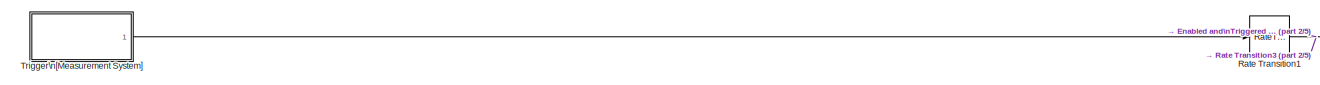
[diagram: root canvas - part 1/5, top left region]
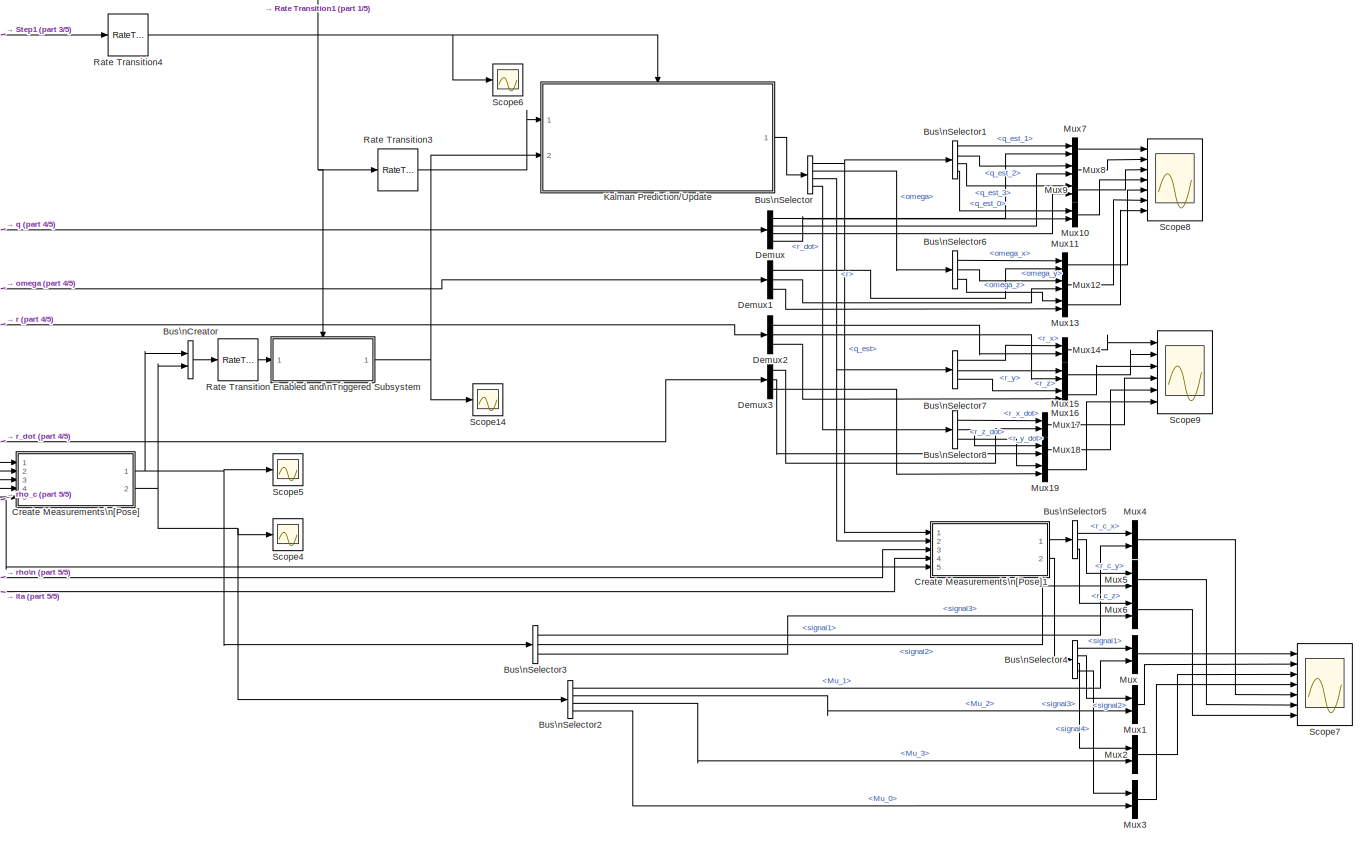
[diagram: root canvas - part 2/5, right side, full height]
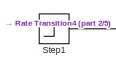
[diagram: root canvas - part 3/5, top left region]
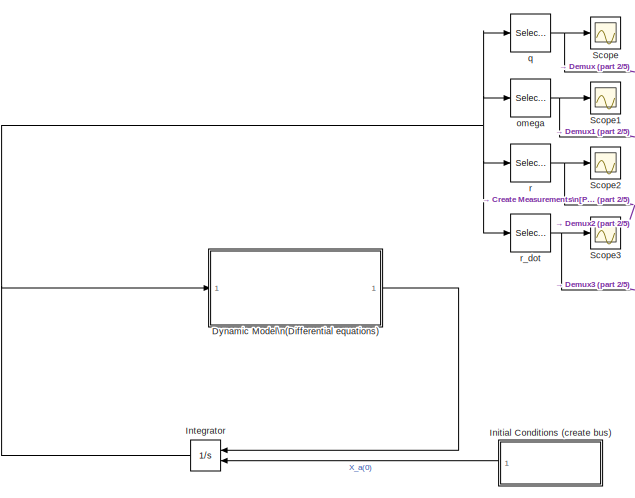
[diagram: root canvas - part 4/5, middle left region]
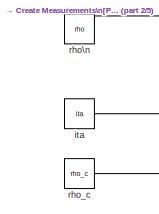
[diagram: root canvas - part 5/5, bottom left region]
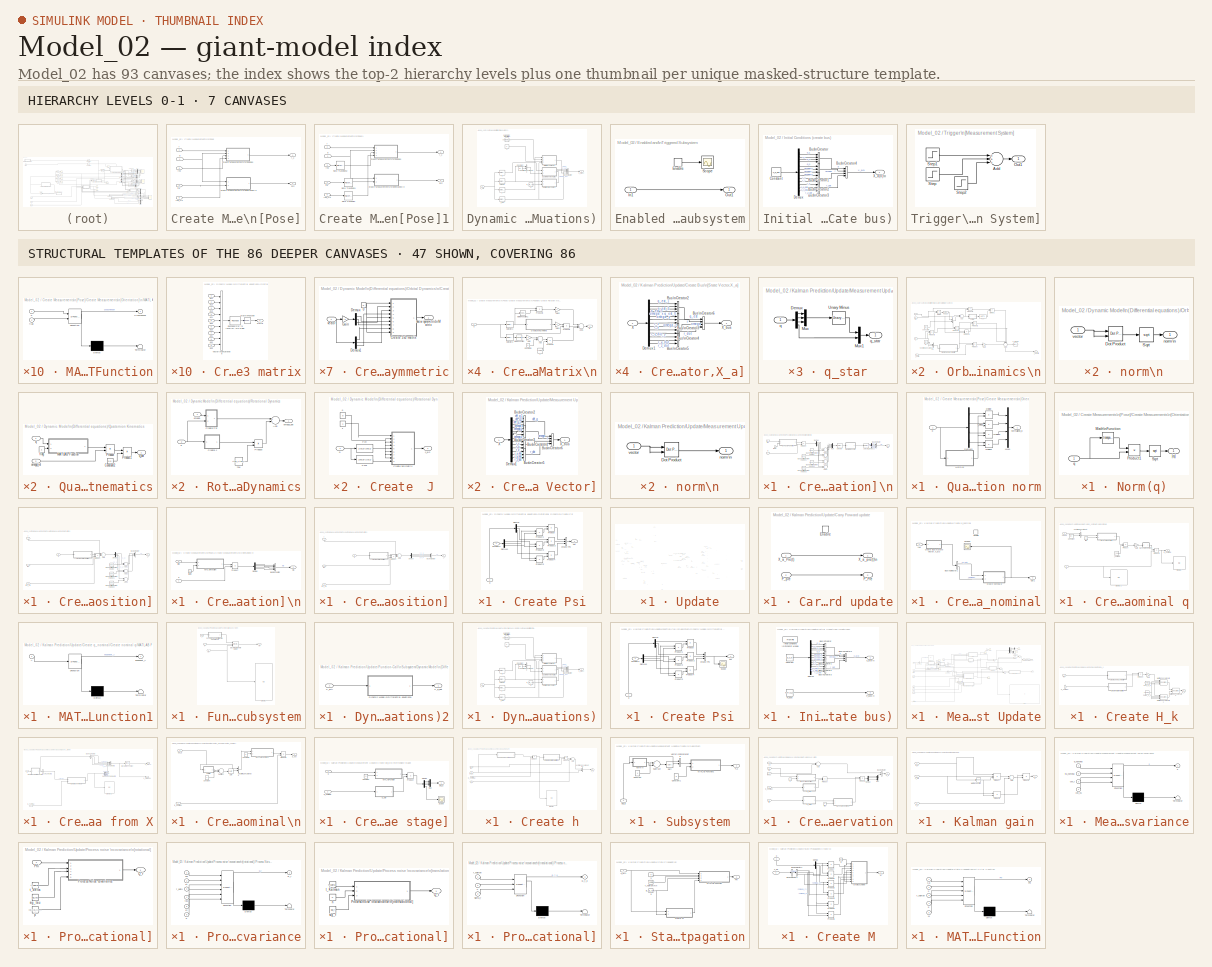
[diagram: thumbnail index - top-2 hierarchy levels (7 canvases) + 47 structural-template representatives of the remaining 86 canvases]
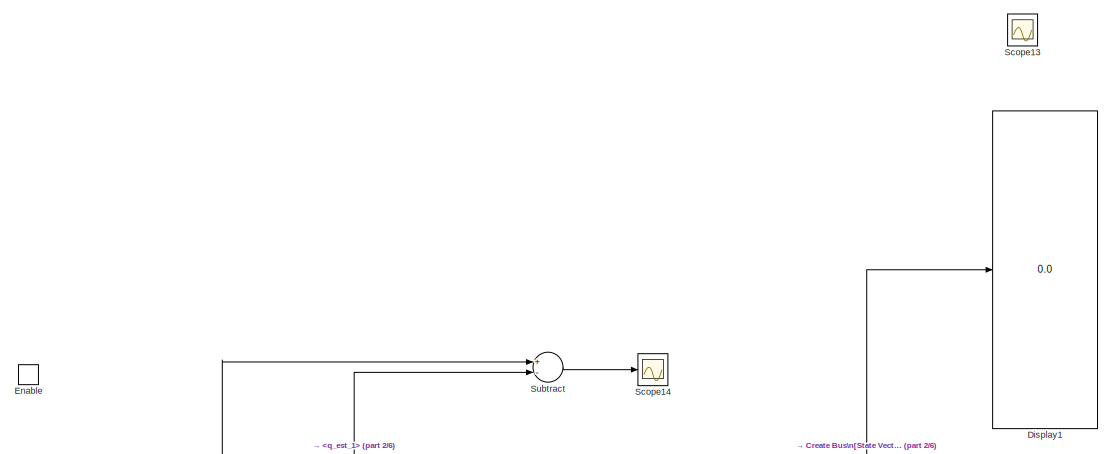
[diagram: Kalman Prediction/Update - part 1/6, top left region]
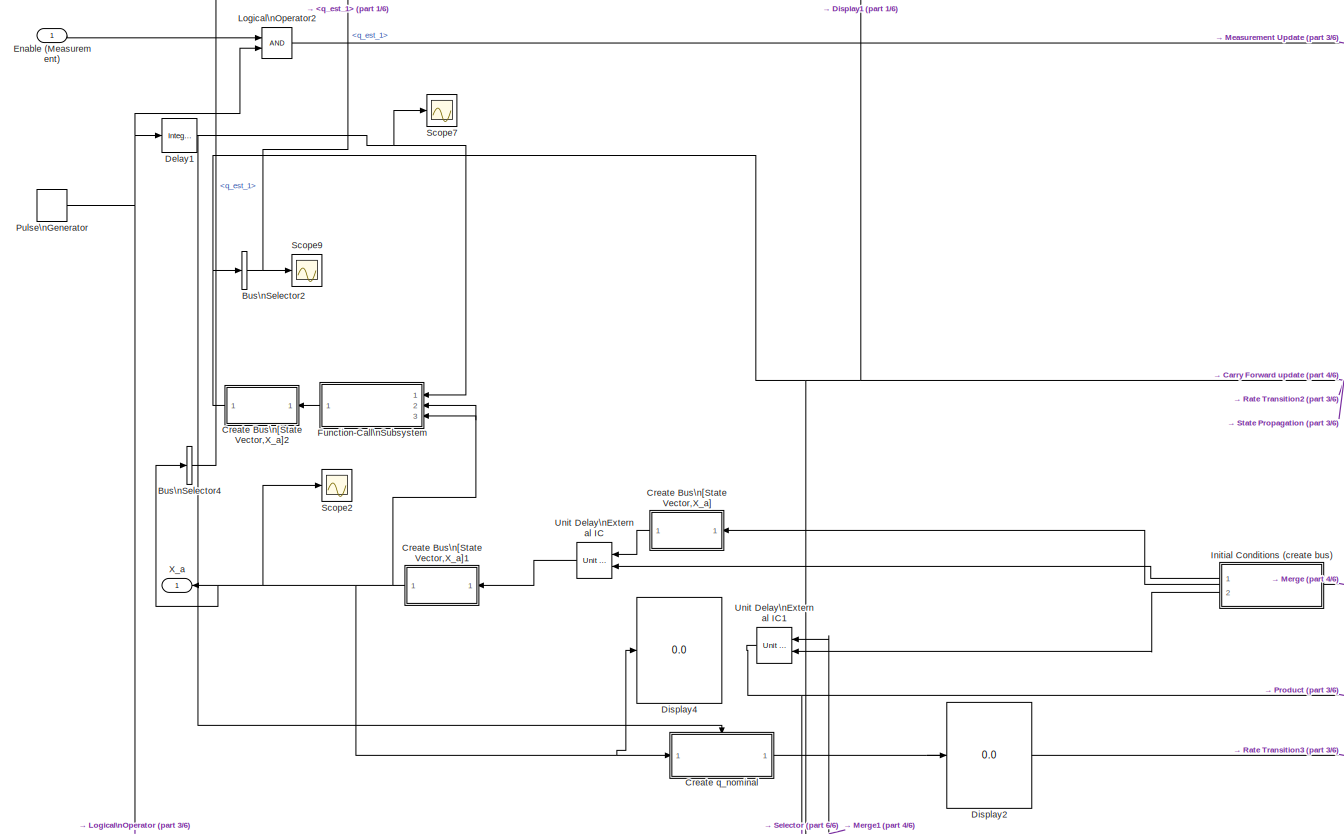
[diagram: Kalman Prediction/Update - part 2/6, middle left region]
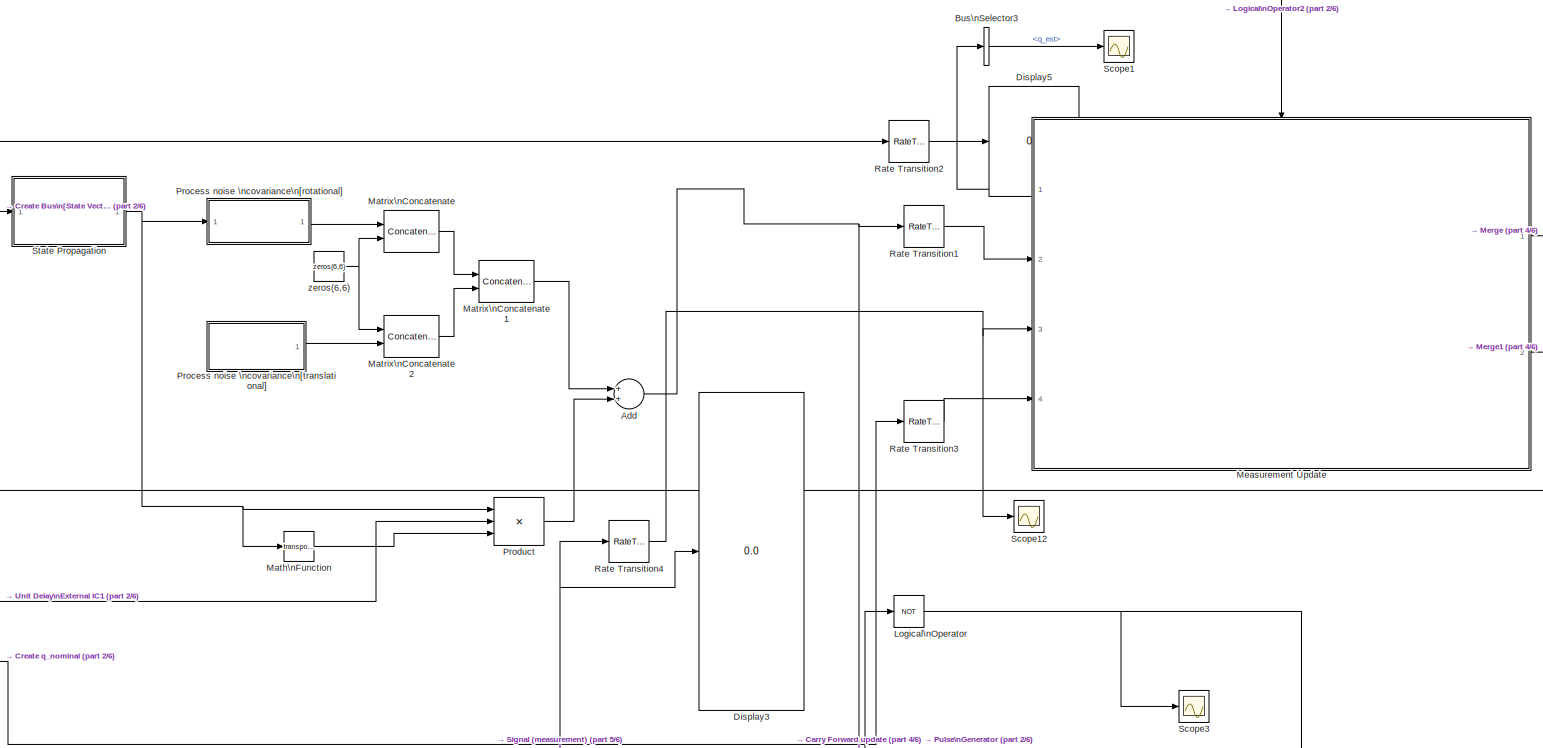
[diagram: Kalman Prediction/Update - part 3/6, central region]
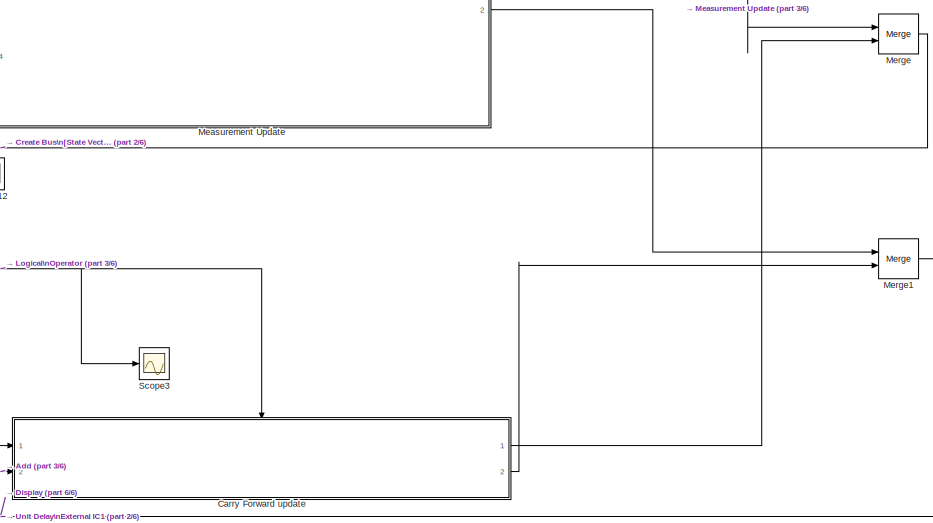
[diagram: Kalman Prediction/Update - part 4/6, bottom right region]
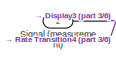
[diagram: Kalman Prediction/Update - part 5/6, bottom left region]
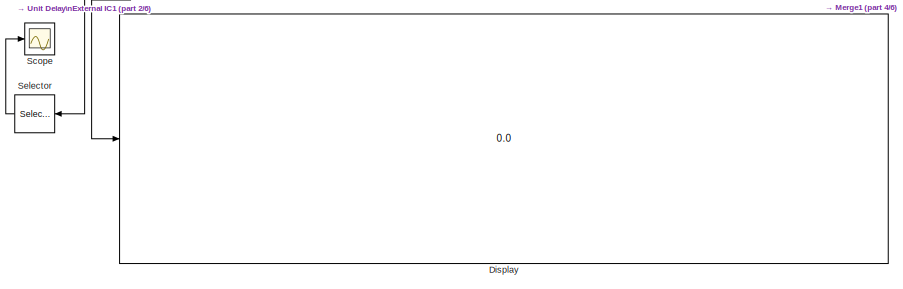
[diagram: Kalman Prediction/Update - part 6/6, bottom center region]
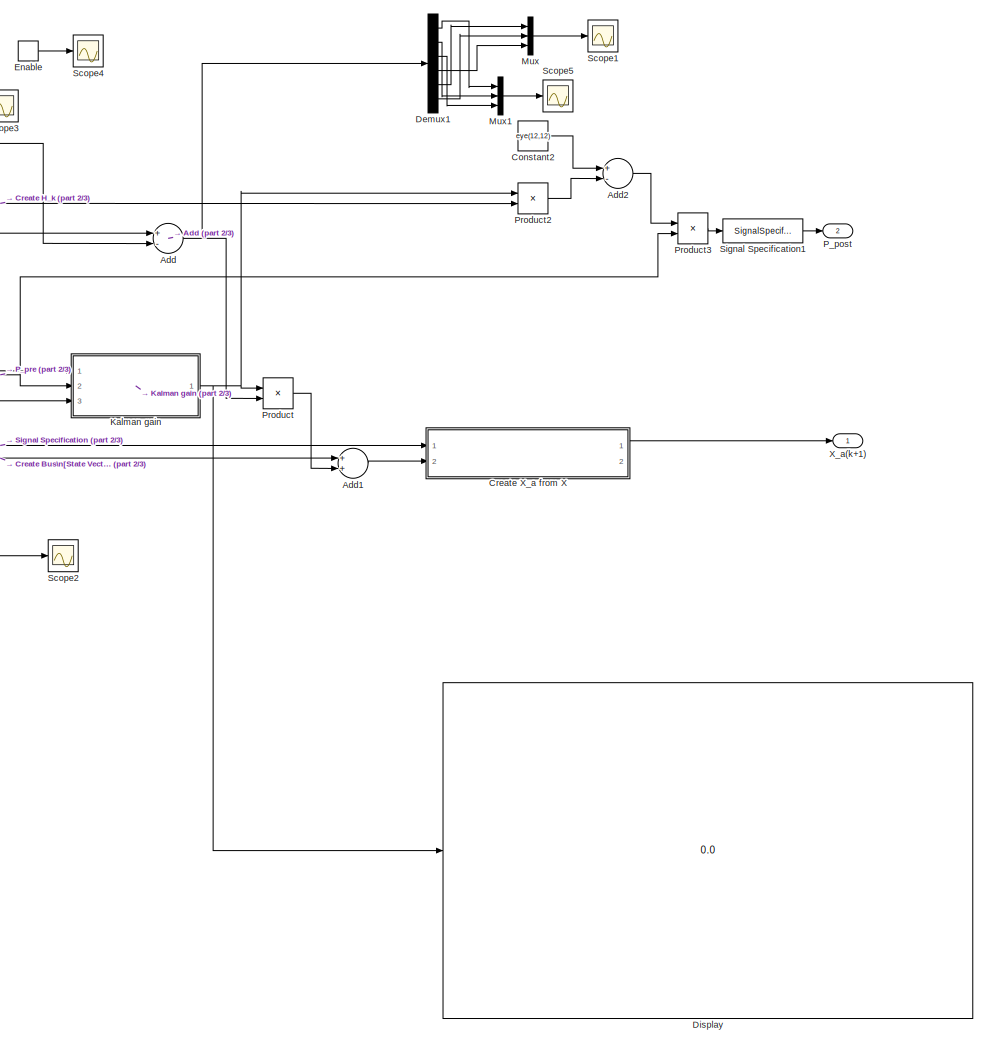
[diagram: Kalman Prediction/Update/Measurement Update - part 1/3, right side, full height]
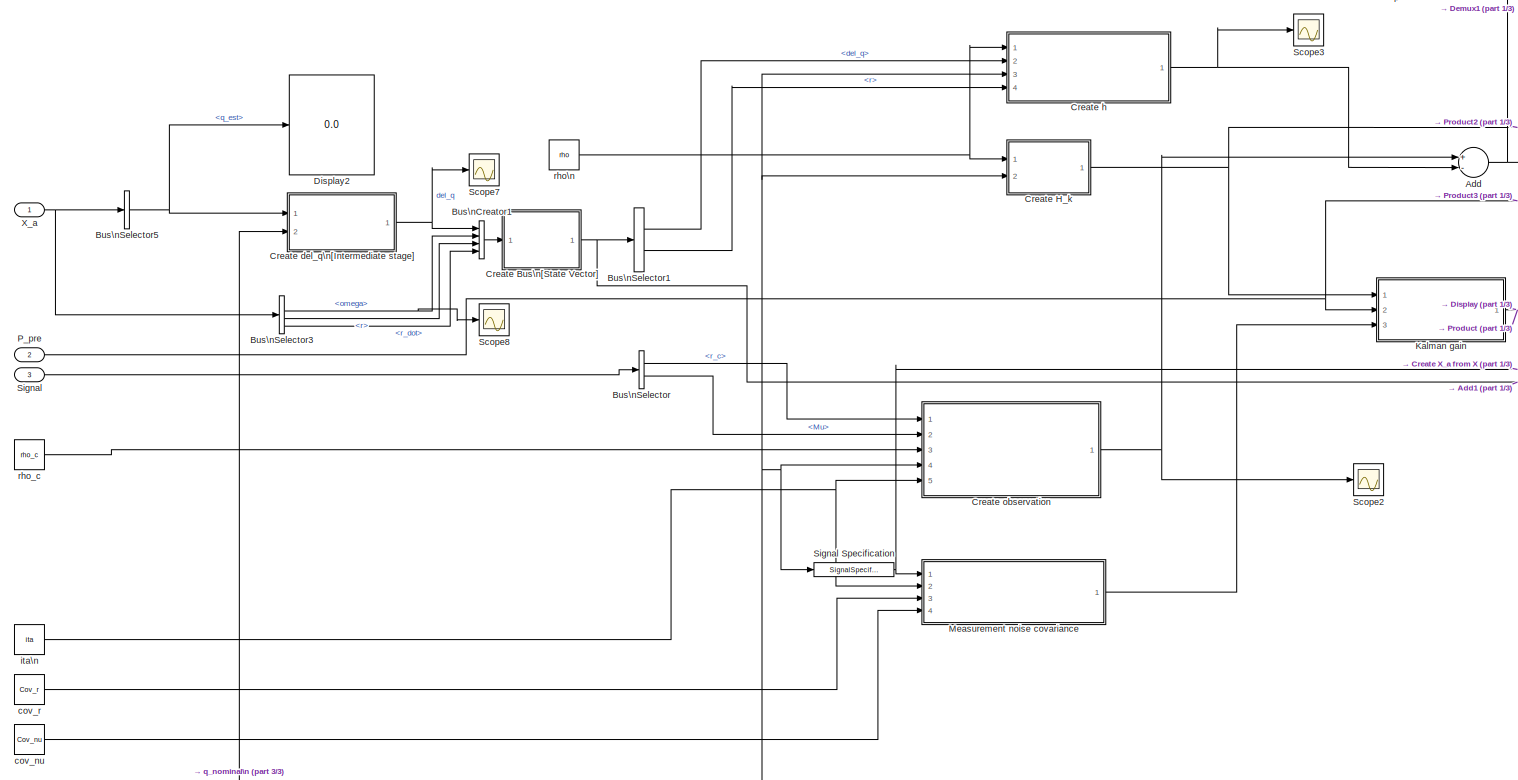
[diagram: Kalman Prediction/Update/Measurement Update - part 2/3, central region]
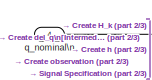
[diagram: Kalman Prediction/Update/Measurement Update - part 3/3, bottom left region]
MODEL Model_02
KIND model
WORKSPACE source: external: M-Code  (data not in archive)
BLOCK [BusCreator] Bus\nCreator
  DisplayOption = bar
  Inputs = 2
  Ports = [2, 1]
BLOCK [BusSelector] Bus\nSelector
  OutputSignals = q_est,omega,r,r_dot
  Ports = [1, 4]
BLOCK [BusSelector] Bus\nSelector1
  OutputSignals = q_est_1,q_est_2,q_est_3,q_est_0
  Ports = [1, 4]
BLOCK [BusSelector] Bus\nSelector2
  OutputSignals = Mu_1,Mu_2,Mu_3,Mu_0
  Ports = [1, 4]
BLOCK [BusSelector] Bus\nSelector3
  OutputSignals = signal1,signal2,signal3
  Ports = [1, 3]
BLOCK [BusSelector] Bus\nSelector4
  OutputSignals = signal1,signal2,signal3,signal4
  Ports = [1, 4]
BLOCK [BusSelector] Bus\nSelector5
  OutputSignals = r_c_x,r_c_y,r_c_z
  Ports = [1, 3]
BLOCK [BusSelector] Bus\nSelector6
  OutputSignals = omega_x,omega_y,omega_z
  Ports = [1, 3]
BLOCK [BusSelector] Bus\nSelector7
  OutputSignals = r_x,r_y,r_z
  Ports = [1, 3]
BLOCK [BusSelector] Bus\nSelector8
  OutputSignals = r_x_dot,r_y_dot,r_z_dot
  Ports = [1, 3]
BLOCK [SubSystem] Create Measurements\n[Pose]
  FunctionWithSeparateData = off
  MinAlgLoopOccurrences = off
  Ports = [5, 2]
  RTWSystemCode = Auto
BLOCK [SubSystem] Create Measurements\n[Pose]/Create Measurements\n[Orientation]\n
  FunctionWithSeparateData = off
  MinAlgLoopOccurrences = off
  Ports = [2, 1]
  RTWSystemCode = Auto
BLOCK [Sum] Create Measurements\n[Pose]/Create Measurements\n[Orientation]\n/Add1
  CollapseMode = All dimensions
  InputSameDT = off
  OutDataTypeMode = Inherit via internal rule
  Ports = [2, 1]
  SaturateOnIntegerOverflow = off
BLOCK [Sum] Create Measurements\n[Pose]/Create Measurements\n[Orientation]\n/Add2
  CollapseMode = All dimensions
  InputSameDT = off
  OutDataTypeMode = Inherit via internal rule
  Ports = [2, 1]
  SaturateOnIntegerOverflow = off
BLOCK [Sum] Create Measurements\n[Pose]/Create Measurements\n[Orientation]\n/Add3
  CollapseMode = All dimensions
  InputSameDT = off
  OutDataTypeMode = Inherit via internal rule
  Ports = [2, 1]
  SaturateOnIntegerOverflow = off
BLOCK [Sum] Create Measurements\n[Pose]/Create Measurements\n[Orientation]\n/Add4
  CollapseMode = All dimensions
  InputSameDT = off
  OutDataTypeMode = Inherit via internal rule
  Ports = [2, 1]
  SaturateOnIntegerOverflow = off
BLOCK [Reference] Create Measurements\n[Pose]/Create Measurements\n[Orientation]\n/Band-Limited\nWhite Noise  REF=simulink/Sources/Band-Limited\nWhite Noise
  Cov = [0.000001]
  FunctionWithSeparateData = off
  Ports = [0, 1]
  RTWMemSecDataConstants = Inherit from model
  RTWMemSecDataInternal = Inherit from model
  RTWMemSecDataParameters = Inherit from model
  RTWMemSecFuncExecute = Inherit from model
  RTWMemSecFuncInitTerm = Inherit from model
  ShowPortLabels = FromPortIcon
  SourceBlock = simulink/Sources/Band-Limited\nWhite Noise
  SourceType = Band-Limited White Noise.
  SystemSampleTime = -1
  Ts = t_Kalman
  VectorParams1D = on
  seed = [13441]
BLOCK [Reference] Create Measurements\n[Pose]/Create Measurements\n[Orientation]\n/Band-Limited\nWhite Noise1  REF=simulink/Sources/Band-Limited\nWhite Noise
  Cov = [0.000001]
  FunctionWithSeparateData = off
  Ports = [0, 1]
  RTWMemSecDataConstants = Inherit from model
  RTWMemSecDataInternal = Inherit from model
  RTWMemSecDataParameters = Inherit from model
  RTWMemSecFuncExecute = Inherit from model
  RTWMemSecFuncInitTerm = Inherit from model
  ShowPortLabels = FromPortIcon
  SourceBlock = simulink/Sources/Band-Limited\nWhite Noise
  SourceType = Band-Limited White Noise.
  SystemSampleTime = -1
  Ts = t_Kalman
  VectorParams1D = on
  seed = [43321]
BLOCK [Reference] Create Measurements\n[Pose]/Create Measurements\n[Orientation]\n/Band-Limited\nWhite Noise2  REF=simulink/Sources/Band-Limited\nWhite Noise
  Cov = [0.000001]
  FunctionWithSeparateData = off
  Ports = [0, 1]
  RTWMemSecDataConstants = Inherit from model
  RTWMemSecDataInternal = Inherit from model
  RTWMemSecDataParameters = Inherit from model
  RTWMemSecFuncExecute = Inherit from model
  RTWMemSecFuncInitTerm = Inherit from model
  ShowPortLabels = FromPortIcon
  SourceBlock = simulink/Sources/Band-Limited\nWhite Noise
  SourceType = Band-Limited White Noise.
  SystemSampleTime = -1
  Ts = t_Kalman
  VectorParams1D = on
  seed = [24321]
BLOCK [Reference] Create Measurements\n[Pose]/Create Measurements\n[Orientation]\n/Band-Limited\nWhite Noise3  REF=simulink/Sources/Band-Limited\nWhite Noise
  Cov = [0.000001]
  FunctionWithSeparateData = off
  Ports = [0, 1]
  RTWMemSecDataConstants = Inherit from model
  RTWMemSecDataInternal = Inherit from model
  RTWMemSecDataParameters = Inherit from model
  RTWMemSecFuncExecute = Inherit from model
  RTWMemSecFuncInitTerm = Inherit from model
  ShowPortLabels = FromPortIcon
  SourceBlock = simulink/Sources/Band-Limited\nWhite Noise
  SourceType = Band-Limited White Noise.
  SystemSampleTime = -1
  Ts = t_Kalman
  VectorParams1D = on
  seed = [12345]
BLOCK [BusCreator] Create Measurements\n[Pose]/Create Measurements\n[Orientation]\n/Bus\nCreator
  DisplayOption = bar
  Ports = [4, 1]
BLOCK [Demux] Create Measurements\n[Pose]/Create Measurements\n[Orientation]\n/Demux
  DisplayOption = bar
  Ports = [1, 4]
BLOCK [Demux] Create Measurements\n[Pose]/Create Measurements\n[Orientation]\n/Demux1
  DisplayOption = bar
  Ports = [1, 4]
BLOCK [SubSystem] Create Measurements\n[Pose]/Create Measurements\n[Orientation]\n/MATLAB Function
  FunctionWithSeparateData = off
  MaskDescription = Embedded MATLAB block
  MaskDisplay = disp('fn_CrossTensor');
  MaskIconFrame = on
  MaskIconOpaque = off
  MaskIconRotate = none
  MaskIconUnits = normalized
  MaskSelfModifiable = on
  MaskType = Stateflow
  MinAlgLoopOccurrences = off
  PermitHierarchicalResolution = ExplicitOnly
  Ports = [2, 1]
  RTWSystemCode = Auto
  TreatAsAtomicUnit = on
BLOCK [Demux] Create Measurements\n[Pose]/Create Measurements\n[Orientation]\n/MATLAB Function/ Demux 
  Outputs = 1
  Ports = [1, 1]
BLOCK [S-Function] Create Measurements\n[Pose]/Create Measurements\n[Orientation]\n/MATLAB Function/ SFunction 
  EnableBusSupport = on
  FunctionName = sf_sfun
  PortCounts = [2 2]
  Ports = [2, 2]
  Tag = Stateflow S-Function Model_02 3
BLOCK [Terminator] Create Measurements\n[Pose]/Create Measurements\n[Orientation]\n/MATLAB Function/ Terminator 
BLOCK [Outport] Create Measurements\n[Pose]/Create Measurements\n[Orientation]\n/MATLAB Function/CrossTensor
  IconDisplay = Port number
BLOCK [Inport] Create Measurements\n[Pose]/Create Measurements\n[Orientation]\n/MATLAB Function/flag
  IconDisplay = Port number
  Port = 2
BLOCK [Inport] Create Measurements\n[Pose]/Create Measurements\n[Orientation]\n/MATLAB Function/q
  IconDisplay = Port number
BLOCK [Outport] Create Measurements\n[Pose]/Create Measurements\n[Orientation]\n/Mu
  IconDisplay = Port number
BLOCK [Mux] Create Measurements\n[Pose]/Create Measurements\n[Orientation]\n/Mux
  DisplayOption = bar
  Ports = [4, 1]
BLOCK [Product] Create Measurements\n[Pose]/Create Measurements\n[Orientation]\n/Product
  CollapseMode = All dimensions
  InputSameDT = off
  Multiplication = Matrix(*)
  OutDataTypeMode = Inherit via internal rule
  Ports = [2, 1]
  RndMeth = Floor
  SaturateOnIntegerOverflow = off
BLOCK [SubSystem] Create Measurements\n[Pose]/Create Measurements\n[Orientation]\n/Quaternion norm
  FunctionWithSeparateData = off
  MinAlgLoopOccurrences = off
  Ports = [1, 1]
  RTWSystemCode = Auto
BLOCK [Demux] Create Measurements\n[Pose]/Create Measurements\n[Orientation]\n/Quaternion norm/Demux3
  DisplayOption = bar
  Ports = [1, 4]
BLOCK [Product] Create Measurements\n[Pose]/Create Measurements\n[Orientation]\n/Quaternion norm/Divide
  CollapseMode = All dimensions
  InputSameDT = off
  Inputs = */
  OutDataTypeMode = Inherit via internal rule
  Ports = [2, 1]
  RndMeth = Floor
  SaturateOnIntegerOverflow = off
BLOCK [Product] Create Measurements\n[Pose]/Create Measurements\n[Orientation]\n/Quaternion norm/Divide1
  CollapseMode = All dimensions
  InputSameDT = off
  Inputs = */
  OutDataTypeMode = Inherit via internal rule
  Ports = [2, 1]
  RndMeth = Floor
  SaturateOnIntegerOverflow = off
BLOCK [Product] Create Measurements\n[Pose]/Create Measurements\n[Orientation]\n/Quaternion norm/Divide2
  CollapseMode = All dimensions
  InputSameDT = off
  Inputs = */
  OutDataTypeMode = Inherit via internal rule
  Ports = [2, 1]
  RndMeth = Floor
  SaturateOnIntegerOverflow = off
BLOCK [Product] Create Measurements\n[Pose]/Create Measurements\n[Orientation]\n/Quaternion norm/Divide3
  CollapseMode = All dimensions
  InputSameDT = off
  Inputs = */
  OutDataTypeMode = Inherit via internal rule
  Ports = [2, 1]
  RndMeth = Floor
  SaturateOnIntegerOverflow = off
BLOCK [Mux] Create Measurements\n[Pose]/Create Measurements\n[Orientation]\n/Quaternion norm/Mux1
  DisplayOption = bar
  Ports = [4, 1]
BLOCK [SubSystem] Create Measurements\n[Pose]/Create Measurements\n[Orientation]\n/Quaternion norm/Norm(q)
  FunctionWithSeparateData = off
  MinAlgLoopOccurrences = off
  Ports = [1, 1]
  RTWSystemCode = Auto
BLOCK [Math] Create Measurements\n[Pose]/Create Measurements\n[Orientation]\n/Quaternion norm/Norm(q)/Math\nFunction
  Operator = transpose
  Ports = [1, 1]
BLOCK [Product] Create Measurements\n[Pose]/Create Measurements\n[Orientation]\n/Quaternion norm/Norm(q)/Product1
  CollapseMode = All dimensions
  InputSameDT = off
  Multiplication = Matrix(*)
  OutDataTypeMode = Inherit via internal rule
  Ports = [2, 1]
  RndMeth = Floor
  SaturateOnIntegerOverflow = off
BLOCK [Math] Create Measurements\n[Pose]/Create Measurements\n[Orientation]\n/Quaternion norm/Norm(q)/Sqrt
  Operator = sqrt
  Ports = [1, 1]
BLOCK [Inport] Create Measurements\n[Pose]/Create Measurements\n[Orientation]\n/Quaternion norm/Norm(q)/q
  IconDisplay = Port number
BLOCK [Outport] Create Measurements\n[Pose]/Create Measurements\n[Orientation]\n/Quaternion norm/Norm(q)/|q|
  IconDisplay = Port number
BLOCK [Outport] Create Measurements\n[Pose]/Create Measurements\n[Orientation]\n/Quaternion norm/normalized_q
  IconDisplay = Port number
BLOCK [Inport] Create Measurements\n[Pose]/Create Measurements\n[Orientation]\n/Quaternion norm/q
  IconDisplay = Port number
BLOCK [Selector] Create Measurements\n[Pose]/Create Measurements\n[Orientation]\n/Selector
  IndexOptions = Index vector (dialog)
  Indices = [4 1 2 3]
  InputPortWidth = 4
  OutputSizes = 1
  Ports = [1, 1]
BLOCK [Selector] Create Measurements\n[Pose]/Create Measurements\n[Orientation]\n/Selector1
  IndexOptions = Index vector (dialog)
  Indices = [2 3 4 1]
  InputPortWidth = 4
  OutputSizes = 1
  Ports = [1, 1]
BLOCK [Constant] Create Measurements\n[Pose]/Create Measurements\n[Orientation]\n/flag\n
  Value = 0
BLOCK [Inport] Create Measurements\n[Pose]/Create Measurements\n[Orientation]\n/ita\n
  IconDisplay = Port number
  Port = 2
BLOCK [Inport] Create Measurements\n[Pose]/Create Measurements\n[Orientation]\n/q
  IconDisplay = Port number
BLOCK [SubSystem] Create Measurements\n[Pose]/Create Measurements\n[Position]
  FunctionWithSeparateData = off
  MinAlgLoopOccurrences = off
  Ports = [4, 1]
  RTWSystemCode = Auto
BLOCK [Sum] Create Measurements\n[Pose]/Create Measurements\n[Position]/Add
  CollapseMode = All dimensions
  InputSameDT = off
  Inputs = +++
  OutDataTypeMode = Inherit via internal rule
  Ports = [3, 1]
  SaturateOnIntegerOverflow = off
BLOCK [Sum] Create Measurements\n[Pose]/Create Measurements\n[Position]/Add1
  CollapseMode = All dimensions
  InputSameDT = off
  OutDataTypeMode = Inherit via internal rule
  Ports = [2, 1]
  SaturateOnIntegerOverflow = off
BLOCK [Sum] Create Measurements\n[Pose]/Create Measurements\n[Position]/Add2
  CollapseMode = All dimensions
  InputSameDT = off
  OutDataTypeMode = Inherit via internal rule
  Ports = [2, 1]
  SaturateOnIntegerOverflow = off
BLOCK [Sum] Create Measurements\n[Pose]/Create Measurements\n[Position]/Add3
  CollapseMode = All dimensions
  InputSameDT = off
  OutDataTypeMode = Inherit via internal rule
  Ports = [2, 1]
  SaturateOnIntegerOverflow = off
BLOCK [Reference] Create Measurements\n[Pose]/Create Measurements\n[Position]/Band-Limited\nWhite Noise  REF=simulink/Sources/Band-Limited\nWhite Noise
  Cov = [0.0001]
  FunctionWithSeparateData = off
  Ports = [0, 1]
  RTWMemSecDataConstants = Inherit from model
  RTWMemSecDataInternal = Inherit from model
  RTWMemSecDataParameters = Inherit from model
  RTWMemSecFuncExecute = Inherit from model
  RTWMemSecFuncInitTerm = Inherit from model
  ShowPortLabels = FromPortIcon
  SourceBlock = simulink/Sources/Band-Limited\nWhite Noise
  SourceType = Band-Limited White Noise.
  SystemSampleTime = -1
  Ts = t_Kalman
  VectorParams1D = on
  seed = [23341]
BLOCK [Reference] Create Measurements\n[Pose]/Create Measurements\n[Position]/Band-Limited\nWhite Noise1  REF=simulink/Sources/Band-Limited\nWhite Noise
  Cov = [0.0001]
  FunctionWithSeparateData = off
  Ports = [0, 1]
  RTWMemSecDataConstants = Inherit from model
  RTWMemSecDataInternal = Inherit from model
  RTWMemSecDataParameters = Inherit from model
  RTWMemSecFuncExecute = Inherit from model
  RTWMemSecFuncInitTerm = Inherit from model
  ShowPortLabels = FromPortIcon
  SourceBlock = simulink/Sources/Band-Limited\nWhite Noise
  SourceType = Band-Limited White Noise.
  SystemSampleTime = -1
  Ts = t_Kalman
  VectorParams1D = on
  seed = [43321]
BLOCK [Reference] Create Measurements\n[Pose]/Create Measurements\n[Position]/Band-Limited\nWhite Noise2  REF=simulink/Sources/Band-Limited\nWhite Noise
  Cov = [0.0001]
  FunctionWithSeparateData = off
  Ports = [0, 1]
  RTWMemSecDataConstants = Inherit from model
  RTWMemSecDataInternal = Inherit from model
  RTWMemSecDataParameters = Inherit from model
  RTWMemSecFuncExecute = Inherit from model
  RTWMemSecFuncInitTerm = Inherit from model
  ShowPortLabels = FromPortIcon
  SourceBlock = simulink/Sources/Band-Limited\nWhite Noise
  SourceType = Band-Limited White Noise.
  SystemSampleTime = -1
  Ts = t_Kalman
  VectorParams1D = on
  seed = [12342]
BLOCK [BusCreator] Create Measurements\n[Pose]/Create Measurements\n[Position]/Bus\nCreator
  DisplayOption = bar
  Inputs = 3
  Ports = [3, 1]
BLOCK [SubSystem] Create Measurements\n[Pose]/Create Measurements\n[Position]/Create Rotation Matrix\n
  FunctionWithSeparateData = off
  MinAlgLoopOccurrences = off
  Ports = [1, 1]
  RTWSystemCode = Auto
BLOCK [Sum] Create Measurements\n[Pose]/Create Measurements\n[Position]/Create Rotation Matrix\n/Add
  CollapseMode = All dimensions
  InputSameDT = off
  OutDataTypeMode = Inherit via internal rule
  Ports = [2, 1]
  SaturateOnIntegerOverflow = off
BLOCK [Sum] Create Measurements\n[Pose]/Create Measurements\n[Position]/Create Rotation Matrix\n/Add5
  CollapseMode = All dimensions
  InputSameDT = off
  Inputs = +++
  OutDataTypeMode = Inherit via internal rule
  Ports = [3, 1]
  SaturateOnIntegerOverflow = off
BLOCK [Constant] Create Measurements\n[Pose]/Create Measurements\n[Position]/Create Rotation Matrix\n/Constant1
  Value = -1
BLOCK [SubSystem] Create Measurements\n[Pose]/Create Measurements\n[Position]/Create Rotation Matrix\n/Create Skew Symmetric
  FunctionWithSeparateData = off
  MinAlgLoopOccurrences = off
  Ports = [1, 1]
  RTWSystemCode = Auto
BLOCK [Constant] Create Measurements\n[Pose]/Create Measurements\n[Position]/Create Rotation Matrix\n/Create Skew Symmetric/0
  Value = 0
BLOCK [SubSystem] Create Measurements\n[Pose]/Create Measurements\n[Position]/Create Rotation Matrix\n/Create Skew Symmetric/Create 3x3 matrix
  FunctionWithSeparateData = off
  MinAlgLoopOccurrences = off
  Ports = [9, 1]
  RTWSystemCode = Auto
BLOCK [Math] Create Measurements\n[Pose]/Create Measurements\n[Position]/Create Rotation Matrix\n/Create Skew Symmetric/Create 3x3 matrix/Math\nFunction
  Operator = transpose
  Ports = [1, 1]
BLOCK [Outport] Create Measurements\n[Pose]/Create Measurements\n[Position]/Create Rotation Matrix\n/Create Skew Symmetric/Create 3x3 matrix/Matrix
  IconDisplay = Port number
BLOCK [Reshape] Create Measurements\n[Pose]/Create Measurements\n[Position]/Create Rotation Matrix\n/Create Skew Symmetric/Create 3x3 matrix/Reshape\n(9) to [3x3]\ncolumn-major
  OutputDimensionality = Customize
  OutputDimensions = [3,3]
BLOCK [Concatenate] Create Measurements\n[Pose]/Create Measurements\n[Position]/Create Rotation Matrix\n/Create Skew Symmetric/Create 3x3 matrix/Vector\nConcatenate
  Mode = Vector
  NumInputs = 9
  Ports = [9, 1]
BLOCK [Inport] Create Measurements\n[Pose]/Create Measurements\n[Position]/Create Rotation Matrix\n/Create Skew Symmetric/Create 3x3 matrix/a11
  IconDisplay = Port number
BLOCK [Inport] Create Measurements\n[Pose]/Create Measurements\n[Position]/Create Rotation Matrix\n/Create Skew Symmetric/Create 3x3 matrix/a12
  IconDisplay = Port number
  Port = 2
BLOCK [Inport] Create Measurements\n[Pose]/Create Measurements\n[Position]/Create Rotation Matrix\n/Create Skew Symmetric/Create 3x3 matrix/a13
  IconDisplay = Port number
  Port = 3
BLOCK [Inport] Create Measurements\n[Pose]/Create Measurements\n[Position]/Create Rotation Matrix\n/Create Skew Symmetric/Create 3x3 matrix/a21
  IconDisplay = Port number
  Port = 4
BLOCK [Inport] Create Measurements\n[Pose]/Create Measurements\n[Position]/Create Rotation Matrix\n/Create Skew Symmetric/Create 3x3 matrix/a22
  IconDisplay = Port number
  Port = 5
BLOCK [Inport] Create Measurements\n[Pose]/Create Measurements\n[Position]/Create Rotation Matrix\n/Create Skew Symmetric/Create 3x3 matrix/a23
  IconDisplay = Port number
  Port = 6
BLOCK [Inport] Create Measurements\n[Pose]/Create Measurements\n[Position]/Create Rotation Matrix\n/Create Skew Symmetric/Create 3x3 matrix/a31
  IconDisplay = Port number
  Port = 7
BLOCK [Inport] Create Measurements\n[Pose]/Create Measurements\n[Position]/Create Rotation Matrix\n/Create Skew Symmetric/Create 3x3 matrix/a32
  IconDisplay = Port number
  Port = 8
BLOCK [Inport] Create Measurements\n[Pose]/Create Measurements\n[Position]/Create Rotation Matrix\n/Create Skew Symmetric/Create 3x3 matrix/a33
  IconDisplay = Port number
  Port = 9
BLOCK [Demux] Create Measurements\n[Pose]/Create Measurements\n[Position]/Create Rotation Matrix\n/Create Skew Symmetric/Demux
  DisplayOption = bar
  Outputs = 3
  Ports = [1, 3]
BLOCK [Demux] Create Measurements\n[Pose]/Create Measurements\n[Position]/Create Rotation Matrix\n/Create Skew Symmetric/Demux1
  DisplayOption = bar
  Outputs = 3
  Ports = [1, 3]
BLOCK [Gain] Create Measurements\n[Pose]/Create Measurements\n[Position]/Create Rotation Matrix\n/Create Skew Symmetric/Gain
  Gain = -1
  OutDataTypeMode = Inherit via internal rule
  ParameterDataTypeMode = Inherit via internal rule
  SaturateOnIntegerOverflow = off
BLOCK [Outport] Create Measurements\n[Pose]/Create Measurements\n[Position]/Create Rotation Matrix\n/Create Skew Symmetric/skew symmetric\nMatrix
  IconDisplay = Port number
BLOCK [Inport] Create Measurements\n[Pose]/Create Measurements\n[Position]/Create Rotation Matrix\n/Create Skew Symmetric/vector
  IconDisplay = Port number
BLOCK [Gain] Create Measurements\n[Pose]/Create Measurements\n[Position]/Create Rotation Matrix\n/Gain
  Gain = 2
  OutDataTypeMode = Inherit via internal rule
  ParameterDataTypeMode = Inherit via internal rule
  SaturateOnIntegerOverflow = off
BLOCK [Gain] Create Measurements\n[Pose]/Create Measurements\n[Position]/Create Rotation Matrix\n/Gain1
  Gain = 2
  OutDataTypeMode = Inherit via internal rule
  ParameterDataTypeMode = Inherit via internal rule
  SaturateOnIntegerOverflow = off
BLOCK [Gain] Create Measurements\n[Pose]/Create Measurements\n[Position]/Create Rotation Matrix\n/Gain2
  Gain = 2
  OutDataTypeMode = Inherit via internal rule
  ParameterDataTypeMode = Inherit via internal rule
  SaturateOnIntegerOverflow = off
BLOCK [Constant] Create Measurements\n[Pose]/Create Measurements\n[Position]/Create Rotation Matrix\n/I
  Value = eye(3,3)
BLOCK [Math] Create Measurements\n[Pose]/Create Measurements\n[Position]/Create Rotation Matrix\n/Math\nFunction
  Operator = square
  Ports = [1, 1]
BLOCK [Math] Create Measurements\n[Pose]/Create Measurements\n[Position]/Create Rotation Matrix\n/Math\nFunction1
  Operator = transpose
  Ports = [1, 1]
BLOCK [Product] Create Measurements\n[Pose]/Create Measurements\n[Position]/Create Rotation Matrix\n/Product1
  CollapseMode = All dimensions
  InputSameDT = off
  OutDataTypeMode = Inherit via internal rule
  Ports = [2, 1]
  RndMeth = Floor
  SaturateOnIntegerOverflow = off
BLOCK [Product] Create Measurements\n[Pose]/Create Measurements\n[Position]/Create Rotation Matrix\n/Product2
  CollapseMode = All dimensions
  InputSameDT = off
  OutDataTypeMode = Inherit via internal rule
  Ports = [2, 1]
  RndMeth = Floor
  SaturateOnIntegerOverflow = off
BLOCK [Product] Create Measurements\n[Pose]/Create Measurements\n[Position]/Create Rotation Matrix\n/Product3
  CollapseMode = All dimensions
  InputSameDT = off
  Multiplication = Matrix(*)
  OutDataTypeMode = Inherit via internal rule
  Ports = [2, 1]
  RndMeth = Floor
  SaturateOnIntegerOverflow = off
BLOCK [Outport] Create Measurements\n[Pose]/Create Measurements\n[Position]/Create Rotation Matrix\n/R
  IconDisplay = Port number
BLOCK [Selector] Create Measurements\n[Pose]/Create Measurements\n[Position]/Create Rotation Matrix\n/Selector2
  IndexOptions = Index vector (dialog),Index vector (dialog)
  Indices = [1 2 3],1
  InputPortWidth = 3
  NumberOfDimensions = 2
  OutputSizes = 1,1
  Ports = [1, 1]
BLOCK [Selector] Create Measurements\n[Pose]/Create Measurements\n[Position]/Create Rotation Matrix\n/Selector3
  IndexOptions = Index vector (dialog),Index vector (dialog)
  Indices = [4],1
  InputPortWidth = 3
  NumberOfDimensions = 2
  OutputSizes = 1,1
  Ports = [1, 1]
BLOCK [Inport] Create Measurements\n[Pose]/Create Measurements\n[Position]/Create Rotation Matrix\n/q
  IconDisplay = Port number
BLOCK [Demux] Create Measurements\n[Pose]/Create Measurements\n[Position]/Demux
  DisplayOption = bar
  Outputs = 3
  Ports = [1, 3]
BLOCK [Product] Create Measurements\n[Pose]/Create Measurements\n[Position]/Product
  CollapseMode = All dimensions
  InputSameDT = off
  Multiplication = Matrix(*)
  OutDataTypeMode = Inherit via internal rule
  Ports = [2, 1]
  RndMeth = Floor
  SaturateOnIntegerOverflow = off
BLOCK [Inport] Create Measurements\n[Pose]/Create Measurements\n[Position]/q
  IconDisplay = Port number
  Port = 2
BLOCK [Inport] Create Measurements\n[Pose]/Create Measurements\n[Position]/r
  IconDisplay = Port number
BLOCK [Outport] Create Measurements\n[Pose]/Create Measurements\n[Position]/r_c
  IconDisplay = Port number
BLOCK [Inport] Create Measurements\n[Pose]/Create Measurements\n[Position]/rho
  IconDisplay = Port number
  Port = 3
BLOCK [Inport] Create Measurements\n[Pose]/Create Measurements\n[Position]/rho_c\n
  IconDisplay = Port number
  Port = 4
BLOCK [Outport] Create Measurements\n[Pose]/Mu
  IconDisplay = Port number
  Port = 2
BLOCK [Inport] Create Measurements\n[Pose]/ita
  IconDisplay = Port number
  Port = 4
BLOCK [Inport] Create Measurements\n[Pose]/q
  IconDisplay = Port number
BLOCK [Inport] Create Measurements\n[Pose]/r
  IconDisplay = Port number
  Port = 2
BLOCK [Outport] Create Measurements\n[Pose]/r_c
  IconDisplay = Port number
BLOCK [Inport] Create Measurements\n[Pose]/rho
  IconDisplay = Port number
  Port = 3
BLOCK [Inport] Create Measurements\n[Pose]/rho_c\n
  IconDisplay = Port number
  Port = 5
BLOCK [SubSystem] Create Measurements\n[Pose]1
  FunctionWithSeparateData = off
  MinAlgLoopOccurrences = off
  Ports = [5, 2]
  RTWSystemCode = Auto
BLOCK [SubSystem] Create Measurements\n[Pose]1/Create Measurements\n[Orientation]\n
  FunctionWithSeparateData = off
  MinAlgLoopOccurrences = off
  Ports = [2, 1]
  RTWSystemCode = Auto
BLOCK [BusCreator] Create Measurements\n[Pose]1/Create Measurements\n[Orientation]\n/Bus\nCreator
  DisplayOption = bar
  Ports = [4, 1]
BLOCK [Demux] Create Measurements\n[Pose]1/Create Measurements\n[Orientation]\n/Demux
  DisplayOption = bar
  Ports = [1, 4]
BLOCK [SubSystem] Create Measurements\n[Pose]1/Create Measurements\n[Orientation]\n/MATLAB Function
  FunctionWithSeparateData = off
  MaskDescription = Embedded MATLAB block
  MaskDisplay = disp('fn_CrossTensor');
  MaskIconFrame = on
  MaskIconOpaque = off
  MaskIconRotate = none
  MaskIconUnits = normalized
  MaskSelfModifiable = on
  MaskType = Stateflow
  MinAlgLoopOccurrences = off
  PermitHierarchicalResolution = ExplicitOnly
  Ports = [2, 1]
  RTWSystemCode = Auto
  TreatAsAtomicUnit = on
BLOCK [Demux] Create Measurements\n[Pose]1/Create Measurements\n[Orientation]\n/MATLAB Function/ Demux 
  Outputs = 1
  Ports = [1, 1]
BLOCK [S-Function] Create Measurements\n[Pose]1/Create Measurements\n[Orientation]\n/MATLAB Function/ SFunction 
  EnableBusSupport = on
  FunctionName = sf_sfun
  PortCounts = [2 2]
  Ports = [2, 2]
  Tag = Stateflow S-Function Model_02 15
BLOCK [Terminator] Create Measurements\n[Pose]1/Create Measurements\n[Orientation]\n/MATLAB Function/ Terminator 
BLOCK [Outport] Create Measurements\n[Pose]1/Create Measurements\n[Orientation]\n/MATLAB Function/CrossTensor
  IconDisplay = Port number
BLOCK [Inport] Create Measurements\n[Pose]1/Create Measurements\n[Orientation]\n/MATLAB Function/flag
  IconDisplay = Port number
  Port = 2
BLOCK [Inport] Create Measurements\n[Pose]1/Create Measurements\n[Orientation]\n/MATLAB Function/q
  IconDisplay = Port number
BLOCK [Outport] Create Measurements\n[Pose]1/Create Measurements\n[Orientation]\n/Mu
  IconDisplay = Port number
BLOCK [Product] Create Measurements\n[Pose]1/Create Measurements\n[Orientation]\n/Product
  CollapseMode = All dimensions
  InputSameDT = off
  Multiplication = Matrix(*)
  OutDataTypeMode = Inherit via internal rule
  Ports = [2, 1]
  RndMeth = Floor
  SaturateOnIntegerOverflow = off
BLOCK [Constant] Create Measurements\n[Pose]1/Create Measurements\n[Orientation]\n/flag\n
  Value = 0
BLOCK [Inport] Create Measurements\n[Pose]1/Create Measurements\n[Orientation]\n/ita\n
  IconDisplay = Port number
  Port = 2
BLOCK [Inport] Create Measurements\n[Pose]1/Create Measurements\n[Orientation]\n/q
  IconDisplay = Port number
BLOCK [SubSystem] Create Measurements\n[Pose]1/Create Measurements\n[Position]
  FunctionWithSeparateData = off
  MinAlgLoopOccurrences = off
  Ports = [4, 1]
  RTWSystemCode = Auto
BLOCK [Sum] Create Measurements\n[Pose]1/Create Measurements\n[Position]/Add
  CollapseMode = All dimensions
  InputSameDT = off
  Inputs = +++
  OutDataTypeMode = Inherit via internal rule
  Ports = [3, 1]
  SaturateOnIntegerOverflow = off
BLOCK [BusCreator] Create Measurements\n[Pose]1/Create Measurements\n[Position]/Bus\nCreator
  DisplayOption = bar
  Inputs = 3
  Ports = [3, 1]
BLOCK [SubSystem] Create Measurements\n[Pose]1/Create Measurements\n[Position]/Create Rotation Matrix\n
  FunctionWithSeparateData = off
  MinAlgLoopOccurrences = off
  Ports = [1, 1]
  RTWSystemCode = Auto
BLOCK [Sum] Create Measurements\n[Pose]1/Create Measurements\n[Position]/Create Rotation Matrix\n/Add
  CollapseMode = All dimensions
  InputSameDT = off
  OutDataTypeMode = Inherit via internal rule
  Ports = [2, 1]
  SaturateOnIntegerOverflow = off
BLOCK [Sum] Create Measurements\n[Pose]1/Create Measurements\n[Position]/Create Rotation Matrix\n/Add5
  CollapseMode = All dimensions
  InputSameDT = off
  Inputs = +++
  OutDataTypeMode = Inherit via internal rule
  Ports = [3, 1]
  SaturateOnIntegerOverflow = off
BLOCK [Constant] Create Measurements\n[Pose]1/Create Measurements\n[Position]/Create Rotation Matrix\n/Constant1
  Value = -1
BLOCK [SubSystem] Create Measurements\n[Pose]1/Create Measurements\n[Position]/Create Rotation Matrix\n/Create Skew Symmetric
  FunctionWithSeparateData = off
  MinAlgLoopOccurrences = off
  Ports = [1, 1]
  RTWSystemCode = Auto
BLOCK [Constant] Create Measurements\n[Pose]1/Create Measurements\n[Position]/Create Rotation Matrix\n/Create Skew Symmetric/0
  Value = 0
BLOCK [SubSystem] Create Measurements\n[Pose]1/Create Measurements\n[Position]/Create Rotation Matrix\n/Create Skew Symmetric/Create 3x3 matrix
  FunctionWithSeparateData = off
  MinAlgLoopOccurrences = off
  Ports = [9, 1]
  RTWSystemCode = Auto
BLOCK [Math] Create Measurements\n[Pose]1/Create Measurements\n[Position]/Create Rotation Matrix\n/Create Skew Symmetric/Create 3x3 matrix/Math\nFunction
  Operator = transpose
  Ports = [1, 1]
BLOCK [Outport] Create Measurements\n[Pose]1/Create Measurements\n[Position]/Create Rotation Matrix\n/Create Skew Symmetric/Create 3x3 matrix/Matrix
  IconDisplay = Port number
BLOCK [Reshape] Create Measurements\n[Pose]1/Create Measurements\n[Position]/Create Rotation Matrix\n/Create Skew Symmetric/Create 3x3 matrix/Reshape\n(9) to [3x3]\ncolumn-major
  OutputDimensionality = Customize
  OutputDimensions = [3,3]
BLOCK [Concatenate] Create Measurements\n[Pose]1/Create Measurements\n[Position]/Create Rotation Matrix\n/Create Skew Symmetric/Create 3x3 matrix/Vector\nConcatenate
  Mode = Vector
  NumInputs = 9
  Ports = [9, 1]
BLOCK [Inport] Create Measurements\n[Pose]1/Create Measurements\n[Position]/Create Rotation Matrix\n/Create Skew Symmetric/Create 3x3 matrix/a11
  IconDisplay = Port number
BLOCK [Inport] Create Measurements\n[Pose]1/Create Measurements\n[Position]/Create Rotation Matrix\n/Create Skew Symmetric/Create 3x3 matrix/a12
  IconDisplay = Port number
  Port = 2
BLOCK [Inport] Create Measurements\n[Pose]1/Create Measurements\n[Position]/Create Rotation Matrix\n/Create Skew Symmetric/Create 3x3 matrix/a13
  IconDisplay = Port number
  Port = 3
BLOCK [Inport] Create Measurements\n[Pose]1/Create Measurements\n[Position]/Create Rotation Matrix\n/Create Skew Symmetric/Create 3x3 matrix/a21
  IconDisplay = Port number
  Port = 4
BLOCK [Inport] Create Measurements\n[Pose]1/Create Measurements\n[Position]/Create Rotation Matrix\n/Create Skew Symmetric/Create 3x3 matrix/a22
  IconDisplay = Port number
  Port = 5
BLOCK [Inport] Create Measurements\n[Pose]1/Create Measurements\n[Position]/Create Rotation Matrix\n/Create Skew Symmetric/Create 3x3 matrix/a23
  IconDisplay = Port number
  Port = 6
BLOCK [Inport] Create Measurements\n[Pose]1/Create Measurements\n[Position]/Create Rotation Matrix\n/Create Skew Symmetric/Create 3x3 matrix/a31
  IconDisplay = Port number
  Port = 7
BLOCK [Inport] Create Measurements\n[Pose]1/Create Measurements\n[Position]/Create Rotation Matrix\n/Create Skew Symmetric/Create 3x3 matrix/a32
  IconDisplay = Port number
  Port = 8
BLOCK [Inport] Create Measurements\n[Pose]1/Create Measurements\n[Position]/Create Rotation Matrix\n/Create Skew Symmetric/Create 3x3 matrix/a33
  IconDisplay = Port number
  Port = 9
BLOCK [Demux] Create Measurements\n[Pose]1/Create Measurements\n[Position]/Create Rotation Matrix\n/Create Skew Symmetric/Demux
  DisplayOption = bar
  Outputs = 3
  Ports = [1, 3]
BLOCK [Demux] Create Measurements\n[Pose]1/Create Measurements\n[Position]/Create Rotation Matrix\n/Create Skew Symmetric/Demux1
  DisplayOption = bar
  Outputs = 3
  Ports = [1, 3]
BLOCK [Gain] Create Measurements\n[Pose]1/Create Measurements\n[Position]/Create Rotation Matrix\n/Create Skew Symmetric/Gain
  Gain = -1
  OutDataTypeMode = Inherit via internal rule
  ParameterDataTypeMode = Inherit via internal rule
  SaturateOnIntegerOverflow = off
BLOCK [Outport] Create Measurements\n[Pose]1/Create Measurements\n[Position]/Create Rotation Matrix\n/Create Skew Symmetric/skew symmetric\nMatrix
  IconDisplay = Port number
BLOCK [Inport] Create Measurements\n[Pose]1/Create Measurements\n[Position]/Create Rotation Matrix\n/Create Skew Symmetric/vector
  IconDisplay = Port number
BLOCK [Gain] Create Measurements\n[Pose]1/Create Measurements\n[Position]/Create Rotation Matrix\n/Gain
  Gain = 2
  OutDataTypeMode = Inherit via internal rule
  ParameterDataTypeMode = Inherit via internal rule
  SaturateOnIntegerOverflow = off
BLOCK [Gain] Create Measurements\n[Pose]1/Create Measurements\n[Position]/Create Rotation Matrix\n/Gain1
  Gain = 2
  OutDataTypeMode = Inherit via internal rule
  ParameterDataTypeMode = Inherit via internal rule
  SaturateOnIntegerOverflow = off
BLOCK [Gain] Create Measurements\n[Pose]1/Create Measurements\n[Position]/Create Rotation Matrix\n/Gain2
  Gain = 2
  OutDataTypeMode = Inherit via internal rule
  ParameterDataTypeMode = Inherit via internal rule
  SaturateOnIntegerOverflow = off
BLOCK [Constant] Create Measurements\n[Pose]1/Create Measurements\n[Position]/Create Rotation Matrix\n/I
  Value = eye(3,3)
BLOCK [Math] Create Measurements\n[Pose]1/Create Measurements\n[Position]/Create Rotation Matrix\n/Math\nFunction
  Operator = square
  Ports = [1, 1]
BLOCK [Math] Create Measurements\n[Pose]1/Create Measurements\n[Position]/Create Rotation Matrix\n/Math\nFunction1
  Operator = transpose
  Ports = [1, 1]
BLOCK [Product] Create Measurements\n[Pose]1/Create Measurements\n[Position]/Create Rotation Matrix\n/Product1
  CollapseMode = All dimensions
  InputSameDT = off
  OutDataTypeMode = Inherit via internal rule
  Ports = [2, 1]
  RndMeth = Floor
  SaturateOnIntegerOverflow = off
BLOCK [Product] Create Measurements\n[Pose]1/Create Measurements\n[Position]/Create Rotation Matrix\n/Product2
  CollapseMode = All dimensions
  InputSameDT = off
  OutDataTypeMode = Inherit via internal rule
  Ports = [2, 1]
  RndMeth = Floor
  SaturateOnIntegerOverflow = off
BLOCK [Product] Create Measurements\n[Pose]1/Create Measurements\n[Position]/Create Rotation Matrix\n/Product3
  CollapseMode = All dimensions
  InputSameDT = off
  Multiplication = Matrix(*)
  OutDataTypeMode = Inherit via internal rule
  Ports = [2, 1]
  RndMeth = Floor
  SaturateOnIntegerOverflow = off
BLOCK [Outport] Create Measurements\n[Pose]1/Create Measurements\n[Position]/Create Rotation Matrix\n/R
  IconDisplay = Port number
BLOCK [Selector] Create Measurements\n[Pose]1/Create Measurements\n[Position]/Create Rotation Matrix\n/Selector2
  IndexOptions = Index vector (dialog)
  Indices = [1 2 3]
  InputPortWidth = 4
  OutputSizes = 1
  Ports = [1, 1]
BLOCK [Selector] Create Measurements\n[Pose]1/Create Measurements\n[Position]/Create Rotation Matrix\n/Selector3
  IndexOptions = Index vector (dialog)
  Indices = [4]
  InputPortWidth = 4
  OutputSizes = 1
  Ports = [1, 1]
BLOCK [Inport] Create Measurements\n[Pose]1/Create Measurements\n[Position]/Create Rotation Matrix\n/q
  IconDisplay = Port number
BLOCK [Demux] Create Measurements\n[Pose]1/Create Measurements\n[Position]/Demux
  DisplayOption = bar
  Outputs = 3
  Ports = [1, 3]
BLOCK [Product] Create Measurements\n[Pose]1/Create Measurements\n[Position]/Product
  CollapseMode = All dimensions
  InputSameDT = off
  Multiplication = Matrix(*)
  OutDataTypeMode = Inherit via internal rule
  Ports = [2, 1]
  RndMeth = Floor
  SaturateOnIntegerOverflow = off
BLOCK [Inport] Create Measurements\n[Pose]1/Create Measurements\n[Position]/q
  IconDisplay = Port number
  Port = 2
BLOCK [Inport] Create Measurements\n[Pose]1/Create Measurements\n[Position]/r
  IconDisplay = Port number
BLOCK [Outport] Create Measurements\n[Pose]1/Create Measurements\n[Position]/r_c
  IconDisplay = Port number
BLOCK [Inport] Create Measurements\n[Pose]1/Create Measurements\n[Position]/rho
  IconDisplay = Port number
  Port = 3
BLOCK [Inport] Create Measurements\n[Pose]1/Create Measurements\n[Position]/rho_c\n
  IconDisplay = Port number
  Port = 4
BLOCK [Outport] Create Measurements\n[Pose]1/Mu
  IconDisplay = Port number
  Port = 2
BLOCK [RateTransition] Create Measurements\n[Pose]1/Rate Transition
BLOCK [RateTransition] Create Measurements\n[Pose]1/Rate Transition1
BLOCK [RateTransition] Create Measurements\n[Pose]1/Rate Transition2
BLOCK [Inport] Create Measurements\n[Pose]1/ita
  IconDisplay = Port number
  Port = 4
BLOCK [Inport] Create Measurements\n[Pose]1/q
  IconDisplay = Port number
BLOCK [Inport] Create Measurements\n[Pose]1/r
  IconDisplay = Port number
  Port = 2
BLOCK [Outport] Create Measurements\n[Pose]1/r_c
  IconDisplay = Port number
BLOCK [Inport] Create Measurements\n[Pose]1/rho
  IconDisplay = Port number
  Port = 3
BLOCK [Inport] Create Measurements\n[Pose]1/rho_c\n
  IconDisplay = Port number
  Port = 5
BLOCK [Demux] Demux
  DisplayOption = bar
  Ports = [1, 4]
BLOCK [Demux] Demux1
  DisplayOption = bar
  Outputs = 3
  Ports = [1, 3]
BLOCK [Demux] Demux2
  DisplayOption = bar
  Outputs = 3
  Ports = [1, 3]
BLOCK [Demux] Demux3
  DisplayOption = bar
  Outputs = 3
  Ports = [1, 3]
BLOCK [SubSystem] Dynamic Model\n(Differential equations)
  FunctionWithSeparateData = off
  MinAlgLoopOccurrences = off
  Ports = [1, 1]
  RTWSystemCode = Auto
BLOCK [BusCreator] Dynamic Model\n(Differential equations)/Bus\nCreator
  DisplayOption = bar
  Ports = [4, 1]
BLOCK [Constant] Dynamic Model\n(Differential equations)/Constant
  Value = [0]
BLOCK [SubSystem] Dynamic Model\n(Differential equations)/Orbital Dynamics\n
  FunctionWithSeparateData = off
  MinAlgLoopOccurrences = off
  Ports = [4, 1]
  RTWSystemCode = Auto
BLOCK [Sum] Dynamic Model\n(Differential equations)/Orbital Dynamics\n/Add
  CollapseMode = All dimensions
  InputSameDT = off
  OutDataTypeMode = Inherit via internal rule
  Ports = [2, 1]
  SaturateOnIntegerOverflow = off
BLOCK [SubSystem] Dynamic Model\n(Differential equations)/Orbital Dynamics\n/Create Skew Symmetric
  FunctionWithSeparateData = off
  MinAlgLoopOccurrences = off
  Ports = [1, 1]
  RTWSystemCode = Auto
BLOCK [Constant] Dynamic Model\n(Differential equations)/Orbital Dynamics\n/Create Skew Symmetric/0
  Value = 0
BLOCK [SubSystem] Dynamic Model\n(Differential equations)/Orbital Dynamics\n/Create Skew Symmetric/Create 3x3 matrix
  FunctionWithSeparateData = off
  MinAlgLoopOccurrences = off
  Ports = [9, 1]
  RTWSystemCode = Auto
BLOCK [Math] Dynamic Model\n(Differential equations)/Orbital Dynamics\n/Create Skew Symmetric/Create 3x3 matrix/Math\nFunction
  Operator = transpose
  Ports = [1, 1]
BLOCK [Outport] Dynamic Model\n(Differential equations)/Orbital Dynamics\n/Create Skew Symmetric/Create 3x3 matrix/Matrix
  IconDisplay = Port number
BLOCK [Reshape] Dynamic Model\n(Differential equations)/Orbital Dynamics\n/Create Skew Symmetric/Create 3x3 matrix/Reshape\n(9) to [3x3]\ncolumn-major
  OutputDimensionality = Customize
  OutputDimensions = [3,3]
BLOCK [Concatenate] Dynamic Model\n(Differential equations)/Orbital Dynamics\n/Create Skew Symmetric/Create 3x3 matrix/Vector\nConcatenate
  Mode = Vector
  NumInputs = 9
  Ports = [9, 1]
BLOCK [Inport] Dynamic Model\n(Differential equations)/Orbital Dynamics\n/Create Skew Symmetric/Create 3x3 matrix/a11
  IconDisplay = Port number
BLOCK [Inport] Dynamic Model\n(Differential equations)/Orbital Dynamics\n/Create Skew Symmetric/Create 3x3 matrix/a12
  IconDisplay = Port number
  Port = 2
BLOCK [Inport] Dynamic Model\n(Differential equations)/Orbital Dynamics\n/Create Skew Symmetric/Create 3x3 matrix/a13
  IconDisplay = Port number
  Port = 3
BLOCK [Inport] Dynamic Model\n(Differential equations)/Orbital Dynamics\n/Create Skew Symmetric/Create 3x3 matrix/a21
  IconDisplay = Port number
  Port = 4
BLOCK [Inport] Dynamic Model\n(Differential equations)/Orbital Dynamics\n/Create Skew Symmetric/Create 3x3 matrix/a22
  IconDisplay = Port number
  Port = 5
BLOCK [Inport] Dynamic Model\n(Differential equations)/Orbital Dynamics\n/Create Skew Symmetric/Create 3x3 matrix/a23
  IconDisplay = Port number
  Port = 6
BLOCK [Inport] Dynamic Model\n(Differential equations)/Orbital Dynamics\n/Create Skew Symmetric/Create 3x3 matrix/a31
  IconDisplay = Port number
  Port = 7
BLOCK [Inport] Dynamic Model\n(Differential equations)/Orbital Dynamics\n/Create Skew Symmetric/Create 3x3 matrix/a32
  IconDisplay = Port number
  Port = 8
BLOCK [Inport] Dynamic Model\n(Differential equations)/Orbital Dynamics\n/Create Skew Symmetric/Create 3x3 matrix/a33
  IconDisplay = Port number
  Port = 9
BLOCK [Demux] Dynamic Model\n(Differential equations)/Orbital Dynamics\n/Create Skew Symmetric/Demux
  DisplayOption = bar
  Outputs = 3
  Ports = [1, 3]
BLOCK [Demux] Dynamic Model\n(Differential equations)/Orbital Dynamics\n/Create Skew Symmetric/Demux1
  DisplayOption = bar
  Outputs = 3
  Ports = [1, 3]
BLOCK [Gain] Dynamic Model\n(Differential equations)/Orbital Dynamics\n/Create Skew Symmetric/Gain
  Gain = -1
  OutDataTypeMode = Inherit via internal rule
  ParameterDataTypeMode = Inherit via internal rule
  SaturateOnIntegerOverflow = off
BLOCK [Outport] Dynamic Model\n(Differential equations)/Orbital Dynamics\n/Create Skew Symmetric/skew symmetric\nMatrix
  IconDisplay = Port number
BLOCK [Inport] Dynamic Model\n(Differential equations)/Orbital Dynamics\n/Create Skew Symmetric/vector
  IconDisplay = Port number
BLOCK [Product] Dynamic Model\n(Differential equations)/Orbital Dynamics\n/Divide
  CollapseMode = All dimensions
  InputSameDT = off
  Inputs = */
  OutDataTypeMode = Inherit via internal rule
  Ports = [2, 1]
  RndMeth = Floor
  SaturateOnIntegerOverflow = off
BLOCK [Product] Dynamic Model\n(Differential equations)/Orbital Dynamics\n/Divide1
  CollapseMode = All dimensions
  InputSameDT = off
  Inputs = */
  OutDataTypeMode = Inherit via internal rule
  Ports = [2, 1]
  RndMeth = Floor
  SaturateOnIntegerOverflow = off
BLOCK [Fcn] Dynamic Model\n(Differential equations)/Orbital Dynamics\n/Fcn
  Expr = u(1)^3
BLOCK [Fcn] Dynamic Model\n(Differential equations)/Orbital Dynamics\n/Fcn1
  Expr = u(1)^(1/3)
BLOCK [Gain] Dynamic Model\n(Differential equations)/Orbital Dynamics\n/Gain
  Gain = -2
  OutDataTypeMode = Inherit via internal rule
  ParameterDataTypeMode = Inherit via internal rule
  SaturateOnIntegerOverflow = off
BLOCK [Inport] Dynamic Model\n(Differential equations)/Orbital Dynamics\n/Mu
  IconDisplay = Port number
  Port = 2
BLOCK [Product] Dynamic Model\n(Differential equations)/Orbital Dynamics\n/Product
  CollapseMode = All dimensions
  InputSameDT = off
  Multiplication = Matrix(*)
  OutDataTypeMode = Inherit via internal rule
  Ports = [2, 1]
  RndMeth = Floor
  SaturateOnIntegerOverflow = off
BLOCK [Product] Dynamic Model\n(Differential equations)/Orbital Dynamics\n/Product1
  CollapseMode = All dimensions
  InputSameDT = off
  Multiplication = Matrix(*)
  OutDataTypeMode = Inherit via internal rule
  Ports = [2, 1]
  RndMeth = Floor
  SaturateOnIntegerOverflow = off
BLOCK [Product] Dynamic Model\n(Differential equations)/Orbital Dynamics\n/Product2
  CollapseMode = All dimensions
  InputSameDT = off
  Multiplication = Matrix(*)
  OutDataTypeMode = Inherit via internal rule
  Ports = [2, 1]
  RndMeth = Floor
  SaturateOnIntegerOverflow = off
BLOCK [Product] Dynamic Model\n(Differential equations)/Orbital Dynamics\n/Product3
  CollapseMode = All dimensions
  InputSameDT = off
  OutDataTypeMode = Inherit via internal rule
  Ports = [2, 1]
  RndMeth = Floor
  SaturateOnIntegerOverflow = off
BLOCK [Product] Dynamic Model\n(Differential equations)/Orbital Dynamics\n/Product4
  CollapseMode = All dimensions
  InputSameDT = off
  OutDataTypeMode = Inherit via internal rule
  Ports = [2, 1]
  RndMeth = Floor
  SaturateOnIntegerOverflow = off
BLOCK [Product] Dynamic Model\n(Differential equations)/Orbital Dynamics\n/Product5
  CollapseMode = All dimensions
  InputSameDT = off
  OutDataTypeMode = Inherit via internal rule
  Ports = [2, 1]
  RndMeth = Floor
  SaturateOnIntegerOverflow = off
BLOCK [Sum] Dynamic Model\n(Differential equations)/Orbital Dynamics\n/Sum
  CollapseMode = All dimensions
  IconShape = round
  InputSameDT = off
  Inputs = +--++
  OutDataTypeMode = Inherit via internal rule
  Ports = [5, 1]
  SaturateOnIntegerOverflow = off
BLOCK [Concatenate] Dynamic Model\n(Differential equations)/Orbital Dynamics\n/Vector\nConcatenate1
  Mode = Vector
  Ports = [2, 1]
BLOCK [Constant] Dynamic Model\n(Differential equations)/Orbital Dynamics\n/\n
  Value = [0;0]
BLOCK [Constant] Dynamic Model\n(Differential equations)/Orbital Dynamics\n/conc_re\n
  Value = [0;0]
BLOCK [Constant] Dynamic Model\n(Differential equations)/Orbital Dynamics\n/e_force\n
  Value = [e_force_x;e_force_y;e_force_z]
BLOCK [Inport] Dynamic Model\n(Differential equations)/Orbital Dynamics\n/n
  IconDisplay = Port number
  Port = 3
BLOCK [SubSystem] Dynamic Model\n(Differential equations)/Orbital Dynamics\n/norm\n
  FunctionWithSeparateData = off
  MinAlgLoopOccurrences = off
  Ports = [1, 1]
  RTWSystemCode = Auto
BLOCK [Reference] Dynamic Model\n(Differential equations)/Orbital Dynamics\n/norm\n/Dot Product  REF=simulink/Math\nOperations/Dot Product
  DoSatur = off
  InputSameDT = on
  LockScale = off
  OutDataType = fixdt(1,16,0)
  OutDataTypeStr = Inherit: Inherit via internal rule
  OutScaling = []
  OutputDataTypeScalingMode = Inherit via internal rule
  Ports = [2, 1]
  RndMeth = Floor
  SourceBlock = simulink/Math\nOperations/Dot Product
  SourceType = Dot Product
BLOCK [Math] Dynamic Model\n(Differential equations)/Orbital Dynamics\n/norm\n/Sqrt
  Operator = sqrt
  Ports = [1, 1]
BLOCK [Outport] Dynamic Model\n(Differential equations)/Orbital Dynamics\n/norm\n/norm\n
  IconDisplay = Port number
BLOCK [Inport] Dynamic Model\n(Differential equations)/Orbital Dynamics\n/norm\n/vector
  IconDisplay = Port number
BLOCK [Inport] Dynamic Model\n(Differential equations)/Orbital Dynamics\n/r
  IconDisplay = Port number
BLOCK [Outport] Dynamic Model\n(Differential equations)/Orbital Dynamics\n/r_ddot\n
  IconDisplay = Port number
BLOCK [Inport] Dynamic Model\n(Differential equations)/Orbital Dynamics\n/r_dot\n
  IconDisplay = Port number
  Port = 4
BLOCK [Concatenate] Dynamic Model\n(Differential equations)/Orbital Dynamics\n/re
  Mode = Vector
  Ports = [2, 1]
BLOCK [SubSystem] Dynamic Model\n(Differential equations)/Quaternion Kinematics
  FunctionWithSeparateData = off
  MinAlgLoopOccurrences = off
  Ports = [2, 1]
  RTWSystemCode = Auto
BLOCK [Constant] Dynamic Model\n(Differential equations)/Quaternion Kinematics/Constant2
  Value = 0.5
BLOCK [SubSystem] Dynamic Model\n(Differential equations)/Quaternion Kinematics/MATLAB Function
  FunctionWithSeparateData = off
  MaskDescription = Embedded MATLAB block
  MaskDisplay = disp('fn_CrossTensor');
  MaskIconFrame = on
  MaskIconOpaque = off
  MaskIconRotate = none
  MaskIconUnits = normalized
  MaskSelfModifiable = on
  MaskType = Stateflow
  MinAlgLoopOccurrences = off
  PermitHierarchicalResolution = ExplicitOnly
  Ports = [2, 1]
  RTWSystemCode = Auto
  TreatAsAtomicUnit = on
BLOCK [Demux] Dynamic Model\n(Differential equations)/Quaternion Kinematics/MATLAB Function/ Demux 
  Outputs = 1
  Ports = [1, 1]
BLOCK [S-Function] Dynamic Model\n(Differential equations)/Quaternion Kinematics/MATLAB Function/ SFunction 
  EnableBusSupport = on
  FunctionName = sf_sfun
  PortCounts = [2 2]
  Ports = [2, 2]
  Tag = Stateflow S-Function Model_02 2
BLOCK [Terminator] Dynamic Model\n(Differential equations)/Quaternion Kinematics/MATLAB Function/ Terminator 
BLOCK [Outport] Dynamic Model\n(Differential equations)/Quaternion Kinematics/MATLAB Function/CrossTensor
  IconDisplay = Port number
BLOCK [Inport] Dynamic Model\n(Differential equations)/Quaternion Kinematics/MATLAB Function/flag
  IconDisplay = Port number
  Port = 2
BLOCK [Inport] Dynamic Model\n(Differential equations)/Quaternion Kinematics/MATLAB Function/q
  IconDisplay = Port number
BLOCK [Product] Dynamic Model\n(Differential equations)/Quaternion Kinematics/Product
  CollapseMode = All dimensions
  InputSameDT = off
  Multiplication = Matrix(*)
  OutDataTypeMode = Inherit via internal rule
  Ports = [2, 1]
  RndMeth = Floor
  SaturateOnIntegerOverflow = off
BLOCK [Product] Dynamic Model\n(Differential equations)/Quaternion Kinematics/Product1
  CollapseMode = All dimensions
  InputSameDT = off
  OutDataTypeMode = Inherit via internal rule
  Ports = [2, 1]
  RndMeth = Floor
  SaturateOnIntegerOverflow = off
BLOCK [Constant] Dynamic Model\n(Differential equations)/Quaternion Kinematics/flag
BLOCK [Inport] Dynamic Model\n(Differential equations)/Quaternion Kinematics/omega_rel
  IconDisplay = Port number
  Port = 2
BLOCK [Inport] Dynamic Model\n(Differential equations)/Quaternion Kinematics/q
  IconDisplay = Port number
BLOCK [Outport] Dynamic Model\n(Differential equations)/Quaternion Kinematics/q_dot
  IconDisplay = Port number
BLOCK [SubSystem] Dynamic Model\n(Differential equations)/Rotational Dynamics
  FunctionWithSeparateData = off
  MinAlgLoopOccurrences = off
  Ports = [2, 1]
  RTWSystemCode = Auto
BLOCK [Sum] Dynamic Model\n(Differential equations)/Rotational Dynamics/Add
  CollapseMode = All dimensions
  InputSameDT = off
  OutDataTypeMode = Inherit via internal rule
  Ports = [2, 1]
  SaturateOnIntegerOverflow = off
BLOCK [SubSystem] Dynamic Model\n(Differential equations)/Rotational Dynamics/Create  J
  FunctionWithSeparateData = off
  MinAlgLoopOccurrences = off
  Ports = [1, 1]
  RTWSystemCode = Auto
BLOCK [Constant] Dynamic Model\n(Differential equations)/Rotational Dynamics/Create  J/0
  Value = 0
BLOCK [Constant] Dynamic Model\n(Differential equations)/Rotational Dynamics/Create  J/1
BLOCK [SubSystem] Dynamic Model\n(Differential equations)/Rotational Dynamics/Create  J/Create 3x3 matrix
  FunctionWithSeparateData = off
  MinAlgLoopOccurrences = off
  Ports = [9, 1]
  RTWSystemCode = Auto
BLOCK [Math] Dynamic Model\n(Differential equations)/Rotational Dynamics/Create  J/Create 3x3 matrix/Math\nFunction
  Operator = transpose
  Ports = [1, 1]
BLOCK [Outport] Dynamic Model\n(Differential equations)/Rotational Dynamics/Create  J/Create 3x3 matrix/Matrix
  IconDisplay = Port number
BLOCK [Reshape] Dynamic Model\n(Differential equations)/Rotational Dynamics/Create  J/Create 3x3 matrix/Reshape\n(9) to [3x3]\ncolumn-major
  OutputDimensionality = Customize
  OutputDimensions = [3,3]
BLOCK [Concatenate] Dynamic Model\n(Differential equations)/Rotational Dynamics/Create  J/Create 3x3 matrix/Vector\nConcatenate
  Mode = Vector
  NumInputs = 9
  Ports = [9, 1]
BLOCK [Inport] Dynamic Model\n(Differential equations)/Rotational Dynamics/Create  J/Create 3x3 matrix/a11
  IconDisplay = Port number
BLOCK [Inport] Dynamic Model\n(Differential equations)/Rotational Dynamics/Create  J/Create 3x3 matrix/a12
  IconDisplay = Port number
  Port = 2
BLOCK [Inport] Dynamic Model\n(Differential equations)/Rotational Dynamics/Create  J/Create 3x3 matrix/a13
  IconDisplay = Port number
  Port = 3
BLOCK [Inport] Dynamic Model\n(Differential equations)/Rotational Dynamics/Create  J/Create 3x3 matrix/a21
  IconDisplay = Port number
  Port = 4
BLOCK [Inport] Dynamic Model\n(Differential equations)/Rotational Dynamics/Create  J/Create 3x3 matrix/a22
  IconDisplay = Port number
  Port = 5
BLOCK [Inport] Dynamic Model\n(Differential equations)/Rotational Dynamics/Create  J/Create 3x3 matrix/a23
  IconDisplay = Port number
  Port = 6
BLOCK [Inport] Dynamic Model\n(Differential equations)/Rotational Dynamics/Create  J/Create 3x3 matrix/a31
  IconDisplay = Port number
  Port = 7
BLOCK [Inport] Dynamic Model\n(Differential equations)/Rotational Dynamics/Create  J/Create 3x3 matrix/a32
  IconDisplay = Port number
  Port = 8
BLOCK [Inport] Dynamic Model\n(Differential equations)/Rotational Dynamics/Create  J/Create 3x3 matrix/a33
  IconDisplay = Port number
  Port = 9
BLOCK [Fcn] Dynamic Model\n(Differential equations)/Rotational Dynamics/Create  J/Fcn
  Expr = 1-u(2)/1+u(1)
BLOCK [Fcn] Dynamic Model\n(Differential equations)/Rotational Dynamics/Create  J/Fcn1
  Expr = 1+u(3)/1-u(1)
BLOCK [Outport] Dynamic Model\n(Differential equations)/Rotational Dynamics/Create  J/J_k\n
  IconDisplay = Port number
BLOCK [Inport] Dynamic Model\n(Differential equations)/Rotational Dynamics/Create  J/p
  IconDisplay = Port number
BLOCK [SubSystem] Dynamic Model\n(Differential equations)/Rotational Dynamics/Create Psi
  FunctionWithSeparateData = off
  MinAlgLoopOccurrences = off
  Ports = [2, 1]
  RTWSystemCode = Auto
BLOCK [Concatenate] Dynamic Model\n(Differential equations)/Rotational Dynamics/Create Psi/Create Psi
  Mode = Vector
  NumInputs = 3
  Ports = [3, 1]
BLOCK [Demux] Dynamic Model\n(Differential equations)/Rotational Dynamics/Create Psi/Demux
  DisplayOption = bar
  Outputs = 3
  Ports = [1, 3]
BLOCK [Demux] Dynamic Model\n(Differential equations)/Rotational Dynamics/Create Psi/Demux1
  DisplayOption = bar
  Outputs = 3
  Ports = [1, 3]
BLOCK [Product] Dynamic Model\n(Differential equations)/Rotational Dynamics/Create Psi/Product
  CollapseMode = All dimensions
  InputSameDT = off
  OutDataTypeMode = Inherit via internal rule
  Ports = [2, 1]
  RndMeth = Floor
  SaturateOnIntegerOverflow = off
BLOCK [Product] Dynamic Model\n(Differential equations)/Rotational Dynamics/Create Psi/Product1
  CollapseMode = All dimensions
  InputSameDT = off
  OutDataTypeMode = Inherit via internal rule
  Ports = [2, 1]
  RndMeth = Floor
  SaturateOnIntegerOverflow = off
BLOCK [Product] Dynamic Model\n(Differential equations)/Rotational Dynamics/Create Psi/Product2
  CollapseMode = All dimensions
  InputSameDT = off
  OutDataTypeMode = Inherit via internal rule
  Ports = [2, 1]
  RndMeth = Floor
  SaturateOnIntegerOverflow = off
BLOCK [Product] Dynamic Model\n(Differential equations)/Rotational Dynamics/Create Psi/Product3
  CollapseMode = All dimensions
  InputSameDT = off
  OutDataTypeMode = Inherit via internal rule
  Ports = [2, 1]
  RndMeth = Floor
  SaturateOnIntegerOverflow = off
BLOCK [Product] Dynamic Model\n(Differential equations)/Rotational Dynamics/Create Psi/Product4
  CollapseMode = All dimensions
  InputSameDT = off
  OutDataTypeMode = Inherit via internal rule
  Ports = [2, 1]
  RndMeth = Floor
  SaturateOnIntegerOverflow = off
BLOCK [Product] Dynamic Model\n(Differential equations)/Rotational Dynamics/Create Psi/Product5
  CollapseMode = All dimensions
  InputSameDT = off
  OutDataTypeMode = Inherit via internal rule
  Ports = [2, 1]
  RndMeth = Floor
  SaturateOnIntegerOverflow = off
BLOCK [Outport] Dynamic Model\n(Differential equations)/Rotational Dynamics/Create Psi/Psi
  IconDisplay = Port number
BLOCK [Inport] Dynamic Model\n(Differential equations)/Rotational Dynamics/Create Psi/omega\n
  IconDisplay = Port number
BLOCK [Inport] Dynamic Model\n(Differential equations)/Rotational Dynamics/Create Psi/p
  IconDisplay = Port number
  Port = 2
BLOCK [Product] Dynamic Model\n(Differential equations)/Rotational Dynamics/Product
  CollapseMode = All dimensions
  InputSameDT = off
  Multiplication = Matrix(*)
  OutDataTypeMode = Inherit via internal rule
  Ports = [2, 1]
  RndMeth = Floor
  SaturateOnIntegerOverflow = off
BLOCK [Inport] Dynamic Model\n(Differential equations)/Rotational Dynamics/omega
  IconDisplay = Port number
BLOCK [Outport] Dynamic Model\n(Differential equations)/Rotational Dynamics/omega_dot
  IconDisplay = Port number
BLOCK [Inport] Dynamic Model\n(Differential equations)/Rotational Dynamics/p
  IconDisplay = Port number
  Port = 2
BLOCK [Constant] Dynamic Model\n(Differential equations)/Rotational Dynamics/tau
  Value = [tau_1;tau_2;tau_3]
BLOCK [Concatenate] Dynamic Model\n(Differential equations)/Vector\nConcatenate
  Mode = Vector
  Ports = [2, 1]
BLOCK [Inport] Dynamic Model\n(Differential equations)/X_a(t)
  IconDisplay = Port number
BLOCK [Outport] Dynamic Model\n(Differential equations)/X_a(t+1)
  IconDisplay = Port number
BLOCK [Constant] Dynamic Model\n(Differential equations)/n
  Value = n
BLOCK [Selector] Dynamic Model\n(Differential equations)/omega
  IndexOptions = Index vector (dialog),Index vector (dialog)
  Indices = [5 6 7],1
  InputPortWidth = 3
  NumberOfDimensions = 2
  OutputSizes = 1,1
  Ports = [1, 1]
BLOCK [Constant] Dynamic Model\n(Differential equations)/p
  Value = [p_x;p_y;p_z]
BLOCK [Constant] Dynamic Model\n(Differential equations)/parameter_gravitation
  Value = parameter_gravitation
BLOCK [Selector] Dynamic Model\n(Differential equations)/q
  IndexOptions = Index vector (dialog),Index vector (dialog)
  Indices = [1 2 3 4],1
  InputPortWidth = 3
  NumberOfDimensions = 2
  OutputSizes = 1,1
  Ports = [1, 1]
BLOCK [Selector] Dynamic Model\n(Differential equations)/r
  IndexOptions = Index vector (dialog),Index vector (dialog)
  Indices = [8 9 10],1
  InputPortWidth = 3
  NumberOfDimensions = 2
  OutputSizes = 1,1
  Ports = [1, 1]
BLOCK [Selector] Dynamic Model\n(Differential equations)/r_dot
  IndexOptions = Index vector (dialog),Index vector (dialog)
  Indices = [11 12 13],1
  InputPortWidth = 3
  NumberOfDimensions = 2
  OutputSizes = 1,1
  Ports = [1, 1]
BLOCK [SubSystem] Enabled and\nTriggered Subsystem
  FunctionWithSeparateData = off
  MinAlgLoopOccurrences = off
  Ports = [1, 1, 1]
  RTWSystemCode = Auto
  TreatAsAtomicUnit = on
BLOCK [EnablePort] Enabled and\nTriggered Subsystem/Enable
  Ports = [0, 1]
  ShowOutputPort = on
BLOCK [Inport] Enabled and\nTriggered Subsystem/In1
  IconDisplay = Port number
BLOCK [Outport] Enabled and\nTriggered Subsystem/Out1
  IconDisplay = Port number
BLOCK [Scope] Enabled and\nTriggered Subsystem/Scope
  DataFormat = StructureWithTime
  Floating = off
  NumInputPorts = 1
  Ports = [1]
  SampleTime = 0
  SaveName = ScopeData10
BLOCK [SubSystem] Initial Conditions (create bus)
  FunctionWithSeparateData = off
  MinAlgLoopOccurrences = off
  Ports = [0, 1]
  RTWSystemCode = Auto
BLOCK [BusCreator] Initial Conditions (create bus)/Bus\nCreator
  DisplayOption = bar
  Ports = [4, 1]
BLOCK [BusCreator] Initial Conditions (create bus)/Bus\nCreator1
  DisplayOption = bar
  Inputs = 3
  Ports = [3, 1]
BLOCK [BusCreator] Initial Conditions (create bus)/Bus\nCreator2
  DisplayOption = bar
  Inputs = 3
  Ports = [3, 1]
BLOCK [BusCreator] Initial Conditions (create bus)/Bus\nCreator3
  DisplayOption = bar
  Inputs = 3
  Ports = [3, 1]
BLOCK [BusCreator] Initial Conditions (create bus)/Bus\nCreator4
  DisplayOption = bar
  Ports = [4, 1]
BLOCK [Constant] Initial Conditions (create bus)/Constant
  OutDataType = sfix(16)
  OutScaling = 2^0
  Value = X_a_sim
BLOCK [Demux] Initial Conditions (create bus)/Demux
  DisplayOption = bar
  Outputs = 13
  Ports = [1, 13]
BLOCK [Outport] Initial Conditions (create bus)/X_a(0)\n
  IconDisplay = Port number
BLOCK [Integrator] Integrator
  InitialConditionSource = external
  Ports = [2, 1]
BLOCK [SubSystem] Kalman Prediction//Update
  FunctionWithSeparateData = off
  MinAlgLoopOccurrences = off
  Ports = [2, 1, 1]
  RTWSystemCode = Auto
  TreatAsAtomicUnit = on
BLOCK [Sum] Kalman Prediction//Update/Add
  CollapseMode = All dimensions
  InputSameDT = off
  OutDataTypeMode = Inherit via internal rule
  Ports = [2, 1]
  SaturateOnIntegerOverflow = off
BLOCK [BusSelector] Kalman Prediction//Update/Bus\nSelector2
  OutputSignals = q_est.q_est_1
  Ports = [1, 1]
BLOCK [BusSelector] Kalman Prediction//Update/Bus\nSelector3
  OutputSignals = q_est
  Ports = [1, 1]
BLOCK [BusSelector] Kalman Prediction//Update/Bus\nSelector4
  OutputSignals = q_est.q_est_1
  Ports = [1, 1]
BLOCK [SubSystem] Kalman Prediction//Update/Carry Forward update
  FunctionWithSeparateData = off
  MinAlgLoopOccurrences = off
  Ports = [2, 2, 1]
  RTWSystemCode = Auto
  TreatAsAtomicUnit = on
BLOCK [EnablePort] Kalman Prediction//Update/Carry Forward update/Enable
  Ports = []
BLOCK [Outport] Kalman Prediction//Update/Carry Forward update/P_Pre
  IconDisplay = Port number
  Port = 2
BLOCK [Inport] Kalman Prediction//Update/Carry Forward update/P_pre
  IconDisplay = Port number
  Port = 2
BLOCK [Inport] Kalman Prediction//Update/Carry Forward update/X_a_Pre(t)
  IconDisplay = Port number
BLOCK [Outport] Kalman Prediction//Update/Carry Forward update/X_a_pre(t)\n
  IconDisplay = Port number
BLOCK [SubSystem] Kalman Prediction//Update/Create Bus\n[State Vector,X_a]
  FunctionWithSeparateData = off
  MinAlgLoopOccurrences = off
  Ports = [1, 1]
  RTWSystemCode = Auto
BLOCK [BusCreator] Kalman Prediction//Update/Create Bus\n[State Vector,X_a]/Bus\nCreator2
  DisplayOption = bar
  Ports = [4, 1]
BLOCK [BusCreator] Kalman Prediction//Update/Create Bus\n[State Vector,X_a]/Bus\nCreator3
  DisplayOption = bar
  Inputs = 3
  Ports = [3, 1]
BLOCK [BusCreator] Kalman Prediction//Update/Create Bus\n[State Vector,X_a]/Bus\nCreator4
  DisplayOption = bar
  Inputs = 3
  Ports = [3, 1]
BLOCK [BusCreator] Kalman Prediction//Update/Create Bus\n[State Vector,X_a]/Bus\nCreator5
  DisplayOption = bar
  Inputs = 3
  Ports = [3, 1]
BLOCK [BusCreator] Kalman Prediction//Update/Create Bus\n[State Vector,X_a]/Bus\nCreator6
  DisplayOption = bar
  Ports = [4, 1]
BLOCK [Demux] Kalman Prediction//Update/Create Bus\n[State Vector,X_a]/Demux1
  DisplayOption = bar
  Outputs = 13
  Ports = [1, 13]
BLOCK [Inport] Kalman Prediction//Update/Create Bus\n[State Vector,X_a]/X
  IconDisplay = Port number
BLOCK [Outport] Kalman Prediction//Update/Create Bus\n[State Vector,X_a]/X_bus
  IconDisplay = Port number
BLOCK [SubSystem] Kalman Prediction//Update/Create Bus\n[State Vector,X_a]1
  FunctionWithSeparateData = off
  MinAlgLoopOccurrences = off
  Ports = [1, 1]
  RTWSystemCode = Auto
BLOCK [BusCreator] Kalman Prediction//Update/Create Bus\n[State Vector,X_a]1/Bus\nCreator2
  DisplayOption = bar
  Ports = [4, 1]
BLOCK [BusCreator] Kalman Prediction//Update/Create Bus\n[State Vector,X_a]1/Bus\nCreator3
  DisplayOption = bar
  Inputs = 3
  Ports = [3, 1]
BLOCK [BusCreator] Kalman Prediction//Update/Create Bus\n[State Vector,X_a]1/Bus\nCreator4
  DisplayOption = bar
  Inputs = 3
  Ports = [3, 1]
BLOCK [BusCreator] Kalman Prediction//Update/Create Bus\n[State Vector,X_a]1/Bus\nCreator5
  DisplayOption = bar
  Inputs = 3
  Ports = [3, 1]
BLOCK [BusCreator] Kalman Prediction//Update/Create Bus\n[State Vector,X_a]1/Bus\nCreator6
  DisplayOption = bar
  Ports = [4, 1]
BLOCK [Demux] Kalman Prediction//Update/Create Bus\n[State Vector,X_a]1/Demux1
  DisplayOption = bar
  Outputs = 13
  Ports = [1, 13]
BLOCK [Inport] Kalman Prediction//Update/Create Bus\n[State Vector,X_a]1/X
  IconDisplay = Port number
BLOCK [Outport] Kalman Prediction//Update/Create Bus\n[State Vector,X_a]1/X_bus
  IconDisplay = Port number
BLOCK [SubSystem] Kalman Prediction//Update/Create Bus\n[State Vector,X_a]2
  FunctionWithSeparateData = off
  MinAlgLoopOccurrences = off
  Ports = [1, 1]
  RTWSystemCode = Auto
BLOCK [BusCreator] Kalman Prediction//Update/Create Bus\n[State Vector,X_a]2/Bus\nCreator2
  DisplayOption = bar
  Ports = [4, 1]
BLOCK [BusCreator] Kalman Prediction//Update/Create Bus\n[State Vector,X_a]2/Bus\nCreator3
  DisplayOption = bar
  Inputs = 3
  Ports = [3, 1]
BLOCK [BusCreator] Kalman Prediction//Update/Create Bus\n[State Vector,X_a]2/Bus\nCreator4
  DisplayOption = bar
  Inputs = 3
  Ports = [3, 1]
BLOCK [BusCreator] Kalman Prediction//Update/Create Bus\n[State Vector,X_a]2/Bus\nCreator5
  DisplayOption = bar
  Inputs = 3
  Ports = [3, 1]
BLOCK [BusCreator] Kalman Prediction//Update/Create Bus\n[State Vector,X_a]2/Bus\nCreator6
  DisplayOption = bar
  Ports = [4, 1]
BLOCK [Demux] Kalman Prediction//Update/Create Bus\n[State Vector,X_a]2/Demux1
  DisplayOption = bar
  Outputs = 13
  Ports = [1, 13]
BLOCK [Inport] Kalman Prediction//Update/Create Bus\n[State Vector,X_a]2/X
  IconDisplay = Port number
BLOCK [Outport] Kalman Prediction//Update/Create Bus\n[State Vector,X_a]2/X_bus
  IconDisplay = Port number
BLOCK [SubSystem] Kalman Prediction//Update/Create q_nominal
  FunctionWithSeparateData = off
  MinAlgLoopOccurrences = off
  Ports = [1, 1, 1]
  RTWSystemCode = Auto
  TreatAsAtomicUnit = on
BLOCK [BusSelector] Kalman Prediction//Update/Create q_nominal/Bus\nSelector1
  OutputSignals = q_est,omega
  Ports = [1, 2]
BLOCK [SubSystem] Kalman Prediction//Update/Create q_nominal/Create Bus\n[State Vector,X_a]3
  FunctionWithSeparateData = off
  MinAlgLoopOccurrences = off
  Ports = [1, 1]
  RTWSystemCode = Auto
BLOCK [BusCreator] Kalman Prediction//Update/Create q_nominal/Create Bus\n[State Vector,X_a]3/Bus\nCreator2
  DisplayOption = bar
  Ports = [4, 1]
BLOCK [BusCreator] Kalman Prediction//Update/Create q_nominal/Create Bus\n[State Vector,X_a]3/Bus\nCreator3
  DisplayOption = bar
  Inputs = 3
  Ports = [3, 1]
BLOCK [BusCreator] Kalman Prediction//Update/Create q_nominal/Create Bus\n[State Vector,X_a]3/Bus\nCreator4
  DisplayOption = bar
  Inputs = 3
  Ports = [3, 1]
BLOCK [BusCreator] Kalman Prediction//Update/Create q_nominal/Create Bus\n[State Vector,X_a]3/Bus\nCreator5
  DisplayOption = bar
  Inputs = 3
  Ports = [3, 1]
BLOCK [BusCreator] Kalman Prediction//Update/Create q_nominal/Create Bus\n[State Vector,X_a]3/Bus\nCreator6
  DisplayOption = bar
  Ports = [4, 1]
BLOCK [Demux] Kalman Prediction//Update/Create q_nominal/Create Bus\n[State Vector,X_a]3/Demux1
  DisplayOption = bar
  Outputs = 13
  Ports = [1, 13]
BLOCK [Inport] Kalman Prediction//Update/Create q_nominal/Create Bus\n[State Vector,X_a]3/X
  IconDisplay = Port number
BLOCK [Outport] Kalman Prediction//Update/Create q_nominal/Create Bus\n[State Vector,X_a]3/X_bus
  IconDisplay = Port number
BLOCK [SubSystem] Kalman Prediction//Update/Create q_nominal/Create nominal q
  FunctionWithSeparateData = off
  MinAlgLoopOccurrences = off
  Ports = [2, 1]
  RTWSystemCode = Auto
BLOCK [Constant] Kalman Prediction//Update/Create q_nominal/Create nominal q/Constant
  Value = [0]
BLOCK [Display] Kalman Prediction//Update/Create q_nominal/Create nominal q/Display
  Decimation = 1
  Lockdown = off
  Ports = [1]
BLOCK [Display] Kalman Prediction//Update/Create q_nominal/Create nominal q/Display1
  Decimation = 1
  Lockdown = off
  Ports = [1]
BLOCK [Gain] Kalman Prediction//Update/Create q_nominal/Create nominal q/Gain
  Gain = 0.5
  OutDataTypeMode = Inherit via internal rule
  ParameterDataTypeMode = Inherit via internal rule
  SaturateOnIntegerOverflow = off
BLOCK [SubSystem] Kalman Prediction//Update/Create q_nominal/Create nominal q/MATLAB Function
  FunctionWithSeparateData = off
  MaskDescription = Embedded MATLAB block
  MaskDisplay = disp('fn_CrossTensor');
  MaskIconFrame = on
  MaskIconOpaque = off
  MaskIconRotate = none
  MaskIconUnits = normalized
  MaskSelfModifiable = on
  MaskType = Stateflow
  MinAlgLoopOccurrences = off
  PermitHierarchicalResolution = ExplicitOnly
  Ports = [2, 1]
  RTWSystemCode = Auto
  TreatAsAtomicUnit = on
BLOCK [Demux] Kalman Prediction//Update/Create q_nominal/Create nominal q/MATLAB Function/ Demux 
  Outputs = 1
  Ports = [1, 1]
BLOCK [S-Function] Kalman Prediction//Update/Create q_nominal/Create nominal q/MATLAB Function/ SFunction 
  EnableBusSupport = on
  FunctionName = sf_sfun
  PortCounts = [2 2]
  Ports = [2, 2]
  Tag = Stateflow S-Function Model_02 4
BLOCK [Terminator] Kalman Prediction//Update/Create q_nominal/Create nominal q/MATLAB Function/ Terminator 
BLOCK [Outport] Kalman Prediction//Update/Create q_nominal/Create nominal q/MATLAB Function/CrossTensor
  IconDisplay = Port number
BLOCK [Inport] Kalman Prediction//Update/Create q_nominal/Create nominal q/MATLAB Function/flag
  IconDisplay = Port number
  Port = 2
BLOCK [Inport] Kalman Prediction//Update/Create q_nominal/Create nominal q/MATLAB Function/q
  IconDisplay = Port number
BLOCK [SubSystem] Kalman Prediction//Update/Create q_nominal/Create nominal q/MATLAB Function1
  FunctionWithSeparateData = off
  MaskDescription = Embedded MATLAB block
  MaskDisplay = disp('fcn');
  MaskIconFrame = on
  MaskIconOpaque = off
  MaskIconRotate = none
  MaskIconUnits = normalized
  MaskSelfModifiable = on
  MaskType = Stateflow
  MinAlgLoopOccurrences = off
  PermitHierarchicalResolution = ExplicitOnly
  Ports = [1, 1]
  RTWSystemCode = Auto
  TreatAsAtomicUnit = on
BLOCK [Demux] Kalman Prediction//Update/Create q_nominal/Create nominal q/MATLAB Function1/ Demux 
  Outputs = 1
  Ports = [1, 1]
BLOCK [S-Function] Kalman Prediction//Update/Create q_nominal/Create nominal q/MATLAB Function1/ SFunction 
  EnableBusSupport = on
  FunctionName = sf_sfun
  PortCounts = [1 2]
  Ports = [1, 2]
  Tag = Stateflow S-Function Model_02 14
BLOCK [Terminator] Kalman Prediction//Update/Create q_nominal/Create nominal q/MATLAB Function1/ Terminator 
BLOCK [Inport] Kalman Prediction//Update/Create q_nominal/Create nominal q/MATLAB Function1/A
  IconDisplay = Port number
BLOCK [Outport] Kalman Prediction//Update/Create q_nominal/Create nominal q/MATLAB Function1/exponent_A
  IconDisplay = Port number
BLOCK [Product] Kalman Prediction//Update/Create q_nominal/Create nominal q/Product
  CollapseMode = All dimensions
  InputSameDT = off
  OutDataTypeMode = Inherit via internal rule
  Ports = [2, 1]
  RndMeth = Floor
  SaturateOnIntegerOverflow = off
BLOCK [Product] Kalman Prediction//Update/Create q_nominal/Create nominal q/Product1
  CollapseMode = All dimensions
  InputSameDT = off
  Multiplication = Matrix(*)
  OutDataTypeMode = Inherit via internal rule
  Ports = [2, 1]
  RndMeth = Floor
  SaturateOnIntegerOverflow = off
BLOCK [Concatenate] Kalman Prediction//Update/Create q_nominal/Create nominal q/Vector\nConcatenate
  Mode = Vector
  Ports = [2, 1]
BLOCK [Constant] Kalman Prediction//Update/Create q_nominal/Create nominal q/flag
  Value = 0
BLOCK [Inport] Kalman Prediction//Update/Create q_nominal/Create nominal q/omega
  IconDisplay = Port number
  Port = 2
BLOCK [Inport] Kalman Prediction//Update/Create q_nominal/Create nominal q/q
  IconDisplay = Port number
BLOCK [Outport] Kalman Prediction//Update/Create q_nominal/Create nominal q/q_nominal
  IconDisplay = Port number
BLOCK [Constant] Kalman Prediction//Update/Create q_nominal/Create nominal q/t_delta\n\n
  Value = t_delta
BLOCK [EnablePort] Kalman Prediction//Update/Create q_nominal/Enable
  Ports = []
BLOCK [Inport] Kalman Prediction//Update/Create q_nominal/In1
  IconDisplay = Port number
BLOCK [Outport] Kalman Prediction//Update/Create q_nominal/Out1
  IconDisplay = Port number
BLOCK [Scope] Kalman Prediction//Update/Create q_nominal/Scope6
  DataFormat = StructureWithTime
  Floating = off
  LimitDataPoints = off
  NumInputPorts = 1
  Ports = [1]
  SampleTime = 0
  SaveName = ScopeData21
BLOCK [Reference] Kalman Prediction//Update/Delay1  REF=simulink/Discrete/Integer Delay
  NumDelays = 1
  Ports = [1, 1]
  SourceBlock = simulink/Discrete/Integer Delay
  SourceType = Integer Delay
  samptime = -1
  vinit = 0
BLOCK [Display] Kalman Prediction//Update/Display
  Decimation = 1
  Lockdown = off
  Ports = [1]
BLOCK [Display] Kalman Prediction//Update/Display1
  Decimation = 1
  Lockdown = off
  Ports = [1]
BLOCK [Display] Kalman Prediction//Update/Display2
  Decimation = 1
  Lockdown = off
  Ports = [1]
BLOCK [Display] Kalman Prediction//Update/Display3
  Decimation = 1
  Lockdown = off
  Ports = [1]
BLOCK [Display] Kalman Prediction//Update/Display4
  Decimation = 1
  Lockdown = off
  Ports = [1]
BLOCK [Display] Kalman Prediction//Update/Display5
  Decimation = 1
  Lockdown = off
  Ports = [1]
BLOCK [EnablePort] Kalman Prediction//Update/Enable
  Ports = [0, 1]
  ShowOutputPort = on
BLOCK [Inport] Kalman Prediction//Update/Enable (Measurement)
  IconDisplay = Port number
BLOCK [SubSystem] Kalman Prediction//Update/Function-Call\nSubsystem
  FunctionWithSeparateData = off
  MinAlgLoopOccurrences = off
  Ports = [3, 1]
  RTWSystemCode = Auto
  TreatAsAtomicUnit = on
BLOCK [DiscreteIntegrator] Kalman Prediction//Update/Function-Call\nSubsystem/Discrete-Time\nIntegrator2
  ExternalReset = rising
  ICPrevOutput = DiscIntNeverNeededParam
  ICPrevScaledInput = DiscIntNeverNeededParam
  InitialConditionSource = external
  IntegratorMethod = Integration: Backward Euler
  Ports = [3, 1, 0, 0, 1]
  SampleTime = -1
  ShowStatePort = on
BLOCK [Display] Kalman Prediction//Update/Function-Call\nSubsystem/Display
  Decimation = 1
  Lockdown = off
  Ports = [1]
BLOCK [SubSystem] Kalman Prediction//Update/Function-Call\nSubsystem/Dynamic Model\n(Differential equations)2
  FunctionWithSeparateData = off
  MinAlgLoopOccurrences = off
  Ports = [1, 1]
  RTWSystemCode = Auto
BLOCK [SubSystem] Kalman Prediction//Update/Function-Call\nSubsystem/Dynamic Model\n(Differential equations)2/Dynamic Model\n(Differential equations)
  FunctionWithSeparateData = off
  MinAlgLoopOccurrences = off
  Ports = [1, 1]
  RTWSystemCode = Auto
BLOCK [BusCreator] Kalman Prediction//Update/Function-Call\nSubsystem/Dynamic Model\n(Differential equations)2/Dynamic Model\n(Differential equations)/Bus\nCreator
  DisplayOption = bar
  Ports = [4, 1]
BLOCK [Constant] Kalman Prediction//Update/Function-Call\nSubsystem/Dynamic Model\n(Differential equations)2/Dynamic Model\n(Differential equations)/Constant
  SampleTime = -1
  Value = [0]
BLOCK [SubSystem] Kalman Prediction//Update/Function-Call\nSubsystem/Dynamic Model\n(Differential equations)2/Dynamic Model\n(Differential equations)/Orbital Dynamics\n
  FunctionWithSeparateData = off
  MinAlgLoopOccurrences = off
  Ports = [4, 1]
  RTWSystemCode = Auto
BLOCK [Sum] Kalman Prediction//Update/Function-Call\nSubsystem/Dynamic Model\n(Differential equations)2/Dynamic Model\n(Differential equations)/Orbital Dynamics\n/Add
  CollapseMode = All dimensions
  InputSameDT = off
  OutDataTypeMode = Inherit via internal rule
  Ports = [2, 1]
  SaturateOnIntegerOverflow = off
BLOCK [SubSystem] Kalman Prediction//Update/Function-Call\nSubsystem/Dynamic Model\n(Differential equations)2/Dynamic Model\n(Differential equations)/Orbital Dynamics\n/Create Skew Symmetric
  FunctionWithSeparateData = off
  MinAlgLoopOccurrences = off
  Ports = [1, 1]
  RTWSystemCode = Auto
BLOCK [Constant] Kalman Prediction//Update/Function-Call\nSubsystem/Dynamic Model\n(Differential equations)2/Dynamic Model\n(Differential equations)/Orbital Dynamics\n/Create Skew Symmetric/0
  SampleTime = -1
  Value = 0
BLOCK [SubSystem] Kalman Prediction//Update/Function-Call\nSubsystem/Dynamic Model\n(Differential equations)2/Dynamic Model\n(Differential equations)/Orbital Dynamics\n/Create Skew Symmetric/Create 3x3 matrix
  FunctionWithSeparateData = off
  MinAlgLoopOccurrences = off
  Ports = [9, 1]
  RTWSystemCode = Auto
BLOCK [Math] Kalman Prediction//Update/Function-Call\nSubsystem/Dynamic Model\n(Differential equations)2/Dynamic Model\n(Differential equations)/Orbital Dynamics\n/Create Skew Symmetric/Create 3x3 matrix/Math\nFunction
  Operator = transpose
  Ports = [1, 1]
BLOCK [Outport] Kalman Prediction//Update/Function-Call\nSubsystem/Dynamic Model\n(Differential equations)2/Dynamic Model\n(Differential equations)/Orbital Dynamics\n/Create Skew Symmetric/Create 3x3 matrix/Matrix
  IconDisplay = Port number
BLOCK [Reshape] Kalman Prediction//Update/Function-Call\nSubsystem/Dynamic Model\n(Differential equations)2/Dynamic Model\n(Differential equations)/Orbital Dynamics\n/Create Skew Symmetric/Create 3x3 matrix/Reshape\n(9) to [3x3]\ncolumn-major
  OutputDimensionality = Customize
  OutputDimensions = [3,3]
BLOCK [Concatenate] Kalman Prediction//Update/Function-Call\nSubsystem/Dynamic Model\n(Differential equations)2/Dynamic Model\n(Differential equations)/Orbital Dynamics\n/Create Skew Symmetric/Create 3x3 matrix/Vector\nConcatenate
  Mode = Vector
  NumInputs = 9
  Ports = [9, 1]
BLOCK [Inport] Kalman Prediction//Update/Function-Call\nSubsystem/Dynamic Model\n(Differential equations)2/Dynamic Model\n(Differential equations)/Orbital Dynamics\n/Create Skew Symmetric/Create 3x3 matrix/a11
  IconDisplay = Port number
BLOCK [Inport] Kalman Prediction//Update/Function-Call\nSubsystem/Dynamic Model\n(Differential equations)2/Dynamic Model\n(Differential equations)/Orbital Dynamics\n/Create Skew Symmetric/Create 3x3 matrix/a12
  IconDisplay = Port number
  Port = 2
BLOCK [Inport] Kalman Prediction//Update/Function-Call\nSubsystem/Dynamic Model\n(Differential equations)2/Dynamic Model\n(Differential equations)/Orbital Dynamics\n/Create Skew Symmetric/Create 3x3 matrix/a13
  IconDisplay = Port number
  Port = 3
BLOCK [Inport] Kalman Prediction//Update/Function-Call\nSubsystem/Dynamic Model\n(Differential equations)2/Dynamic Model\n(Differential equations)/Orbital Dynamics\n/Create Skew Symmetric/Create 3x3 matrix/a21
  IconDisplay = Port number
  Port = 4
BLOCK [Inport] Kalman Prediction//Update/Function-Call\nSubsystem/Dynamic Model\n(Differential equations)2/Dynamic Model\n(Differential equations)/Orbital Dynamics\n/Create Skew Symmetric/Create 3x3 matrix/a22
  IconDisplay = Port number
  Port = 5
BLOCK [Inport] Kalman Prediction//Update/Function-Call\nSubsystem/Dynamic Model\n(Differential equations)2/Dynamic Model\n(Differential equations)/Orbital Dynamics\n/Create Skew Symmetric/Create 3x3 matrix/a23
  IconDisplay = Port number
  Port = 6
BLOCK [Inport] Kalman Prediction//Update/Function-Call\nSubsystem/Dynamic Model\n(Differential equations)2/Dynamic Model\n(Differential equations)/Orbital Dynamics\n/Create Skew Symmetric/Create 3x3 matrix/a31
  IconDisplay = Port number
  Port = 7
BLOCK [Inport] Kalman Prediction//Update/Function-Call\nSubsystem/Dynamic Model\n(Differential equations)2/Dynamic Model\n(Differential equations)/Orbital Dynamics\n/Create Skew Symmetric/Create 3x3 matrix/a32
  IconDisplay = Port number
  Port = 8
BLOCK [Inport] Kalman Prediction//Update/Function-Call\nSubsystem/Dynamic Model\n(Differential equations)2/Dynamic Model\n(Differential equations)/Orbital Dynamics\n/Create Skew Symmetric/Create 3x3 matrix/a33
  IconDisplay = Port number
  Port = 9
BLOCK [Demux] Kalman Prediction//Update/Function-Call\nSubsystem/Dynamic Model\n(Differential equations)2/Dynamic Model\n(Differential equations)/Orbital Dynamics\n/Create Skew Symmetric/Demux
  DisplayOption = bar
  Outputs = 3
  Ports = [1, 3]
BLOCK [Demux] Kalman Prediction//Update/Function-Call\nSubsystem/Dynamic Model\n(Differential equations)2/Dynamic Model\n(Differential equations)/Orbital Dynamics\n/Create Skew Symmetric/Demux1
  DisplayOption = bar
  Outputs = 3
  Ports = [1, 3]
BLOCK [Gain] Kalman Prediction//Update/Function-Call\nSubsystem/Dynamic Model\n(Differential equations)2/Dynamic Model\n(Differential equations)/Orbital Dynamics\n/Create Skew Symmetric/Gain
  Gain = -1
  OutDataTypeMode = Inherit via internal rule
  ParameterDataTypeMode = Inherit via internal rule
  SaturateOnIntegerOverflow = off
BLOCK [Outport] Kalman Prediction//Update/Function-Call\nSubsystem/Dynamic Model\n(Differential equations)2/Dynamic Model\n(Differential equations)/Orbital Dynamics\n/Create Skew Symmetric/skew symmetric\nMatrix
  IconDisplay = Port number
BLOCK [Inport] Kalman Prediction//Update/Function-Call\nSubsystem/Dynamic Model\n(Differential equations)2/Dynamic Model\n(Differential equations)/Orbital Dynamics\n/Create Skew Symmetric/vector
  IconDisplay = Port number
BLOCK [Product] Kalman Prediction//Update/Function-Call\nSubsystem/Dynamic Model\n(Differential equations)2/Dynamic Model\n(Differential equations)/Orbital Dynamics\n/Divide
  CollapseMode = All dimensions
  InputSameDT = off
  Inputs = */
  OutDataTypeMode = Inherit via internal rule
  Ports = [2, 1]
  RndMeth = Floor
  SaturateOnIntegerOverflow = off
BLOCK [Product] Kalman Prediction//Update/Function-Call\nSubsystem/Dynamic Model\n(Differential equations)2/Dynamic Model\n(Differential equations)/Orbital Dynamics\n/Divide1
  CollapseMode = All dimensions
  InputSameDT = off
  Inputs = */
  OutDataTypeMode = Inherit via internal rule
  Ports = [2, 1]
  RndMeth = Floor
  SaturateOnIntegerOverflow = off
BLOCK [Fcn] Kalman Prediction//Update/Function-Call\nSubsystem/Dynamic Model\n(Differential equations)2/Dynamic Model\n(Differential equations)/Orbital Dynamics\n/Fcn
  Expr = u(1)^3
BLOCK [Fcn] Kalman Prediction//Update/Function-Call\nSubsystem/Dynamic Model\n(Differential equations)2/Dynamic Model\n(Differential equations)/Orbital Dynamics\n/Fcn1
  Expr = u(1)^(1/3)
BLOCK [Gain] Kalman Prediction//Update/Function-Call\nSubsystem/Dynamic Model\n(Differential equations)2/Dynamic Model\n(Differential equations)/Orbital Dynamics\n/Gain
  Gain = -2
  OutDataTypeMode = Inherit via internal rule
  ParameterDataTypeMode = Inherit via internal rule
  SaturateOnIntegerOverflow = off
BLOCK [Inport] Kalman Prediction//Update/Function-Call\nSubsystem/Dynamic Model\n(Differential equations)2/Dynamic Model\n(Differential equations)/Orbital Dynamics\n/Mu
  IconDisplay = Port number
  Port = 2
BLOCK [Product] Kalman Prediction//Update/Function-Call\nSubsystem/Dynamic Model\n(Differential equations)2/Dynamic Model\n(Differential equations)/Orbital Dynamics\n/Product
  CollapseMode = All dimensions
  InputSameDT = off
  Multiplication = Matrix(*)
  OutDataTypeMode = Inherit via internal rule
  Ports = [2, 1]
  RndMeth = Floor
  SaturateOnIntegerOverflow = off
BLOCK [Product] Kalman Prediction//Update/Function-Call\nSubsystem/Dynamic Model\n(Differential equations)2/Dynamic Model\n(Differential equations)/Orbital Dynamics\n/Product1
  CollapseMode = All dimensions
  InputSameDT = off
  Multiplication = Matrix(*)
  OutDataTypeMode = Inherit via internal rule
  Ports = [2, 1]
  RndMeth = Floor
  SaturateOnIntegerOverflow = off
BLOCK [Product] Kalman Prediction//Update/Function-Call\nSubsystem/Dynamic Model\n(Differential equations)2/Dynamic Model\n(Differential equations)/Orbital Dynamics\n/Product2
  CollapseMode = All dimensions
  InputSameDT = off
  Multiplication = Matrix(*)
  OutDataTypeMode = Inherit via internal rule
  Ports = [2, 1]
  RndMeth = Floor
  SaturateOnIntegerOverflow = off
BLOCK [Product] Kalman Prediction//Update/Function-Call\nSubsystem/Dynamic Model\n(Differential equations)2/Dynamic Model\n(Differential equations)/Orbital Dynamics\n/Product3
  CollapseMode = All dimensions
  InputSameDT = off
  OutDataTypeMode = Inherit via internal rule
  Ports = [2, 1]
  RndMeth = Floor
  SaturateOnIntegerOverflow = off
BLOCK [Product] Kalman Prediction//Update/Function-Call\nSubsystem/Dynamic Model\n(Differential equations)2/Dynamic Model\n(Differential equations)/Orbital Dynamics\n/Product4
  CollapseMode = All dimensions
  InputSameDT = off
  OutDataTypeMode = Inherit via internal rule
  Ports = [2, 1]
  RndMeth = Floor
  SaturateOnIntegerOverflow = off
BLOCK [Product] Kalman Prediction//Update/Function-Call\nSubsystem/Dynamic Model\n(Differential equations)2/Dynamic Model\n(Differential equations)/Orbital Dynamics\n/Product5
  CollapseMode = All dimensions
  InputSameDT = off
  OutDataTypeMode = Inherit via internal rule
  Ports = [2, 1]
  RndMeth = Floor
  SaturateOnIntegerOverflow = off
BLOCK [Sum] Kalman Prediction//Update/Function-Call\nSubsystem/Dynamic Model\n(Differential equations)2/Dynamic Model\n(Differential equations)/Orbital Dynamics\n/Sum
  CollapseMode = All dimensions
  IconShape = round
  InputSameDT = off
  Inputs = +--++
  OutDataTypeMode = Inherit via internal rule
  Ports = [5, 1]
  SaturateOnIntegerOverflow = off
BLOCK [Concatenate] Kalman Prediction//Update/Function-Call\nSubsystem/Dynamic Model\n(Differential equations)2/Dynamic Model\n(Differential equations)/Orbital Dynamics\n/Vector\nConcatenate1
  Mode = Vector
  Ports = [2, 1]
BLOCK [Constant] Kalman Prediction//Update/Function-Call\nSubsystem/Dynamic Model\n(Differential equations)2/Dynamic Model\n(Differential equations)/Orbital Dynamics\n/\n
  SampleTime = -1
  Value = [0;0]
BLOCK [Constant] Kalman Prediction//Update/Function-Call\nSubsystem/Dynamic Model\n(Differential equations)2/Dynamic Model\n(Differential equations)/Orbital Dynamics\n/conc_re\n
  SampleTime = -1
  Value = [0;0]
BLOCK [Constant] Kalman Prediction//Update/Function-Call\nSubsystem/Dynamic Model\n(Differential equations)2/Dynamic Model\n(Differential equations)/Orbital Dynamics\n/e_force\n
  SampleTime = -1
  Value = [e_force_x;e_force_y;e_force_z]
BLOCK [Inport] Kalman Prediction//Update/Function-Call\nSubsystem/Dynamic Model\n(Differential equations)2/Dynamic Model\n(Differential equations)/Orbital Dynamics\n/n
  IconDisplay = Port number
  Port = 3
BLOCK [SubSystem] Kalman Prediction//Update/Function-Call\nSubsystem/Dynamic Model\n(Differential equations)2/Dynamic Model\n(Differential equations)/Orbital Dynamics\n/norm\n
  FunctionWithSeparateData = off
  MinAlgLoopOccurrences = off
  Ports = [1, 1]
  RTWSystemCode = Auto
BLOCK [Reference] Kalman Prediction//Update/Function-Call\nSubsystem/Dynamic Model\n(Differential equations)2/Dynamic Model\n(Differential equations)/Orbital Dynamics\n/norm\n/Dot Product  REF=simulink/Math\nOperations/Dot Product
  DoSatur = off
  InputSameDT = on
  LockScale = off
  OutDataType = fixdt(1,16,0)
  OutDataTypeStr = Inherit: Inherit via internal rule
  OutScaling = []
  OutputDataTypeScalingMode = Inherit via internal rule
  Ports = [2, 1]
  RndMeth = Floor
  SourceBlock = simulink/Math\nOperations/Dot Product
  SourceType = Dot Product
BLOCK [Math] Kalman Prediction//Update/Function-Call\nSubsystem/Dynamic Model\n(Differential equations)2/Dynamic Model\n(Differential equations)/Orbital Dynamics\n/norm\n/Sqrt
  Operator = sqrt
  Ports = [1, 1]
BLOCK [Outport] Kalman Prediction//Update/Function-Call\nSubsystem/Dynamic Model\n(Differential equations)2/Dynamic Model\n(Differential equations)/Orbital Dynamics\n/norm\n/norm\n
  IconDisplay = Port number
BLOCK [Inport] Kalman Prediction//Update/Function-Call\nSubsystem/Dynamic Model\n(Differential equations)2/Dynamic Model\n(Differential equations)/Orbital Dynamics\n/norm\n/vector
  IconDisplay = Port number
BLOCK [Inport] Kalman Prediction//Update/Function-Call\nSubsystem/Dynamic Model\n(Differential equations)2/Dynamic Model\n(Differential equations)/Orbital Dynamics\n/r
  IconDisplay = Port number
BLOCK [Outport] Kalman Prediction//Update/Function-Call\nSubsystem/Dynamic Model\n(Differential equations)2/Dynamic Model\n(Differential equations)/Orbital Dynamics\n/r_ddot\n
  IconDisplay = Port number
BLOCK [Inport] Kalman Prediction//Update/Function-Call\nSubsystem/Dynamic Model\n(Differential equations)2/Dynamic Model\n(Differential equations)/Orbital Dynamics\n/r_dot\n
  IconDisplay = Port number
  Port = 4
BLOCK [Concatenate] Kalman Prediction//Update/Function-Call\nSubsystem/Dynamic Model\n(Differential equations)2/Dynamic Model\n(Differential equations)/Orbital Dynamics\n/re
  Mode = Vector
  Ports = [2, 1]
BLOCK [SubSystem] Kalman Prediction//Update/Function-Call\nSubsystem/Dynamic Model\n(Differential equations)2/Dynamic Model\n(Differential equations)/Quaternion Kinematics
  FunctionWithSeparateData = off
  MinAlgLoopOccurrences = off
  Ports = [2, 1]
  RTWSystemCode = Auto
BLOCK [Constant] Kalman Prediction//Update/Function-Call\nSubsystem/Dynamic Model\n(Differential equations)2/Dynamic Model\n(Differential equations)/Quaternion Kinematics/Constant2
  SampleTime = -1
  Value = 0.5
BLOCK [SubSystem] Kalman Prediction//Update/Function-Call\nSubsystem/Dynamic Model\n(Differential equations)2/Dynamic Model\n(Differential equations)/Quaternion Kinematics/MATLAB Function
  FunctionWithSeparateData = off
  MaskDescription = Embedded MATLAB block
  MaskDisplay = disp('fn_CrossTensor');
  MaskIconFrame = on
  MaskIconOpaque = off
  MaskIconRotate = none
  MaskIconUnits = normalized
  MaskSelfModifiable = on
  MaskType = Stateflow
  MinAlgLoopOccurrences = off
  PermitHierarchicalResolution = ExplicitOnly
  Ports = [2, 1]
  RTWSystemCode = Auto
  TreatAsAtomicUnit = on
BLOCK [Demux] Kalman Prediction//Update/Function-Call\nSubsystem/Dynamic Model\n(Differential equations)2/Dynamic Model\n(Differential equations)/Quaternion Kinematics/MATLAB Function/ Demux 
  Outputs = 1
  Ports = [1, 1]
BLOCK [S-Function] Kalman Prediction//Update/Function-Call\nSubsystem/Dynamic Model\n(Differential equations)2/Dynamic Model\n(Differential equations)/Quaternion Kinematics/MATLAB Function/ SFunction 
  EnableBusSupport = on
  FunctionName = sf_sfun
  PortCounts = [2 2]
  Ports = [2, 2]
  Tag = Stateflow S-Function Model_02 18
BLOCK [Terminator] Kalman Prediction//Update/Function-Call\nSubsystem/Dynamic Model\n(Differential equations)2/Dynamic Model\n(Differential equations)/Quaternion Kinematics/MATLAB Function/ Terminator 
BLOCK [Outport] Kalman Prediction//Update/Function-Call\nSubsystem/Dynamic Model\n(Differential equations)2/Dynamic Model\n(Differential equations)/Quaternion Kinematics/MATLAB Function/CrossTensor
  IconDisplay = Port number
BLOCK [Inport] Kalman Prediction//Update/Function-Call\nSubsystem/Dynamic Model\n(Differential equations)2/Dynamic Model\n(Differential equations)/Quaternion Kinematics/MATLAB Function/flag
  IconDisplay = Port number
  Port = 2
BLOCK [Inport] Kalman Prediction//Update/Function-Call\nSubsystem/Dynamic Model\n(Differential equations)2/Dynamic Model\n(Differential equations)/Quaternion Kinematics/MATLAB Function/q
  IconDisplay = Port number
BLOCK [Product] Kalman Prediction//Update/Function-Call\nSubsystem/Dynamic Model\n(Differential equations)2/Dynamic Model\n(Differential equations)/Quaternion Kinematics/Product
  CollapseMode = All dimensions
  InputSameDT = off
  Multiplication = Matrix(*)
  OutDataTypeMode = Inherit via internal rule
  Ports = [2, 1]
  RndMeth = Floor
  SaturateOnIntegerOverflow = off
BLOCK [Product] Kalman Prediction//Update/Function-Call\nSubsystem/Dynamic Model\n(Differential equations)2/Dynamic Model\n(Differential equations)/Quaternion Kinematics/Product1
  CollapseMode = All dimensions
  InputSameDT = off
  OutDataTypeMode = Inherit via internal rule
  Ports = [2, 1]
  RndMeth = Floor
  SaturateOnIntegerOverflow = off
BLOCK [Constant] Kalman Prediction//Update/Function-Call\nSubsystem/Dynamic Model\n(Differential equations)2/Dynamic Model\n(Differential equations)/Quaternion Kinematics/flag
  SampleTime = -1
BLOCK [Inport] Kalman Prediction//Update/Function-Call\nSubsystem/Dynamic Model\n(Differential equations)2/Dynamic Model\n(Differential equations)/Quaternion Kinematics/omega_rel
  IconDisplay = Port number
  Port = 2
BLOCK [Inport] Kalman Prediction//Update/Function-Call\nSubsystem/Dynamic Model\n(Differential equations)2/Dynamic Model\n(Differential equations)/Quaternion Kinematics/q
  IconDisplay = Port number
BLOCK [Outport] Kalman Prediction//Update/Function-Call\nSubsystem/Dynamic Model\n(Differential equations)2/Dynamic Model\n(Differential equations)/Quaternion Kinematics/q_dot
  IconDisplay = Port number
BLOCK [SubSystem] Kalman Prediction//Update/Function-Call\nSubsystem/Dynamic Model\n(Differential equations)2/Dynamic Model\n(Differential equations)/Rotational Dynamics
  FunctionWithSeparateData = off
  MinAlgLoopOccurrences = off
  Ports = [2, 1]
  RTWSystemCode = Auto
BLOCK [Sum] Kalman Prediction//Update/Function-Call\nSubsystem/Dynamic Model\n(Differential equations)2/Dynamic Model\n(Differential equations)/Rotational Dynamics/Add
  CollapseMode = All dimensions
  InputSameDT = off
  OutDataTypeMode = Inherit via internal rule
  Ports = [2, 1]
  SaturateOnIntegerOverflow = off
BLOCK [SubSystem] Kalman Prediction//Update/Function-Call\nSubsystem/Dynamic Model\n(Differential equations)2/Dynamic Model\n(Differential equations)/Rotational Dynamics/Create  J
  FunctionWithSeparateData = off
  MinAlgLoopOccurrences = off
  Ports = [1, 1]
  RTWSystemCode = Auto
BLOCK [Constant] Kalman Prediction//Update/Function-Call\nSubsystem/Dynamic Model\n(Differential equations)2/Dynamic Model\n(Differential equations)/Rotational Dynamics/Create  J/0
  SampleTime = -1
  Value = 0
BLOCK [Constant] Kalman Prediction//Update/Function-Call\nSubsystem/Dynamic Model\n(Differential equations)2/Dynamic Model\n(Differential equations)/Rotational Dynamics/Create  J/1
  SampleTime = -1
BLOCK [SubSystem] Kalman Prediction//Update/Function-Call\nSubsystem/Dynamic Model\n(Differential equations)2/Dynamic Model\n(Differential equations)/Rotational Dynamics/Create  J/Create 3x3 matrix
  FunctionWithSeparateData = off
  MinAlgLoopOccurrences = off
  Ports = [9, 1]
  RTWSystemCode = Auto
BLOCK [Math] Kalman Prediction//Update/Function-Call\nSubsystem/Dynamic Model\n(Differential equations)2/Dynamic Model\n(Differential equations)/Rotational Dynamics/Create  J/Create 3x3 matrix/Math\nFunction
  Operator = transpose
  Ports = [1, 1]
BLOCK [Outport] Kalman Prediction//Update/Function-Call\nSubsystem/Dynamic Model\n(Differential equations)2/Dynamic Model\n(Differential equations)/Rotational Dynamics/Create  J/Create 3x3 matrix/Matrix
  IconDisplay = Port number
BLOCK [Reshape] Kalman Prediction//Update/Function-Call\nSubsystem/Dynamic Model\n(Differential equations)2/Dynamic Model\n(Differential equations)/Rotational Dynamics/Create  J/Create 3x3 matrix/Reshape\n(9) to [3x3]\ncolumn-major
  OutputDimensionality = Customize
  OutputDimensions = [3,3]
BLOCK [Concatenate] Kalman Prediction//Update/Function-Call\nSubsystem/Dynamic Model\n(Differential equations)2/Dynamic Model\n(Differential equations)/Rotational Dynamics/Create  J/Create 3x3 matrix/Vector\nConcatenate
  Mode = Vector
  NumInputs = 9
  Ports = [9, 1]
BLOCK [Inport] Kalman Prediction//Update/Function-Call\nSubsystem/Dynamic Model\n(Differential equations)2/Dynamic Model\n(Differential equations)/Rotational Dynamics/Create  J/Create 3x3 matrix/a11
  IconDisplay = Port number
BLOCK [Inport] Kalman Prediction//Update/Function-Call\nSubsystem/Dynamic Model\n(Differential equations)2/Dynamic Model\n(Differential equations)/Rotational Dynamics/Create  J/Create 3x3 matrix/a12
  IconDisplay = Port number
  Port = 2
BLOCK [Inport] Kalman Prediction//Update/Function-Call\nSubsystem/Dynamic Model\n(Differential equations)2/Dynamic Model\n(Differential equations)/Rotational Dynamics/Create  J/Create 3x3 matrix/a13
  IconDisplay = Port number
  Port = 3
BLOCK [Inport] Kalman Prediction//Update/Function-Call\nSubsystem/Dynamic Model\n(Differential equations)2/Dynamic Model\n(Differential equations)/Rotational Dynamics/Create  J/Create 3x3 matrix/a21
  IconDisplay = Port number
  Port = 4
BLOCK [Inport] Kalman Prediction//Update/Function-Call\nSubsystem/Dynamic Model\n(Differential equations)2/Dynamic Model\n(Differential equations)/Rotational Dynamics/Create  J/Create 3x3 matrix/a22
  IconDisplay = Port number
  Port = 5
BLOCK [Inport] Kalman Prediction//Update/Function-Call\nSubsystem/Dynamic Model\n(Differential equations)2/Dynamic Model\n(Differential equations)/Rotational Dynamics/Create  J/Create 3x3 matrix/a23
  IconDisplay = Port number
  Port = 6
BLOCK [Inport] Kalman Prediction//Update/Function-Call\nSubsystem/Dynamic Model\n(Differential equations)2/Dynamic Model\n(Differential equations)/Rotational Dynamics/Create  J/Create 3x3 matrix/a31
  IconDisplay = Port number
  Port = 7
BLOCK [Inport] Kalman Prediction//Update/Function-Call\nSubsystem/Dynamic Model\n(Differential equations)2/Dynamic Model\n(Differential equations)/Rotational Dynamics/Create  J/Create 3x3 matrix/a32
  IconDisplay = Port number
  Port = 8
BLOCK [Inport] Kalman Prediction//Update/Function-Call\nSubsystem/Dynamic Model\n(Differential equations)2/Dynamic Model\n(Differential equations)/Rotational Dynamics/Create  J/Create 3x3 matrix/a33
  IconDisplay = Port number
  Port = 9
BLOCK [Fcn] Kalman Prediction//Update/Function-Call\nSubsystem/Dynamic Model\n(Differential equations)2/Dynamic Model\n(Differential equations)/Rotational Dynamics/Create  J/Fcn
  Expr = 1-u(2)/1+u(1)
BLOCK [Fcn] Kalman Prediction//Update/Function-Call\nSubsystem/Dynamic Model\n(Differential equations)2/Dynamic Model\n(Differential equations)/Rotational Dynamics/Create  J/Fcn1
  Expr = 1+u(3)/1-u(1)
BLOCK [Outport] Kalman Prediction//Update/Function-Call\nSubsystem/Dynamic Model\n(Differential equations)2/Dynamic Model\n(Differential equations)/Rotational Dynamics/Create  J/J_k\n
  IconDisplay = Port number
BLOCK [Inport] Kalman Prediction//Update/Function-Call\nSubsystem/Dynamic Model\n(Differential equations)2/Dynamic Model\n(Differential equations)/Rotational Dynamics/Create  J/p
  IconDisplay = Port number
BLOCK [SubSystem] Kalman Prediction//Update/Function-Call\nSubsystem/Dynamic Model\n(Differential equations)2/Dynamic Model\n(Differential equations)/Rotational Dynamics/Create Psi
  FunctionWithSeparateData = off
  MinAlgLoopOccurrences = off
  Ports = [2, 1]
  RTWSystemCode = Auto
BLOCK [Concatenate] Kalman Prediction//Update/Function-Call\nSubsystem/Dynamic Model\n(Differential equations)2/Dynamic Model\n(Differential equations)/Rotational Dynamics/Create Psi/Create Psi
  Mode = Vector
  NumInputs = 3
  Ports = [3, 1]
BLOCK [Demux] Kalman Prediction//Update/Function-Call\nSubsystem/Dynamic Model\n(Differential equations)2/Dynamic Model\n(Differential equations)/Rotational Dynamics/Create Psi/Demux
  DisplayOption = bar
  Outputs = 3
  Ports = [1, 3]
BLOCK [Demux] Kalman Prediction//Update/Function-Call\nSubsystem/Dynamic Model\n(Differential equations)2/Dynamic Model\n(Differential equations)/Rotational Dynamics/Create Psi/Demux1
  DisplayOption = bar
  Outputs = 3
  Ports = [1, 3]
BLOCK [Product] Kalman Prediction//Update/Function-Call\nSubsystem/Dynamic Model\n(Differential equations)2/Dynamic Model\n(Differential equations)/Rotational Dynamics/Create Psi/Product
  CollapseMode = All dimensions
  InputSameDT = off
  OutDataTypeMode = Inherit via internal rule
  Ports = [2, 1]
  RndMeth = Floor
  SaturateOnIntegerOverflow = off
BLOCK [Product] Kalman Prediction//Update/Function-Call\nSubsystem/Dynamic Model\n(Differential equations)2/Dynamic Model\n(Differential equations)/Rotational Dynamics/Create Psi/Product1
  CollapseMode = All dimensions
  InputSameDT = off
  OutDataTypeMode = Inherit via internal rule
  Ports = [2, 1]
  RndMeth = Floor
  SaturateOnIntegerOverflow = off
BLOCK [Product] Kalman Prediction//Update/Function-Call\nSubsystem/Dynamic Model\n(Differential equations)2/Dynamic Model\n(Differential equations)/Rotational Dynamics/Create Psi/Product2
  CollapseMode = All dimensions
  InputSameDT = off
  OutDataTypeMode = Inherit via internal rule
  Ports = [2, 1]
  RndMeth = Floor
  SaturateOnIntegerOverflow = off
BLOCK [Product] Kalman Prediction//Update/Function-Call\nSubsystem/Dynamic Model\n(Differential equations)2/Dynamic Model\n(Differential equations)/Rotational Dynamics/Create Psi/Product3
  CollapseMode = All dimensions
  InputSameDT = off
  OutDataTypeMode = Inherit via internal rule
  Ports = [2, 1]
  RndMeth = Floor
  SaturateOnIntegerOverflow = off
BLOCK [Product] Kalman Prediction//Update/Function-Call\nSubsystem/Dynamic Model\n(Differential equations)2/Dynamic Model\n(Differential equations)/Rotational Dynamics/Create Psi/Product4
  CollapseMode = All dimensions
  InputSameDT = off
  OutDataTypeMode = Inherit via internal rule
  Ports = [2, 1]
  RndMeth = Floor
  SaturateOnIntegerOverflow = off
BLOCK [Product] Kalman Prediction//Update/Function-Call\nSubsystem/Dynamic Model\n(Differential equations)2/Dynamic Model\n(Differential equations)/Rotational Dynamics/Create Psi/Product5
  CollapseMode = All dimensions
  InputSameDT = off
  OutDataTypeMode = Inherit via internal rule
  Ports = [2, 1]
  RndMeth = Floor
  SaturateOnIntegerOverflow = off
BLOCK [Outport] Kalman Prediction//Update/Function-Call\nSubsystem/Dynamic Model\n(Differential equations)2/Dynamic Model\n(Differential equations)/Rotational Dynamics/Create Psi/Psi
  IconDisplay = Port number
BLOCK [Scope] Kalman Prediction//Update/Function-Call\nSubsystem/Dynamic Model\n(Differential equations)2/Dynamic Model\n(Differential equations)/Rotational Dynamics/Create Psi/Scope
  DataFormat = Array
  Floating = off
  NumInputPorts = 1
  Ports = [1]
  SaveName = ScopeData20
BLOCK [Inport] Kalman Prediction//Update/Function-Call\nSubsystem/Dynamic Model\n(Differential equations)2/Dynamic Model\n(Differential equations)/Rotational Dynamics/Create Psi/omega\n
  IconDisplay = Port number
BLOCK [Inport] Kalman Prediction//Update/Function-Call\nSubsystem/Dynamic Model\n(Differential equations)2/Dynamic Model\n(Differential equations)/Rotational Dynamics/Create Psi/p
  IconDisplay = Port number
  Port = 2
BLOCK [Product] Kalman Prediction//Update/Function-Call\nSubsystem/Dynamic Model\n(Differential equations)2/Dynamic Model\n(Differential equations)/Rotational Dynamics/Product
  CollapseMode = All dimensions
  InputSameDT = off
  Multiplication = Matrix(*)
  OutDataTypeMode = Inherit via internal rule
  Ports = [2, 1]
  RndMeth = Floor
  SaturateOnIntegerOverflow = off
BLOCK [Inport] Kalman Prediction//Update/Function-Call\nSubsystem/Dynamic Model\n(Differential equations)2/Dynamic Model\n(Differential equations)/Rotational Dynamics/omega
  IconDisplay = Port number
BLOCK [Outport] Kalman Prediction//Update/Function-Call\nSubsystem/Dynamic Model\n(Differential equations)2/Dynamic Model\n(Differential equations)/Rotational Dynamics/omega_dot
  IconDisplay = Port number
BLOCK [Inport] Kalman Prediction//Update/Function-Call\nSubsystem/Dynamic Model\n(Differential equations)2/Dynamic Model\n(Differential equations)/Rotational Dynamics/p
  IconDisplay = Port number
  Port = 2
BLOCK [Constant] Kalman Prediction//Update/Function-Call\nSubsystem/Dynamic Model\n(Differential equations)2/Dynamic Model\n(Differential equations)/Rotational Dynamics/tau
  SampleTime = -1
  Value = [tau_1;tau_2;tau_3]
BLOCK [Concatenate] Kalman Prediction//Update/Function-Call\nSubsystem/Dynamic Model\n(Differential equations)2/Dynamic Model\n(Differential equations)/Vector\nConcatenate
  Mode = Vector
  Ports = [2, 1]
BLOCK [Inport] Kalman Prediction//Update/Function-Call\nSubsystem/Dynamic Model\n(Differential equations)2/Dynamic Model\n(Differential equations)/X_a(t)
  IconDisplay = Port number
BLOCK [Outport] Kalman Prediction//Update/Function-Call\nSubsystem/Dynamic Model\n(Differential equations)2/Dynamic Model\n(Differential equations)/X_a(t+1)
  IconDisplay = Port number
BLOCK [Constant] Kalman Prediction//Update/Function-Call\nSubsystem/Dynamic Model\n(Differential equations)2/Dynamic Model\n(Differential equations)/n
  SampleTime = -1
  Value = n
BLOCK [Selector] Kalman Prediction//Update/Function-Call\nSubsystem/Dynamic Model\n(Differential equations)2/Dynamic Model\n(Differential equations)/omega
  IndexOptions = Index vector (dialog)
  Indices = [5 6 7]
  InputPortWidth = 13
  OutputSizes = 1
  Ports = [1, 1]
BLOCK [Constant] Kalman Prediction//Update/Function-Call\nSubsystem/Dynamic Model\n(Differential equations)2/Dynamic Model\n(Differential equations)/p
  SampleTime = -1
  Value = [p_x;p_y;p_z]
BLOCK [Constant] Kalman Prediction//Update/Function-Call\nSubsystem/Dynamic Model\n(Differential equations)2/Dynamic Model\n(Differential equations)/parameter_gravitation
  SampleTime = -1
  Value = parameter_gravitation
BLOCK [Selector] Kalman Prediction//Update/Function-Call\nSubsystem/Dynamic Model\n(Differential equations)2/Dynamic Model\n(Differential equations)/q
  IndexOptions = Index vector (dialog)
  Indices = [1 2 3 4]
  InputPortWidth = 13
  OutputSizes = 1
  Ports = [1, 1]
BLOCK [Selector] Kalman Prediction//Update/Function-Call\nSubsystem/Dynamic Model\n(Differential equations)2/Dynamic Model\n(Differential equations)/r
  IndexOptions = Index vector (dialog)
  Indices = [8 9 10]
  InputPortWidth = 13
  OutputSizes = 1
  Ports = [1, 1]
BLOCK [Selector] Kalman Prediction//Update/Function-Call\nSubsystem/Dynamic Model\n(Differential equations)2/Dynamic Model\n(Differential equations)/r_dot
  IndexOptions = Index vector (dialog)
  Indices = [11 12 13]
  InputPortWidth = 13
  OutputSizes = 1
  Ports = [1, 1]
BLOCK [Inport] Kalman Prediction//Update/Function-Call\nSubsystem/Dynamic Model\n(Differential equations)2/X_a(t)
  IconDisplay = Port number
BLOCK [Outport] Kalman Prediction//Update/Function-Call\nSubsystem/Dynamic Model\n(Differential equations)2/X_a_dot
  IconDisplay = Port number
BLOCK [Inport] Kalman Prediction//Update/Function-Call\nSubsystem/X_a
  IconDisplay = Port number
  Port = 3
BLOCK [Inport] Kalman Prediction//Update/Function-Call\nSubsystem/tr
  IconDisplay = Port number
BLOCK [Inport] Kalman Prediction//Update/Function-Call\nSubsystem/y(0)
  IconDisplay = Port number
  Port = 2
BLOCK [Outport] Kalman Prediction//Update/Function-Call\nSubsystem/y(t)
  IconDisplay = Port number
BLOCK [SubSystem] Kalman Prediction//Update/Initial Conditions (create bus)
  FunctionWithSeparateData = off
  MinAlgLoopOccurrences = off
  Ports = [0, 2]
  RTWSystemCode = Auto
BLOCK [BusCreator] Kalman Prediction//Update/Initial Conditions (create bus)/Bus\nCreator
  DisplayOption = bar
  Ports = [4, 1]
BLOCK [BusCreator] Kalman Prediction//Update/Initial Conditions (create bus)/Bus\nCreator1
  DisplayOption = bar
  Inputs = 3
  Ports = [3, 1]
BLOCK [BusCreator] Kalman Prediction//Update/Initial Conditions (create bus)/Bus\nCreator2
  DisplayOption = bar
  Inputs = 3
  Ports = [3, 1]
BLOCK [BusCreator] Kalman Prediction//Update/Initial Conditions (create bus)/Bus\nCreator3
  DisplayOption = bar
  Inputs = 3
  Ports = [3, 1]
BLOCK [BusCreator] Kalman Prediction//Update/Initial Conditions (create bus)/Bus\nCreator4
  DisplayOption = bar
  NonVirtualBus = on
  Ports = [4, 1]
BLOCK [Constant] Kalman Prediction//Update/Initial Conditions (create bus)/Constant
  Value = [X_a_0]
BLOCK [Demux] Kalman Prediction//Update/Initial Conditions (create bus)/Demux
  DisplayOption = bar
  Outputs = 13
  Ports = [1, 13]
BLOCK [FromFile] Kalman Prediction//Update/Initial Conditions (create bus)/Initial conditions \n(Dynamic Model)
  FileName = X_a_0_Model_02.mat
BLOCK [Constant] Kalman Prediction//Update/Initial Conditions (create bus)/P_post
  Value = eye(12,12)
  VectorParams1D = off
BLOCK [Outport] Kalman Prediction//Update/Initial Conditions (create bus)/P_post\n
  IconDisplay = Port number
  Port = 2
BLOCK [Outport] Kalman Prediction//Update/Initial Conditions (create bus)/X_a(0)\n
  IconDisplay = Port number
BLOCK [Logic] Kalman Prediction//Update/Logical\nOperator
  AllPortsSameDT = off
  Operator = NOT
  OutDataTypeMode = boolean
  Ports = [1, 1]
BLOCK [Logic] Kalman Prediction//Update/Logical\nOperator2
  AllPortsSameDT = off
  OutDataTypeMode = boolean
  Ports = [2, 1]
BLOCK [Math] Kalman Prediction//Update/Math\nFunction
  Operator = transpose
  Ports = [1, 1]
BLOCK [Concatenate] Kalman Prediction//Update/Matrix\nConcatenate
  ConcatenateDimension = 2
  Mode = Multidimensional array
  Ports = [2, 1]
BLOCK [Concatenate] Kalman Prediction//Update/Matrix\nConcatenate1
  Mode = Multidimensional array
  Ports = [2, 1]
BLOCK [Concatenate] Kalman Prediction//Update/Matrix\nConcatenate2
  ConcatenateDimension = 2
  Mode = Multidimensional array
  Ports = [2, 1]
BLOCK [SubSystem] Kalman Prediction//Update/Measurement Update
  FunctionWithSeparateData = off
  MinAlgLoopOccurrences = off
  Ports = [4, 2, 1]
  RTWSystemCode = Auto
  TreatAsAtomicUnit = on
BLOCK [Sum] Kalman Prediction//Update/Measurement Update/Add
  CollapseMode = All dimensions
  InputSameDT = off
  Inputs = +-
  OutDataTypeMode = Inherit via internal rule
  Ports = [2, 1]
  SaturateOnIntegerOverflow = off
BLOCK [Sum] Kalman Prediction//Update/Measurement Update/Add1
  CollapseMode = All dimensions
  InputSameDT = off
  OutDataTypeMode = Inherit via internal rule
  Ports = [2, 1]
  SaturateOnIntegerOverflow = off
BLOCK [Sum] Kalman Prediction//Update/Measurement Update/Add2
  CollapseMode = All dimensions
  InputSameDT = off
  Inputs = +-
  OutDataTypeMode = Inherit via internal rule
  Ports = [2, 1]
  SaturateOnIntegerOverflow = off
BLOCK [BusCreator] Kalman Prediction//Update/Measurement Update/Bus\nCreator1
  DisplayOption = bar
  Ports = [4, 1]
BLOCK [BusSelector] Kalman Prediction//Update/Measurement Update/Bus\nSelector
  OutputSignals = r_c,Mu
  Ports = [1, 2]
BLOCK [BusSelector] Kalman Prediction//Update/Measurement Update/Bus\nSelector1
  OutputSignals = del_q,r
  Ports = [1, 2]
BLOCK [BusSelector] Kalman Prediction//Update/Measurement Update/Bus\nSelector3
  OutputSignals = q_est,omega,r,r_dot
  Ports = [1, 4]
BLOCK [BusSelector] Kalman Prediction//Update/Measurement Update/Bus\nSelector5
  OutputSignals = q_est
  Ports = [1, 1]
BLOCK [Constant] Kalman Prediction//Update/Measurement Update/Constant2
  Value = eye(12,12)
BLOCK [SubSystem] Kalman Prediction//Update/Measurement Update/Create Bus\n[State Vector]
  FunctionWithSeparateData = off
  MinAlgLoopOccurrences = off
  Ports = [1, 1]
  RTWSystemCode = Auto
BLOCK [BusCreator] Kalman Prediction//Update/Measurement Update/Create Bus\n[State Vector]/Bus\nCreator2
  DisplayOption = bar
  Inputs = 3
  Ports = [3, 1]
BLOCK [BusCreator] Kalman Prediction//Update/Measurement Update/Create Bus\n[State Vector]/Bus\nCreator3
  DisplayOption = bar
  Inputs = 3
  Ports = [3, 1]
BLOCK [BusCreator] Kalman Prediction//Update/Measurement Update/Create Bus\n[State Vector]/Bus\nCreator4
  DisplayOption = bar
  Inputs = 3
  Ports = [3, 1]
BLOCK [BusCreator] Kalman Prediction//Update/Measurement Update/Create Bus\n[State Vector]/Bus\nCreator5
  DisplayOption = bar
  Inputs = 3
  Ports = [3, 1]
BLOCK [BusCreator] Kalman Prediction//Update/Measurement Update/Create Bus\n[State Vector]/Bus\nCreator6
  DisplayOption = bar
  Ports = [4, 1]
BLOCK [Demux] Kalman Prediction//Update/Measurement Update/Create Bus\n[State Vector]/Demux1
  DisplayOption = bar
  Outputs = 12
  Ports = [1, 12]
BLOCK [Inport] Kalman Prediction//Update/Measurement Update/Create Bus\n[State Vector]/X
  IconDisplay = Port number
BLOCK [Outport] Kalman Prediction//Update/Measurement Update/Create Bus\n[State Vector]/X_bus
  IconDisplay = Port number
BLOCK [SubSystem] Kalman Prediction//Update/Measurement Update/Create H_k
  FunctionWithSeparateData = off
  MinAlgLoopOccurrences = off
  Ports = [2, 1]
  RTWSystemCode = Auto
BLOCK [SubSystem] Kalman Prediction//Update/Measurement Update/Create H_k/Create Rotation Matrix\n
  FunctionWithSeparateData = off
  MinAlgLoopOccurrences = off
  Ports = [1, 1]
  RTWSystemCode = Auto
BLOCK [Sum] Kalman Prediction//Update/Measurement Update/Create H_k/Create Rotation Matrix\n/Add
  CollapseMode = All dimensions
  InputSameDT = off
  OutDataTypeMode = Inherit via internal rule
  Ports = [2, 1]
  SaturateOnIntegerOverflow = off
BLOCK [Sum] Kalman Prediction//Update/Measurement Update/Create H_k/Create Rotation Matrix\n/Add5
  CollapseMode = All dimensions
  InputSameDT = off
  Inputs = +++
  OutDataTypeMode = Inherit via internal rule
  Ports = [3, 1]
  SaturateOnIntegerOverflow = off
BLOCK [Constant] Kalman Prediction//Update/Measurement Update/Create H_k/Create Rotation Matrix\n/Constant1
  Value = -1
BLOCK [SubSystem] Kalman Prediction//Update/Measurement Update/Create H_k/Create Rotation Matrix\n/Create Skew Symmetric
  FunctionWithSeparateData = off
  MinAlgLoopOccurrences = off
  Ports = [1, 1]
  RTWSystemCode = Auto
BLOCK [Constant] Kalman Prediction//Update/Measurement Update/Create H_k/Create Rotation Matrix\n/Create Skew Symmetric/0
  Value = 0
BLOCK [SubSystem] Kalman Prediction//Update/Measurement Update/Create H_k/Create Rotation Matrix\n/Create Skew Symmetric/Create 3x3 matrix
  FunctionWithSeparateData = off
  MinAlgLoopOccurrences = off
  Ports = [9, 1]
  RTWSystemCode = Auto
BLOCK [Math] Kalman Prediction//Update/Measurement Update/Create H_k/Create Rotation Matrix\n/Create Skew Symmetric/Create 3x3 matrix/Math\nFunction
  Operator = transpose
  Ports = [1, 1]
BLOCK [Outport] Kalman Prediction//Update/Measurement Update/Create H_k/Create Rotation Matrix\n/Create Skew Symmetric/Create 3x3 matrix/Matrix
  IconDisplay = Port number
BLOCK [Reshape] Kalman Prediction//Update/Measurement Update/Create H_k/Create Rotation Matrix\n/Create Skew Symmetric/Create 3x3 matrix/Reshape\n(9) to [3x3]\ncolumn-major
  OutputDimensionality = Customize
  OutputDimensions = [3,3]
BLOCK [Concatenate] Kalman Prediction//Update/Measurement Update/Create H_k/Create Rotation Matrix\n/Create Skew Symmetric/Create 3x3 matrix/Vector\nConcatenate
  Mode = Vector
  NumInputs = 9
  Ports = [9, 1]
BLOCK [Inport] Kalman Prediction//Update/Measurement Update/Create H_k/Create Rotation Matrix\n/Create Skew Symmetric/Create 3x3 matrix/a11
  IconDisplay = Port number
BLOCK [Inport] Kalman Prediction//Update/Measurement Update/Create H_k/Create Rotation Matrix\n/Create Skew Symmetric/Create 3x3 matrix/a12
  IconDisplay = Port number
  Port = 2
BLOCK [Inport] Kalman Prediction//Update/Measurement Update/Create H_k/Create Rotation Matrix\n/Create Skew Symmetric/Create 3x3 matrix/a13
  IconDisplay = Port number
  Port = 3
BLOCK [Inport] Kalman Prediction//Update/Measurement Update/Create H_k/Create Rotation Matrix\n/Create Skew Symmetric/Create 3x3 matrix/a21
  IconDisplay = Port number
  Port = 4
BLOCK [Inport] Kalman Prediction//Update/Measurement Update/Create H_k/Create Rotation Matrix\n/Create Skew Symmetric/Create 3x3 matrix/a22
  IconDisplay = Port number
  Port = 5
BLOCK [Inport] Kalman Prediction//Update/Measurement Update/Create H_k/Create Rotation Matrix\n/Create Skew Symmetric/Create 3x3 matrix/a23
  IconDisplay = Port number
  Port = 6
BLOCK [Inport] Kalman Prediction//Update/Measurement Update/Create H_k/Create Rotation Matrix\n/Create Skew Symmetric/Create 3x3 matrix/a31
  IconDisplay = Port number
  Port = 7
BLOCK [Inport] Kalman Prediction//Update/Measurement Update/Create H_k/Create Rotation Matrix\n/Create Skew Symmetric/Create 3x3 matrix/a32
  IconDisplay = Port number
  Port = 8
BLOCK [Inport] Kalman Prediction//Update/Measurement Update/Create H_k/Create Rotation Matrix\n/Create Skew Symmetric/Create 3x3 matrix/a33
  IconDisplay = Port number
  Port = 9
BLOCK [Demux] Kalman Prediction//Update/Measurement Update/Create H_k/Create Rotation Matrix\n/Create Skew Symmetric/Demux
  DisplayOption = bar
  Outputs = 3
  Ports = [1, 3]
BLOCK [Demux] Kalman Prediction//Update/Measurement Update/Create H_k/Create Rotation Matrix\n/Create Skew Symmetric/Demux1
  DisplayOption = bar
  Outputs = 3
  Ports = [1, 3]
BLOCK [Gain] Kalman Prediction//Update/Measurement Update/Create H_k/Create Rotation Matrix\n/Create Skew Symmetric/Gain
  Gain = -1
  OutDataTypeMode = Inherit via internal rule
  ParameterDataTypeMode = Inherit via internal rule
  SaturateOnIntegerOverflow = off
BLOCK [Outport] Kalman Prediction//Update/Measurement Update/Create H_k/Create Rotation Matrix\n/Create Skew Symmetric/skew symmetric\nMatrix
  IconDisplay = Port number
BLOCK [Inport] Kalman Prediction//Update/Measurement Update/Create H_k/Create Rotation Matrix\n/Create Skew Symmetric/vector
  IconDisplay = Port number
BLOCK [Gain] Kalman Prediction//Update/Measurement Update/Create H_k/Create Rotation Matrix\n/Gain
  Gain = 2
  OutDataTypeMode = Inherit via internal rule
  ParameterDataTypeMode = Inherit via internal rule
  SaturateOnIntegerOverflow = off
BLOCK [Gain] Kalman Prediction//Update/Measurement Update/Create H_k/Create Rotation Matrix\n/Gain1
  Gain = 2
  OutDataTypeMode = Inherit via internal rule
  ParameterDataTypeMode = Inherit via internal rule
  SaturateOnIntegerOverflow = off
BLOCK [Gain] Kalman Prediction//Update/Measurement Update/Create H_k/Create Rotation Matrix\n/Gain2
  Gain = 2
  OutDataTypeMode = Inherit via internal rule
  ParameterDataTypeMode = Inherit via internal rule
  SaturateOnIntegerOverflow = off
BLOCK [Constant] Kalman Prediction//Update/Measurement Update/Create H_k/Create Rotation Matrix\n/I
  Value = eye(3,3)
BLOCK [Math] Kalman Prediction//Update/Measurement Update/Create H_k/Create Rotation Matrix\n/Math\nFunction
  Operator = square
  Ports = [1, 1]
BLOCK [Math] Kalman Prediction//Update/Measurement Update/Create H_k/Create Rotation Matrix\n/Math\nFunction1
  Operator = transpose
  Ports = [1, 1]
BLOCK [Product] Kalman Prediction//Update/Measurement Update/Create H_k/Create Rotation Matrix\n/Product1
  CollapseMode = All dimensions
  InputSameDT = off
  OutDataTypeMode = Inherit via internal rule
  Ports = [2, 1]
  RndMeth = Floor
  SaturateOnIntegerOverflow = off
BLOCK [Product] Kalman Prediction//Update/Measurement Update/Create H_k/Create Rotation Matrix\n/Product2
  CollapseMode = All dimensions
  InputSameDT = off
  OutDataTypeMode = Inherit via internal rule
  Ports = [2, 1]
  RndMeth = Floor
  SaturateOnIntegerOverflow = off
BLOCK [Product] Kalman Prediction//Update/Measurement Update/Create H_k/Create Rotation Matrix\n/Product3
  CollapseMode = All dimensions
  InputSameDT = off
  Multiplication = Matrix(*)
  OutDataTypeMode = Inherit via internal rule
  Ports = [2, 1]
  RndMeth = Floor
  SaturateOnIntegerOverflow = off
BLOCK [Outport] Kalman Prediction//Update/Measurement Update/Create H_k/Create Rotation Matrix\n/R
  IconDisplay = Port number
BLOCK [Selector] Kalman Prediction//Update/Measurement Update/Create H_k/Create Rotation Matrix\n/Selector2
  IndexOptions = Index vector (dialog),Index vector (dialog)
  Indices = [1 2 3],1
  InputPortWidth = 3
  NumberOfDimensions = 2
  OutputSizes = 1,1
  Ports = [1, 1]
BLOCK [Selector] Kalman Prediction//Update/Measurement Update/Create H_k/Create Rotation Matrix\n/Selector3
  IndexOptions = Index vector (dialog),Index vector (dialog)
  Indices = [4],1
  InputPortWidth = 3
  NumberOfDimensions = 2
  OutputSizes = 1,1
  Ports = [1, 1]
BLOCK [Inport] Kalman Prediction//Update/Measurement Update/Create H_k/Create Rotation Matrix\n/q
  IconDisplay = Port number
BLOCK [SubSystem] Kalman Prediction//Update/Measurement Update/Create H_k/Create Skew Symmetric
  FunctionWithSeparateData = off
  MinAlgLoopOccurrences = off
  Ports = [1, 1]
  RTWSystemCode = Auto
BLOCK [Constant] Kalman Prediction//Update/Measurement Update/Create H_k/Create Skew Symmetric/0
  Value = 0
BLOCK [SubSystem] Kalman Prediction//Update/Measurement Update/Create H_k/Create Skew Symmetric/Create 3x3 matrix
  FunctionWithSeparateData = off
  MinAlgLoopOccurrences = off
  Ports = [9, 1]
  RTWSystemCode = Auto
BLOCK [Math] Kalman Prediction//Update/Measurement Update/Create H_k/Create Skew Symmetric/Create 3x3 matrix/Math\nFunction
  Operator = transpose
  Ports = [1, 1]
BLOCK [Outport] Kalman Prediction//Update/Measurement Update/Create H_k/Create Skew Symmetric/Create 3x3 matrix/Matrix
  IconDisplay = Port number
BLOCK [Reshape] Kalman Prediction//Update/Measurement Update/Create H_k/Create Skew Symmetric/Create 3x3 matrix/Reshape\n(9) to [3x3]\ncolumn-major
  OutputDimensionality = Customize
  OutputDimensions = [3,3]
BLOCK [Concatenate] Kalman Prediction//Update/Measurement Update/Create H_k/Create Skew Symmetric/Create 3x3 matrix/Vector\nConcatenate
  Mode = Vector
  NumInputs = 9
  Ports = [9, 1]
BLOCK [Inport] Kalman Prediction//Update/Measurement Update/Create H_k/Create Skew Symmetric/Create 3x3 matrix/a11
  IconDisplay = Port number
BLOCK [Inport] Kalman Prediction//Update/Measurement Update/Create H_k/Create Skew Symmetric/Create 3x3 matrix/a12
  IconDisplay = Port number
  Port = 2
BLOCK [Inport] Kalman Prediction//Update/Measurement Update/Create H_k/Create Skew Symmetric/Create 3x3 matrix/a13
  IconDisplay = Port number
  Port = 3
BLOCK [Inport] Kalman Prediction//Update/Measurement Update/Create H_k/Create Skew Symmetric/Create 3x3 matrix/a21
  IconDisplay = Port number
  Port = 4
BLOCK [Inport] Kalman Prediction//Update/Measurement Update/Create H_k/Create Skew Symmetric/Create 3x3 matrix/a22
  IconDisplay = Port number
  Port = 5
BLOCK [Inport] Kalman Prediction//Update/Measurement Update/Create H_k/Create Skew Symmetric/Create 3x3 matrix/a23
  IconDisplay = Port number
  Port = 6
BLOCK [Inport] Kalman Prediction//Update/Measurement Update/Create H_k/Create Skew Symmetric/Create 3x3 matrix/a31
  IconDisplay = Port number
  Port = 7
BLOCK [Inport] Kalman Prediction//Update/Measurement Update/Create H_k/Create Skew Symmetric/Create 3x3 matrix/a32
  IconDisplay = Port number
  Port = 8
BLOCK [Inport] Kalman Prediction//Update/Measurement Update/Create H_k/Create Skew Symmetric/Create 3x3 matrix/a33
  IconDisplay = Port number
  Port = 9
BLOCK [Demux] Kalman Prediction//Update/Measurement Update/Create H_k/Create Skew Symmetric/Demux
  DisplayOption = bar
  Outputs = 3
  Ports = [1, 3]
BLOCK [Demux] Kalman Prediction//Update/Measurement Update/Create H_k/Create Skew Symmetric/Demux1
  DisplayOption = bar
  Outputs = 3
  Ports = [1, 3]
BLOCK [Gain] Kalman Prediction//Update/Measurement Update/Create H_k/Create Skew Symmetric/Gain
  Gain = -1
  OutDataTypeMode = Inherit via internal rule
  ParameterDataTypeMode = Inherit via internal rule
  SaturateOnIntegerOverflow = off
BLOCK [Outport] Kalman Prediction//Update/Measurement Update/Create H_k/Create Skew Symmetric/skew symmetric\nMatrix
  IconDisplay = Port number
BLOCK [Inport] Kalman Prediction//Update/Measurement Update/Create H_k/Create Skew Symmetric/vector
  IconDisplay = Port number
BLOCK [Gain] Kalman Prediction//Update/Measurement Update/Create H_k/Gain
  Gain = -2
  OutDataTypeMode = Inherit via internal rule
  ParameterDataTypeMode = Inherit via internal rule
  SaturateOnIntegerOverflow = off
BLOCK [Outport] Kalman Prediction//Update/Measurement Update/Create H_k/H_k
  IconDisplay = Port number
BLOCK [Concatenate] Kalman Prediction//Update/Measurement Update/Create H_k/Matrix\nConcatenate
  ConcatenateDimension = 2
  Mode = Multidimensional array
  NumInputs = 4
  Ports = [4, 1]
BLOCK [Concatenate] Kalman Prediction//Update/Measurement Update/Create H_k/Matrix\nConcatenate1
  ConcatenateDimension = 2
  Mode = Multidimensional array
  NumInputs = 4
  Ports = [4, 1]
BLOCK [Concatenate] Kalman Prediction//Update/Measurement Update/Create H_k/Matrix\nConcatenate2
  Mode = Multidimensional array
  Ports = [2, 1]
BLOCK [Product] Kalman Prediction//Update/Measurement Update/Create H_k/Product
  CollapseMode = All dimensions
  InputSameDT = off
  Multiplication = Matrix(*)
  OutDataTypeMode = Inherit via internal rule
  Ports = [2, 1]
  RndMeth = Floor
  SaturateOnIntegerOverflow = off
BLOCK [Constant] Kalman Prediction//Update/Measurement Update/Create H_k/eye_3_3
  Value = eye(3,3)
BLOCK [Inport] Kalman Prediction//Update/Measurement Update/Create H_k/q_nominal
  IconDisplay = Port number
  Port = 2
BLOCK [Inport] Kalman Prediction//Update/Measurement Update/Create H_k/rho
  IconDisplay = Port number
BLOCK [Constant] Kalman Prediction//Update/Measurement Update/Create H_k/zeros_3_3
  Value = zeros(3,3)
BLOCK [SubSystem] Kalman Prediction//Update/Measurement Update/Create X_a from X
  FunctionWithSeparateData = off
  MinAlgLoopOccurrences = off
  Ports = [2, 2]
  RTWSystemCode = Auto
BLOCK [BusCreator] Kalman Prediction//Update/Measurement Update/Create X_a from X/Bus\nCreator2
  DisplayOption = bar
  Ports = [4, 1]
BLOCK [BusCreator] Kalman Prediction//Update/Measurement Update/Create X_a from X/Bus\nCreator3
  DisplayOption = bar
  Ports = [4, 1]
BLOCK [BusSelector] Kalman Prediction//Update/Measurement Update/Create X_a from X/Bus\nSelector2
  OutputSignals = del_q
  Ports = [1, 1]
BLOCK [BusSelector] Kalman Prediction//Update/Measurement Update/Create X_a from X/Bus\nSelector3
  OutputSignals = omega,r,r_dot
  Ports = [1, 3]
BLOCK [SubSystem] Kalman Prediction//Update/Measurement Update/Create X_a from X/Create Bus\n[State Vector]1
  FunctionWithSeparateData = off
  MinAlgLoopOccurrences = off
  Ports = [1, 1]
  RTWSystemCode = Auto
BLOCK [BusCreator] Kalman Prediction//Update/Measurement Update/Create X_a from X/Create Bus\n[State Vector]1/Bus\nCreator2
  DisplayOption = bar
  Inputs = 3
  Ports = [3, 1]
BLOCK [BusCreator] Kalman Prediction//Update/Measurement Update/Create X_a from X/Create Bus\n[State Vector]1/Bus\nCreator3
  DisplayOption = bar
  Inputs = 3
  Ports = [3, 1]
BLOCK [BusCreator] Kalman Prediction//Update/Measurement Update/Create X_a from X/Create Bus\n[State Vector]1/Bus\nCreator4
  DisplayOption = bar
  Inputs = 3
  Ports = [3, 1]
BLOCK [BusCreator] Kalman Prediction//Update/Measurement Update/Create X_a from X/Create Bus\n[State Vector]1/Bus\nCreator5
  DisplayOption = bar
  Inputs = 3
  Ports = [3, 1]
BLOCK [BusCreator] Kalman Prediction//Update/Measurement Update/Create X_a from X/Create Bus\n[State Vector]1/Bus\nCreator6
  DisplayOption = bar
  Ports = [4, 1]
BLOCK [Demux] Kalman Prediction//Update/Measurement Update/Create X_a from X/Create Bus\n[State Vector]1/Demux1
  DisplayOption = bar
  Outputs = 12
  Ports = [1, 12]
BLOCK [Inport] Kalman Prediction//Update/Measurement Update/Create X_a from X/Create Bus\n[State Vector]1/X
  IconDisplay = Port number
BLOCK [Outport] Kalman Prediction//Update/Measurement Update/Create X_a from X/Create Bus\n[State Vector]1/X_bus
  IconDisplay = Port number
BLOCK [SubSystem] Kalman Prediction//Update/Measurement Update/Create X_a from X/Create q_nominal\n
  FunctionWithSeparateData = off
  MinAlgLoopOccurrences = off
  Ports = [2, 1]
  RTWSystemCode = Auto
BLOCK [Constant] Kalman Prediction//Update/Measurement Update/Create X_a from X/Create q_nominal\n/Constant
BLOCK [Constant] Kalman Prediction//Update/Measurement Update/Create X_a from X/Create q_nominal\n/Constant1
  Value = 0
BLOCK [SubSystem] Kalman Prediction//Update/Measurement Update/Create X_a from X/Create q_nominal\n/MATLAB Function2
  FunctionWithSeparateData = off
  MaskDescription = Embedded MATLAB block
  MaskDisplay = disp('fn_CrossTensor');
  MaskIconFrame = on
  MaskIconOpaque = off
  MaskIconRotate = none
  MaskIconUnits = normalized
  MaskSelfModifiable = on
  MaskType = Stateflow
  MinAlgLoopOccurrences = off
  PermitHierarchicalResolution = ExplicitOnly
  Ports = [2, 1]
  RTWSystemCode = Auto
  TreatAsAtomicUnit = on
BLOCK [Demux] Kalman Prediction//Update/Measurement Update/Create X_a from X/Create q_nominal\n/MATLAB Function2/ Demux 
  Outputs = 1
  Ports = [1, 1]
BLOCK [S-Function] Kalman Prediction//Update/Measurement Update/Create X_a from X/Create q_nominal\n/MATLAB Function2/ SFunction 
  EnableBusSupport = on
  FunctionName = sf_sfun
  PortCounts = [2 2]
  Ports = [2, 2]
  Tag = Stateflow S-Function Model_02 13
BLOCK [Terminator] Kalman Prediction//Update/Measurement Update/Create X_a from X/Create q_nominal\n/MATLAB Function2/ Terminator 
BLOCK [Outport] Kalman Prediction//Update/Measurement Update/Create X_a from X/Create q_nominal\n/MATLAB Function2/CrossTensor
  IconDisplay = Port number
BLOCK [Inport] Kalman Prediction//Update/Measurement Update/Create X_a from X/Create q_nominal\n/MATLAB Function2/flag
  IconDisplay = Port number
  Port = 2
BLOCK [Inport] Kalman Prediction//Update/Measurement Update/Create X_a from X/Create q_nominal\n/MATLAB Function2/q
  IconDisplay = Port number
BLOCK [Product] Kalman Prediction//Update/Measurement Update/Create X_a from X/Create q_nominal\n/Product1
  CollapseMode = All dimensions
  InputSameDT = off
  Multiplication = Matrix(*)
  OutDataTypeMode = Inherit via internal rule
  Ports = [2, 1]
  RndMeth = Floor
  SaturateOnIntegerOverflow = off
BLOCK [Math] Kalman Prediction//Update/Measurement Update/Create X_a from X/Create q_nominal\n/Sqrt
  Operator = sqrt
  Ports = [1, 1]
BLOCK [Sum] Kalman Prediction//Update/Measurement Update/Create X_a from X/Create q_nominal\n/Subtract
  CollapseMode = All dimensions
  InputSameDT = off
  Inputs = +-
  OutDataTypeMode = Inherit via internal rule
  Ports = [2, 1]
  SaturateOnIntegerOverflow = off
BLOCK [Concatenate] Kalman Prediction//Update/Measurement Update/Create X_a from X/Create q_nominal\n/Vector\nConcatenate
  Mode = Vector
  Ports = [2, 1]
BLOCK [Inport] Kalman Prediction//Update/Measurement Update/Create X_a from X/Create q_nominal\n/del_q
  IconDisplay = Port number
BLOCK [SubSystem] Kalman Prediction//Update/Measurement Update/Create X_a from X/Create q_nominal\n/norm\n
  FunctionWithSeparateData = off
  MinAlgLoopOccurrences = off
  Ports = [1, 1]
  RTWSystemCode = Auto
BLOCK [Reference] Kalman Prediction//Update/Measurement Update/Create X_a from X/Create q_nominal\n/norm\n/Dot Product  REF=simulink/Math\nOperations/Dot Product
  DoSatur = off
  InputSameDT = on
  LockScale = off
  OutDataType = fixdt(1,16,0)
  OutDataTypeStr = Inherit: Inherit via internal rule
  OutScaling = []
  OutputDataTypeScalingMode = Inherit via internal rule
  Ports = [2, 1]
  RndMeth = Floor
  SourceBlock = simulink/Math\nOperations/Dot Product
  SourceType = Dot Product
BLOCK [Outport] Kalman Prediction//Update/Measurement Update/Create X_a from X/Create q_nominal\n/norm\n/norm\n
  IconDisplay = Port number
BLOCK [Inport] Kalman Prediction//Update/Measurement Update/Create X_a from X/Create q_nominal\n/norm\n/vector
  IconDisplay = Port number
BLOCK [Outport] Kalman Prediction//Update/Measurement Update/Create X_a from X/Create q_nominal\n/q_est
  IconDisplay = Port number
BLOCK [Inport] Kalman Prediction//Update/Measurement Update/Create X_a from X/Create q_nominal\n/q_nominal
  IconDisplay = Port number
  Port = 2
BLOCK [Demux] Kalman Prediction//Update/Measurement Update/Create X_a from X/Demux
  DisplayOption = bar
  Ports = [1, 4]
BLOCK [Display] Kalman Prediction//Update/Measurement Update/Create X_a from X/Display1
  Decimation = 1
  Lockdown = off
  Ports = [1]
BLOCK [SignalConversion] Kalman Prediction//Update/Measurement Update/Create X_a from X/Signal\nConversion
  ConversionOutput = Contiguous copy
BLOCK [Inport] Kalman Prediction//Update/Measurement Update/Create X_a from X/X
  IconDisplay = Port number
  Port = 2
BLOCK [Outport] Kalman Prediction//Update/Measurement Update/Create X_a from X/X_a(internal)
  IconDisplay = Port number
  Port = 2
BLOCK [Outport] Kalman Prediction//Update/Measurement Update/Create X_a from X/X_a(k+1)
  IconDisplay = Port number
BLOCK [Inport] Kalman Prediction//Update/Measurement Update/Create X_a from X/q_nominal
  IconDisplay = Port number
BLOCK [SubSystem] Kalman Prediction//Update/Measurement Update/Create del_q\n[Intermediate stage]
  FunctionWithSeparateData = off
  MinAlgLoopOccurrences = off
  Ports = [2, 1]
  RTWSystemCode = Auto
BLOCK [Constant] Kalman Prediction//Update/Measurement Update/Create del_q\n[Intermediate stage]/Constant
  Value = 0
BLOCK [Demux] Kalman Prediction//Update/Measurement Update/Create del_q\n[Intermediate stage]/Demux
  DisplayOption = bar
  Ports = [1, 4]
BLOCK [SubSystem] Kalman Prediction//Update/Measurement Update/Create del_q\n[Intermediate stage]/MATLAB Function
  FunctionWithSeparateData = off
  MaskDescription = Embedded MATLAB block
  MaskDisplay = disp('fn_CrossTensor');
  MaskIconFrame = on
  MaskIconOpaque = off
  MaskIconRotate = none
  MaskIconUnits = normalized
  MaskSelfModifiable = on
  MaskType = Stateflow
  MinAlgLoopOccurrences = off
  PermitHierarchicalResolution = ExplicitOnly
  Ports = [2, 1]
  RTWSystemCode = Auto
  TreatAsAtomicUnit = on
BLOCK [Demux] Kalman Prediction//Update/Measurement Update/Create del_q\n[Intermediate stage]/MATLAB Function/ Demux 
  Outputs = 1
  Ports = [1, 1]
BLOCK [S-Function] Kalman Prediction//Update/Measurement Update/Create del_q\n[Intermediate stage]/MATLAB Function/ SFunction 
  EnableBusSupport = on
  FunctionName = sf_sfun
  PortCounts = [2 2]
  Ports = [2, 2]
  Tag = Stateflow S-Function Model_02 5
BLOCK [Terminator] Kalman Prediction//Update/Measurement Update/Create del_q\n[Intermediate stage]/MATLAB Function/ Terminator 
BLOCK [Outport] Kalman Prediction//Update/Measurement Update/Create del_q\n[Intermediate stage]/MATLAB Function/CrossTensor
  IconDisplay = Port number
BLOCK [Inport] Kalman Prediction//Update/Measurement Update/Create del_q\n[Intermediate stage]/MATLAB Function/flag
  IconDisplay = Port number
  Port = 2
BLOCK [Inport] Kalman Prediction//Update/Measurement Update/Create del_q\n[Intermediate stage]/MATLAB Function/q
  IconDisplay = Port number
BLOCK [Mux] Kalman Prediction//Update/Measurement Update/Create del_q\n[Intermediate stage]/Mux
  DisplayOption = bar
  Inputs = 3
  Ports = [3, 1]
BLOCK [Product] Kalman Prediction//Update/Measurement Update/Create del_q\n[Intermediate stage]/Product
  CollapseMode = All dimensions
  InputSameDT = off
  Multiplication = Matrix(*)
  OutDataTypeMode = Inherit via internal rule
  Ports = [2, 1]
  RndMeth = Floor
  SaturateOnIntegerOverflow = off
BLOCK [Scope] Kalman Prediction//Update/Measurement Update/Create del_q\n[Intermediate stage]/Scope
  DataFormat = StructureWithTime
  Floating = off
  NumInputPorts = 1
  Ports = [1]
  SampleTime = 0
  SaveName = ScopeData6
BLOCK [Outport] Kalman Prediction//Update/Measurement Update/Create del_q\n[Intermediate stage]/del_q
  IconDisplay = Port number
BLOCK [Inport] Kalman Prediction//Update/Measurement Update/Create del_q\n[Intermediate stage]/q
  IconDisplay = Port number
BLOCK [Inport] Kalman Prediction//Update/Measurement Update/Create del_q\n[Intermediate stage]/q_nominal
  IconDisplay = Port number
  Port = 2
BLOCK [SubSystem] Kalman Prediction//Update/Measurement Update/Create del_q\n[Intermediate stage]/q_star
  FunctionWithSeparateData = off
  MinAlgLoopOccurrences = off
  Ports = [1, 1]
  RTWSystemCode = Auto
BLOCK [Demux] Kalman Prediction//Update/Measurement Update/Create del_q\n[Intermediate stage]/q_star/Demux
  DisplayOption = bar
  Ports = [1, 4]
BLOCK [Mux] Kalman Prediction//Update/Measurement Update/Create del_q\n[Intermediate stage]/q_star/Mux
  DisplayOption = bar
  Inputs = 3
  Ports = [3, 1]
BLOCK [Mux] Kalman Prediction//Update/Measurement Update/Create del_q\n[Intermediate stage]/q_star/Mux1
  DisplayOption = bar
  Inputs = 2
  Ports = [2, 1]
BLOCK [Reference] Kalman Prediction//Update/Measurement Update/Create del_q\n[Intermediate stage]/q_star/Unary Minus  REF=simulink/Math\nOperations/Unary Minus
  DoSatur = off
  Ports = [1, 1]
  SourceBlock = simulink/Math\nOperations/Unary Minus
  SourceType = Unary Minus
BLOCK [Inport] Kalman Prediction//Update/Measurement Update/Create del_q\n[Intermediate stage]/q_star/q
  IconDisplay = Port number
BLOCK [Outport] Kalman Prediction//Update/Measurement Update/Create del_q\n[Intermediate stage]/q_star/q_star
  IconDisplay = Port number
BLOCK [SubSystem] Kalman Prediction//Update/Measurement Update/Create h
  FunctionWithSeparateData = off
  MinAlgLoopOccurrences = off
  Ports = [4, 1]
  RTWSystemCode = Auto
BLOCK [Sum] Kalman Prediction//Update/Measurement Update/Create h/Add
  CollapseMode = All dimensions
  InputSameDT = off
  OutDataTypeMode = Inherit via internal rule
  Ports = [2, 1]
  SaturateOnIntegerOverflow = off
BLOCK [SubSystem] Kalman Prediction//Update/Measurement Update/Create h/Create Rotation Matrix\n
  FunctionWithSeparateData = off
  MinAlgLoopOccurrences = off
  Ports = [1, 1]
  RTWSystemCode = Auto
BLOCK [Sum] Kalman Prediction//Update/Measurement Update/Create h/Create Rotation Matrix\n/Add
  CollapseMode = All dimensions
  InputSameDT = off
  OutDataTypeMode = Inherit via internal rule
  Ports = [2, 1]
  SaturateOnIntegerOverflow = off
BLOCK [Sum] Kalman Prediction//Update/Measurement Update/Create h/Create Rotation Matrix\n/Add5
  CollapseMode = All dimensions
  InputSameDT = off
  Inputs = +++
  OutDataTypeMode = Inherit via internal rule
  Ports = [3, 1]
  SaturateOnIntegerOverflow = off
BLOCK [Constant] Kalman Prediction//Update/Measurement Update/Create h/Create Rotation Matrix\n/Constant1
  Value = -1
BLOCK [SubSystem] Kalman Prediction//Update/Measurement Update/Create h/Create Rotation Matrix\n/Create Skew Symmetric
  FunctionWithSeparateData = off
  MinAlgLoopOccurrences = off
  Ports = [1, 1]
  RTWSystemCode = Auto
BLOCK [Constant] Kalman Prediction//Update/Measurement Update/Create h/Create Rotation Matrix\n/Create Skew Symmetric/0
  Value = 0
BLOCK [SubSystem] Kalman Prediction//Update/Measurement Update/Create h/Create Rotation Matrix\n/Create Skew Symmetric/Create 3x3 matrix
  FunctionWithSeparateData = off
  MinAlgLoopOccurrences = off
  Ports = [9, 1]
  RTWSystemCode = Auto
BLOCK [Math] Kalman Prediction//Update/Measurement Update/Create h/Create Rotation Matrix\n/Create Skew Symmetric/Create 3x3 matrix/Math\nFunction
  Operator = transpose
  Ports = [1, 1]
BLOCK [Outport] Kalman Prediction//Update/Measurement Update/Create h/Create Rotation Matrix\n/Create Skew Symmetric/Create 3x3 matrix/Matrix
  IconDisplay = Port number
BLOCK [Reshape] Kalman Prediction//Update/Measurement Update/Create h/Create Rotation Matrix\n/Create Skew Symmetric/Create 3x3 matrix/Reshape\n(9) to [3x3]\ncolumn-major
  OutputDimensionality = Customize
  OutputDimensions = [3,3]
BLOCK [Concatenate] Kalman Prediction//Update/Measurement Update/Create h/Create Rotation Matrix\n/Create Skew Symmetric/Create 3x3 matrix/Vector\nConcatenate
  Mode = Vector
  NumInputs = 9
  Ports = [9, 1]
BLOCK [Inport] Kalman Prediction//Update/Measurement Update/Create h/Create Rotation Matrix\n/Create Skew Symmetric/Create 3x3 matrix/a11
  IconDisplay = Port number
BLOCK [Inport] Kalman Prediction//Update/Measurement Update/Create h/Create Rotation Matrix\n/Create Skew Symmetric/Create 3x3 matrix/a12
  IconDisplay = Port number
  Port = 2
BLOCK [Inport] Kalman Prediction//Update/Measurement Update/Create h/Create Rotation Matrix\n/Create Skew Symmetric/Create 3x3 matrix/a13
  IconDisplay = Port number
  Port = 3
BLOCK [Inport] Kalman Prediction//Update/Measurement Update/Create h/Create Rotation Matrix\n/Create Skew Symmetric/Create 3x3 matrix/a21
  IconDisplay = Port number
  Port = 4
BLOCK [Inport] Kalman Prediction//Update/Measurement Update/Create h/Create Rotation Matrix\n/Create Skew Symmetric/Create 3x3 matrix/a22
  IconDisplay = Port number
  Port = 5
BLOCK [Inport] Kalman Prediction//Update/Measurement Update/Create h/Create Rotation Matrix\n/Create Skew Symmetric/Create 3x3 matrix/a23
  IconDisplay = Port number
  Port = 6
BLOCK [Inport] Kalman Prediction//Update/Measurement Update/Create h/Create Rotation Matrix\n/Create Skew Symmetric/Create 3x3 matrix/a31
  IconDisplay = Port number
  Port = 7
BLOCK [Inport] Kalman Prediction//Update/Measurement Update/Create h/Create Rotation Matrix\n/Create Skew Symmetric/Create 3x3 matrix/a32
  IconDisplay = Port number
  Port = 8
BLOCK [Inport] Kalman Prediction//Update/Measurement Update/Create h/Create Rotation Matrix\n/Create Skew Symmetric/Create 3x3 matrix/a33
  IconDisplay = Port number
  Port = 9
BLOCK [Demux] Kalman Prediction//Update/Measurement Update/Create h/Create Rotation Matrix\n/Create Skew Symmetric/Demux
  DisplayOption = bar
  Outputs = 3
  Ports = [1, 3]
BLOCK [Demux] Kalman Prediction//Update/Measurement Update/Create h/Create Rotation Matrix\n/Create Skew Symmetric/Demux1
  DisplayOption = bar
  Outputs = 3
  Ports = [1, 3]
BLOCK [Gain] Kalman Prediction//Update/Measurement Update/Create h/Create Rotation Matrix\n/Create Skew Symmetric/Gain
  Gain = -1
  OutDataTypeMode = Inherit via internal rule
  ParameterDataTypeMode = Inherit via internal rule
  SaturateOnIntegerOverflow = off
BLOCK [Outport] Kalman Prediction//Update/Measurement Update/Create h/Create Rotation Matrix\n/Create Skew Symmetric/skew symmetric\nMatrix
  IconDisplay = Port number
BLOCK [Inport] Kalman Prediction//Update/Measurement Update/Create h/Create Rotation Matrix\n/Create Skew Symmetric/vector
  IconDisplay = Port number
BLOCK [Gain] Kalman Prediction//Update/Measurement Update/Create h/Create Rotation Matrix\n/Gain
  Gain = 2
  OutDataTypeMode = Inherit via internal rule
  ParameterDataTypeMode = Inherit via internal rule
  SaturateOnIntegerOverflow = off
BLOCK [Gain] Kalman Prediction//Update/Measurement Update/Create h/Create Rotation Matrix\n/Gain1
  Gain = 2
  OutDataTypeMode = Inherit via internal rule
  ParameterDataTypeMode = Inherit via internal rule
  SaturateOnIntegerOverflow = off
BLOCK [Gain] Kalman Prediction//Update/Measurement Update/Create h/Create Rotation Matrix\n/Gain2
  Gain = 2
  OutDataTypeMode = Inherit via internal rule
  ParameterDataTypeMode = Inherit via internal rule
  SaturateOnIntegerOverflow = off
BLOCK [Constant] Kalman Prediction//Update/Measurement Update/Create h/Create Rotation Matrix\n/I
  Value = eye(3,3)
BLOCK [Math] Kalman Prediction//Update/Measurement Update/Create h/Create Rotation Matrix\n/Math\nFunction
  Operator = square
  Ports = [1, 1]
BLOCK [Math] Kalman Prediction//Update/Measurement Update/Create h/Create Rotation Matrix\n/Math\nFunction1
  Operator = transpose
  Ports = [1, 1]
BLOCK [Product] Kalman Prediction//Update/Measurement Update/Create h/Create Rotation Matrix\n/Product1
  CollapseMode = All dimensions
  InputSameDT = off
  OutDataTypeMode = Inherit via internal rule
  Ports = [2, 1]
  RndMeth = Floor
  SaturateOnIntegerOverflow = off
BLOCK [Product] Kalman Prediction//Update/Measurement Update/Create h/Create Rotation Matrix\n/Product2
  CollapseMode = All dimensions
  InputSameDT = off
  OutDataTypeMode = Inherit via internal rule
  Ports = [2, 1]
  RndMeth = Floor
  SaturateOnIntegerOverflow = off
BLOCK [Product] Kalman Prediction//Update/Measurement Update/Create h/Create Rotation Matrix\n/Product3
  CollapseMode = All dimensions
  InputSameDT = off
  Multiplication = Matrix(*)
  OutDataTypeMode = Inherit via internal rule
  Ports = [2, 1]
  RndMeth = Floor
  SaturateOnIntegerOverflow = off
BLOCK [Outport] Kalman Prediction//Update/Measurement Update/Create h/Create Rotation Matrix\n/R
  IconDisplay = Port number
BLOCK [Selector] Kalman Prediction//Update/Measurement Update/Create h/Create Rotation Matrix\n/Selector2
  IndexOptions = Index vector (dialog),Index vector (dialog)
  Indices = [1 2 3],1
  InputPortWidth = 3
  NumberOfDimensions = 2
  OutputSizes = 1,1
  Ports = [1, 1]
BLOCK [Selector] Kalman Prediction//Update/Measurement Update/Create h/Create Rotation Matrix\n/Selector3
  IndexOptions = Index vector (dialog),Index vector (dialog)
  Indices = [4],1
  InputPortWidth = 3
  NumberOfDimensions = 2
  OutputSizes = 1,1
  Ports = [1, 1]
BLOCK [Inport] Kalman Prediction//Update/Measurement Update/Create h/Create Rotation Matrix\n/q
  IconDisplay = Port number
BLOCK [Display] Kalman Prediction//Update/Measurement Update/Create h/Display
  Decimation = 1
  Lockdown = off
  Ports = [1]
BLOCK [Product] Kalman Prediction//Update/Measurement Update/Create h/Product
  CollapseMode = All dimensions
  InputSameDT = off
  Multiplication = Matrix(*)
  OutDataTypeMode = Inherit via internal rule
  Ports = [2, 1]
  RndMeth = Floor
  SaturateOnIntegerOverflow = off
BLOCK [Product] Kalman Prediction//Update/Measurement Update/Create h/Product1
  CollapseMode = All dimensions
  InputSameDT = off
  Multiplication = Matrix(*)
  OutDataTypeMode = Inherit via internal rule
  Ports = [2, 1]
  RndMeth = Floor
  SaturateOnIntegerOverflow = off
BLOCK [SubSystem] Kalman Prediction//Update/Measurement Update/Create h/Subsystem
  FunctionWithSeparateData = off
  MinAlgLoopOccurrences = off
  Ports = [1, 1]
  RTWSystemCode = Auto
BLOCK [Constant] Kalman Prediction//Update/Measurement Update/Create h/Subsystem/Constant
BLOCK [Constant] Kalman Prediction//Update/Measurement Update/Create h/Subsystem/Constant1
  Value = 0
BLOCK [SubSystem] Kalman Prediction//Update/Measurement Update/Create h/Subsystem/MATLAB Function2
  FunctionWithSeparateData = off
  MaskDescription = Embedded MATLAB block
  MaskDisplay = disp('fn_CrossTensor');
  MaskIconFrame = on
  MaskIconOpaque = off
  MaskIconRotate = none
  MaskIconUnits = normalized
  MaskSelfModifiable = on
  MaskType = Stateflow
  MinAlgLoopOccurrences = off
  PermitHierarchicalResolution = ExplicitOnly
  Ports = [2, 1]
  RTWSystemCode = Auto
  TreatAsAtomicUnit = on
BLOCK [Demux] Kalman Prediction//Update/Measurement Update/Create h/Subsystem/MATLAB Function2/ Demux 
  Outputs = 1
  Ports = [1, 1]
BLOCK [S-Function] Kalman Prediction//Update/Measurement Update/Create h/Subsystem/MATLAB Function2/ SFunction 
  EnableBusSupport = on
  FunctionName = sf_sfun
  PortCounts = [2 2]
  Ports = [2, 2]
  Tag = Stateflow S-Function Model_02 12
BLOCK [Terminator] Kalman Prediction//Update/Measurement Update/Create h/Subsystem/MATLAB Function2/ Terminator 
BLOCK [Outport] Kalman Prediction//Update/Measurement Update/Create h/Subsystem/MATLAB Function2/CrossTensor
  IconDisplay = Port number
BLOCK [Inport] Kalman Prediction//Update/Measurement Update/Create h/Subsystem/MATLAB Function2/flag
  IconDisplay = Port number
  Port = 2
BLOCK [Inport] Kalman Prediction//Update/Measurement Update/Create h/Subsystem/MATLAB Function2/q
  IconDisplay = Port number
BLOCK [Math] Kalman Prediction//Update/Measurement Update/Create h/Subsystem/Sqrt
  Operator = sqrt
  Ports = [1, 1]
BLOCK [Sum] Kalman Prediction//Update/Measurement Update/Create h/Subsystem/Subtract
  CollapseMode = All dimensions
  InputSameDT = off
  Inputs = +-
  OutDataTypeMode = Inherit via internal rule
  Ports = [2, 1]
  SaturateOnIntegerOverflow = off
BLOCK [Concatenate] Kalman Prediction//Update/Measurement Update/Create h/Subsystem/Vector\nConcatenate
  Mode = Vector
  Ports = [2, 1]
BLOCK [Inport] Kalman Prediction//Update/Measurement Update/Create h/Subsystem/del_q
  IconDisplay = Port number
BLOCK [Outport] Kalman Prediction//Update/Measurement Update/Create h/Subsystem/h_1
  IconDisplay = Port number
BLOCK [SubSystem] Kalman Prediction//Update/Measurement Update/Create h/Subsystem/norm\n
  FunctionWithSeparateData = off
  MinAlgLoopOccurrences = off
  Ports = [1, 1]
  RTWSystemCode = Auto
BLOCK [Reference] Kalman Prediction//Update/Measurement Update/Create h/Subsystem/norm\n/Dot Product  REF=simulink/Math\nOperations/Dot Product
  DoSatur = off
  InputSameDT = on
  LockScale = off
  OutDataType = fixdt(1,16,0)
  OutDataTypeStr = Inherit: Inherit via internal rule
  OutScaling = []
  OutputDataTypeScalingMode = Inherit via internal rule
  Ports = [2, 1]
  RndMeth = Floor
  SourceBlock = simulink/Math\nOperations/Dot Product
  SourceType = Dot Product
BLOCK [Outport] Kalman Prediction//Update/Measurement Update/Create h/Subsystem/norm\n/norm\n
  IconDisplay = Port number
BLOCK [Inport] Kalman Prediction//Update/Measurement Update/Create h/Subsystem/norm\n/vector
  IconDisplay = Port number
BLOCK [Concatenate] Kalman Prediction//Update/Measurement Update/Create h/Vector\nConcatenate1
  Mode = Vector
  Ports = [2, 1]
BLOCK [Inport] Kalman Prediction//Update/Measurement Update/Create h/del_q
  IconDisplay = Port number
  Port = 2
BLOCK [Outport] Kalman Prediction//Update/Measurement Update/Create h/h_k
  IconDisplay = Port number
BLOCK [Inport] Kalman Prediction//Update/Measurement Update/Create h/q_nominal
  IconDisplay = Port number
  Port = 3
BLOCK [Inport] Kalman Prediction//Update/Measurement Update/Create h/r
  IconDisplay = Port number
  Port = 4
BLOCK [Inport] Kalman Prediction//Update/Measurement Update/Create h/rho
  IconDisplay = Port number
BLOCK [SubSystem] Kalman Prediction//Update/Measurement Update/Create observation
  FunctionWithSeparateData = off
  MinAlgLoopOccurrences = off
  Ports = [5, 1]
  RTWSystemCode = Auto
BLOCK [Constant] Kalman Prediction//Update/Measurement Update/Create observation/0
  Value = 0
BLOCK [Sum] Kalman Prediction//Update/Measurement Update/Create observation/Add
  CollapseMode = All dimensions
  InputSameDT = off
  Inputs = +-
  OutDataTypeMode = Inherit via internal rule
  Ports = [2, 1]
  SaturateOnIntegerOverflow = off
BLOCK [BusCreator] Kalman Prediction//Update/Measurement Update/Create observation/Bus\nCreator
  DisplayOption = bar
  Inputs = 2
  Ports = [2, 1]
BLOCK [Demux] Kalman Prediction//Update/Measurement Update/Create observation/Demux
  DisplayOption = bar
  Ports = [1, 4]
BLOCK [SubSystem] Kalman Prediction//Update/Measurement Update/Create observation/MATLAB Function
  FunctionWithSeparateData = off
  MaskDescription = Embedded MATLAB block
  MaskDisplay = disp('fn_CrossTensor');
  MaskIconFrame = on
  MaskIconOpaque = off
  MaskIconRotate = none
  MaskIconUnits = normalized
  MaskSelfModifiable = on
  MaskType = Stateflow
  MinAlgLoopOccurrences = off
  PermitHierarchicalResolution = ExplicitOnly
  Ports = [2, 1]
  RTWSystemCode = Auto
  TreatAsAtomicUnit = on
BLOCK [Demux] Kalman Prediction//Update/Measurement Update/Create observation/MATLAB Function/ Demux 
  Outputs = 1
  Ports = [1, 1]
BLOCK [S-Function] Kalman Prediction//Update/Measurement Update/Create observation/MATLAB Function/ SFunction 
  EnableBusSupport = on
  FunctionName = sf_sfun
  PortCounts = [2 2]
  Ports = [2, 2]
  Tag = Stateflow S-Function Model_02 9
BLOCK [Terminator] Kalman Prediction//Update/Measurement Update/Create observation/MATLAB Function/ Terminator 
BLOCK [Outport] Kalman Prediction//Update/Measurement Update/Create observation/MATLAB Function/CrossTensor
  IconDisplay = Port number
BLOCK [Inport] Kalman Prediction//Update/Measurement Update/Create observation/MATLAB Function/flag
  IconDisplay = Port number
  Port = 2
BLOCK [Inport] Kalman Prediction//Update/Measurement Update/Create observation/MATLAB Function/q
  IconDisplay = Port number
BLOCK [SubSystem] Kalman Prediction//Update/Measurement Update/Create observation/MATLAB Function2
  FunctionWithSeparateData = off
  MaskDescription = Embedded MATLAB block
  MaskDisplay = disp('fn_CrossTensor');
  MaskIconFrame = on
  MaskIconOpaque = off
  MaskIconRotate = none
  MaskIconUnits = normalized
  MaskSelfModifiable = on
  MaskType = Stateflow
  MinAlgLoopOccurrences = off
  PermitHierarchicalResolution = ExplicitOnly
  Ports = [2, 1]
  RTWSystemCode = Auto
  TreatAsAtomicUnit = on
BLOCK [Demux] Kalman Prediction//Update/Measurement Update/Create observation/MATLAB Function2/ Demux 
  Outputs = 1
  Ports = [1, 1]
BLOCK [S-Function] Kalman Prediction//Update/Measurement Update/Create observation/MATLAB Function2/ SFunction 
  EnableBusSupport = on
  FunctionName = sf_sfun
  PortCounts = [2 2]
  Ports = [2, 2]
  Tag = Stateflow S-Function Model_02 11
BLOCK [Terminator] Kalman Prediction//Update/Measurement Update/Create observation/MATLAB Function2/ Terminator 
BLOCK [Outport] Kalman Prediction//Update/Measurement Update/Create observation/MATLAB Function2/CrossTensor
  IconDisplay = Port number
BLOCK [Inport] Kalman Prediction//Update/Measurement Update/Create observation/MATLAB Function2/flag
  IconDisplay = Port number
  Port = 2
BLOCK [Inport] Kalman Prediction//Update/Measurement Update/Create observation/MATLAB Function2/q
  IconDisplay = Port number
BLOCK [Inport] Kalman Prediction//Update/Measurement Update/Create observation/Mu
  IconDisplay = Port number
  Port = 2
BLOCK [Mux] Kalman Prediction//Update/Measurement Update/Create observation/Mux
  DisplayOption = bar
  Inputs = 3
  Ports = [3, 1]
BLOCK [Product] Kalman Prediction//Update/Measurement Update/Create observation/Product
  CollapseMode = All dimensions
  InputSameDT = off
  Multiplication = Matrix(*)
  OutDataTypeMode = Inherit via internal rule
  Ports = [2, 1]
  RndMeth = Floor
  SaturateOnIntegerOverflow = off
BLOCK [Product] Kalman Prediction//Update/Measurement Update/Create observation/Product1
  CollapseMode = All dimensions
  InputSameDT = off
  Multiplication = Matrix(*)
  OutDataTypeMode = Inherit via internal rule
  Ports = [2, 1]
  RndMeth = Floor
  SaturateOnIntegerOverflow = off
BLOCK [Constant] Kalman Prediction//Update/Measurement Update/Create observation/flag
  Value = 0
BLOCK [Inport] Kalman Prediction//Update/Measurement Update/Create observation/ita
  IconDisplay = Port number
  Port = 5
BLOCK [Inport] Kalman Prediction//Update/Measurement Update/Create observation/q_nominal
  IconDisplay = Port number
  Port = 4
BLOCK [SubSystem] Kalman Prediction//Update/Measurement Update/Create observation/q_star
  FunctionWithSeparateData = off
  MinAlgLoopOccurrences = off
  Ports = [1, 1]
  RTWSystemCode = Auto
BLOCK [Demux] Kalman Prediction//Update/Measurement Update/Create observation/q_star/Demux
  DisplayOption = bar
  Ports = [1, 4]
BLOCK [Mux] Kalman Prediction//Update/Measurement Update/Create observation/q_star/Mux
  DisplayOption = bar
  Inputs = 3
  Ports = [3, 1]
BLOCK [Mux] Kalman Prediction//Update/Measurement Update/Create observation/q_star/Mux1
  DisplayOption = bar
  Inputs = 2
  Ports = [2, 1]
BLOCK [Reference] Kalman Prediction//Update/Measurement Update/Create observation/q_star/Unary Minus  REF=simulink/Math\nOperations/Unary Minus
  DoSatur = off
  Ports = [1, 1]
  SourceBlock = simulink/Math\nOperations/Unary Minus
  SourceType = Unary Minus
BLOCK [Inport] Kalman Prediction//Update/Measurement Update/Create observation/q_star/q
  IconDisplay = Port number
BLOCK [Outport] Kalman Prediction//Update/Measurement Update/Create observation/q_star/q_star
  IconDisplay = Port number
BLOCK [SubSystem] Kalman Prediction//Update/Measurement Update/Create observation/q_star1
  FunctionWithSeparateData = off
  MinAlgLoopOccurrences = off
  Ports = [1, 1]
  RTWSystemCode = Auto
BLOCK [Demux] Kalman Prediction//Update/Measurement Update/Create observation/q_star1/Demux
  DisplayOption = bar
  Ports = [1, 4]
BLOCK [Mux] Kalman Prediction//Update/Measurement Update/Create observation/q_star1/Mux
  DisplayOption = bar
  Inputs = 3
  Ports = [3, 1]
BLOCK [Mux] Kalman Prediction//Update/Measurement Update/Create observation/q_star1/Mux1
  DisplayOption = bar
  Inputs = 2
  Ports = [2, 1]
BLOCK [Reference] Kalman Prediction//Update/Measurement Update/Create observation/q_star1/Unary Minus  REF=simulink/Math\nOperations/Unary Minus
  DoSatur = off
  Ports = [1, 1]
  SourceBlock = simulink/Math\nOperations/Unary Minus
  SourceType = Unary Minus
BLOCK [Inport] Kalman Prediction//Update/Measurement Update/Create observation/q_star1/q
  IconDisplay = Port number
BLOCK [Outport] Kalman Prediction//Update/Measurement Update/Create observation/q_star1/q_star
  IconDisplay = Port number
BLOCK [Inport] Kalman Prediction//Update/Measurement Update/Create observation/r_c
  IconDisplay = Port number
BLOCK [Inport] Kalman Prediction//Update/Measurement Update/Create observation/rho_c
  IconDisplay = Port number
  Port = 3
BLOCK [Outport] Kalman Prediction//Update/Measurement Update/Create observation/z_k
  IconDisplay = Port number
BLOCK [Demux] Kalman Prediction//Update/Measurement Update/Demux1
  DisplayOption = bar
  Outputs = 6
  Ports = [1, 6]
BLOCK [Display] Kalman Prediction//Update/Measurement Update/Display
  Decimation = 1
  Lockdown = off
  Ports = [1]
BLOCK [Display] Kalman Prediction//Update/Measurement Update/Display2
  Decimation = 1
  Lockdown = off
  Ports = [1]
BLOCK [EnablePort] Kalman Prediction//Update/Measurement Update/Enable
  Ports = [0, 1]
  ShowOutputPort = on
BLOCK [SubSystem] Kalman Prediction//Update/Measurement Update/Kalman gain
  FunctionWithSeparateData = off
  MinAlgLoopOccurrences = off
  Ports = [3, 1]
  RTWSystemCode = Auto
BLOCK [Sum] Kalman Prediction//Update/Measurement Update/Kalman gain/Add
  CollapseMode = All dimensions
  InputSameDT = off
  OutDataTypeMode = Inherit via internal rule
  Ports = [2, 1]
  SaturateOnIntegerOverflow = off
BLOCK [Inport] Kalman Prediction//Update/Measurement Update/Kalman gain/H_k
  IconDisplay = Port number
BLOCK [Outport] Kalman Prediction//Update/Measurement Update/Kalman gain/K
  IconDisplay = Port number
BLOCK [Math] Kalman Prediction//Update/Measurement Update/Kalman gain/Math\nFunction
  Operator = transpose
  Ports = [1, 1]
BLOCK [Inport] Kalman Prediction//Update/Measurement Update/Kalman gain/P_pre
  IconDisplay = Port number
  Port = 2
BLOCK [Product] Kalman Prediction//Update/Measurement Update/Kalman gain/Product
  CollapseMode = All dimensions
  InputSameDT = off
  Inputs = 3
  Multiplication = Matrix(*)
  OutDataTypeMode = Inherit via internal rule
  Ports = [3, 1]
  RndMeth = Floor
  SaturateOnIntegerOverflow = off
BLOCK [Product] Kalman Prediction//Update/Measurement Update/Kalman gain/Product1
  CollapseMode = All dimensions
  InputSameDT = off
  Inputs = */
  Multiplication = Matrix(*)
  OutDataTypeMode = Inherit via internal rule
  Ports = [2, 1]
  RndMeth = Floor
  SaturateOnIntegerOverflow = off
BLOCK [Product] Kalman Prediction//Update/Measurement Update/Kalman gain/Product2
  CollapseMode = All dimensions
  InputSameDT = off
  Multiplication = Matrix(*)
  OutDataTypeMode = Inherit via internal rule
  Ports = [2, 1]
  RndMeth = Floor
  SaturateOnIntegerOverflow = off
BLOCK [Inport] Kalman Prediction//Update/Measurement Update/Kalman gain/S_k
  IconDisplay = Port number
  Port = 3
BLOCK [SubSystem] Kalman Prediction//Update/Measurement Update/Measurement noise covariance
  FunctionWithSeparateData = off
  MaskDescription = Embedded MATLAB block
  MaskDisplay = disp('fn_Create_S');
  MaskIconFrame = on
  MaskIconOpaque = off
  MaskIconRotate = none
  MaskIconUnits = normalized
  MaskSelfModifiable = on
  MaskType = Stateflow
  MinAlgLoopOccurrences = off
  PermitHierarchicalResolution = ExplicitOnly
  Ports = [4, 1]
  RTWSystemCode = Auto
  TreatAsAtomicUnit = on
BLOCK [Demux] Kalman Prediction//Update/Measurement Update/Measurement noise covariance/ Demux 
  Outputs = 1
  Ports = [1, 1]
BLOCK [S-Function] Kalman Prediction//Update/Measurement Update/Measurement noise covariance/ SFunction 
  EnableBusSupport = on
  FunctionName = sf_sfun
  PortCounts = [4 2]
  Ports = [4, 2]
  Tag = Stateflow S-Function Model_02 10
BLOCK [Terminator] Kalman Prediction//Update/Measurement Update/Measurement noise covariance/ Terminator 
BLOCK [Outport] Kalman Prediction//Update/Measurement Update/Measurement noise covariance/S
  IconDisplay = Port number
BLOCK [Inport] Kalman Prediction//Update/Measurement Update/Measurement noise covariance/cov_nu
  IconDisplay = Port number
  Port = 4
BLOCK [Inport] Kalman Prediction//Update/Measurement Update/Measurement noise covariance/cov_r
  IconDisplay = Port number
  Port = 3
BLOCK [Inport] Kalman Prediction//Update/Measurement Update/Measurement noise covariance/ita_nominal
  IconDisplay = Port number
  Port = 2
BLOCK [Inport] Kalman Prediction//Update/Measurement Update/Measurement noise covariance/q_nominal
  IconDisplay = Port number
BLOCK [Mux] Kalman Prediction//Update/Measurement Update/Mux
  DisplayOption = bar
  Inputs = 3
  Ports = [3, 1]
BLOCK [Mux] Kalman Prediction//Update/Measurement Update/Mux1
  DisplayOption = bar
  Inputs = 3
  Ports = [3, 1]
BLOCK [Outport] Kalman Prediction//Update/Measurement Update/P_post
  IconDisplay = Port number
  Port = 2
BLOCK [Inport] Kalman Prediction//Update/Measurement Update/P_pre
  IconDisplay = Port number
  Port = 2
BLOCK [Product] Kalman Prediction//Update/Measurement Update/Product
  CollapseMode = All dimensions
  InputSameDT = off
  Multiplication = Matrix(*)
  OutDataTypeMode = Inherit via internal rule
  Ports = [2, 1]
  RndMeth = Floor
  SaturateOnIntegerOverflow = off
BLOCK [Product] Kalman Prediction//Update/Measurement Update/Product2
  CollapseMode = All dimensions
  InputSameDT = off
  Multiplication = Matrix(*)
  OutDataTypeMode = Inherit via internal rule
  Ports = [2, 1]
  RndMeth = Floor
  SaturateOnIntegerOverflow = off
BLOCK [Product] Kalman Prediction//Update/Measurement Update/Product3
  CollapseMode = All dimensions
  InputSameDT = off
  Multiplication = Matrix(*)
  OutDataTypeMode = Inherit via internal rule
  Ports = [2, 1]
  RndMeth = Floor
  SaturateOnIntegerOverflow = off
BLOCK [Scope] Kalman Prediction//Update/Measurement Update/Scope1
  DataFormat = Array
  Floating = off
  NumInputPorts = 1
  Ports = [1]
  SaveName = ScopeData18
  YMax = 0.8
  YMin = -0.3
BLOCK [Scope] Kalman Prediction//Update/Measurement Update/Scope2
  DataFormat = Array
  Floating = off
  NumInputPorts = 1
  Ports = [1]
  SaveName = ScopeData25
BLOCK [Scope] Kalman Prediction//Update/Measurement Update/Scope3
  DataFormat = Array
  Floating = off
  NumInputPorts = 1
  Ports = [1]
  SaveName = ScopeData8
BLOCK [Scope] Kalman Prediction//Update/Measurement Update/Scope4
  DataFormat = Array
  Floating = off
  NumInputPorts = 1
  Ports = [1]
  SaveName = ScopeData27
BLOCK [Scope] Kalman Prediction//Update/Measurement Update/Scope5
  DataFormat = Array
  Floating = off
  NumInputPorts = 1
  Ports = [1]
  SaveName = ScopeData17
BLOCK [Scope] Kalman Prediction//Update/Measurement Update/Scope7
  DataFormat = StructureWithTime
  Floating = off
  NumInputPorts = 1
  Ports = [1]
  SampleTime = 0
  SaveName = ScopeData22
  TimeRange = 40
  YMax = 0.045
  YMin = -0.045
BLOCK [Scope] Kalman Prediction//Update/Measurement Update/Scope8
  DataFormat = StructureWithTime
  Floating = off
  NumInputPorts = 1
  Ports = [1]
  SampleTime = 0
  SaveName = ScopeData23
BLOCK [Inport] Kalman Prediction//Update/Measurement Update/Signal
  IconDisplay = Port number
  Port = 3
BLOCK [SignalSpecification] Kalman Prediction//Update/Measurement Update/Signal Specification
  Dimensions = [4,1]
BLOCK [SignalSpecification] Kalman Prediction//Update/Measurement Update/Signal Specification1
  Dimensions = [12,12]
BLOCK [Inport] Kalman Prediction//Update/Measurement Update/X_a
  IconDisplay = Port number
BLOCK [Outport] Kalman Prediction//Update/Measurement Update/X_a(k+1)
  IconDisplay = Port number
BLOCK [Constant] Kalman Prediction//Update/Measurement Update/cov_nu
  Value = Cov_nu
BLOCK [Constant] Kalman Prediction//Update/Measurement Update/cov_r
  Value = Cov_r
BLOCK [Constant] Kalman Prediction//Update/Measurement Update/ita\n
  Value = ita
BLOCK [Inport] Kalman Prediction//Update/Measurement Update/q_nominal\n
  IconDisplay = Port number
  Port = 4
BLOCK [Constant] Kalman Prediction//Update/Measurement Update/rho\n
  Value = rho
BLOCK [Constant] Kalman Prediction//Update/Measurement Update/rho_c
  Value = rho_c
BLOCK [Merge] Kalman Prediction//Update/Merge
  InitialOutput = X_a_0
  Ports = [2, 1]
BLOCK [Merge] Kalman Prediction//Update/Merge1
  InitialOutput = eye(12,12)
  Ports = [2, 1]
BLOCK [SubSystem] Kalman Prediction//Update/Process noise \ncovariance\n[rotational]
  FunctionWithSeparateData = off
  MinAlgLoopOccurrences = off
  Ports = [1, 1]
  RTWSystemCode = Auto
BLOCK [Inport] Kalman Prediction//Update/Process noise \ncovariance\n[rotational]/Phi
  IconDisplay = Port number
BLOCK [SubSystem] Kalman Prediction//Update/Process noise \ncovariance\n[rotational]/Process Noise covariance
  FunctionWithSeparateData = off
  MaskDescription = Embedded MATLAB block
  MaskDisplay = disp('fn_Create_Q_r');
  MaskIconFrame = on
  MaskIconOpaque = off
  MaskIconRotate = none
  MaskIconUnits = normalized
  MaskSelfModifiable = on
  MaskType = Stateflow
  MinAlgLoopOccurrences = off
  PermitHierarchicalResolution = ExplicitOnly
  Ports = [6, 1]
  RTWSystemCode = Auto
  TreatAsAtomicUnit = on
BLOCK [Demux] Kalman Prediction//Update/Process noise \ncovariance\n[rotational]/Process Noise covariance/ Demux 
  Outputs = 1
  Ports = [1, 1]
BLOCK [S-Function] Kalman Prediction//Update/Process noise \ncovariance\n[rotational]/Process Noise covariance/ SFunction 
  EnableBusSupport = on
  FunctionName = sf_sfun
  PortCounts = [6 2]
  Ports = [6, 2]
  Tag = Stateflow S-Function Model_02 7
BLOCK [Terminator] Kalman Prediction//Update/Process noise \ncovariance\n[rotational]/Process Noise covariance/ Terminator 
BLOCK [Inport] Kalman Prediction//Update/Process noise \ncovariance\n[rotational]/Process Noise covariance/Phi
  IconDisplay = Port number
BLOCK [Outport] Kalman Prediction//Update/Process noise \ncovariance\n[rotational]/Process Noise covariance/Q_r
  IconDisplay = Port number
BLOCK [Inport] Kalman Prediction//Update/Process noise \ncovariance\n[rotational]/Process Noise covariance/p
  IconDisplay = Port number
  Port = 6
BLOCK [Inport] Kalman Prediction//Update/Process noise \ncovariance\n[rotational]/Process Noise covariance/t_delta
  IconDisplay = Port number
  Port = 3
BLOCK [Inport] Kalman Prediction//Update/Process noise \ncovariance\n[rotational]/Process Noise covariance/tau
  IconDisplay = Port number
  Port = 4
BLOCK [Inport] Kalman Prediction//Update/Process noise \ncovariance\n[rotational]/Process Noise covariance/x1
  IconDisplay = Port number
  Port = 2
BLOCK [Inport] Kalman Prediction//Update/Process noise \ncovariance\n[rotational]/Process Noise covariance/x2
  IconDisplay = Port number
  Port = 5
BLOCK [Outport] Kalman Prediction//Update/Process noise \ncovariance\n[rotational]/Q_r
  IconDisplay = Port number
BLOCK [Constant] Kalman Prediction//Update/Process noise \ncovariance\n[rotational]/p
  Value = [p_x;p_y;p_z]
BLOCK [Constant] Kalman Prediction//Update/Process noise \ncovariance\n[rotational]/sig_tau
  Value = sig_tau
BLOCK [Constant] Kalman Prediction//Update/Process noise \ncovariance\n[rotational]/t_delta
  Value = t_Kalman
BLOCK [SubSystem] Kalman Prediction//Update/Process noise \ncovariance\n[translational]
  FunctionWithSeparateData = off
  MinAlgLoopOccurrences = off
  Ports = [0, 1]
  RTWSystemCode = Auto
BLOCK [SubSystem] Kalman Prediction//Update/Process noise \ncovariance\n[translational]/Process noise \ncovariance\n[translational]
  FunctionWithSeparateData = off
  MaskDescription = Embedded MATLAB block
  MaskDisplay = disp('fn_Create_Q_t_k');
  MaskIconFrame = on
  MaskIconOpaque = off
  MaskIconRotate = none
  MaskIconUnits = normalized
  MaskSelfModifiable = on
  MaskType = Stateflow
  MinAlgLoopOccurrences = off
  PermitHierarchicalResolution = ExplicitOnly
  Ports = [3, 1]
  RTWSystemCode = Auto
  TreatAsAtomicUnit = on
BLOCK [Demux] Kalman Prediction//Update/Process noise \ncovariance\n[translational]/Process noise \ncovariance\n[translational]/ Demux 
  Outputs = 1
  Ports = [1, 1]
BLOCK [S-Function] Kalman Prediction//Update/Process noise \ncovariance\n[translational]/Process noise \ncovariance\n[translational]/ SFunction 
  EnableBusSupport = on
  FunctionName = sf_sfun
  PortCounts = [3 2]
  Ports = [3, 2]
  Tag = Stateflow S-Function Model_02 8
BLOCK [Terminator] Kalman Prediction//Update/Process noise \ncovariance\n[translational]/Process noise \ncovariance\n[translational]/ Terminator 
BLOCK [Outport] Kalman Prediction//Update/Process noise \ncovariance\n[translational]/Process noise \ncovariance\n[translational]/Q_t_k
  IconDisplay = Port number
BLOCK [Inport] Kalman Prediction//Update/Process noise \ncovariance\n[translational]/Process noise \ncovariance\n[translational]/n
  IconDisplay = Port number
  Port = 2
BLOCK [Inport] Kalman Prediction//Update/Process noise \ncovariance\n[translational]/Process noise \ncovariance\n[translational]/sigma_f
  IconDisplay = Port number
  Port = 3
BLOCK [Inport] Kalman Prediction//Update/Process noise \ncovariance\n[translational]/Process noise \ncovariance\n[translational]/t_Kalman
  IconDisplay = Port number
BLOCK [Outport] Kalman Prediction//Update/Process noise \ncovariance\n[translational]/Q_t
  IconDisplay = Port number
BLOCK [Constant] Kalman Prediction//Update/Process noise \ncovariance\n[translational]/n
  Value = n
BLOCK [Constant] Kalman Prediction//Update/Process noise \ncovariance\n[translational]/sig_f
  Value = sig_f
BLOCK [Constant] Kalman Prediction//Update/Process noise \ncovariance\n[translational]/t_Kalman
  Value = t_Kalman
BLOCK [Product] Kalman Prediction//Update/Product
  CollapseMode = All dimensions
  InputSameDT = off
  Inputs = 3
  Multiplication = Matrix(*)
  OutDataTypeMode = Inherit via internal rule
  Ports = [3, 1]
  RndMeth = Floor
  SaturateOnIntegerOverflow = off
BLOCK [DiscretePulseGenerator] Kalman Prediction//Update/Pulse\nGenerator
  Period = 10
  Ports = [0, 1]
  SampleTime = t_Kalman
BLOCK [RateTransition] Kalman Prediction//Update/Rate Transition1
  OutPortSampleTime = t_delta
BLOCK [RateTransition] Kalman Prediction//Update/Rate Transition2
  OutPortSampleTime = t_delta
BLOCK [RateTransition] Kalman Prediction//Update/Rate Transition3
  OutPortSampleTime = t_delta
BLOCK [RateTransition] Kalman Prediction//Update/Rate Transition4
  OutPortSampleTime = t_delta
BLOCK [Scope] Kalman Prediction//Update/Scope
  DataFormat = StructureWithTime
  Floating = off
  NumInputPorts = 1
  Ports = [1]
  SampleTime = 0
  SaveName = ScopeData38
BLOCK [Scope] Kalman Prediction//Update/Scope1
  DataFormat = Array
  Floating = off
  NumInputPorts = 1
  Ports = [1]
  SaveName = ScopeData12
  TimeRange = 2.384805435453984
  YMax = 0.003650793650793651
  YMin = 0.002979591836734694
BLOCK [Scope] Kalman Prediction//Update/Scope12
  DataFormat = StructureWithTime
  Floating = off
  LimitDataPoints = off
  NumInputPorts = 1
  Ports = [1]
  SampleTime = 0
  SaveName = ScopeData34
  YMax = 2.75
  YMin = -0.75
BLOCK [Scope] Kalman Prediction//Update/Scope13
  DataFormat = StructureWithTime
  Floating = off
  LimitDataPoints = off
  NumInputPorts = 1
  Ports = [1]
  SampleTime = 0
  SaveName = ScopeData36
  TimeRange = 40
  YMax = 1.1
  YMin = -1
BLOCK [Scope] Kalman Prediction//Update/Scope14
  DataFormat = StructureWithTime
  Floating = off
  LimitDataPoints = off
  NumInputPorts = 1
  Ports = [1]
  SampleTime = 0
  SaveName = ScopeData39
  TimeRange = 10
  YMax = 1
  YMin = -1
BLOCK [Scope] Kalman Prediction//Update/Scope2
  DataFormat = StructureWithTime
  Floating = off
  LimitDataPoints = off
  NumInputPorts = 1
  Ports = [1]
  SampleTime = 0
  SaveName = ScopeData19
BLOCK [Scope] Kalman Prediction//Update/Scope3
  DataFormat = StructureWithTime
  Floating = off
  LimitDataPoints = off
  NumInputPorts = 1
  Ports = [1]
  SampleTime = 0
  SaveName = ScopeData16
BLOCK [Scope] Kalman Prediction//Update/Scope7
  DataFormat = StructureWithTime
  Floating = off
  LimitDataPoints = off
  NumInputPorts = 1
  Ports = [1]
  SampleTime = 0
  SaveName = ScopeData32
  TimeRange = 40
BLOCK [Scope] Kalman Prediction//Update/Scope9
  DataFormat = StructureWithTime
  Floating = off
  LimitDataPoints = off
  NumInputPorts = 1
  Ports = [1]
  SampleTime = 0
  SaveName = ScopeData33
  TimeRange = 40
  YMax = -0.2575
  YMin = -0.2597
BLOCK [Selector] Kalman Prediction//Update/Selector
  IndexOptions = Index vector (dialog),Index vector (dialog)
  Indices = [4],[4]
  InputPortWidth = 3
  NumberOfDimensions = 2
  OutputSizes = 1,1
  Ports = [1, 1]
BLOCK [Inport] Kalman Prediction//Update/Signal (measurement)
  IconDisplay = Port number
  Port = 2
BLOCK [SubSystem] Kalman Prediction//Update/State Propagation
  FunctionWithSeparateData = off
  MinAlgLoopOccurrences = off
  Ports = [1, 1]
  RTWSystemCode = Auto
BLOCK [SubSystem] Kalman Prediction//Update/State Propagation/Create M
  FunctionWithSeparateData = off
  MinAlgLoopOccurrences = off
  Ports = [2, 1]
  RTWSystemCode = Auto
BLOCK [Constant] Kalman Prediction//Update/State Propagation/Create M/0
  Value = 0
BLOCK [BusSelector] Kalman Prediction//Update/State Propagation/Create M/Bus\nSelector1
  OutputSignals = omega
  Ports = [1, 1]
BLOCK [BusSelector] Kalman Prediction//Update/State Propagation/Create M/Bus\nSelector2
  OutputSignals = omega_x,omega_y,omega_z
  Ports = [1, 3]
BLOCK [SubSystem] Kalman Prediction//Update/State Propagation/Create M/Create 3x3 matrix
  FunctionWithSeparateData = off
  MinAlgLoopOccurrences = off
  Ports = [9, 1]
  RTWSystemCode = Auto
BLOCK [Math] Kalman Prediction//Update/State Propagation/Create M/Create 3x3 matrix/Math\nFunction
  Operator = transpose
  Ports = [1, 1]
BLOCK [Outport] Kalman Prediction//Update/State Propagation/Create M/Create 3x3 matrix/Matrix
  IconDisplay = Port number
BLOCK [Reshape] Kalman Prediction//Update/State Propagation/Create M/Create 3x3 matrix/Reshape\n(9) to [3x3]\ncolumn-major
  OutputDimensionality = Customize
  OutputDimensions = [3,3]
BLOCK [Concatenate] Kalman Prediction//Update/State Propagation/Create M/Create 3x3 matrix/Vector\nConcatenate
  Mode = Vector
  NumInputs = 9
  Ports = [9, 1]
BLOCK [Inport] Kalman Prediction//Update/State Propagation/Create M/Create 3x3 matrix/a11
  IconDisplay = Port number
BLOCK [Inport] Kalman Prediction//Update/State Propagation/Create M/Create 3x3 matrix/a12
  IconDisplay = Port number
  Port = 2
BLOCK [Inport] Kalman Prediction//Update/State Propagation/Create M/Create 3x3 matrix/a13
  IconDisplay = Port number
  Port = 3
BLOCK [Inport] Kalman Prediction//Update/State Propagation/Create M/Create 3x3 matrix/a21
  IconDisplay = Port number
  Port = 4
BLOCK [Inport] Kalman Prediction//Update/State Propagation/Create M/Create 3x3 matrix/a22
  IconDisplay = Port number
  Port = 5
BLOCK [Inport] Kalman Prediction//Update/State Propagation/Create M/Create 3x3 matrix/a23
  IconDisplay = Port number
  Port = 6
BLOCK [Inport] Kalman Prediction//Update/State Propagation/Create M/Create 3x3 matrix/a31
  IconDisplay = Port number
  Port = 7
BLOCK [Inport] Kalman Prediction//Update/State Propagation/Create M/Create 3x3 matrix/a32
  IconDisplay = Port number
  Port = 8
BLOCK [Inport] Kalman Prediction//Update/State Propagation/Create M/Create 3x3 matrix/a33
  IconDisplay = Port number
  Port = 9
BLOCK [Demux] Kalman Prediction//Update/State Propagation/Create M/Demux
  DisplayOption = bar
  Outputs = 3
  Ports = [1, 3]
BLOCK [Outport] Kalman Prediction//Update/State Propagation/Create M/M
  IconDisplay = Port number
BLOCK [Product] Kalman Prediction//Update/State Propagation/Create M/Product
  CollapseMode = All dimensions
  InputSameDT = off
  OutDataTypeMode = Inherit via internal rule
  Ports = [2, 1]
  RndMeth = Floor
  SaturateOnIntegerOverflow = off
BLOCK [Product] Kalman Prediction//Update/State Propagation/Create M/Product1
  CollapseMode = All dimensions
  InputSameDT = off
  OutDataTypeMode = Inherit via internal rule
  Ports = [2, 1]
  RndMeth = Floor
  SaturateOnIntegerOverflow = off
BLOCK [Product] Kalman Prediction//Update/State Propagation/Create M/Product2
  CollapseMode = All dimensions
  InputSameDT = off
  OutDataTypeMode = Inherit via internal rule
  Ports = [2, 1]
  RndMeth = Floor
  SaturateOnIntegerOverflow = off
BLOCK [Product] Kalman Prediction//Update/State Propagation/Create M/Product3
  CollapseMode = All dimensions
  InputSameDT = off
  OutDataTypeMode = Inherit via internal rule
  Ports = [2, 1]
  RndMeth = Floor
  SaturateOnIntegerOverflow = off
BLOCK [Product] Kalman Prediction//Update/State Propagation/Create M/Product4
  CollapseMode = All dimensions
  InputSameDT = off
  OutDataTypeMode = Inherit via internal rule
  Ports = [2, 1]
  RndMeth = Floor
  SaturateOnIntegerOverflow = off
BLOCK [Product] Kalman Prediction//Update/State Propagation/Create M/Product5
  CollapseMode = All dimensions
  InputSameDT = off
  OutDataTypeMode = Inherit via internal rule
  Ports = [2, 1]
  RndMeth = Floor
  SaturateOnIntegerOverflow = off
BLOCK [Inport] Kalman Prediction//Update/State Propagation/Create M/X_a\n
  IconDisplay = Port number
BLOCK [Inport] Kalman Prediction//Update/State Propagation/Create M/p
  IconDisplay = Port number
  Port = 2
BLOCK [SubSystem] Kalman Prediction//Update/State Propagation/MATLAB Function
  FunctionWithSeparateData = off
  MaskDescription = Embedded MATLAB block
  MaskDisplay = disp('fn_Create_Phi');
  MaskIconFrame = on
  MaskIconOpaque = off
  MaskIconRotate = none
  MaskIconUnits = normalized
  MaskSelfModifiable = on
  MaskType = Stateflow
  MinAlgLoopOccurrences = off
  PermitHierarchicalResolution = ExplicitOnly
  Ports = [5, 1]
  RTWSystemCode = Auto
  TreatAsAtomicUnit = on
BLOCK [Demux] Kalman Prediction//Update/State Propagation/MATLAB Function/ Demux 
  Outputs = 1
  Ports = [1, 1]
BLOCK [S-Function] Kalman Prediction//Update/State Propagation/MATLAB Function/ SFunction 
  EnableBusSupport = on
  FunctionName = sf_sfun
  PortCounts = [5 2]
  Ports = [5, 2]
  Tag = Stateflow S-Function Model_02 6
BLOCK [Terminator] Kalman Prediction//Update/State Propagation/MATLAB Function/ Terminator 
BLOCK [Inport] Kalman Prediction//Update/State Propagation/MATLAB Function/M
  IconDisplay = Port number
  Port = 5
BLOCK [Outport] Kalman Prediction//Update/State Propagation/MATLAB Function/Phi
  IconDisplay = Port number
BLOCK [Inport] Kalman Prediction//Update/State Propagation/MATLAB Function/X_a
  IconDisplay = Port number
BLOCK [Inport] Kalman Prediction//Update/State Propagation/MATLAB Function/n
  IconDisplay = Port number
  Port = 2
BLOCK [Inport] Kalman Prediction//Update/State Propagation/MATLAB Function/p
  IconDisplay = Port number
  Port = 4
BLOCK [Inport] Kalman Prediction//Update/State Propagation/MATLAB Function/t_Kalman
  IconDisplay = Port number
  Port = 3
BLOCK [Outport] Kalman Prediction//Update/State Propagation/Phi
  IconDisplay = Port number
BLOCK [Inport] Kalman Prediction//Update/State Propagation/X_a(t)	
  IconDisplay = Port number
BLOCK [Constant] Kalman Prediction//Update/State Propagation/n
  Value = n
BLOCK [Constant] Kalman Prediction//Update/State Propagation/p
  Value = [p_x;p_y;p_z]
BLOCK [Constant] Kalman Prediction//Update/State Propagation/t_Kalman\n\n
  Value = t_Kalman
BLOCK [Sum] Kalman Prediction//Update/Subtract
  CollapseMode = All dimensions
  InputSameDT = off
  Inputs = +-
  OutDataTypeMode = Inherit via internal rule
  Ports = [2, 1]
  SaturateOnIntegerOverflow = off
BLOCK [Reference] Kalman Prediction//Update/Unit Delay\nExternal IC  REF=simulink/Additional Math\n& Discrete/Additional\nDiscrete/Unit Delay\nExternal IC
  FunctionWithSeparateData = off
  Ports = [2, 1]
  RTWMemSecDataConstants = Inherit from model
  RTWMemSecDataInternal = Inherit from model
  RTWMemSecDataParameters = Inherit from model
  RTWMemSecFuncExecute = Inherit from model
  RTWMemSecFuncInitTerm = Inherit from model
  ShowPortLabels = FromPortIcon
  SourceBlock = simulink/Additional Math\n& Discrete/Additional\nDiscrete/Unit Delay\nExternal IC
  SourceType = Unit Delay External Initial Condition
  SystemSampleTime = -1
  tsamp = -1
BLOCK [Reference] Kalman Prediction//Update/Unit Delay\nExternal IC1  REF=simulink/Additional Math\n& Discrete/Additional\nDiscrete/Unit Delay\nExternal IC
  FunctionWithSeparateData = off
  Ports = [2, 1]
  RTWMemSecDataConstants = Inherit from model
  RTWMemSecDataInternal = Inherit from model
  RTWMemSecDataParameters = Inherit from model
  RTWMemSecFuncExecute = Inherit from model
  RTWMemSecFuncInitTerm = Inherit from model
  ShowPortLabels = FromPortIcon
  SourceBlock = simulink/Additional Math\n& Discrete/Additional\nDiscrete/Unit Delay\nExternal IC
  SourceType = Unit Delay External Initial Condition
  SystemSampleTime = -1
  tsamp = -1
BLOCK [Outport] Kalman Prediction//Update/X_a
  IconDisplay = Port number
BLOCK [Constant] Kalman Prediction//Update/zeros(6,6)
  Value = zeros(6,6)
BLOCK [Mux] Mux
  DisplayOption = bar
  Inputs = 2
  Ports = [2, 1]
BLOCK [Mux] Mux1
  DisplayOption = bar
  Inputs = 2
  Ports = [2, 1]
BLOCK [Mux] Mux10
  DisplayOption = bar
  Inputs = 2
  Ports = [2, 1]
BLOCK [Mux] Mux11
  DisplayOption = bar
  Inputs = 2
  Ports = [2, 1]
BLOCK [Mux] Mux12
  DisplayOption = bar
  Inputs = 2
  Ports = [2, 1]
BLOCK [Mux] Mux13
  DisplayOption = bar
  Inputs = 2
  Ports = [2, 1]
BLOCK [Mux] Mux14
  DisplayOption = bar
  Inputs = 2
  Ports = [2, 1]
BLOCK [Mux] Mux15
  DisplayOption = bar
  Inputs = 2
  Ports = [2, 1]
BLOCK [Mux] Mux16
  DisplayOption = bar
  Inputs = 2
  Ports = [2, 1]
BLOCK [Mux] Mux17
  DisplayOption = bar
  Inputs = 2
  Ports = [2, 1]
BLOCK [Mux] Mux18
  DisplayOption = bar
  Inputs = 2
  Ports = [2, 1]
BLOCK [Mux] Mux19
  DisplayOption = bar
  Inputs = 2
  Ports = [2, 1]
BLOCK [Mux] Mux2
  DisplayOption = bar
  Inputs = 2
  Ports = [2, 1]
BLOCK [Mux] Mux3
  DisplayOption = bar
  Inputs = 2
  Ports = [2, 1]
BLOCK [Mux] Mux4
  DisplayOption = bar
  Inputs = 2
  Ports = [2, 1]
BLOCK [Mux] Mux5
  DisplayOption = bar
  Inputs = 2
  Ports = [2, 1]
BLOCK [Mux] Mux6
  DisplayOption = bar
  Inputs = 2
  Ports = [2, 1]
BLOCK [Mux] Mux7
  DisplayOption = bar
  Inputs = 2
  Ports = [2, 1]
BLOCK [Mux] Mux8
  DisplayOption = bar
  Inputs = 2
  Ports = [2, 1]
BLOCK [Mux] Mux9
  DisplayOption = bar
  Inputs = 2
  Ports = [2, 1]
BLOCK [RateTransition] Rate Transition
  OutPortSampleTime = t_delta
BLOCK [RateTransition] Rate Transition1
  OutPortSampleTime = t_Kalman
BLOCK [RateTransition] Rate Transition3
  OutPortSampleTime = t_delta
BLOCK [RateTransition] Rate Transition4
  OutPortSampleTime = t_Kalman
BLOCK [Scope] Scope
  DataFormat = StructureWithTime
  Floating = off
  MaxDataPoints = 100000
  NumInputPorts = 1
  Ports = [1]
  SampleTime = 0
  YMax = 1
  YMin = -1
BLOCK [Scope] Scope1
  DataFormat = StructureWithTime
  Floating = off
  LimitDataPoints = off
  NumInputPorts = 1
  Ports = [1]
  SampleTime = 0
  SaveName = ScopeData1
  TimeRange = 40
BLOCK [Scope] Scope14
  DataFormat = Array
  Floating = off
  NumInputPorts = 1
  Ports = [1]
  SaveName = ScopeData31
BLOCK [Scope] Scope2
  DataFormat = StructureWithTime
  Floating = off
  LimitDataPoints = off
  NumInputPorts = 1
  Ports = [1]
  SampleTime = 0
  SaveName = ScopeData2
BLOCK [Scope] Scope3
  DataFormat = StructureWithTime
  Floating = off
  NumInputPorts = 1
  Ports = [1]
  SampleTime = 0
  SaveName = ScopeData3
BLOCK [Scope] Scope4
  DataFormat = Array
  Floating = off
  LimitDataPoints = off
  NumInputPorts = 1
  Ports = [1]
  SaveName = ScopeData4
  TimeRange = 40
  ZoomMode = yonly
BLOCK [Scope] Scope5
  DataFormat = Array
  Floating = off
  LimitDataPoints = off
  NumInputPorts = 1
  Ports = [1]
  SaveName = ScopeData5
BLOCK [Scope] Scope6
  DataFormat = StructureWithTime
  Floating = off
  NumInputPorts = 1
  Ports = [1]
  SampleTime = 0
  SaveName = ScopeData7
  YMax = 1.05
  YMin = 0.95
BLOCK [Scope] Scope7
  DataFormat = StructureWithTime
  Floating = off
  LimitDataPoints = off
  NumInputPorts = 7
  Ports = [7]
  SampleTime = 0
  SaveName = ScopeData9
  TimeRange = 200
  YMax = 1~5~5~5~5~5~5
  YMin = -1~-5~-5~-5~-5~-5~-5
BLOCK [Scope] Scope8
  DataFormat = StructureWithTime
  Floating = off
  LimitDataPoints = off
  NumInputPorts = 7
  Ports = [7]
  SampleTime = 0
  SaveName = ScopeData24
  TimeRange = 100
  YMax = -0.275~0.75~-0.1~0.6~0.9~0.1~0.4
  YMin = -0.5~-0.75~-0.9~0.05~5.55112e-17~-0.3~-0.5
BLOCK [Scope] Scope9
  DataFormat = StructureWithTime
  Floating = off
  LimitDataPoints = off
  NumInputPorts = 6
  Ports = [6]
  SampleTime = 0
  SaveName = ScopeData11
  TimeRange = 200
  YMax = 1~5~5~5~5~5
  YMin = -1~-5~-5~-5~-5~-5
BLOCK [Step] Step1
  SampleTime = t_Sim
  Time = 0
BLOCK [SubSystem] Trigger\n[Measurement System]
  FunctionWithSeparateData = off
  MinAlgLoopOccurrences = off
  Ports = [0, 1]
  RTWSystemCode = Auto
BLOCK [Sum] Trigger\n[Measurement System]/Add
  CollapseMode = All dimensions
  InputSameDT = off
  Inputs = +++
  OutDataTypeMode = Inherit via internal rule
  Ports = [3, 1]
  SaturateOnIntegerOverflow = off
BLOCK [Outport] Trigger\n[Measurement System]/Out1
  IconDisplay = Port number
BLOCK [Step] Trigger\n[Measurement System]/Step
  SampleTime = t_Sim
  Time = 3
BLOCK [Step] Trigger\n[Measurement System]/Step1
  After = -1
  SampleTime = t_Sim
  Time = 45
BLOCK [Step] Trigger\n[Measurement System]/Step2
  SampleTime = t_Sim
  Time = 60
BLOCK [Constant] ita
  Value = ita
BLOCK [Selector] omega
  IndexOptions = Index vector (dialog),Index vector (dialog)
  Indices = [5 6 7],1
  InputPortWidth = 3
  NumberOfDimensions = 2
  OutputSizes = 1,1
  Ports = [1, 1]
BLOCK [Selector] q
  IndexOptions = Index vector (dialog),Index vector (dialog)
  Indices = [1 2 3 4],1
  InputPortWidth = 3
  NumberOfDimensions = 2
  OutputSizes = 1,1
  Ports = [1, 1]
BLOCK [Selector] r
  IndexOptions = Index vector (dialog),Index vector (dialog)
  Indices = [8 9 10],1
  InputPortWidth = 3
  NumberOfDimensions = 2
  OutputSizes = 1,1
  Ports = [1, 1]
BLOCK [Selector] r_dot
  IndexOptions = Index vector (dialog),Index vector (dialog)
  Indices = [11 12 13],1
  InputPortWidth = 3
  NumberOfDimensions = 2
  OutputSizes = 1,1
  Ports = [1, 1]
BLOCK [Constant] rho\n
  Value = rho
BLOCK [Constant] rho_c
  Value = rho_c
LINE Bus\nCreator:1 -> Rate Transition:1
LINE Bus\nSelector1:1 -> Mux7:1
LINE Bus\nSelector1:2 -> Mux8:1
LINE Bus\nSelector1:3 -> Mux9:1
LINE Bus\nSelector1:4 -> Mux10:1
LINE Bus\nSelector2:1 -> Mux:2
LINE Bus\nSelector2:2 -> Mux1:2
LINE Bus\nSelector2:3 -> Mux2:2
LINE Bus\nSelector2:4 -> Mux3:2
LINE Bus\nSelector3:1 -> Mux4:2
LINE Bus\nSelector3:2 -> Mux5:2
LINE Bus\nSelector3:3 -> Mux6:2
LINE Bus\nSelector4:1 -> Mux:1
LINE Bus\nSelector4:2 -> Mux1:1
LINE Bus\nSelector4:3 -> Mux2:1
LINE Bus\nSelector4:4 -> Mux3:1
LINE Bus\nSelector5:1 -> Mux4:1
LINE Bus\nSelector5:2 -> Mux5:1
LINE Bus\nSelector5:3 -> Mux6:1
LINE Bus\nSelector6:1 -> Mux11:1
LINE Bus\nSelector6:2 -> Mux12:1
LINE Bus\nSelector6:3 -> Mux13:1
LINE Bus\nSelector7:1 -> Mux14:1
LINE Bus\nSelector7:2 -> Mux15:1
LINE Bus\nSelector7:3 -> Mux16:1
LINE Bus\nSelector8:1 -> Mux17:1
LINE Bus\nSelector8:2 -> Mux18:1
LINE Bus\nSelector8:3 -> Mux19:1
NET Bus\nSelector:1 -> Bus\nSelector1:1, Create Measurements\n[Pose]1:1
LINE Bus\nSelector:2 -> Bus\nSelector6:1
NET Bus\nSelector:3 -> Bus\nSelector7:1, Create Measurements\n[Pose]1:2
LINE Bus\nSelector:4 -> Bus\nSelector8:1
LINE Create Measurements\n[Pose]/Create Measurements\n[Orientation]\n/Add1:1 -> Create Measurements\n[Pose]/Create Measurements\n[Orientation]\n/Mux:1
LINE Create Measurements\n[Pose]/Create Measurements\n[Orientation]\n/Add2:1 -> Create Measurements\n[Pose]/Create Measurements\n[Orientation]\n/Mux:2
LINE Create Measurements\n[Pose]/Create Measurements\n[Orientation]\n/Add3:1 -> Create Measurements\n[Pose]/Create Measurements\n[Orientation]\n/Mux:3
LINE Create Measurements\n[Pose]/Create Measurements\n[Orientation]\n/Add4:1 -> Create Measurements\n[Pose]/Create Measurements\n[Orientation]\n/Mux:4
LINE Create Measurements\n[Pose]/Create Measurements\n[Orientation]\n/Band-Limited\nWhite Noise1:1 -> Create Measurements\n[Pose]/Create Measurements\n[Orientation]\n/Add2:2
LINE Create Measurements\n[Pose]/Create Measurements\n[Orientation]\n/Band-Limited\nWhite Noise2:1 -> Create Measurements\n[Pose]/Create Measurements\n[Orientation]\n/Add3:2
LINE Create Measurements\n[Pose]/Create Measurements\n[Orientation]\n/Band-Limited\nWhite Noise3:1 -> Create Measurements\n[Pose]/Create Measurements\n[Orientation]\n/Add4:2
LINE Create Measurements\n[Pose]/Create Measurements\n[Orientation]\n/Band-Limited\nWhite Noise:1 -> Create Measurements\n[Pose]/Create Measurements\n[Orientation]\n/Add1:2
LINE Create Measurements\n[Pose]/Create Measurements\n[Orientation]\n/Bus\nCreator:1 -> Create Measurements\n[Pose]/Create Measurements\n[Orientation]\n/Mu:1
LINE Create Measurements\n[Pose]/Create Measurements\n[Orientation]\n/Demux1:1 -> Create Measurements\n[Pose]/Create Measurements\n[Orientation]\n/Bus\nCreator:1
LINE Create Measurements\n[Pose]/Create Measurements\n[Orientation]\n/Demux1:2 -> Create Measurements\n[Pose]/Create Measurements\n[Orientation]\n/Bus\nCreator:2
LINE Create Measurements\n[Pose]/Create Measurements\n[Orientation]\n/Demux1:3 -> Create Measurements\n[Pose]/Create Measurements\n[Orientation]\n/Bus\nCreator:3
LINE Create Measurements\n[Pose]/Create Measurements\n[Orientation]\n/Demux1:4 -> Create Measurements\n[Pose]/Create Measurements\n[Orientation]\n/Bus\nCreator:4
LINE Create Measurements\n[Pose]/Create Measurements\n[Orientation]\n/Demux:1 -> Create Measurements\n[Pose]/Create Measurements\n[Orientation]\n/Add1:1
LINE Create Measurements\n[Pose]/Create Measurements\n[Orientation]\n/Demux:2 -> Create Measurements\n[Pose]/Create Measurements\n[Orientation]\n/Add2:1
LINE Create Measurements\n[Pose]/Create Measurements\n[Orientation]\n/Demux:3 -> Create Measurements\n[Pose]/Create Measurements\n[Orientation]\n/Add3:1
LINE Create Measurements\n[Pose]/Create Measurements\n[Orientation]\n/Demux:4 -> Create Measurements\n[Pose]/Create Measurements\n[Orientation]\n/Add4:1
LINE Create Measurements\n[Pose]/Create Measurements\n[Orientation]\n/MATLAB Function/ Demux :1 -> Create Measurements\n[Pose]/Create Measurements\n[Orientation]\n/MATLAB Function/ Terminator :1
LINE Create Measurements\n[Pose]/Create Measurements\n[Orientation]\n/MATLAB Function/ SFunction :1 -> Create Measurements\n[Pose]/Create Measurements\n[Orientation]\n/MATLAB Function/ Demux :1
LINE Create Measurements\n[Pose]/Create Measurements\n[Orientation]\n/MATLAB Function/ SFunction :2 -> Create Measurements\n[Pose]/Create Measurements\n[Orientation]\n/MATLAB Function/CrossTensor:1
LINE Create Measurements\n[Pose]/Create Measurements\n[Orientation]\n/MATLAB Function/flag:1 -> Create Measurements\n[Pose]/Create Measurements\n[Orientation]\n/MATLAB Function/ SFunction :2
LINE Create Measurements\n[Pose]/Create Measurements\n[Orientation]\n/MATLAB Function/q:1 -> Create Measurements\n[Pose]/Create Measurements\n[Orientation]\n/MATLAB Function/ SFunction :1
LINE Create Measurements\n[Pose]/Create Measurements\n[Orientation]\n/MATLAB Function:1 -> Create Measurements\n[Pose]/Create Measurements\n[Orientation]\n/Product:1
LINE Create Measurements\n[Pose]/Create Measurements\n[Orientation]\n/Mux:1 -> Create Measurements\n[Pose]/Create Measurements\n[Orientation]\n/Selector:1
LINE Create Measurements\n[Pose]/Create Measurements\n[Orientation]\n/Product:1 -> Create Measurements\n[Pose]/Create Measurements\n[Orientation]\n/Demux:1
LINE Create Measurements\n[Pose]/Create Measurements\n[Orientation]\n/Quaternion norm/Demux3:1 -> Create Measurements\n[Pose]/Create Measurements\n[Orientation]\n/Quaternion norm/Divide:1
LINE Create Measurements\n[Pose]/Create Measurements\n[Orientation]\n/Quaternion norm/Demux3:2 -> Create Measurements\n[Pose]/Create Measurements\n[Orientation]\n/Quaternion norm/Divide1:1
LINE Create Measurements\n[Pose]/Create Measurements\n[Orientation]\n/Quaternion norm/Demux3:3 -> Create Measurements\n[Pose]/Create Measurements\n[Orientation]\n/Quaternion norm/Divide2:1
LINE Create Measurements\n[Pose]/Create Measurements\n[Orientation]\n/Quaternion norm/Demux3:4 -> Create Measurements\n[Pose]/Create Measurements\n[Orientation]\n/Quaternion norm/Divide3:1
LINE Create Measurements\n[Pose]/Create Measurements\n[Orientation]\n/Quaternion norm/Divide1:1 -> Create Measurements\n[Pose]/Create Measurements\n[Orientation]\n/Quaternion norm/Mux1:2
LINE Create Measurements\n[Pose]/Create Measurements\n[Orientation]\n/Quaternion norm/Divide2:1 -> Create Measurements\n[Pose]/Create Measurements\n[Orientation]\n/Quaternion norm/Mux1:3
LINE Create Measurements\n[Pose]/Create Measurements\n[Orientation]\n/Quaternion norm/Divide3:1 -> Create Measurements\n[Pose]/Create Measurements\n[Orientation]\n/Quaternion norm/Mux1:4
LINE Create Measurements\n[Pose]/Create Measurements\n[Orientation]\n/Quaternion norm/Divide:1 -> Create Measurements\n[Pose]/Create Measurements\n[Orientation]\n/Quaternion norm/Mux1:1
LINE Create Measurements\n[Pose]/Create Measurements\n[Orientation]\n/Quaternion norm/Mux1:1 -> Create Measurements\n[Pose]/Create Measurements\n[Orientation]\n/Quaternion norm/normalized_q:1
LINE Create Measurements\n[Pose]/Create Measurements\n[Orientation]\n/Quaternion norm/Norm(q)/Math\nFunction:1 -> Create Measurements\n[Pose]/Create Measurements\n[Orientation]\n/Quaternion norm/Norm(q)/Product1:1
LINE Create Measurements\n[Pose]/Create Measurements\n[Orientation]\n/Quaternion norm/Norm(q)/Product1:1 -> Create Measurements\n[Pose]/Create Measurements\n[Orientation]\n/Quaternion norm/Norm(q)/Sqrt:1
LINE Create Measurements\n[Pose]/Create Measurements\n[Orientation]\n/Quaternion norm/Norm(q)/Sqrt:1 -> Create Measurements\n[Pose]/Create Measurements\n[Orientation]\n/Quaternion norm/Norm(q)/|q|:1
NET Create Measurements\n[Pose]/Create Measurements\n[Orientation]\n/Quaternion norm/Norm(q)/q:1 -> Create Measurements\n[Pose]/Create Measurements\n[Orientation]\n/Quaternion norm/Norm(q)/Math\nFunction:1, Create Measurements\n[Pose]/Create Measurements\n[Orientation]\n/Quaternion norm/Norm(q)/Product1:2
NET Create Measurements\n[Pose]/Create Measurements\n[Orientation]\n/Quaternion norm/Norm(q):1 -> Create Measurements\n[Pose]/Create Measurements\n[Orientation]\n/Quaternion norm/Divide1:2, Create Measurements\n[Pose]/Create Measurements\n[Orientation]\n/Quaternion norm/Divide2:2, Create Measurements\n[Pose]/Create Measurements\n[Orientation]\n/Quaternion norm/Divide3:2, Create Measurements\n[Pose]/Create Measurements\n[Orientation]\n/Quaternion norm/Divide:2
NET Create Measurements\n[Pose]/Create Measurements\n[Orientation]\n/Quaternion norm/q:1 -> Create Measurements\n[Pose]/Create Measurements\n[Orientation]\n/Quaternion norm/Demux3:1, Create Measurements\n[Pose]/Create Measurements\n[Orientation]\n/Quaternion norm/Norm(q):1
LINE Create Measurements\n[Pose]/Create Measurements\n[Orientation]\n/Quaternion norm:1 -> Create Measurements\n[Pose]/Create Measurements\n[Orientation]\n/Selector1:1
LINE Create Measurements\n[Pose]/Create Measurements\n[Orientation]\n/Selector1:1 -> Create Measurements\n[Pose]/Create Measurements\n[Orientation]\n/Demux1:1
LINE Create Measurements\n[Pose]/Create Measurements\n[Orientation]\n/Selector:1 -> Create Measurements\n[Pose]/Create Measurements\n[Orientation]\n/Quaternion norm:1
LINE Create Measurements\n[Pose]/Create Measurements\n[Orientation]\n/flag\n:1 -> Create Measurements\n[Pose]/Create Measurements\n[Orientation]\n/MATLAB Function:2
LINE Create Measurements\n[Pose]/Create Measurements\n[Orientation]\n/ita\n:1 -> Create Measurements\n[Pose]/Create Measurements\n[Orientation]\n/MATLAB Function:1
LINE Create Measurements\n[Pose]/Create Measurements\n[Orientation]\n/q:1 -> Create Measurements\n[Pose]/Create Measurements\n[Orientation]\n/Product:2
LINE Create Measurements\n[Pose]/Create Measurements\n[Orientation]\n:1 -> Create Measurements\n[Pose]/Mu:1
LINE Create Measurements\n[Pose]/Create Measurements\n[Position]/Add1:1 -> Create Measurements\n[Pose]/Create Measurements\n[Position]/Bus\nCreator:1
LINE Create Measurements\n[Pose]/Create Measurements\n[Position]/Add2:1 -> Create Measurements\n[Pose]/Create Measurements\n[Position]/Bus\nCreator:2
LINE Create Measurements\n[Pose]/Create Measurements\n[Position]/Add3:1 -> Create Measurements\n[Pose]/Create Measurements\n[Position]/Bus\nCreator:3
LINE Create Measurements\n[Pose]/Create Measurements\n[Position]/Add:1 -> Create Measurements\n[Pose]/Create Measurements\n[Position]/Demux:1
LINE Create Measurements\n[Pose]/Create Measurements\n[Position]/Band-Limited\nWhite Noise1:1 -> Create Measurements\n[Pose]/Create Measurements\n[Position]/Add2:2
LINE Create Measurements\n[Pose]/Create Measurements\n[Position]/Band-Limited\nWhite Noise2:1 -> Create Measurements\n[Pose]/Create Measurements\n[Position]/Add3:2
LINE Create Measurements\n[Pose]/Create Measurements\n[Position]/Band-Limited\nWhite Noise:1 -> Create Measurements\n[Pose]/Create Measurements\n[Position]/Add1:2
LINE Create Measurements\n[Pose]/Create Measurements\n[Position]/Bus\nCreator:1 -> Create Measurements\n[Pose]/Create Measurements\n[Position]/r_c:1
LINE Create Measurements\n[Pose]/Create Measurements\n[Position]/Create Rotation Matrix\n/Add5:1 -> Create Measurements\n[Pose]/Create Measurements\n[Position]/Create Rotation Matrix\n/R:1
LINE Create Measurements\n[Pose]/Create Measurements\n[Position]/Create Rotation Matrix\n/Add:1 -> Create Measurements\n[Pose]/Create Measurements\n[Position]/Create Rotation Matrix\n/Product1:1
LINE Create Measurements\n[Pose]/Create Measurements\n[Position]/Create Rotation Matrix\n/Constant1:1 -> Create Measurements\n[Pose]/Create Measurements\n[Position]/Create Rotation Matrix\n/Add:2
NET Create Measurements\n[Pose]/Create Measurements\n[Position]/Create Rotation Matrix\n/Create Skew Symmetric/0:1 -> Create Measurements\n[Pose]/Create Measurements\n[Position]/Create Rotation Matrix\n/Create Skew Symmetric/Create 3x3 matrix:1, Create Measurements\n[Pose]/Create Measurements\n[Position]/Create Rotation Matrix\n/Create Skew Symmetric/Create 3x3 matrix:5, Create Measurements\n[Pose]/Create Measurements\n[Position]/Create Rotation Matrix\n/Create Skew Symmetric/Create 3x3 matrix:9
LINE Create Measurements\n[Pose]/Create Measurements\n[Position]/Create Rotation Matrix\n/Create Skew Symmetric/Create 3x3 matrix/Math\nFunction:1 -> Create Measurements\n[Pose]/Create Measurements\n[Position]/Create Rotation Matrix\n/Create Skew Symmetric/Create 3x3 matrix/Matrix:1
LINE Create Measurements\n[Pose]/Create Measurements\n[Position]/Create Rotation Matrix\n/Create Skew Symmetric/Create 3x3 matrix/Reshape\n(9) to [3x3]\ncolumn-major:1 -> Create Measurements\n[Pose]/Create Measurements\n[Position]/Create Rotation Matrix\n/Create Skew Symmetric/Create 3x3 matrix/Math\nFunction:1
LINE Create Measurements\n[Pose]/Create Measurements\n[Position]/Create Rotation Matrix\n/Create Skew Symmetric/Create 3x3 matrix/Vector\nConcatenate:1 -> Create Measurements\n[Pose]/Create Measurements\n[Position]/Create Rotation Matrix\n/Create Skew Symmetric/Create 3x3 matrix/Reshape\n(9) to [3x3]\ncolumn-major:1
LINE Create Measurements\n[Pose]/Create Measurements\n[Position]/Create Rotation Matrix\n/Create Skew Symmetric/Create 3x3 matrix/a11:1 -> Create Measurements\n[Pose]/Create Measurements\n[Position]/Create Rotation Matrix\n/Create Skew Symmetric/Create 3x3 matrix/Vector\nConcatenate:1
LINE Create Measurements\n[Pose]/Create Measurements\n[Position]/Create Rotation Matrix\n/Create Skew Symmetric/Create 3x3 matrix/a12:1 -> Create Measurements\n[Pose]/Create Measurements\n[Position]/Create Rotation Matrix\n/Create Skew Symmetric/Create 3x3 matrix/Vector\nConcatenate:2
LINE Create Measurements\n[Pose]/Create Measurements\n[Position]/Create Rotation Matrix\n/Create Skew Symmetric/Create 3x3 matrix/a13:1 -> Create Measurements\n[Pose]/Create Measurements\n[Position]/Create Rotation Matrix\n/Create Skew Symmetric/Create 3x3 matrix/Vector\nConcatenate:3
LINE Create Measurements\n[Pose]/Create Measurements\n[Position]/Create Rotation Matrix\n/Create Skew Symmetric/Create 3x3 matrix/a21:1 -> Create Measurements\n[Pose]/Create Measurements\n[Position]/Create Rotation Matrix\n/Create Skew Symmetric/Create 3x3 matrix/Vector\nConcatenate:4
LINE Create Measurements\n[Pose]/Create Measurements\n[Position]/Create Rotation Matrix\n/Create Skew Symmetric/Create 3x3 matrix/a22:1 -> Create Measurements\n[Pose]/Create Measurements\n[Position]/Create Rotation Matrix\n/Create Skew Symmetric/Create 3x3 matrix/Vector\nConcatenate:5
LINE Create Measurements\n[Pose]/Create Measurements\n[Position]/Create Rotation Matrix\n/Create Skew Symmetric/Create 3x3 matrix/a23:1 -> Create Measurements\n[Pose]/Create Measurements\n[Position]/Create Rotation Matrix\n/Create Skew Symmetric/Create 3x3 matrix/Vector\nConcatenate:6
LINE Create Measurements\n[Pose]/Create Measurements\n[Position]/Create Rotation Matrix\n/Create Skew Symmetric/Create 3x3 matrix/a31:1 -> Create Measurements\n[Pose]/Create Measurements\n[Position]/Create Rotation Matrix\n/Create Skew Symmetric/Create 3x3 matrix/Vector\nConcatenate:7
LINE Create Measurements\n[Pose]/Create Measurements\n[Position]/Create Rotation Matrix\n/Create Skew Symmetric/Create 3x3 matrix/a32:1 -> Create Measurements\n[Pose]/Create Measurements\n[Position]/Create Rotation Matrix\n/Create Skew Symmetric/Create 3x3 matrix/Vector\nConcatenate:8
LINE Create Measurements\n[Pose]/Create Measurements\n[Position]/Create Rotation Matrix\n/Create Skew Symmetric/Create 3x3 matrix/a33:1 -> Create Measurements\n[Pose]/Create Measurements\n[Position]/Create Rotation Matrix\n/Create Skew Symmetric/Create 3x3 matrix/Vector\nConcatenate:9
LINE Create Measurements\n[Pose]/Create Measurements\n[Position]/Create Rotation Matrix\n/Create Skew Symmetric/Create 3x3 matrix:1 -> Create Measurements\n[Pose]/Create Measurements\n[Position]/Create Rotation Matrix\n/Create Skew Symmetric/skew symmetric\nMatrix:1
LINE Create Measurements\n[Pose]/Create Measurements\n[Position]/Create Rotation Matrix\n/Create Skew Symmetric/Demux1:1 -> Create Measurements\n[Pose]/Create Measurements\n[Position]/Create Rotation Matrix\n/Create Skew Symmetric/Create 3x3 matrix:8
LINE Create Measurements\n[Pose]/Create Measurements\n[Position]/Create Rotation Matrix\n/Create Skew Symmetric/Demux1:2 -> Create Measurements\n[Pose]/Create Measurements\n[Position]/Create Rotation Matrix\n/Create Skew Symmetric/Create 3x3 matrix:3
LINE Create Measurements\n[Pose]/Create Measurements\n[Position]/Create Rotation Matrix\n/Create Skew Symmetric/Demux1:3 -> Create Measurements\n[Pose]/Create Measurements\n[Position]/Create Rotation Matrix\n/Create Skew Symmetric/Create 3x3 matrix:4
LINE Create Measurements\n[Pose]/Create Measurements\n[Position]/Create Rotation Matrix\n/Create Skew Symmetric/Demux:1 -> Create Measurements\n[Pose]/Create Measurements\n[Position]/Create Rotation Matrix\n/Create Skew Symmetric/Create 3x3 matrix:6
LINE Create Measurements\n[Pose]/Create Measurements\n[Position]/Create Rotation Matrix\n/Create Skew Symmetric/Demux:2 -> Create Measurements\n[Pose]/Create Measurements\n[Position]/Create Rotation Matrix\n/Create Skew Symmetric/Create 3x3 matrix:7
LINE Create Measurements\n[Pose]/Create Measurements\n[Position]/Create Rotation Matrix\n/Create Skew Symmetric/Demux:3 -> Create Measurements\n[Pose]/Create Measurements\n[Position]/Create Rotation Matrix\n/Create Skew Symmetric/Create 3x3 matrix:2
LINE Create Measurements\n[Pose]/Create Measurements\n[Position]/Create Rotation Matrix\n/Create Skew Symmetric/Gain:1 -> Create Measurements\n[Pose]/Create Measurements\n[Position]/Create Rotation Matrix\n/Create Skew Symmetric/Demux:1
NET Create Measurements\n[Pose]/Create Measurements\n[Position]/Create Rotation Matrix\n/Create Skew Symmetric/vector:1 -> Create Measurements\n[Pose]/Create Measurements\n[Position]/Create Rotation Matrix\n/Create Skew Symmetric/Demux1:1, Create Measurements\n[Pose]/Create Measurements\n[Position]/Create Rotation Matrix\n/Create Skew Symmetric/Gain:1
LINE Create Measurements\n[Pose]/Create Measurements\n[Position]/Create Rotation Matrix\n/Create Skew Symmetric:1 -> Create Measurements\n[Pose]/Create Measurements\n[Position]/Create Rotation Matrix\n/Gain1:1
LINE Create Measurements\n[Pose]/Create Measurements\n[Position]/Create Rotation Matrix\n/Gain1:1 -> Create Measurements\n[Pose]/Create Measurements\n[Position]/Create Rotation Matrix\n/Product2:1
LINE Create Measurements\n[Pose]/Create Measurements\n[Position]/Create Rotation Matrix\n/Gain2:1 -> Create Measurements\n[Pose]/Create Measurements\n[Position]/Create Rotation Matrix\n/Add5:1
LINE Create Measurements\n[Pose]/Create Measurements\n[Position]/Create Rotation Matrix\n/Gain:1 -> Create Measurements\n[Pose]/Create Measurements\n[Position]/Create Rotation Matrix\n/Add:1
LINE Create Measurements\n[Pose]/Create Measurements\n[Position]/Create Rotation Matrix\n/I:1 -> Create Measurements\n[Pose]/Create Measurements\n[Position]/Create Rotation Matrix\n/Product1:2
LINE Create Measurements\n[Pose]/Create Measurements\n[Position]/Create Rotation Matrix\n/Math\nFunction1:1 -> Create Measurements\n[Pose]/Create Measurements\n[Position]/Create Rotation Matrix\n/Product3:2
LINE Create Measurements\n[Pose]/Create Measurements\n[Position]/Create Rotation Matrix\n/Math\nFunction:1 -> Create Measurements\n[Pose]/Create Measurements\n[Position]/Create Rotation Matrix\n/Gain:1
LINE Create Measurements\n[Pose]/Create Measurements\n[Position]/Create Rotation Matrix\n/Product1:1 -> Create Measurements\n[Pose]/Create Measurements\n[Position]/Create Rotation Matrix\n/Add5:3
LINE Create Measurements\n[Pose]/Create Measurements\n[Position]/Create Rotation Matrix\n/Product2:1 -> Create Measurements\n[Pose]/Create Measurements\n[Position]/Create Rotation Matrix\n/Add5:2
LINE Create Measurements\n[Pose]/Create Measurements\n[Position]/Create Rotation Matrix\n/Product3:1 -> Create Measurements\n[Pose]/Create Measurements\n[Position]/Create Rotation Matrix\n/Gain2:1
NET Create Measurements\n[Pose]/Create Measurements\n[Position]/Create Rotation Matrix\n/Selector2:1 -> Create Measurements\n[Pose]/Create Measurements\n[Position]/Create Rotation Matrix\n/Create Skew Symmetric:1, Create Measurements\n[Pose]/Create Measurements\n[Position]/Create Rotation Matrix\n/Math\nFunction1:1, Create Measurements\n[Pose]/Create Measurements\n[Position]/Create Rotation Matrix\n/Product3:1
NET Create Measurements\n[Pose]/Create Measurements\n[Position]/Create Rotation Matrix\n/Selector3:1 -> Create Measurements\n[Pose]/Create Measurements\n[Position]/Create Rotation Matrix\n/Math\nFunction:1, Create Measurements\n[Pose]/Create Measurements\n[Position]/Create Rotation Matrix\n/Product2:2
NET Create Measurements\n[Pose]/Create Measurements\n[Position]/Create Rotation Matrix\n/q:1 -> Create Measurements\n[Pose]/Create Measurements\n[Position]/Create Rotation Matrix\n/Selector2:1, Create Measurements\n[Pose]/Create Measurements\n[Position]/Create Rotation Matrix\n/Selector3:1
LINE Create Measurements\n[Pose]/Create Measurements\n[Position]/Create Rotation Matrix\n:1 -> Create Measurements\n[Pose]/Create Measurements\n[Position]/Product:1
LINE Create Measurements\n[Pose]/Create Measurements\n[Position]/Demux:1 -> Create Measurements\n[Pose]/Create Measurements\n[Position]/Add1:1
LINE Create Measurements\n[Pose]/Create Measurements\n[Position]/Demux:2 -> Create Measurements\n[Pose]/Create Measurements\n[Position]/Add2:1
LINE Create Measurements\n[Pose]/Create Measurements\n[Position]/Demux:3 -> Create Measurements\n[Pose]/Create Measurements\n[Position]/Add3:1
LINE Create Measurements\n[Pose]/Create Measurements\n[Position]/Product:1 -> Create Measurements\n[Pose]/Create Measurements\n[Position]/Add:3
LINE Create Measurements\n[Pose]/Create Measurements\n[Position]/q:1 -> Create Measurements\n[Pose]/Create Measurements\n[Position]/Create Rotation Matrix\n:1
LINE Create Measurements\n[Pose]/Create Measurements\n[Position]/r:1 -> Create Measurements\n[Pose]/Create Measurements\n[Position]/Add:2
LINE Create Measurements\n[Pose]/Create Measurements\n[Position]/rho:1 -> Create Measurements\n[Pose]/Create Measurements\n[Position]/Product:2
LINE Create Measurements\n[Pose]/Create Measurements\n[Position]/rho_c\n:1 -> Create Measurements\n[Pose]/Create Measurements\n[Position]/Add:1
LINE Create Measurements\n[Pose]/Create Measurements\n[Position]:1 -> Create Measurements\n[Pose]/r_c:1
LINE Create Measurements\n[Pose]/ita:1 -> Create Measurements\n[Pose]/Create Measurements\n[Orientation]\n:2
NET Create Measurements\n[Pose]/q:1 -> Create Measurements\n[Pose]/Create Measurements\n[Orientation]\n:1, Create Measurements\n[Pose]/Create Measurements\n[Position]:2
LINE Create Measurements\n[Pose]/r:1 -> Create Measurements\n[Pose]/Create Measurements\n[Position]:1
LINE Create Measurements\n[Pose]/rho:1 -> Create Measurements\n[Pose]/Create Measurements\n[Position]:3
LINE Create Measurements\n[Pose]/rho_c\n:1 -> Create Measurements\n[Pose]/Create Measurements\n[Position]:4
LINE Create Measurements\n[Pose]1/Create Measurements\n[Orientation]\n/Bus\nCreator:1 -> Create Measurements\n[Pose]1/Create Measurements\n[Orientation]\n/Mu:1
LINE Create Measurements\n[Pose]1/Create Measurements\n[Orientation]\n/Demux:1 -> Create Measurements\n[Pose]1/Create Measurements\n[Orientation]\n/Bus\nCreator:1
LINE Create Measurements\n[Pose]1/Create Measurements\n[Orientation]\n/Demux:2 -> Create Measurements\n[Pose]1/Create Measurements\n[Orientation]\n/Bus\nCreator:2
LINE Create Measurements\n[Pose]1/Create Measurements\n[Orientation]\n/Demux:3 -> Create Measurements\n[Pose]1/Create Measurements\n[Orientation]\n/Bus\nCreator:3
LINE Create Measurements\n[Pose]1/Create Measurements\n[Orientation]\n/Demux:4 -> Create Measurements\n[Pose]1/Create Measurements\n[Orientation]\n/Bus\nCreator:4
LINE Create Measurements\n[Pose]1/Create Measurements\n[Orientation]\n/MATLAB Function/ Demux :1 -> Create Measurements\n[Pose]1/Create Measurements\n[Orientation]\n/MATLAB Function/ Terminator :1
LINE Create Measurements\n[Pose]1/Create Measurements\n[Orientation]\n/MATLAB Function/ SFunction :1 -> Create Measurements\n[Pose]1/Create Measurements\n[Orientation]\n/MATLAB Function/ Demux :1
LINE Create Measurements\n[Pose]1/Create Measurements\n[Orientation]\n/MATLAB Function/ SFunction :2 -> Create Measurements\n[Pose]1/Create Measurements\n[Orientation]\n/MATLAB Function/CrossTensor:1
LINE Create Measurements\n[Pose]1/Create Measurements\n[Orientation]\n/MATLAB Function/flag:1 -> Create Measurements\n[Pose]1/Create Measurements\n[Orientation]\n/MATLAB Function/ SFunction :2
LINE Create Measurements\n[Pose]1/Create Measurements\n[Orientation]\n/MATLAB Function/q:1 -> Create Measurements\n[Pose]1/Create Measurements\n[Orientation]\n/MATLAB Function/ SFunction :1
LINE Create Measurements\n[Pose]1/Create Measurements\n[Orientation]\n/MATLAB Function:1 -> Create Measurements\n[Pose]1/Create Measurements\n[Orientation]\n/Product:1
LINE Create Measurements\n[Pose]1/Create Measurements\n[Orientation]\n/Product:1 -> Create Measurements\n[Pose]1/Create Measurements\n[Orientation]\n/Demux:1
LINE Create Measurements\n[Pose]1/Create Measurements\n[Orientation]\n/flag\n:1 -> Create Measurements\n[Pose]1/Create Measurements\n[Orientation]\n/MATLAB Function:2
LINE Create Measurements\n[Pose]1/Create Measurements\n[Orientation]\n/ita\n:1 -> Create Measurements\n[Pose]1/Create Measurements\n[Orientation]\n/MATLAB Function:1
LINE Create Measurements\n[Pose]1/Create Measurements\n[Orientation]\n/q:1 -> Create Measurements\n[Pose]1/Create Measurements\n[Orientation]\n/Product:2
LINE Create Measurements\n[Pose]1/Create Measurements\n[Orientation]\n:1 -> Create Measurements\n[Pose]1/Mu:1
LINE Create Measurements\n[Pose]1/Create Measurements\n[Position]/Add:1 -> Create Measurements\n[Pose]1/Create Measurements\n[Position]/Demux:1
LINE Create Measurements\n[Pose]1/Create Measurements\n[Position]/Bus\nCreator:1 -> Create Measurements\n[Pose]1/Create Measurements\n[Position]/r_c:1
LINE Create Measurements\n[Pose]1/Create Measurements\n[Position]/Create Rotation Matrix\n/Add5:1 -> Create Measurements\n[Pose]1/Create Measurements\n[Position]/Create Rotation Matrix\n/R:1
LINE Create Measurements\n[Pose]1/Create Measurements\n[Position]/Create Rotation Matrix\n/Add:1 -> Create Measurements\n[Pose]1/Create Measurements\n[Position]/Create Rotation Matrix\n/Product1:1
LINE Create Measurements\n[Pose]1/Create Measurements\n[Position]/Create Rotation Matrix\n/Constant1:1 -> Create Measurements\n[Pose]1/Create Measurements\n[Position]/Create Rotation Matrix\n/Add:2
NET Create Measurements\n[Pose]1/Create Measurements\n[Position]/Create Rotation Matrix\n/Create Skew Symmetric/0:1 -> Create Measurements\n[Pose]1/Create Measurements\n[Position]/Create Rotation Matrix\n/Create Skew Symmetric/Create 3x3 matrix:1, Create Measurements\n[Pose]1/Create Measurements\n[Position]/Create Rotation Matrix\n/Create Skew Symmetric/Create 3x3 matrix:5, Create Measurements\n[Pose]1/Create Measurements\n[Position]/Create Rotation Matrix\n/Create Skew Symmetric/Create 3x3 matrix:9
LINE Create Measurements\n[Pose]1/Create Measurements\n[Position]/Create Rotation Matrix\n/Create Skew Symmetric/Create 3x3 matrix/Math\nFunction:1 -> Create Measurements\n[Pose]1/Create Measurements\n[Position]/Create Rotation Matrix\n/Create Skew Symmetric/Create 3x3 matrix/Matrix:1
LINE Create Measurements\n[Pose]1/Create Measurements\n[Position]/Create Rotation Matrix\n/Create Skew Symmetric/Create 3x3 matrix/Reshape\n(9) to [3x3]\ncolumn-major:1 -> Create Measurements\n[Pose]1/Create Measurements\n[Position]/Create Rotation Matrix\n/Create Skew Symmetric/Create 3x3 matrix/Math\nFunction:1
LINE Create Measurements\n[Pose]1/Create Measurements\n[Position]/Create Rotation Matrix\n/Create Skew Symmetric/Create 3x3 matrix/Vector\nConcatenate:1 -> Create Measurements\n[Pose]1/Create Measurements\n[Position]/Create Rotation Matrix\n/Create Skew Symmetric/Create 3x3 matrix/Reshape\n(9) to [3x3]\ncolumn-major:1
LINE Create Measurements\n[Pose]1/Create Measurements\n[Position]/Create Rotation Matrix\n/Create Skew Symmetric/Create 3x3 matrix/a11:1 -> Create Measurements\n[Pose]1/Create Measurements\n[Position]/Create Rotation Matrix\n/Create Skew Symmetric/Create 3x3 matrix/Vector\nConcatenate:1
LINE Create Measurements\n[Pose]1/Create Measurements\n[Position]/Create Rotation Matrix\n/Create Skew Symmetric/Create 3x3 matrix/a12:1 -> Create Measurements\n[Pose]1/Create Measurements\n[Position]/Create Rotation Matrix\n/Create Skew Symmetric/Create 3x3 matrix/Vector\nConcatenate:2
LINE Create Measurements\n[Pose]1/Create Measurements\n[Position]/Create Rotation Matrix\n/Create Skew Symmetric/Create 3x3 matrix/a13:1 -> Create Measurements\n[Pose]1/Create Measurements\n[Position]/Create Rotation Matrix\n/Create Skew Symmetric/Create 3x3 matrix/Vector\nConcatenate:3
LINE Create Measurements\n[Pose]1/Create Measurements\n[Position]/Create Rotation Matrix\n/Create Skew Symmetric/Create 3x3 matrix/a21:1 -> Create Measurements\n[Pose]1/Create Measurements\n[Position]/Create Rotation Matrix\n/Create Skew Symmetric/Create 3x3 matrix/Vector\nConcatenate:4
LINE Create Measurements\n[Pose]1/Create Measurements\n[Position]/Create Rotation Matrix\n/Create Skew Symmetric/Create 3x3 matrix/a22:1 -> Create Measurements\n[Pose]1/Create Measurements\n[Position]/Create Rotation Matrix\n/Create Skew Symmetric/Create 3x3 matrix/Vector\nConcatenate:5
LINE Create Measurements\n[Pose]1/Create Measurements\n[Position]/Create Rotation Matrix\n/Create Skew Symmetric/Create 3x3 matrix/a23:1 -> Create Measurements\n[Pose]1/Create Measurements\n[Position]/Create Rotation Matrix\n/Create Skew Symmetric/Create 3x3 matrix/Vector\nConcatenate:6
LINE Create Measurements\n[Pose]1/Create Measurements\n[Position]/Create Rotation Matrix\n/Create Skew Symmetric/Create 3x3 matrix/a31:1 -> Create Measurements\n[Pose]1/Create Measurements\n[Position]/Create Rotation Matrix\n/Create Skew Symmetric/Create 3x3 matrix/Vector\nConcatenate:7
LINE Create Measurements\n[Pose]1/Create Measurements\n[Position]/Create Rotation Matrix\n/Create Skew Symmetric/Create 3x3 matrix/a32:1 -> Create Measurements\n[Pose]1/Create Measurements\n[Position]/Create Rotation Matrix\n/Create Skew Symmetric/Create 3x3 matrix/Vector\nConcatenate:8
LINE Create Measurements\n[Pose]1/Create Measurements\n[Position]/Create Rotation Matrix\n/Create Skew Symmetric/Create 3x3 matrix/a33:1 -> Create Measurements\n[Pose]1/Create Measurements\n[Position]/Create Rotation Matrix\n/Create Skew Symmetric/Create 3x3 matrix/Vector\nConcatenate:9
LINE Create Measurements\n[Pose]1/Create Measurements\n[Position]/Create Rotation Matrix\n/Create Skew Symmetric/Create 3x3 matrix:1 -> Create Measurements\n[Pose]1/Create Measurements\n[Position]/Create Rotation Matrix\n/Create Skew Symmetric/skew symmetric\nMatrix:1
LINE Create Measurements\n[Pose]1/Create Measurements\n[Position]/Create Rotation Matrix\n/Create Skew Symmetric/Demux1:1 -> Create Measurements\n[Pose]1/Create Measurements\n[Position]/Create Rotation Matrix\n/Create Skew Symmetric/Create 3x3 matrix:8
LINE Create Measurements\n[Pose]1/Create Measurements\n[Position]/Create Rotation Matrix\n/Create Skew Symmetric/Demux1:2 -> Create Measurements\n[Pose]1/Create Measurements\n[Position]/Create Rotation Matrix\n/Create Skew Symmetric/Create 3x3 matrix:3
LINE Create Measurements\n[Pose]1/Create Measurements\n[Position]/Create Rotation Matrix\n/Create Skew Symmetric/Demux1:3 -> Create Measurements\n[Pose]1/Create Measurements\n[Position]/Create Rotation Matrix\n/Create Skew Symmetric/Create 3x3 matrix:4
LINE Create Measurements\n[Pose]1/Create Measurements\n[Position]/Create Rotation Matrix\n/Create Skew Symmetric/Demux:1 -> Create Measurements\n[Pose]1/Create Measurements\n[Position]/Create Rotation Matrix\n/Create Skew Symmetric/Create 3x3 matrix:6
LINE Create Measurements\n[Pose]1/Create Measurements\n[Position]/Create Rotation Matrix\n/Create Skew Symmetric/Demux:2 -> Create Measurements\n[Pose]1/Create Measurements\n[Position]/Create Rotation Matrix\n/Create Skew Symmetric/Create 3x3 matrix:7
LINE Create Measurements\n[Pose]1/Create Measurements\n[Position]/Create Rotation Matrix\n/Create Skew Symmetric/Demux:3 -> Create Measurements\n[Pose]1/Create Measurements\n[Position]/Create Rotation Matrix\n/Create Skew Symmetric/Create 3x3 matrix:2
LINE Create Measurements\n[Pose]1/Create Measurements\n[Position]/Create Rotation Matrix\n/Create Skew Symmetric/Gain:1 -> Create Measurements\n[Pose]1/Create Measurements\n[Position]/Create Rotation Matrix\n/Create Skew Symmetric/Demux:1
NET Create Measurements\n[Pose]1/Create Measurements\n[Position]/Create Rotation Matrix\n/Create Skew Symmetric/vector:1 -> Create Measurements\n[Pose]1/Create Measurements\n[Position]/Create Rotation Matrix\n/Create Skew Symmetric/Demux1:1, Create Measurements\n[Pose]1/Create Measurements\n[Position]/Create Rotation Matrix\n/Create Skew Symmetric/Gain:1
LINE Create Measurements\n[Pose]1/Create Measurements\n[Position]/Create Rotation Matrix\n/Create Skew Symmetric:1 -> Create Measurements\n[Pose]1/Create Measurements\n[Position]/Create Rotation Matrix\n/Gain1:1
LINE Create Measurements\n[Pose]1/Create Measurements\n[Position]/Create Rotation Matrix\n/Gain1:1 -> Create Measurements\n[Pose]1/Create Measurements\n[Position]/Create Rotation Matrix\n/Product2:1
LINE Create Measurements\n[Pose]1/Create Measurements\n[Position]/Create Rotation Matrix\n/Gain2:1 -> Create Measurements\n[Pose]1/Create Measurements\n[Position]/Create Rotation Matrix\n/Add5:1
LINE Create Measurements\n[Pose]1/Create Measurements\n[Position]/Create Rotation Matrix\n/Gain:1 -> Create Measurements\n[Pose]1/Create Measurements\n[Position]/Create Rotation Matrix\n/Add:1
LINE Create Measurements\n[Pose]1/Create Measurements\n[Position]/Create Rotation Matrix\n/I:1 -> Create Measurements\n[Pose]1/Create Measurements\n[Position]/Create Rotation Matrix\n/Product1:2
LINE Create Measurements\n[Pose]1/Create Measurements\n[Position]/Create Rotation Matrix\n/Math\nFunction1:1 -> Create Measurements\n[Pose]1/Create Measurements\n[Position]/Create Rotation Matrix\n/Product3:2
LINE Create Measurements\n[Pose]1/Create Measurements\n[Position]/Create Rotation Matrix\n/Math\nFunction:1 -> Create Measurements\n[Pose]1/Create Measurements\n[Position]/Create Rotation Matrix\n/Gain:1
LINE Create Measurements\n[Pose]1/Create Measurements\n[Position]/Create Rotation Matrix\n/Product1:1 -> Create Measurements\n[Pose]1/Create Measurements\n[Position]/Create Rotation Matrix\n/Add5:3
LINE Create Measurements\n[Pose]1/Create Measurements\n[Position]/Create Rotation Matrix\n/Product2:1 -> Create Measurements\n[Pose]1/Create Measurements\n[Position]/Create Rotation Matrix\n/Add5:2
LINE Create Measurements\n[Pose]1/Create Measurements\n[Position]/Create Rotation Matrix\n/Product3:1 -> Create Measurements\n[Pose]1/Create Measurements\n[Position]/Create Rotation Matrix\n/Gain2:1
NET Create Measurements\n[Pose]1/Create Measurements\n[Position]/Create Rotation Matrix\n/Selector2:1 -> Create Measurements\n[Pose]1/Create Measurements\n[Position]/Create Rotation Matrix\n/Create Skew Symmetric:1, Create Measurements\n[Pose]1/Create Measurements\n[Position]/Create Rotation Matrix\n/Math\nFunction1:1, Create Measurements\n[Pose]1/Create Measurements\n[Position]/Create Rotation Matrix\n/Product3:1
NET Create Measurements\n[Pose]1/Create Measurements\n[Position]/Create Rotation Matrix\n/Selector3:1 -> Create Measurements\n[Pose]1/Create Measurements\n[Position]/Create Rotation Matrix\n/Math\nFunction:1, Create Measurements\n[Pose]1/Create Measurements\n[Position]/Create Rotation Matrix\n/Product2:2
NET Create Measurements\n[Pose]1/Create Measurements\n[Position]/Create Rotation Matrix\n/q:1 -> Create Measurements\n[Pose]1/Create Measurements\n[Position]/Create Rotation Matrix\n/Selector2:1, Create Measurements\n[Pose]1/Create Measurements\n[Position]/Create Rotation Matrix\n/Selector3:1
LINE Create Measurements\n[Pose]1/Create Measurements\n[Position]/Create Rotation Matrix\n:1 -> Create Measurements\n[Pose]1/Create Measurements\n[Position]/Product:1
LINE Create Measurements\n[Pose]1/Create Measurements\n[Position]/Demux:1 -> Create Measurements\n[Pose]1/Create Measurements\n[Position]/Bus\nCreator:1
LINE Create Measurements\n[Pose]1/Create Measurements\n[Position]/Demux:2 -> Create Measurements\n[Pose]1/Create Measurements\n[Position]/Bus\nCreator:2
LINE Create Measurements\n[Pose]1/Create Measurements\n[Position]/Demux:3 -> Create Measurements\n[Pose]1/Create Measurements\n[Position]/Bus\nCreator:3
LINE Create Measurements\n[Pose]1/Create Measurements\n[Position]/Product:1 -> Create Measurements\n[Pose]1/Create Measurements\n[Position]/Add:3
LINE Create Measurements\n[Pose]1/Create Measurements\n[Position]/q:1 -> Create Measurements\n[Pose]1/Create Measurements\n[Position]/Create Rotation Matrix\n:1
LINE Create Measurements\n[Pose]1/Create Measurements\n[Position]/r:1 -> Create Measurements\n[Pose]1/Create Measurements\n[Position]/Add:2
LINE Create Measurements\n[Pose]1/Create Measurements\n[Position]/rho:1 -> Create Measurements\n[Pose]1/Create Measurements\n[Position]/Product:2
LINE Create Measurements\n[Pose]1/Create Measurements\n[Position]/rho_c\n:1 -> Create Measurements\n[Pose]1/Create Measurements\n[Position]/Add:1
LINE Create Measurements\n[Pose]1/Create Measurements\n[Position]:1 -> Create Measurements\n[Pose]1/r_c:1
LINE Create Measurements\n[Pose]1/Rate Transition1:1 -> Create Measurements\n[Pose]1/Create Measurements\n[Orientation]\n:2
LINE Create Measurements\n[Pose]1/Rate Transition2:1 -> Create Measurements\n[Pose]1/Create Measurements\n[Position]:3
LINE Create Measurements\n[Pose]1/Rate Transition:1 -> Create Measurements\n[Pose]1/Create Measurements\n[Position]:4
LINE Create Measurements\n[Pose]1/ita:1 -> Create Measurements\n[Pose]1/Rate Transition1:1
NET Create Measurements\n[Pose]1/q:1 -> Create Measurements\n[Pose]1/Create Measurements\n[Orientation]\n:1, Create Measurements\n[Pose]1/Create Measurements\n[Position]:2
LINE Create Measurements\n[Pose]1/r:1 -> Create Measurements\n[Pose]1/Create Measurements\n[Position]:1
LINE Create Measurements\n[Pose]1/rho:1 -> Create Measurements\n[Pose]1/Rate Transition2:1
LINE Create Measurements\n[Pose]1/rho_c\n:1 -> Create Measurements\n[Pose]1/Rate Transition:1
LINE Create Measurements\n[Pose]1:1 -> Bus\nSelector5:1
LINE Create Measurements\n[Pose]1:2 -> Bus\nSelector4:1
NET Create Measurements\n[Pose]:1 -> Bus\nCreator:1, Bus\nSelector3:1, Scope5:1
NET Create Measurements\n[Pose]:2 -> Bus\nCreator:2, Bus\nSelector2:1, Scope4:1
LINE Demux1:1 -> Mux11:2
LINE Demux1:2 -> Mux12:2
LINE Demux1:3 -> Mux13:2
LINE Demux2:1 -> Mux14:2
LINE Demux2:2 -> Mux15:2
LINE Demux2:3 -> Mux16:2
LINE Demux3:1 -> Mux17:2
LINE Demux3:2 -> Mux18:2
LINE Demux3:3 -> Mux19:2
LINE Demux:1 -> Mux7:2
LINE Demux:2 -> Mux8:2
LINE Demux:3 -> Mux9:2
LINE Demux:4 -> Mux10:2
LINE Dynamic Model\n(Differential equations)/Bus\nCreator:1 -> Dynamic Model\n(Differential equations)/X_a(t+1):1
LINE Dynamic Model\n(Differential equations)/Constant:1 -> Dynamic Model\n(Differential equations)/Vector\nConcatenate:2
NET Dynamic Model\n(Differential equations)/Orbital Dynamics\n/Add:1 -> Dynamic Model\n(Differential equations)/Orbital Dynamics\n/Product5:2, Dynamic Model\n(Differential equations)/Orbital Dynamics\n/norm\n:1
NET Dynamic Model\n(Differential equations)/Orbital Dynamics\n/Create Skew Symmetric/0:1 -> Dynamic Model\n(Differential equations)/Orbital Dynamics\n/Create Skew Symmetric/Create 3x3 matrix:1, Dynamic Model\n(Differential equations)/Orbital Dynamics\n/Create Skew Symmetric/Create 3x3 matrix:5, Dynamic Model\n(Differential equations)/Orbital Dynamics\n/Create Skew Symmetric/Create 3x3 matrix:9
LINE Dynamic Model\n(Differential equations)/Orbital Dynamics\n/Create Skew Symmetric/Create 3x3 matrix/Math\nFunction:1 -> Dynamic Model\n(Differential equations)/Orbital Dynamics\n/Create Skew Symmetric/Create 3x3 matrix/Matrix:1
LINE Dynamic Model\n(Differential equations)/Orbital Dynamics\n/Create Skew Symmetric/Create 3x3 matrix/Reshape\n(9) to [3x3]\ncolumn-major:1 -> Dynamic Model\n(Differential equations)/Orbital Dynamics\n/Create Skew Symmetric/Create 3x3 matrix/Math\nFunction:1
LINE Dynamic Model\n(Differential equations)/Orbital Dynamics\n/Create Skew Symmetric/Create 3x3 matrix/Vector\nConcatenate:1 -> Dynamic Model\n(Differential equations)/Orbital Dynamics\n/Create Skew Symmetric/Create 3x3 matrix/Reshape\n(9) to [3x3]\ncolumn-major:1
LINE Dynamic Model\n(Differential equations)/Orbital Dynamics\n/Create Skew Symmetric/Create 3x3 matrix/a11:1 -> Dynamic Model\n(Differential equations)/Orbital Dynamics\n/Create Skew Symmetric/Create 3x3 matrix/Vector\nConcatenate:1
LINE Dynamic Model\n(Differential equations)/Orbital Dynamics\n/Create Skew Symmetric/Create 3x3 matrix/a12:1 -> Dynamic Model\n(Differential equations)/Orbital Dynamics\n/Create Skew Symmetric/Create 3x3 matrix/Vector\nConcatenate:2
LINE Dynamic Model\n(Differential equations)/Orbital Dynamics\n/Create Skew Symmetric/Create 3x3 matrix/a13:1 -> Dynamic Model\n(Differential equations)/Orbital Dynamics\n/Create Skew Symmetric/Create 3x3 matrix/Vector\nConcatenate:3
LINE Dynamic Model\n(Differential equations)/Orbital Dynamics\n/Create Skew Symmetric/Create 3x3 matrix/a21:1 -> Dynamic Model\n(Differential equations)/Orbital Dynamics\n/Create Skew Symmetric/Create 3x3 matrix/Vector\nConcatenate:4
LINE Dynamic Model\n(Differential equations)/Orbital Dynamics\n/Create Skew Symmetric/Create 3x3 matrix/a22:1 -> Dynamic Model\n(Differential equations)/Orbital Dynamics\n/Create Skew Symmetric/Create 3x3 matrix/Vector\nConcatenate:5
LINE Dynamic Model\n(Differential equations)/Orbital Dynamics\n/Create Skew Symmetric/Create 3x3 matrix/a23:1 -> Dynamic Model\n(Differential equations)/Orbital Dynamics\n/Create Skew Symmetric/Create 3x3 matrix/Vector\nConcatenate:6
LINE Dynamic Model\n(Differential equations)/Orbital Dynamics\n/Create Skew Symmetric/Create 3x3 matrix/a31:1 -> Dynamic Model\n(Differential equations)/Orbital Dynamics\n/Create Skew Symmetric/Create 3x3 matrix/Vector\nConcatenate:7
LINE Dynamic Model\n(Differential equations)/Orbital Dynamics\n/Create Skew Symmetric/Create 3x3 matrix/a32:1 -> Dynamic Model\n(Differential equations)/Orbital Dynamics\n/Create Skew Symmetric/Create 3x3 matrix/Vector\nConcatenate:8
LINE Dynamic Model\n(Differential equations)/Orbital Dynamics\n/Create Skew Symmetric/Create 3x3 matrix/a33:1 -> Dynamic Model\n(Differential equations)/Orbital Dynamics\n/Create Skew Symmetric/Create 3x3 matrix/Vector\nConcatenate:9
LINE Dynamic Model\n(Differential equations)/Orbital Dynamics\n/Create Skew Symmetric/Create 3x3 matrix:1 -> Dynamic Model\n(Differential equations)/Orbital Dynamics\n/Create Skew Symmetric/skew symmetric\nMatrix:1
LINE Dynamic Model\n(Differential equations)/Orbital Dynamics\n/Create Skew Symmetric/Demux1:1 -> Dynamic Model\n(Differential equations)/Orbital Dynamics\n/Create Skew Symmetric/Create 3x3 matrix:8
LINE Dynamic Model\n(Differential equations)/Orbital Dynamics\n/Create Skew Symmetric/Demux1:2 -> Dynamic Model\n(Differential equations)/Orbital Dynamics\n/Create Skew Symmetric/Create 3x3 matrix:3
LINE Dynamic Model\n(Differential equations)/Orbital Dynamics\n/Create Skew Symmetric/Demux1:3 -> Dynamic Model\n(Differential equations)/Orbital Dynamics\n/Create Skew Symmetric/Create 3x3 matrix:4
LINE Dynamic Model\n(Differential equations)/Orbital Dynamics\n/Create Skew Symmetric/Demux:1 -> Dynamic Model\n(Differential equations)/Orbital Dynamics\n/Create Skew Symmetric/Create 3x3 matrix:6
LINE Dynamic Model\n(Differential equations)/Orbital Dynamics\n/Create Skew Symmetric/Demux:2 -> Dynamic Model\n(Differential equations)/Orbital Dynamics\n/Create Skew Symmetric/Create 3x3 matrix:7
LINE Dynamic Model\n(Differential equations)/Orbital Dynamics\n/Create Skew Symmetric/Demux:3 -> Dynamic Model\n(Differential equations)/Orbital Dynamics\n/Create Skew Symmetric/Create 3x3 matrix:2
LINE Dynamic Model\n(Differential equations)/Orbital Dynamics\n/Create Skew Symmetric/Gain:1 -> Dynamic Model\n(Differential equations)/Orbital Dynamics\n/Create Skew Symmetric/Demux:1
NET Dynamic Model\n(Differential equations)/Orbital Dynamics\n/Create Skew Symmetric/vector:1 -> Dynamic Model\n(Differential equations)/Orbital Dynamics\n/Create Skew Symmetric/Demux1:1, Dynamic Model\n(Differential equations)/Orbital Dynamics\n/Create Skew Symmetric/Gain:1
NET Dynamic Model\n(Differential equations)/Orbital Dynamics\n/Create Skew Symmetric:1 -> Dynamic Model\n(Differential equations)/Orbital Dynamics\n/Product1:1, Dynamic Model\n(Differential equations)/Orbital Dynamics\n/Product2:1, Dynamic Model\n(Differential equations)/Orbital Dynamics\n/Product:1
LINE Dynamic Model\n(Differential equations)/Orbital Dynamics\n/Divide1:1 -> Dynamic Model\n(Differential equations)/Orbital Dynamics\n/Sum:3
LINE Dynamic Model\n(Differential equations)/Orbital Dynamics\n/Divide:1 -> Dynamic Model\n(Differential equations)/Orbital Dynamics\n/Fcn1:1
LINE Dynamic Model\n(Differential equations)/Orbital Dynamics\n/Fcn1:1 -> Dynamic Model\n(Differential equations)/Orbital Dynamics\n/re:1
LINE Dynamic Model\n(Differential equations)/Orbital Dynamics\n/Fcn:1 -> Dynamic Model\n(Differential equations)/Orbital Dynamics\n/Divide1:2
LINE Dynamic Model\n(Differential equations)/Orbital Dynamics\n/Gain:1 -> Dynamic Model\n(Differential equations)/Orbital Dynamics\n/Sum:1
NET Dynamic Model\n(Differential equations)/Orbital Dynamics\n/Mu:1 -> Dynamic Model\n(Differential equations)/Orbital Dynamics\n/Divide:1, Dynamic Model\n(Differential equations)/Orbital Dynamics\n/Product5:1
LINE Dynamic Model\n(Differential equations)/Orbital Dynamics\n/Product1:1 -> Dynamic Model\n(Differential equations)/Orbital Dynamics\n/Product2:2
LINE Dynamic Model\n(Differential equations)/Orbital Dynamics\n/Product2:1 -> Dynamic Model\n(Differential equations)/Orbital Dynamics\n/Sum:2
NET Dynamic Model\n(Differential equations)/Orbital Dynamics\n/Product3:1 -> Dynamic Model\n(Differential equations)/Orbital Dynamics\n/Divide:2, Dynamic Model\n(Differential equations)/Orbital Dynamics\n/Product4:2
LINE Dynamic Model\n(Differential equations)/Orbital Dynamics\n/Product4:1 -> Dynamic Model\n(Differential equations)/Orbital Dynamics\n/Sum:4
LINE Dynamic Model\n(Differential equations)/Orbital Dynamics\n/Product5:1 -> Dynamic Model\n(Differential equations)/Orbital Dynamics\n/Divide1:1
LINE Dynamic Model\n(Differential equations)/Orbital Dynamics\n/Product:1 -> Dynamic Model\n(Differential equations)/Orbital Dynamics\n/Gain:1
LINE Dynamic Model\n(Differential equations)/Orbital Dynamics\n/Sum:1 -> Dynamic Model\n(Differential equations)/Orbital Dynamics\n/r_ddot\n:1
LINE Dynamic Model\n(Differential equations)/Orbital Dynamics\n/Vector\nConcatenate1:1 -> Dynamic Model\n(Differential equations)/Orbital Dynamics\n/Create Skew Symmetric:1
LINE Dynamic Model\n(Differential equations)/Orbital Dynamics\n/\n:1 -> Dynamic Model\n(Differential equations)/Orbital Dynamics\n/Vector\nConcatenate1:1
LINE Dynamic Model\n(Differential equations)/Orbital Dynamics\n/conc_re\n:1 -> Dynamic Model\n(Differential equations)/Orbital Dynamics\n/re:2
LINE Dynamic Model\n(Differential equations)/Orbital Dynamics\n/e_force\n:1 -> Dynamic Model\n(Differential equations)/Orbital Dynamics\n/Sum:5
NET Dynamic Model\n(Differential equations)/Orbital Dynamics\n/n:1 -> Dynamic Model\n(Differential equations)/Orbital Dynamics\n/Product3:1, Dynamic Model\n(Differential equations)/Orbital Dynamics\n/Product3:2, Dynamic Model\n(Differential equations)/Orbital Dynamics\n/Vector\nConcatenate1:2
LINE Dynamic Model\n(Differential equations)/Orbital Dynamics\n/norm\n/Dot Product:1 -> Dynamic Model\n(Differential equations)/Orbital Dynamics\n/norm\n/Sqrt:1
LINE Dynamic Model\n(Differential equations)/Orbital Dynamics\n/norm\n/Sqrt:1 -> Dynamic Model\n(Differential equations)/Orbital Dynamics\n/norm\n/norm\n:1
NET Dynamic Model\n(Differential equations)/Orbital Dynamics\n/norm\n/vector:1 -> Dynamic Model\n(Differential equations)/Orbital Dynamics\n/norm\n/Dot Product:1, Dynamic Model\n(Differential equations)/Orbital Dynamics\n/norm\n/Dot Product:2
LINE Dynamic Model\n(Differential equations)/Orbital Dynamics\n/norm\n:1 -> Dynamic Model\n(Differential equations)/Orbital Dynamics\n/Fcn:1
NET Dynamic Model\n(Differential equations)/Orbital Dynamics\n/r:1 -> Dynamic Model\n(Differential equations)/Orbital Dynamics\n/Add:1, Dynamic Model\n(Differential equations)/Orbital Dynamics\n/Product1:2
LINE Dynamic Model\n(Differential equations)/Orbital Dynamics\n/r_dot\n:1 -> Dynamic Model\n(Differential equations)/Orbital Dynamics\n/Product:2
NET Dynamic Model\n(Differential equations)/Orbital Dynamics\n/re:1 -> Dynamic Model\n(Differential equations)/Orbital Dynamics\n/Add:2, Dynamic Model\n(Differential equations)/Orbital Dynamics\n/Product4:1
LINE Dynamic Model\n(Differential equations)/Orbital Dynamics\n:1 -> Dynamic Model\n(Differential equations)/Bus\nCreator:4
LINE Dynamic Model\n(Differential equations)/Quaternion Kinematics/Constant2:1 -> Dynamic Model\n(Differential equations)/Quaternion Kinematics/Product1:2
LINE Dynamic Model\n(Differential equations)/Quaternion Kinematics/MATLAB Function/ Demux :1 -> Dynamic Model\n(Differential equations)/Quaternion Kinematics/MATLAB Function/ Terminator :1
LINE Dynamic Model\n(Differential equations)/Quaternion Kinematics/MATLAB Function/ SFunction :1 -> Dynamic Model\n(Differential equations)/Quaternion Kinematics/MATLAB Function/ Demux :1
LINE Dynamic Model\n(Differential equations)/Quaternion Kinematics/MATLAB Function/ SFunction :2 -> Dynamic Model\n(Differential equations)/Quaternion Kinematics/MATLAB Function/CrossTensor:1
LINE Dynamic Model\n(Differential equations)/Quaternion Kinematics/MATLAB Function/flag:1 -> Dynamic Model\n(Differential equations)/Quaternion Kinematics/MATLAB Function/ SFunction :2
LINE Dynamic Model\n(Differential equations)/Quaternion Kinematics/MATLAB Function/q:1 -> Dynamic Model\n(Differential equations)/Quaternion Kinematics/MATLAB Function/ SFunction :1
LINE Dynamic Model\n(Differential equations)/Quaternion Kinematics/MATLAB Function:1 -> Dynamic Model\n(Differential equations)/Quaternion Kinematics/Product:1
LINE Dynamic Model\n(Differential equations)/Quaternion Kinematics/Product1:1 -> Dynamic Model\n(Differential equations)/Quaternion Kinematics/q_dot:1
LINE Dynamic Model\n(Differential equations)/Quaternion Kinematics/Product:1 -> Dynamic Model\n(Differential equations)/Quaternion Kinematics/Product1:1
LINE Dynamic Model\n(Differential equations)/Quaternion Kinematics/flag:1 -> Dynamic Model\n(Differential equations)/Quaternion Kinematics/MATLAB Function:2
LINE Dynamic Model\n(Differential equations)/Quaternion Kinematics/omega_rel:1 -> Dynamic Model\n(Differential equations)/Quaternion Kinematics/Product:2
LINE Dynamic Model\n(Differential equations)/Quaternion Kinematics/q:1 -> Dynamic Model\n(Differential equations)/Quaternion Kinematics/MATLAB Function:1
LINE Dynamic Model\n(Differential equations)/Quaternion Kinematics:1 -> Dynamic Model\n(Differential equations)/Bus\nCreator:1
LINE Dynamic Model\n(Differential equations)/Rotational Dynamics/Add:1 -> Dynamic Model\n(Differential equations)/Rotational Dynamics/omega_dot:1
NET Dynamic Model\n(Differential equations)/Rotational Dynamics/Create  J/0:1 -> Dynamic Model\n(Differential equations)/Rotational Dynamics/Create  J/Create 3x3 matrix:2, Dynamic Model\n(Differential equations)/Rotational Dynamics/Create  J/Create 3x3 matrix:3, Dynamic Model\n(Differential equations)/Rotational Dynamics/Create  J/Create 3x3 matrix:4, Dynamic Model\n(Differential equations)/Rotational Dynamics/Create  J/Create 3x3 matrix:6, Dynamic Model\n(Differential equations)/Rotational Dynamics/Create  J/Create 3x3 matrix:7, Dynamic Model\n(Differential equations)/Rotational Dynamics/Create  J/Create 3x3 matrix:8
LINE Dynamic Model\n(Differential equations)/Rotational Dynamics/Create  J/1:1 -> Dynamic Model\n(Differential equations)/Rotational Dynamics/Create  J/Create 3x3 matrix:1
LINE Dynamic Model\n(Differential equations)/Rotational Dynamics/Create  J/Create 3x3 matrix/Math\nFunction:1 -> Dynamic Model\n(Differential equations)/Rotational Dynamics/Create  J/Create 3x3 matrix/Matrix:1
LINE Dynamic Model\n(Differential equations)/Rotational Dynamics/Create  J/Create 3x3 matrix/Reshape\n(9) to [3x3]\ncolumn-major:1 -> Dynamic Model\n(Differential equations)/Rotational Dynamics/Create  J/Create 3x3 matrix/Math\nFunction:1
LINE Dynamic Model\n(Differential equations)/Rotational Dynamics/Create  J/Create 3x3 matrix/Vector\nConcatenate:1 -> Dynamic Model\n(Differential equations)/Rotational Dynamics/Create  J/Create 3x3 matrix/Reshape\n(9) to [3x3]\ncolumn-major:1
LINE Dynamic Model\n(Differential equations)/Rotational Dynamics/Create  J/Create 3x3 matrix/a11:1 -> Dynamic Model\n(Differential equations)/Rotational Dynamics/Create  J/Create 3x3 matrix/Vector\nConcatenate:1
LINE Dynamic Model\n(Differential equations)/Rotational Dynamics/Create  J/Create 3x3 matrix/a12:1 -> Dynamic Model\n(Differential equations)/Rotational Dynamics/Create  J/Create 3x3 matrix/Vector\nConcatenate:2
LINE Dynamic Model\n(Differential equations)/Rotational Dynamics/Create  J/Create 3x3 matrix/a13:1 -> Dynamic Model\n(Differential equations)/Rotational Dynamics/Create  J/Create 3x3 matrix/Vector\nConcatenate:3
LINE Dynamic Model\n(Differential equations)/Rotational Dynamics/Create  J/Create 3x3 matrix/a21:1 -> Dynamic Model\n(Differential equations)/Rotational Dynamics/Create  J/Create 3x3 matrix/Vector\nConcatenate:4
LINE Dynamic Model\n(Differential equations)/Rotational Dynamics/Create  J/Create 3x3 matrix/a22:1 -> Dynamic Model\n(Differential equations)/Rotational Dynamics/Create  J/Create 3x3 matrix/Vector\nConcatenate:5
LINE Dynamic Model\n(Differential equations)/Rotational Dynamics/Create  J/Create 3x3 matrix/a23:1 -> Dynamic Model\n(Differential equations)/Rotational Dynamics/Create  J/Create 3x3 matrix/Vector\nConcatenate:6
LINE Dynamic Model\n(Differential equations)/Rotational Dynamics/Create  J/Create 3x3 matrix/a31:1 -> Dynamic Model\n(Differential equations)/Rotational Dynamics/Create  J/Create 3x3 matrix/Vector\nConcatenate:7
LINE Dynamic Model\n(Differential equations)/Rotational Dynamics/Create  J/Create 3x3 matrix/a32:1 -> Dynamic Model\n(Differential equations)/Rotational Dynamics/Create  J/Create 3x3 matrix/Vector\nConcatenate:8
LINE Dynamic Model\n(Differential equations)/Rotational Dynamics/Create  J/Create 3x3 matrix/a33:1 -> Dynamic Model\n(Differential equations)/Rotational Dynamics/Create  J/Create 3x3 matrix/Vector\nConcatenate:9
LINE Dynamic Model\n(Differential equations)/Rotational Dynamics/Create  J/Create 3x3 matrix:1 -> Dynamic Model\n(Differential equations)/Rotational Dynamics/Create  J/J_k\n:1
LINE Dynamic Model\n(Differential equations)/Rotational Dynamics/Create  J/Fcn1:1 -> Dynamic Model\n(Differential equations)/Rotational Dynamics/Create  J/Create 3x3 matrix:9
LINE Dynamic Model\n(Differential equations)/Rotational Dynamics/Create  J/Fcn:1 -> Dynamic Model\n(Differential equations)/Rotational Dynamics/Create  J/Create 3x3 matrix:5
NET Dynamic Model\n(Differential equations)/Rotational Dynamics/Create  J/p:1 -> Dynamic Model\n(Differential equations)/Rotational Dynamics/Create  J/Fcn1:1, Dynamic Model\n(Differential equations)/Rotational Dynamics/Create  J/Fcn:1
LINE Dynamic Model\n(Differential equations)/Rotational Dynamics/Create  J:1 -> Dynamic Model\n(Differential equations)/Rotational Dynamics/Product:1
LINE Dynamic Model\n(Differential equations)/Rotational Dynamics/Create Psi/Create Psi:1 -> Dynamic Model\n(Differential equations)/Rotational Dynamics/Create Psi/Psi:1
NET Dynamic Model\n(Differential equations)/Rotational Dynamics/Create Psi/Demux1:1 -> Dynamic Model\n(Differential equations)/Rotational Dynamics/Create Psi/Product3:1, Dynamic Model\n(Differential equations)/Rotational Dynamics/Create Psi/Product5:2
NET Dynamic Model\n(Differential equations)/Rotational Dynamics/Create Psi/Demux1:2 -> Dynamic Model\n(Differential equations)/Rotational Dynamics/Create Psi/Product1:1, Dynamic Model\n(Differential equations)/Rotational Dynamics/Create Psi/Product5:1
NET Dynamic Model\n(Differential equations)/Rotational Dynamics/Create Psi/Demux1:3 -> Dynamic Model\n(Differential equations)/Rotational Dynamics/Create Psi/Product1:2, Dynamic Model\n(Differential equations)/Rotational Dynamics/Create Psi/Product3:2
LINE Dynamic Model\n(Differential equations)/Rotational Dynamics/Create Psi/Demux:1 -> Dynamic Model\n(Differential equations)/Rotational Dynamics/Create Psi/Product:1
LINE Dynamic Model\n(Differential equations)/Rotational Dynamics/Create Psi/Demux:2 -> Dynamic Model\n(Differential equations)/Rotational Dynamics/Create Psi/Product2:1
LINE Dynamic Model\n(Differential equations)/Rotational Dynamics/Create Psi/Demux:3 -> Dynamic Model\n(Differential equations)/Rotational Dynamics/Create Psi/Product4:1
LINE Dynamic Model\n(Differential equations)/Rotational Dynamics/Create Psi/Product1:1 -> Dynamic Model\n(Differential equations)/Rotational Dynamics/Create Psi/Product:2
LINE Dynamic Model\n(Differential equations)/Rotational Dynamics/Create Psi/Product2:1 -> Dynamic Model\n(Differential equations)/Rotational Dynamics/Create Psi/Create Psi:2
LINE Dynamic Model\n(Differential equations)/Rotational Dynamics/Create Psi/Product3:1 -> Dynamic Model\n(Differential equations)/Rotational Dynamics/Create Psi/Product2:2
LINE Dynamic Model\n(Differential equations)/Rotational Dynamics/Create Psi/Product4:1 -> Dynamic Model\n(Differential equations)/Rotational Dynamics/Create Psi/Create Psi:3
LINE Dynamic Model\n(Differential equations)/Rotational Dynamics/Create Psi/Product5:1 -> Dynamic Model\n(Differential equations)/Rotational Dynamics/Create Psi/Product4:2
LINE Dynamic Model\n(Differential equations)/Rotational Dynamics/Create Psi/Product:1 -> Dynamic Model\n(Differential equations)/Rotational Dynamics/Create Psi/Create Psi:1
LINE Dynamic Model\n(Differential equations)/Rotational Dynamics/Create Psi/omega\n:1 -> Dynamic Model\n(Differential equations)/Rotational Dynamics/Create Psi/Demux1:1
LINE Dynamic Model\n(Differential equations)/Rotational Dynamics/Create Psi/p:1 -> Dynamic Model\n(Differential equations)/Rotational Dynamics/Create Psi/Demux:1
LINE Dynamic Model\n(Differential equations)/Rotational Dynamics/Create Psi:1 -> Dynamic Model\n(Differential equations)/Rotational Dynamics/Add:1
LINE Dynamic Model\n(Differential equations)/Rotational Dynamics/Product:1 -> Dynamic Model\n(Differential equations)/Rotational Dynamics/Add:2
LINE Dynamic Model\n(Differential equations)/Rotational Dynamics/omega:1 -> Dynamic Model\n(Differential equations)/Rotational Dynamics/Create Psi:1
NET Dynamic Model\n(Differential equations)/Rotational Dynamics/p:1 -> Dynamic Model\n(Differential equations)/Rotational Dynamics/Create  J:1, Dynamic Model\n(Differential equations)/Rotational Dynamics/Create Psi:2
LINE Dynamic Model\n(Differential equations)/Rotational Dynamics/tau:1 -> Dynamic Model\n(Differential equations)/Rotational Dynamics/Product:2
LINE Dynamic Model\n(Differential equations)/Rotational Dynamics:1 -> Dynamic Model\n(Differential equations)/Bus\nCreator:2
LINE Dynamic Model\n(Differential equations)/Vector\nConcatenate:1 -> Dynamic Model\n(Differential equations)/Quaternion Kinematics:2
NET Dynamic Model\n(Differential equations)/X_a(t):1 -> Dynamic Model\n(Differential equations)/omega:1, Dynamic Model\n(Differential equations)/q:1, Dynamic Model\n(Differential equations)/r:1, Dynamic Model\n(Differential equations)/r_dot:1
LINE Dynamic Model\n(Differential equations)/n:1 -> Dynamic Model\n(Differential equations)/Orbital Dynamics\n:3
NET Dynamic Model\n(Differential equations)/omega:1 -> Dynamic Model\n(Differential equations)/Rotational Dynamics:1, Dynamic Model\n(Differential equations)/Vector\nConcatenate:1
LINE Dynamic Model\n(Differential equations)/p:1 -> Dynamic Model\n(Differential equations)/Rotational Dynamics:2
LINE Dynamic Model\n(Differential equations)/parameter_gravitation:1 -> Dynamic Model\n(Differential equations)/Orbital Dynamics\n:2
LINE Dynamic Model\n(Differential equations)/q:1 -> Dynamic Model\n(Differential equations)/Quaternion Kinematics:1
LINE Dynamic Model\n(Differential equations)/r:1 -> Dynamic Model\n(Differential equations)/Orbital Dynamics\n:1
NET Dynamic Model\n(Differential equations)/r_dot:1 -> Dynamic Model\n(Differential equations)/Bus\nCreator:3, Dynamic Model\n(Differential equations)/Orbital Dynamics\n:4
LINE Dynamic Model\n(Differential equations):1 -> Integrator:1
LINE Enabled and\nTriggered Subsystem/Enable:1 -> Enabled and\nTriggered Subsystem/Scope:1
LINE Enabled and\nTriggered Subsystem/In1:1 -> Enabled and\nTriggered Subsystem/Out1:1
NET Enabled and\nTriggered Subsystem:1 -> Kalman Prediction//Update:2, Scope14:1
LINE Initial Conditions (create bus)/Bus\nCreator1:1 -> Initial Conditions (create bus)/Bus\nCreator4:2
LINE Initial Conditions (create bus)/Bus\nCreator2:1 -> Initial Conditions (create bus)/Bus\nCreator4:3
LINE Initial Conditions (create bus)/Bus\nCreator3:1 -> Initial Conditions (create bus)/Bus\nCreator4:4
LINE Initial Conditions (create bus)/Bus\nCreator4:1 -> Initial Conditions (create bus)/X_a(0)\n:1
LINE Initial Conditions (create bus)/Bus\nCreator:1 -> Initial Conditions (create bus)/Bus\nCreator4:1
LINE Initial Conditions (create bus)/Constant:1 -> Initial Conditions (create bus)/Demux:1
LINE Initial Conditions (create bus)/Demux:1 -> Initial Conditions (create bus)/Bus\nCreator:1
LINE Initial Conditions (create bus)/Demux:10 -> Initial Conditions (create bus)/Bus\nCreator2:3
LINE Initial Conditions (create bus)/Demux:11 -> Initial Conditions (create bus)/Bus\nCreator3:1
LINE Initial Conditions (create bus)/Demux:12 -> Initial Conditions (create bus)/Bus\nCreator3:2
LINE Initial Conditions (create bus)/Demux:13 -> Initial Conditions (create bus)/Bus\nCreator3:3
LINE Initial Conditions (create bus)/Demux:2 -> Initial Conditions (create bus)/Bus\nCreator:2
LINE Initial Conditions (create bus)/Demux:3 -> Initial Conditions (create bus)/Bus\nCreator:3
LINE Initial Conditions (create bus)/Demux:4 -> Initial Conditions (create bus)/Bus\nCreator:4
LINE Initial Conditions (create bus)/Demux:5 -> Initial Conditions (create bus)/Bus\nCreator1:1
LINE Initial Conditions (create bus)/Demux:6 -> Initial Conditions (create bus)/Bus\nCreator1:2
LINE Initial Conditions (create bus)/Demux:7 -> Initial Conditions (create bus)/Bus\nCreator1:3
LINE Initial Conditions (create bus)/Demux:8 -> Initial Conditions (create bus)/Bus\nCreator2:1
LINE Initial Conditions (create bus)/Demux:9 -> Initial Conditions (create bus)/Bus\nCreator2:2
LINE Initial Conditions (create bus):1 -> Integrator:2
NET Integrator:1 -> Dynamic Model\n(Differential equations):1, omega:1, q:1, r:1, r_dot:1
NET Kalman Prediction//Update/Add:1 -> Kalman Prediction//Update/Carry Forward update:2, Kalman Prediction//Update/Rate Transition1:1
NET Kalman Prediction//Update/Bus\nSelector2:1 -> Kalman Prediction//Update/Scope9:1, Kalman Prediction//Update/Subtract:2
LINE Kalman Prediction//Update/Bus\nSelector3:1 -> Kalman Prediction//Update/Scope1:1
LINE Kalman Prediction//Update/Bus\nSelector4:1 -> Kalman Prediction//Update/Subtract:1
LINE Kalman Prediction//Update/Carry Forward update/P_pre:1 -> Kalman Prediction//Update/Carry Forward update/P_Pre:1
LINE Kalman Prediction//Update/Carry Forward update/X_a_Pre(t):1 -> Kalman Prediction//Update/Carry Forward update/X_a_pre(t)\n:1
LINE Kalman Prediction//Update/Carry Forward update:1 -> Kalman Prediction//Update/Merge:2
LINE Kalman Prediction//Update/Carry Forward update:2 -> Kalman Prediction//Update/Merge1:2
LINE Kalman Prediction//Update/Create Bus\n[State Vector,X_a]/Bus\nCreator2:1 -> Kalman Prediction//Update/Create Bus\n[State Vector,X_a]/Bus\nCreator6:1
LINE Kalman Prediction//Update/Create Bus\n[State Vector,X_a]/Bus\nCreator3:1 -> Kalman Prediction//Update/Create Bus\n[State Vector,X_a]/Bus\nCreator6:2
LINE Kalman Prediction//Update/Create Bus\n[State Vector,X_a]/Bus\nCreator4:1 -> Kalman Prediction//Update/Create Bus\n[State Vector,X_a]/Bus\nCreator6:3
LINE Kalman Prediction//Update/Create Bus\n[State Vector,X_a]/Bus\nCreator5:1 -> Kalman Prediction//Update/Create Bus\n[State Vector,X_a]/Bus\nCreator6:4
LINE Kalman Prediction//Update/Create Bus\n[State Vector,X_a]/Bus\nCreator6:1 -> Kalman Prediction//Update/Create Bus\n[State Vector,X_a]/X_bus:1
LINE Kalman Prediction//Update/Create Bus\n[State Vector,X_a]/Demux1:1 -> Kalman Prediction//Update/Create Bus\n[State Vector,X_a]/Bus\nCreator2:1
LINE Kalman Prediction//Update/Create Bus\n[State Vector,X_a]/Demux1:10 -> Kalman Prediction//Update/Create Bus\n[State Vector,X_a]/Bus\nCreator4:3
LINE Kalman Prediction//Update/Create Bus\n[State Vector,X_a]/Demux1:11 -> Kalman Prediction//Update/Create Bus\n[State Vector,X_a]/Bus\nCreator5:1
LINE Kalman Prediction//Update/Create Bus\n[State Vector,X_a]/Demux1:12 -> Kalman Prediction//Update/Create Bus\n[State Vector,X_a]/Bus\nCreator5:2
LINE Kalman Prediction//Update/Create Bus\n[State Vector,X_a]/Demux1:13 -> Kalman Prediction//Update/Create Bus\n[State Vector,X_a]/Bus\nCreator5:3
LINE Kalman Prediction//Update/Create Bus\n[State Vector,X_a]/Demux1:2 -> Kalman Prediction//Update/Create Bus\n[State Vector,X_a]/Bus\nCreator2:2
LINE Kalman Prediction//Update/Create Bus\n[State Vector,X_a]/Demux1:3 -> Kalman Prediction//Update/Create Bus\n[State Vector,X_a]/Bus\nCreator2:3
LINE Kalman Prediction//Update/Create Bus\n[State Vector,X_a]/Demux1:4 -> Kalman Prediction//Update/Create Bus\n[State Vector,X_a]/Bus\nCreator2:4
LINE Kalman Prediction//Update/Create Bus\n[State Vector,X_a]/Demux1:5 -> Kalman Prediction//Update/Create Bus\n[State Vector,X_a]/Bus\nCreator3:1
LINE Kalman Prediction//Update/Create Bus\n[State Vector,X_a]/Demux1:6 -> Kalman Prediction//Update/Create Bus\n[State Vector,X_a]/Bus\nCreator3:2
LINE Kalman Prediction//Update/Create Bus\n[State Vector,X_a]/Demux1:7 -> Kalman Prediction//Update/Create Bus\n[State Vector,X_a]/Bus\nCreator3:3
LINE Kalman Prediction//Update/Create Bus\n[State Vector,X_a]/Demux1:8 -> Kalman Prediction//Update/Create Bus\n[State Vector,X_a]/Bus\nCreator4:1
LINE Kalman Prediction//Update/Create Bus\n[State Vector,X_a]/Demux1:9 -> Kalman Prediction//Update/Create Bus\n[State Vector,X_a]/Bus\nCreator4:2
LINE Kalman Prediction//Update/Create Bus\n[State Vector,X_a]/X:1 -> Kalman Prediction//Update/Create Bus\n[State Vector,X_a]/Demux1:1
LINE Kalman Prediction//Update/Create Bus\n[State Vector,X_a]1/Bus\nCreator2:1 -> Kalman Prediction//Update/Create Bus\n[State Vector,X_a]1/Bus\nCreator6:1
LINE Kalman Prediction//Update/Create Bus\n[State Vector,X_a]1/Bus\nCreator3:1 -> Kalman Prediction//Update/Create Bus\n[State Vector,X_a]1/Bus\nCreator6:2
LINE Kalman Prediction//Update/Create Bus\n[State Vector,X_a]1/Bus\nCreator4:1 -> Kalman Prediction//Update/Create Bus\n[State Vector,X_a]1/Bus\nCreator6:3
LINE Kalman Prediction//Update/Create Bus\n[State Vector,X_a]1/Bus\nCreator5:1 -> Kalman Prediction//Update/Create Bus\n[State Vector,X_a]1/Bus\nCreator6:4
LINE Kalman Prediction//Update/Create Bus\n[State Vector,X_a]1/Bus\nCreator6:1 -> Kalman Prediction//Update/Create Bus\n[State Vector,X_a]1/X_bus:1
LINE Kalman Prediction//Update/Create Bus\n[State Vector,X_a]1/Demux1:1 -> Kalman Prediction//Update/Create Bus\n[State Vector,X_a]1/Bus\nCreator2:1
LINE Kalman Prediction//Update/Create Bus\n[State Vector,X_a]1/Demux1:10 -> Kalman Prediction//Update/Create Bus\n[State Vector,X_a]1/Bus\nCreator4:3
LINE Kalman Prediction//Update/Create Bus\n[State Vector,X_a]1/Demux1:11 -> Kalman Prediction//Update/Create Bus\n[State Vector,X_a]1/Bus\nCreator5:1
LINE Kalman Prediction//Update/Create Bus\n[State Vector,X_a]1/Demux1:12 -> Kalman Prediction//Update/Create Bus\n[State Vector,X_a]1/Bus\nCreator5:2
LINE Kalman Prediction//Update/Create Bus\n[State Vector,X_a]1/Demux1:13 -> Kalman Prediction//Update/Create Bus\n[State Vector,X_a]1/Bus\nCreator5:3
LINE Kalman Prediction//Update/Create Bus\n[State Vector,X_a]1/Demux1:2 -> Kalman Prediction//Update/Create Bus\n[State Vector,X_a]1/Bus\nCreator2:2
LINE Kalman Prediction//Update/Create Bus\n[State Vector,X_a]1/Demux1:3 -> Kalman Prediction//Update/Create Bus\n[State Vector,X_a]1/Bus\nCreator2:3
LINE Kalman Prediction//Update/Create Bus\n[State Vector,X_a]1/Demux1:4 -> Kalman Prediction//Update/Create Bus\n[State Vector,X_a]1/Bus\nCreator2:4
LINE Kalman Prediction//Update/Create Bus\n[State Vector,X_a]1/Demux1:5 -> Kalman Prediction//Update/Create Bus\n[State Vector,X_a]1/Bus\nCreator3:1
LINE Kalman Prediction//Update/Create Bus\n[State Vector,X_a]1/Demux1:6 -> Kalman Prediction//Update/Create Bus\n[State Vector,X_a]1/Bus\nCreator3:2
LINE Kalman Prediction//Update/Create Bus\n[State Vector,X_a]1/Demux1:7 -> Kalman Prediction//Update/Create Bus\n[State Vector,X_a]1/Bus\nCreator3:3
LINE Kalman Prediction//Update/Create Bus\n[State Vector,X_a]1/Demux1:8 -> Kalman Prediction//Update/Create Bus\n[State Vector,X_a]1/Bus\nCreator4:1
LINE Kalman Prediction//Update/Create Bus\n[State Vector,X_a]1/Demux1:9 -> Kalman Prediction//Update/Create Bus\n[State Vector,X_a]1/Bus\nCreator4:2
LINE Kalman Prediction//Update/Create Bus\n[State Vector,X_a]1/X:1 -> Kalman Prediction//Update/Create Bus\n[State Vector,X_a]1/Demux1:1
NET Kalman Prediction//Update/Create Bus\n[State Vector,X_a]1:1 -> Kalman Prediction//Update/Bus\nSelector4:1, Kalman Prediction//Update/Create q_nominal:1, Kalman Prediction//Update/Display4:1, Kalman Prediction//Update/Function-Call\nSubsystem:2, Kalman Prediction//Update/Function-Call\nSubsystem:3, Kalman Prediction//Update/Scope2:1, Kalman Prediction//Update/X_a:1
LINE Kalman Prediction//Update/Create Bus\n[State Vector,X_a]2/Bus\nCreator2:1 -> Kalman Prediction//Update/Create Bus\n[State Vector,X_a]2/Bus\nCreator6:1
LINE Kalman Prediction//Update/Create Bus\n[State Vector,X_a]2/Bus\nCreator3:1 -> Kalman Prediction//Update/Create Bus\n[State Vector,X_a]2/Bus\nCreator6:2
LINE Kalman Prediction//Update/Create Bus\n[State Vector,X_a]2/Bus\nCreator4:1 -> Kalman Prediction//Update/Create Bus\n[State Vector,X_a]2/Bus\nCreator6:3
LINE Kalman Prediction//Update/Create Bus\n[State Vector,X_a]2/Bus\nCreator5:1 -> Kalman Prediction//Update/Create Bus\n[State Vector,X_a]2/Bus\nCreator6:4
LINE Kalman Prediction//Update/Create Bus\n[State Vector,X_a]2/Bus\nCreator6:1 -> Kalman Prediction//Update/Create Bus\n[State Vector,X_a]2/X_bus:1
LINE Kalman Prediction//Update/Create Bus\n[State Vector,X_a]2/Demux1:1 -> Kalman Prediction//Update/Create Bus\n[State Vector,X_a]2/Bus\nCreator2:1
LINE Kalman Prediction//Update/Create Bus\n[State Vector,X_a]2/Demux1:10 -> Kalman Prediction//Update/Create Bus\n[State Vector,X_a]2/Bus\nCreator4:3
LINE Kalman Prediction//Update/Create Bus\n[State Vector,X_a]2/Demux1:11 -> Kalman Prediction//Update/Create Bus\n[State Vector,X_a]2/Bus\nCreator5:1
LINE Kalman Prediction//Update/Create Bus\n[State Vector,X_a]2/Demux1:12 -> Kalman Prediction//Update/Create Bus\n[State Vector,X_a]2/Bus\nCreator5:2
LINE Kalman Prediction//Update/Create Bus\n[State Vector,X_a]2/Demux1:13 -> Kalman Prediction//Update/Create Bus\n[State Vector,X_a]2/Bus\nCreator5:3
LINE Kalman Prediction//Update/Create Bus\n[State Vector,X_a]2/Demux1:2 -> Kalman Prediction//Update/Create Bus\n[State Vector,X_a]2/Bus\nCreator2:2
LINE Kalman Prediction//Update/Create Bus\n[State Vector,X_a]2/Demux1:3 -> Kalman Prediction//Update/Create Bus\n[State Vector,X_a]2/Bus\nCreator2:3
LINE Kalman Prediction//Update/Create Bus\n[State Vector,X_a]2/Demux1:4 -> Kalman Prediction//Update/Create Bus\n[State Vector,X_a]2/Bus\nCreator2:4
LINE Kalman Prediction//Update/Create Bus\n[State Vector,X_a]2/Demux1:5 -> Kalman Prediction//Update/Create Bus\n[State Vector,X_a]2/Bus\nCreator3:1
LINE Kalman Prediction//Update/Create Bus\n[State Vector,X_a]2/Demux1:6 -> Kalman Prediction//Update/Create Bus\n[State Vector,X_a]2/Bus\nCreator3:2
LINE Kalman Prediction//Update/Create Bus\n[State Vector,X_a]2/Demux1:7 -> Kalman Prediction//Update/Create Bus\n[State Vector,X_a]2/Bus\nCreator3:3
LINE Kalman Prediction//Update/Create Bus\n[State Vector,X_a]2/Demux1:8 -> Kalman Prediction//Update/Create Bus\n[State Vector,X_a]2/Bus\nCreator4:1
LINE Kalman Prediction//Update/Create Bus\n[State Vector,X_a]2/Demux1:9 -> Kalman Prediction//Update/Create Bus\n[State Vector,X_a]2/Bus\nCreator4:2
LINE Kalman Prediction//Update/Create Bus\n[State Vector,X_a]2/X:1 -> Kalman Prediction//Update/Create Bus\n[State Vector,X_a]2/Demux1:1
NET Kalman Prediction//Update/Create Bus\n[State Vector,X_a]2:1 -> Kalman Prediction//Update/Bus\nSelector2:1, Kalman Prediction//Update/Carry Forward update:1, Kalman Prediction//Update/Display1:1, Kalman Prediction//Update/Rate Transition2:1, Kalman Prediction//Update/State Propagation:1
LINE Kalman Prediction//Update/Create Bus\n[State Vector,X_a]:1 -> Kalman Prediction//Update/Unit Delay\nExternal IC:1
LINE Kalman Prediction//Update/Create q_nominal/Bus\nSelector1:1 -> Kalman Prediction//Update/Create q_nominal/Create nominal q:1
LINE Kalman Prediction//Update/Create q_nominal/Bus\nSelector1:2 -> Kalman Prediction//Update/Create q_nominal/Create nominal q:2
LINE Kalman Prediction//Update/Create q_nominal/Create Bus\n[State Vector,X_a]3/Bus\nCreator2:1 -> Kalman Prediction//Update/Create q_nominal/Create Bus\n[State Vector,X_a]3/Bus\nCreator6:1
LINE Kalman Prediction//Update/Create q_nominal/Create Bus\n[State Vector,X_a]3/Bus\nCreator3:1 -> Kalman Prediction//Update/Create q_nominal/Create Bus\n[State Vector,X_a]3/Bus\nCreator6:2
LINE Kalman Prediction//Update/Create q_nominal/Create Bus\n[State Vector,X_a]3/Bus\nCreator4:1 -> Kalman Prediction//Update/Create q_nominal/Create Bus\n[State Vector,X_a]3/Bus\nCreator6:3
LINE Kalman Prediction//Update/Create q_nominal/Create Bus\n[State Vector,X_a]3/Bus\nCreator5:1 -> Kalman Prediction//Update/Create q_nominal/Create Bus\n[State Vector,X_a]3/Bus\nCreator6:4
LINE Kalman Prediction//Update/Create q_nominal/Create Bus\n[State Vector,X_a]3/Bus\nCreator6:1 -> Kalman Prediction//Update/Create q_nominal/Create Bus\n[State Vector,X_a]3/X_bus:1
LINE Kalman Prediction//Update/Create q_nominal/Create Bus\n[State Vector,X_a]3/Demux1:1 -> Kalman Prediction//Update/Create q_nominal/Create Bus\n[State Vector,X_a]3/Bus\nCreator2:1
LINE Kalman Prediction//Update/Create q_nominal/Create Bus\n[State Vector,X_a]3/Demux1:10 -> Kalman Prediction//Update/Create q_nominal/Create Bus\n[State Vector,X_a]3/Bus\nCreator4:3
LINE Kalman Prediction//Update/Create q_nominal/Create Bus\n[State Vector,X_a]3/Demux1:11 -> Kalman Prediction//Update/Create q_nominal/Create Bus\n[State Vector,X_a]3/Bus\nCreator5:1
LINE Kalman Prediction//Update/Create q_nominal/Create Bus\n[State Vector,X_a]3/Demux1:12 -> Kalman Prediction//Update/Create q_nominal/Create Bus\n[State Vector,X_a]3/Bus\nCreator5:2
LINE Kalman Prediction//Update/Create q_nominal/Create Bus\n[State Vector,X_a]3/Demux1:13 -> Kalman Prediction//Update/Create q_nominal/Create Bus\n[State Vector,X_a]3/Bus\nCreator5:3
LINE Kalman Prediction//Update/Create q_nominal/Create Bus\n[State Vector,X_a]3/Demux1:2 -> Kalman Prediction//Update/Create q_nominal/Create Bus\n[State Vector,X_a]3/Bus\nCreator2:2
LINE Kalman Prediction//Update/Create q_nominal/Create Bus\n[State Vector,X_a]3/Demux1:3 -> Kalman Prediction//Update/Create q_nominal/Create Bus\n[State Vector,X_a]3/Bus\nCreator2:3
LINE Kalman Prediction//Update/Create q_nominal/Create Bus\n[State Vector,X_a]3/Demux1:4 -> Kalman Prediction//Update/Create q_nominal/Create Bus\n[State Vector,X_a]3/Bus\nCreator2:4
LINE Kalman Prediction//Update/Create q_nominal/Create Bus\n[State Vector,X_a]3/Demux1:5 -> Kalman Prediction//Update/Create q_nominal/Create Bus\n[State Vector,X_a]3/Bus\nCreator3:1
LINE Kalman Prediction//Update/Create q_nominal/Create Bus\n[State Vector,X_a]3/Demux1:6 -> Kalman Prediction//Update/Create q_nominal/Create Bus\n[State Vector,X_a]3/Bus\nCreator3:2
LINE Kalman Prediction//Update/Create q_nominal/Create Bus\n[State Vector,X_a]3/Demux1:7 -> Kalman Prediction//Update/Create q_nominal/Create Bus\n[State Vector,X_a]3/Bus\nCreator3:3
LINE Kalman Prediction//Update/Create q_nominal/Create Bus\n[State Vector,X_a]3/Demux1:8 -> Kalman Prediction//Update/Create q_nominal/Create Bus\n[State Vector,X_a]3/Bus\nCreator4:1
LINE Kalman Prediction//Update/Create q_nominal/Create Bus\n[State Vector,X_a]3/Demux1:9 -> Kalman Prediction//Update/Create q_nominal/Create Bus\n[State Vector,X_a]3/Bus\nCreator4:2
LINE Kalman Prediction//Update/Create q_nominal/Create Bus\n[State Vector,X_a]3/X:1 -> Kalman Prediction//Update/Create q_nominal/Create Bus\n[State Vector,X_a]3/Demux1:1
LINE Kalman Prediction//Update/Create q_nominal/Create Bus\n[State Vector,X_a]3:1 -> Kalman Prediction//Update/Create q_nominal/Bus\nSelector1:1
LINE Kalman Prediction//Update/Create q_nominal/Create nominal q/Constant:1 -> Kalman Prediction//Update/Create q_nominal/Create nominal q/Vector\nConcatenate:2
LINE Kalman Prediction//Update/Create q_nominal/Create nominal q/Gain:1 -> Kalman Prediction//Update/Create q_nominal/Create nominal q/MATLAB Function1:1
LINE Kalman Prediction//Update/Create q_nominal/Create nominal q/MATLAB Function/ Demux :1 -> Kalman Prediction//Update/Create q_nominal/Create nominal q/MATLAB Function/ Terminator :1
LINE Kalman Prediction//Update/Create q_nominal/Create nominal q/MATLAB Function/ SFunction :1 -> Kalman Prediction//Update/Create q_nominal/Create nominal q/MATLAB Function/ Demux :1
LINE Kalman Prediction//Update/Create q_nominal/Create nominal q/MATLAB Function/ SFunction :2 -> Kalman Prediction//Update/Create q_nominal/Create nominal q/MATLAB Function/CrossTensor:1
LINE Kalman Prediction//Update/Create q_nominal/Create nominal q/MATLAB Function/flag:1 -> Kalman Prediction//Update/Create q_nominal/Create nominal q/MATLAB Function/ SFunction :2
LINE Kalman Prediction//Update/Create q_nominal/Create nominal q/MATLAB Function/q:1 -> Kalman Prediction//Update/Create q_nominal/Create nominal q/MATLAB Function/ SFunction :1
LINE Kalman Prediction//Update/Create q_nominal/Create nominal q/MATLAB Function1/ Demux :1 -> Kalman Prediction//Update/Create q_nominal/Create nominal q/MATLAB Function1/ Terminator :1
LINE Kalman Prediction//Update/Create q_nominal/Create nominal q/MATLAB Function1/ SFunction :1 -> Kalman Prediction//Update/Create q_nominal/Create nominal q/MATLAB Function1/ Demux :1
LINE Kalman Prediction//Update/Create q_nominal/Create nominal q/MATLAB Function1/ SFunction :2 -> Kalman Prediction//Update/Create q_nominal/Create nominal q/MATLAB Function1/exponent_A:1
LINE Kalman Prediction//Update/Create q_nominal/Create nominal q/MATLAB Function1/A:1 -> Kalman Prediction//Update/Create q_nominal/Create nominal q/MATLAB Function1/ SFunction :1
LINE Kalman Prediction//Update/Create q_nominal/Create nominal q/MATLAB Function1:1 -> Kalman Prediction//Update/Create q_nominal/Create nominal q/Product1:1
LINE Kalman Prediction//Update/Create q_nominal/Create nominal q/MATLAB Function:1 -> Kalman Prediction//Update/Create q_nominal/Create nominal q/Product:1
NET Kalman Prediction//Update/Create q_nominal/Create nominal q/Product1:1 -> Kalman Prediction//Update/Create q_nominal/Create nominal q/Display:1, Kalman Prediction//Update/Create q_nominal/Create nominal q/q_nominal:1
LINE Kalman Prediction//Update/Create q_nominal/Create nominal q/Product:1 -> Kalman Prediction//Update/Create q_nominal/Create nominal q/Gain:1
LINE Kalman Prediction//Update/Create q_nominal/Create nominal q/Vector\nConcatenate:1 -> Kalman Prediction//Update/Create q_nominal/Create nominal q/MATLAB Function:1
LINE Kalman Prediction//Update/Create q_nominal/Create nominal q/flag:1 -> Kalman Prediction//Update/Create q_nominal/Create nominal q/MATLAB Function:2
LINE Kalman Prediction//Update/Create q_nominal/Create nominal q/omega:1 -> Kalman Prediction//Update/Create q_nominal/Create nominal q/Vector\nConcatenate:1
NET Kalman Prediction//Update/Create q_nominal/Create nominal q/q:1 -> Kalman Prediction//Update/Create q_nominal/Create nominal q/Display1:1, Kalman Prediction//Update/Create q_nominal/Create nominal q/Product1:2
LINE Kalman Prediction//Update/Create q_nominal/Create nominal q/t_delta\n\n:1 -> Kalman Prediction//Update/Create q_nominal/Create nominal q/Product:2
NET Kalman Prediction//Update/Create q_nominal/Create nominal q:1 -> Kalman Prediction//Update/Create q_nominal/Out1:1, Kalman Prediction//Update/Create q_nominal/Scope6:1
LINE Kalman Prediction//Update/Create q_nominal/In1:1 -> Kalman Prediction//Update/Create q_nominal/Create Bus\n[State Vector,X_a]3:1
NET Kalman Prediction//Update/Create q_nominal:1 -> Kalman Prediction//Update/Display2:1, Kalman Prediction//Update/Rate Transition3:1
NET Kalman Prediction//Update/Delay1:1 -> Kalman Prediction//Update/Create q_nominal:enable, Kalman Prediction//Update/Function-Call\nSubsystem:1, Kalman Prediction//Update/Scope7:1
LINE Kalman Prediction//Update/Enable (Measurement):1 -> Kalman Prediction//Update/Logical\nOperator2:1
LINE Kalman Prediction//Update/Function-Call\nSubsystem/Discrete-Time\nIntegrator2:1 -> Kalman Prediction//Update/Function-Call\nSubsystem/y(t):1
LINE Kalman Prediction//Update/Function-Call\nSubsystem/Dynamic Model\n(Differential equations)2/Dynamic Model\n(Differential equations)/Bus\nCreator:1 -> Kalman Prediction//Update/Function-Call\nSubsystem/Dynamic Model\n(Differential equations)2/Dynamic Model\n(Differential equations)/X_a(t+1):1
LINE Kalman Prediction//Update/Function-Call\nSubsystem/Dynamic Model\n(Differential equations)2/Dynamic Model\n(Differential equations)/Constant:1 -> Kalman Prediction//Update/Function-Call\nSubsystem/Dynamic Model\n(Differential equations)2/Dynamic Model\n(Differential equations)/Vector\nConcatenate:2
NET Kalman Prediction//Update/Function-Call\nSubsystem/Dynamic Model\n(Differential equations)2/Dynamic Model\n(Differential equations)/Orbital Dynamics\n/Add:1 -> Kalman Prediction//Update/Function-Call\nSubsystem/Dynamic Model\n(Differential equations)2/Dynamic Model\n(Differential equations)/Orbital Dynamics\n/Product5:2, Kalman Prediction//Update/Function-Call\nSubsystem/Dynamic Model\n(Differential equations)2/Dynamic Model\n(Differential equations)/Orbital Dynamics\n/norm\n:1
NET Kalman Prediction//Update/Function-Call\nSubsystem/Dynamic Model\n(Differential equations)2/Dynamic Model\n(Differential equations)/Orbital Dynamics\n/Create Skew Symmetric/0:1 -> Kalman Prediction//Update/Function-Call\nSubsystem/Dynamic Model\n(Differential equations)2/Dynamic Model\n(Differential equations)/Orbital Dynamics\n/Create Skew Symmetric/Create 3x3 matrix:1, Kalman Prediction//Update/Function-Call\nSubsystem/Dynamic Model\n(Differential equations)2/Dynamic Model\n(Differential equations)/Orbital Dynamics\n/Create Skew Symmetric/Create 3x3 matrix:5, Kalman Prediction//Update/Function-Call\nSubsystem/Dynamic Model\n(Differential equations)2/Dynamic Model\n(Differential equations)/Orbital Dynamics\n/Create Skew Symmetric/Create 3x3 matrix:9
LINE Kalman Prediction//Update/Function-Call\nSubsystem/Dynamic Model\n(Differential equations)2/Dynamic Model\n(Differential equations)/Orbital Dynamics\n/Create Skew Symmetric/Create 3x3 matrix/Math\nFunction:1 -> Kalman Prediction//Update/Function-Call\nSubsystem/Dynamic Model\n(Differential equations)2/Dynamic Model\n(Differential equations)/Orbital Dynamics\n/Create Skew Symmetric/Create 3x3 matrix/Matrix:1
LINE Kalman Prediction//Update/Function-Call\nSubsystem/Dynamic Model\n(Differential equations)2/Dynamic Model\n(Differential equations)/Orbital Dynamics\n/Create Skew Symmetric/Create 3x3 matrix/Reshape\n(9) to [3x3]\ncolumn-major:1 -> Kalman Prediction//Update/Function-Call\nSubsystem/Dynamic Model\n(Differential equations)2/Dynamic Model\n(Differential equations)/Orbital Dynamics\n/Create Skew Symmetric/Create 3x3 matrix/Math\nFunction:1
LINE Kalman Prediction//Update/Function-Call\nSubsystem/Dynamic Model\n(Differential equations)2/Dynamic Model\n(Differential equations)/Orbital Dynamics\n/Create Skew Symmetric/Create 3x3 matrix/Vector\nConcatenate:1 -> Kalman Prediction//Update/Function-Call\nSubsystem/Dynamic Model\n(Differential equations)2/Dynamic Model\n(Differential equations)/Orbital Dynamics\n/Create Skew Symmetric/Create 3x3 matrix/Reshape\n(9) to [3x3]\ncolumn-major:1
LINE Kalman Prediction//Update/Function-Call\nSubsystem/Dynamic Model\n(Differential equations)2/Dynamic Model\n(Differential equations)/Orbital Dynamics\n/Create Skew Symmetric/Create 3x3 matrix/a11:1 -> Kalman Prediction//Update/Function-Call\nSubsystem/Dynamic Model\n(Differential equations)2/Dynamic Model\n(Differential equations)/Orbital Dynamics\n/Create Skew Symmetric/Create 3x3 matrix/Vector\nConcatenate:1
LINE Kalman Prediction//Update/Function-Call\nSubsystem/Dynamic Model\n(Differential equations)2/Dynamic Model\n(Differential equations)/Orbital Dynamics\n/Create Skew Symmetric/Create 3x3 matrix/a12:1 -> Kalman Prediction//Update/Function-Call\nSubsystem/Dynamic Model\n(Differential equations)2/Dynamic Model\n(Differential equations)/Orbital Dynamics\n/Create Skew Symmetric/Create 3x3 matrix/Vector\nConcatenate:2
LINE Kalman Prediction//Update/Function-Call\nSubsystem/Dynamic Model\n(Differential equations)2/Dynamic Model\n(Differential equations)/Orbital Dynamics\n/Create Skew Symmetric/Create 3x3 matrix/a13:1 -> Kalman Prediction//Update/Function-Call\nSubsystem/Dynamic Model\n(Differential equations)2/Dynamic Model\n(Differential equations)/Orbital Dynamics\n/Create Skew Symmetric/Create 3x3 matrix/Vector\nConcatenate:3
LINE Kalman Prediction//Update/Function-Call\nSubsystem/Dynamic Model\n(Differential equations)2/Dynamic Model\n(Differential equations)/Orbital Dynamics\n/Create Skew Symmetric/Create 3x3 matrix/a21:1 -> Kalman Prediction//Update/Function-Call\nSubsystem/Dynamic Model\n(Differential equations)2/Dynamic Model\n(Differential equations)/Orbital Dynamics\n/Create Skew Symmetric/Create 3x3 matrix/Vector\nConcatenate:4
LINE Kalman Prediction//Update/Function-Call\nSubsystem/Dynamic Model\n(Differential equations)2/Dynamic Model\n(Differential equations)/Orbital Dynamics\n/Create Skew Symmetric/Create 3x3 matrix/a22:1 -> Kalman Prediction//Update/Function-Call\nSubsystem/Dynamic Model\n(Differential equations)2/Dynamic Model\n(Differential equations)/Orbital Dynamics\n/Create Skew Symmetric/Create 3x3 matrix/Vector\nConcatenate:5
LINE Kalman Prediction//Update/Function-Call\nSubsystem/Dynamic Model\n(Differential equations)2/Dynamic Model\n(Differential equations)/Orbital Dynamics\n/Create Skew Symmetric/Create 3x3 matrix/a23:1 -> Kalman Prediction//Update/Function-Call\nSubsystem/Dynamic Model\n(Differential equations)2/Dynamic Model\n(Differential equations)/Orbital Dynamics\n/Create Skew Symmetric/Create 3x3 matrix/Vector\nConcatenate:6
LINE Kalman Prediction//Update/Function-Call\nSubsystem/Dynamic Model\n(Differential equations)2/Dynamic Model\n(Differential equations)/Orbital Dynamics\n/Create Skew Symmetric/Create 3x3 matrix/a31:1 -> Kalman Prediction//Update/Function-Call\nSubsystem/Dynamic Model\n(Differential equations)2/Dynamic Model\n(Differential equations)/Orbital Dynamics\n/Create Skew Symmetric/Create 3x3 matrix/Vector\nConcatenate:7
LINE Kalman Prediction//Update/Function-Call\nSubsystem/Dynamic Model\n(Differential equations)2/Dynamic Model\n(Differential equations)/Orbital Dynamics\n/Create Skew Symmetric/Create 3x3 matrix/a32:1 -> Kalman Prediction//Update/Function-Call\nSubsystem/Dynamic Model\n(Differential equations)2/Dynamic Model\n(Differential equations)/Orbital Dynamics\n/Create Skew Symmetric/Create 3x3 matrix/Vector\nConcatenate:8
LINE Kalman Prediction//Update/Function-Call\nSubsystem/Dynamic Model\n(Differential equations)2/Dynamic Model\n(Differential equations)/Orbital Dynamics\n/Create Skew Symmetric/Create 3x3 matrix/a33:1 -> Kalman Prediction//Update/Function-Call\nSubsystem/Dynamic Model\n(Differential equations)2/Dynamic Model\n(Differential equations)/Orbital Dynamics\n/Create Skew Symmetric/Create 3x3 matrix/Vector\nConcatenate:9
LINE Kalman Prediction//Update/Function-Call\nSubsystem/Dynamic Model\n(Differential equations)2/Dynamic Model\n(Differential equations)/Orbital Dynamics\n/Create Skew Symmetric/Create 3x3 matrix:1 -> Kalman Prediction//Update/Function-Call\nSubsystem/Dynamic Model\n(Differential equations)2/Dynamic Model\n(Differential equations)/Orbital Dynamics\n/Create Skew Symmetric/skew symmetric\nMatrix:1
LINE Kalman Prediction//Update/Function-Call\nSubsystem/Dynamic Model\n(Differential equations)2/Dynamic Model\n(Differential equations)/Orbital Dynamics\n/Create Skew Symmetric/Demux1:1 -> Kalman Prediction//Update/Function-Call\nSubsystem/Dynamic Model\n(Differential equations)2/Dynamic Model\n(Differential equations)/Orbital Dynamics\n/Create Skew Symmetric/Create 3x3 matrix:8
LINE Kalman Prediction//Update/Function-Call\nSubsystem/Dynamic Model\n(Differential equations)2/Dynamic Model\n(Differential equations)/Orbital Dynamics\n/Create Skew Symmetric/Demux1:2 -> Kalman Prediction//Update/Function-Call\nSubsystem/Dynamic Model\n(Differential equations)2/Dynamic Model\n(Differential equations)/Orbital Dynamics\n/Create Skew Symmetric/Create 3x3 matrix:3
LINE Kalman Prediction//Update/Function-Call\nSubsystem/Dynamic Model\n(Differential equations)2/Dynamic Model\n(Differential equations)/Orbital Dynamics\n/Create Skew Symmetric/Demux1:3 -> Kalman Prediction//Update/Function-Call\nSubsystem/Dynamic Model\n(Differential equations)2/Dynamic Model\n(Differential equations)/Orbital Dynamics\n/Create Skew Symmetric/Create 3x3 matrix:4
LINE Kalman Prediction//Update/Function-Call\nSubsystem/Dynamic Model\n(Differential equations)2/Dynamic Model\n(Differential equations)/Orbital Dynamics\n/Create Skew Symmetric/Demux:1 -> Kalman Prediction//Update/Function-Call\nSubsystem/Dynamic Model\n(Differential equations)2/Dynamic Model\n(Differential equations)/Orbital Dynamics\n/Create Skew Symmetric/Create 3x3 matrix:6
LINE Kalman Prediction//Update/Function-Call\nSubsystem/Dynamic Model\n(Differential equations)2/Dynamic Model\n(Differential equations)/Orbital Dynamics\n/Create Skew Symmetric/Demux:2 -> Kalman Prediction//Update/Function-Call\nSubsystem/Dynamic Model\n(Differential equations)2/Dynamic Model\n(Differential equations)/Orbital Dynamics\n/Create Skew Symmetric/Create 3x3 matrix:7
LINE Kalman Prediction//Update/Function-Call\nSubsystem/Dynamic Model\n(Differential equations)2/Dynamic Model\n(Differential equations)/Orbital Dynamics\n/Create Skew Symmetric/Demux:3 -> Kalman Prediction//Update/Function-Call\nSubsystem/Dynamic Model\n(Differential equations)2/Dynamic Model\n(Differential equations)/Orbital Dynamics\n/Create Skew Symmetric/Create 3x3 matrix:2
LINE Kalman Prediction//Update/Function-Call\nSubsystem/Dynamic Model\n(Differential equations)2/Dynamic Model\n(Differential equations)/Orbital Dynamics\n/Create Skew Symmetric/Gain:1 -> Kalman Prediction//Update/Function-Call\nSubsystem/Dynamic Model\n(Differential equations)2/Dynamic Model\n(Differential equations)/Orbital Dynamics\n/Create Skew Symmetric/Demux:1
NET Kalman Prediction//Update/Function-Call\nSubsystem/Dynamic Model\n(Differential equations)2/Dynamic Model\n(Differential equations)/Orbital Dynamics\n/Create Skew Symmetric/vector:1 -> Kalman Prediction//Update/Function-Call\nSubsystem/Dynamic Model\n(Differential equations)2/Dynamic Model\n(Differential equations)/Orbital Dynamics\n/Create Skew Symmetric/Demux1:1, Kalman Prediction//Update/Function-Call\nSubsystem/Dynamic Model\n(Differential equations)2/Dynamic Model\n(Differential equations)/Orbital Dynamics\n/Create Skew Symmetric/Gain:1
NET Kalman Prediction//Update/Function-Call\nSubsystem/Dynamic Model\n(Differential equations)2/Dynamic Model\n(Differential equations)/Orbital Dynamics\n/Create Skew Symmetric:1 -> Kalman Prediction//Update/Function-Call\nSubsystem/Dynamic Model\n(Differential equations)2/Dynamic Model\n(Differential equations)/Orbital Dynamics\n/Product1:1, Kalman Prediction//Update/Function-Call\nSubsystem/Dynamic Model\n(Differential equations)2/Dynamic Model\n(Differential equations)/Orbital Dynamics\n/Product2:1, Kalman Prediction//Update/Function-Call\nSubsystem/Dynamic Model\n(Differential equations)2/Dynamic Model\n(Differential equations)/Orbital Dynamics\n/Product:1
LINE Kalman Prediction//Update/Function-Call\nSubsystem/Dynamic Model\n(Differential equations)2/Dynamic Model\n(Differential equations)/Orbital Dynamics\n/Divide1:1 -> Kalman Prediction//Update/Function-Call\nSubsystem/Dynamic Model\n(Differential equations)2/Dynamic Model\n(Differential equations)/Orbital Dynamics\n/Sum:3
LINE Kalman Prediction//Update/Function-Call\nSubsystem/Dynamic Model\n(Differential equations)2/Dynamic Model\n(Differential equations)/Orbital Dynamics\n/Divide:1 -> Kalman Prediction//Update/Function-Call\nSubsystem/Dynamic Model\n(Differential equations)2/Dynamic Model\n(Differential equations)/Orbital Dynamics\n/Fcn1:1
LINE Kalman Prediction//Update/Function-Call\nSubsystem/Dynamic Model\n(Differential equations)2/Dynamic Model\n(Differential equations)/Orbital Dynamics\n/Fcn1:1 -> Kalman Prediction//Update/Function-Call\nSubsystem/Dynamic Model\n(Differential equations)2/Dynamic Model\n(Differential equations)/Orbital Dynamics\n/re:1
LINE Kalman Prediction//Update/Function-Call\nSubsystem/Dynamic Model\n(Differential equations)2/Dynamic Model\n(Differential equations)/Orbital Dynamics\n/Fcn:1 -> Kalman Prediction//Update/Function-Call\nSubsystem/Dynamic Model\n(Differential equations)2/Dynamic Model\n(Differential equations)/Orbital Dynamics\n/Divide1:2
LINE Kalman Prediction//Update/Function-Call\nSubsystem/Dynamic Model\n(Differential equations)2/Dynamic Model\n(Differential equations)/Orbital Dynamics\n/Gain:1 -> Kalman Prediction//Update/Function-Call\nSubsystem/Dynamic Model\n(Differential equations)2/Dynamic Model\n(Differential equations)/Orbital Dynamics\n/Sum:1
NET Kalman Prediction//Update/Function-Call\nSubsystem/Dynamic Model\n(Differential equations)2/Dynamic Model\n(Differential equations)/Orbital Dynamics\n/Mu:1 -> Kalman Prediction//Update/Function-Call\nSubsystem/Dynamic Model\n(Differential equations)2/Dynamic Model\n(Differential equations)/Orbital Dynamics\n/Divide:1, Kalman Prediction//Update/Function-Call\nSubsystem/Dynamic Model\n(Differential equations)2/Dynamic Model\n(Differential equations)/Orbital Dynamics\n/Product5:1
LINE Kalman Prediction//Update/Function-Call\nSubsystem/Dynamic Model\n(Differential equations)2/Dynamic Model\n(Differential equations)/Orbital Dynamics\n/Product1:1 -> Kalman Prediction//Update/Function-Call\nSubsystem/Dynamic Model\n(Differential equations)2/Dynamic Model\n(Differential equations)/Orbital Dynamics\n/Product2:2
LINE Kalman Prediction//Update/Function-Call\nSubsystem/Dynamic Model\n(Differential equations)2/Dynamic Model\n(Differential equations)/Orbital Dynamics\n/Product2:1 -> Kalman Prediction//Update/Function-Call\nSubsystem/Dynamic Model\n(Differential equations)2/Dynamic Model\n(Differential equations)/Orbital Dynamics\n/Sum:2
NET Kalman Prediction//Update/Function-Call\nSubsystem/Dynamic Model\n(Differential equations)2/Dynamic Model\n(Differential equations)/Orbital Dynamics\n/Product3:1 -> Kalman Prediction//Update/Function-Call\nSubsystem/Dynamic Model\n(Differential equations)2/Dynamic Model\n(Differential equations)/Orbital Dynamics\n/Divide:2, Kalman Prediction//Update/Function-Call\nSubsystem/Dynamic Model\n(Differential equations)2/Dynamic Model\n(Differential equations)/Orbital Dynamics\n/Product4:2
LINE Kalman Prediction//Update/Function-Call\nSubsystem/Dynamic Model\n(Differential equations)2/Dynamic Model\n(Differential equations)/Orbital Dynamics\n/Product4:1 -> Kalman Prediction//Update/Function-Call\nSubsystem/Dynamic Model\n(Differential equations)2/Dynamic Model\n(Differential equations)/Orbital Dynamics\n/Sum:4
LINE Kalman Prediction//Update/Function-Call\nSubsystem/Dynamic Model\n(Differential equations)2/Dynamic Model\n(Differential equations)/Orbital Dynamics\n/Product5:1 -> Kalman Prediction//Update/Function-Call\nSubsystem/Dynamic Model\n(Differential equations)2/Dynamic Model\n(Differential equations)/Orbital Dynamics\n/Divide1:1
LINE Kalman Prediction//Update/Function-Call\nSubsystem/Dynamic Model\n(Differential equations)2/Dynamic Model\n(Differential equations)/Orbital Dynamics\n/Product:1 -> Kalman Prediction//Update/Function-Call\nSubsystem/Dynamic Model\n(Differential equations)2/Dynamic Model\n(Differential equations)/Orbital Dynamics\n/Gain:1
LINE Kalman Prediction//Update/Function-Call\nSubsystem/Dynamic Model\n(Differential equations)2/Dynamic Model\n(Differential equations)/Orbital Dynamics\n/Sum:1 -> Kalman Prediction//Update/Function-Call\nSubsystem/Dynamic Model\n(Differential equations)2/Dynamic Model\n(Differential equations)/Orbital Dynamics\n/r_ddot\n:1
LINE Kalman Prediction//Update/Function-Call\nSubsystem/Dynamic Model\n(Differential equations)2/Dynamic Model\n(Differential equations)/Orbital Dynamics\n/Vector\nConcatenate1:1 -> Kalman Prediction//Update/Function-Call\nSubsystem/Dynamic Model\n(Differential equations)2/Dynamic Model\n(Differential equations)/Orbital Dynamics\n/Create Skew Symmetric:1
LINE Kalman Prediction//Update/Function-Call\nSubsystem/Dynamic Model\n(Differential equations)2/Dynamic Model\n(Differential equations)/Orbital Dynamics\n/\n:1 -> Kalman Prediction//Update/Function-Call\nSubsystem/Dynamic Model\n(Differential equations)2/Dynamic Model\n(Differential equations)/Orbital Dynamics\n/Vector\nConcatenate1:1
LINE Kalman Prediction//Update/Function-Call\nSubsystem/Dynamic Model\n(Differential equations)2/Dynamic Model\n(Differential equations)/Orbital Dynamics\n/conc_re\n:1 -> Kalman Prediction//Update/Function-Call\nSubsystem/Dynamic Model\n(Differential equations)2/Dynamic Model\n(Differential equations)/Orbital Dynamics\n/re:2
LINE Kalman Prediction//Update/Function-Call\nSubsystem/Dynamic Model\n(Differential equations)2/Dynamic Model\n(Differential equations)/Orbital Dynamics\n/e_force\n:1 -> Kalman Prediction//Update/Function-Call\nSubsystem/Dynamic Model\n(Differential equations)2/Dynamic Model\n(Differential equations)/Orbital Dynamics\n/Sum:5
NET Kalman Prediction//Update/Function-Call\nSubsystem/Dynamic Model\n(Differential equations)2/Dynamic Model\n(Differential equations)/Orbital Dynamics\n/n:1 -> Kalman Prediction//Update/Function-Call\nSubsystem/Dynamic Model\n(Differential equations)2/Dynamic Model\n(Differential equations)/Orbital Dynamics\n/Product3:1, Kalman Prediction//Update/Function-Call\nSubsystem/Dynamic Model\n(Differential equations)2/Dynamic Model\n(Differential equations)/Orbital Dynamics\n/Product3:2, Kalman Prediction//Update/Function-Call\nSubsystem/Dynamic Model\n(Differential equations)2/Dynamic Model\n(Differential equations)/Orbital Dynamics\n/Vector\nConcatenate1:2
LINE Kalman Prediction//Update/Function-Call\nSubsystem/Dynamic Model\n(Differential equations)2/Dynamic Model\n(Differential equations)/Orbital Dynamics\n/norm\n/Dot Product:1 -> Kalman Prediction//Update/Function-Call\nSubsystem/Dynamic Model\n(Differential equations)2/Dynamic Model\n(Differential equations)/Orbital Dynamics\n/norm\n/Sqrt:1
LINE Kalman Prediction//Update/Function-Call\nSubsystem/Dynamic Model\n(Differential equations)2/Dynamic Model\n(Differential equations)/Orbital Dynamics\n/norm\n/Sqrt:1 -> Kalman Prediction//Update/Function-Call\nSubsystem/Dynamic Model\n(Differential equations)2/Dynamic Model\n(Differential equations)/Orbital Dynamics\n/norm\n/norm\n:1
NET Kalman Prediction//Update/Function-Call\nSubsystem/Dynamic Model\n(Differential equations)2/Dynamic Model\n(Differential equations)/Orbital Dynamics\n/norm\n/vector:1 -> Kalman Prediction//Update/Function-Call\nSubsystem/Dynamic Model\n(Differential equations)2/Dynamic Model\n(Differential equations)/Orbital Dynamics\n/norm\n/Dot Product:1, Kalman Prediction//Update/Function-Call\nSubsystem/Dynamic Model\n(Differential equations)2/Dynamic Model\n(Differential equations)/Orbital Dynamics\n/norm\n/Dot Product:2
LINE Kalman Prediction//Update/Function-Call\nSubsystem/Dynamic Model\n(Differential equations)2/Dynamic Model\n(Differential equations)/Orbital Dynamics\n/norm\n:1 -> Kalman Prediction//Update/Function-Call\nSubsystem/Dynamic Model\n(Differential equations)2/Dynamic Model\n(Differential equations)/Orbital Dynamics\n/Fcn:1
NET Kalman Prediction//Update/Function-Call\nSubsystem/Dynamic Model\n(Differential equations)2/Dynamic Model\n(Differential equations)/Orbital Dynamics\n/r:1 -> Kalman Prediction//Update/Function-Call\nSubsystem/Dynamic Model\n(Differential equations)2/Dynamic Model\n(Differential equations)/Orbital Dynamics\n/Add:1, Kalman Prediction//Update/Function-Call\nSubsystem/Dynamic Model\n(Differential equations)2/Dynamic Model\n(Differential equations)/Orbital Dynamics\n/Product1:2
LINE Kalman Prediction//Update/Function-Call\nSubsystem/Dynamic Model\n(Differential equations)2/Dynamic Model\n(Differential equations)/Orbital Dynamics\n/r_dot\n:1 -> Kalman Prediction//Update/Function-Call\nSubsystem/Dynamic Model\n(Differential equations)2/Dynamic Model\n(Differential equations)/Orbital Dynamics\n/Product:2
NET Kalman Prediction//Update/Function-Call\nSubsystem/Dynamic Model\n(Differential equations)2/Dynamic Model\n(Differential equations)/Orbital Dynamics\n/re:1 -> Kalman Prediction//Update/Function-Call\nSubsystem/Dynamic Model\n(Differential equations)2/Dynamic Model\n(Differential equations)/Orbital Dynamics\n/Add:2, Kalman Prediction//Update/Function-Call\nSubsystem/Dynamic Model\n(Differential equations)2/Dynamic Model\n(Differential equations)/Orbital Dynamics\n/Product4:1
LINE Kalman Prediction//Update/Function-Call\nSubsystem/Dynamic Model\n(Differential equations)2/Dynamic Model\n(Differential equations)/Orbital Dynamics\n:1 -> Kalman Prediction//Update/Function-Call\nSubsystem/Dynamic Model\n(Differential equations)2/Dynamic Model\n(Differential equations)/Bus\nCreator:4
LINE Kalman Prediction//Update/Function-Call\nSubsystem/Dynamic Model\n(Differential equations)2/Dynamic Model\n(Differential equations)/Quaternion Kinematics/Constant2:1 -> Kalman Prediction//Update/Function-Call\nSubsystem/Dynamic Model\n(Differential equations)2/Dynamic Model\n(Differential equations)/Quaternion Kinematics/Product1:2
LINE Kalman Prediction//Update/Function-Call\nSubsystem/Dynamic Model\n(Differential equations)2/Dynamic Model\n(Differential equations)/Quaternion Kinematics/MATLAB Function/ Demux :1 -> Kalman Prediction//Update/Function-Call\nSubsystem/Dynamic Model\n(Differential equations)2/Dynamic Model\n(Differential equations)/Quaternion Kinematics/MATLAB Function/ Terminator :1
LINE Kalman Prediction//Update/Function-Call\nSubsystem/Dynamic Model\n(Differential equations)2/Dynamic Model\n(Differential equations)/Quaternion Kinematics/MATLAB Function/ SFunction :1 -> Kalman Prediction//Update/Function-Call\nSubsystem/Dynamic Model\n(Differential equations)2/Dynamic Model\n(Differential equations)/Quaternion Kinematics/MATLAB Function/ Demux :1
LINE Kalman Prediction//Update/Function-Call\nSubsystem/Dynamic Model\n(Differential equations)2/Dynamic Model\n(Differential equations)/Quaternion Kinematics/MATLAB Function/ SFunction :2 -> Kalman Prediction//Update/Function-Call\nSubsystem/Dynamic Model\n(Differential equations)2/Dynamic Model\n(Differential equations)/Quaternion Kinematics/MATLAB Function/CrossTensor:1
LINE Kalman Prediction//Update/Function-Call\nSubsystem/Dynamic Model\n(Differential equations)2/Dynamic Model\n(Differential equations)/Quaternion Kinematics/MATLAB Function/flag:1 -> Kalman Prediction//Update/Function-Call\nSubsystem/Dynamic Model\n(Differential equations)2/Dynamic Model\n(Differential equations)/Quaternion Kinematics/MATLAB Function/ SFunction :2
LINE Kalman Prediction//Update/Function-Call\nSubsystem/Dynamic Model\n(Differential equations)2/Dynamic Model\n(Differential equations)/Quaternion Kinematics/MATLAB Function/q:1 -> Kalman Prediction//Update/Function-Call\nSubsystem/Dynamic Model\n(Differential equations)2/Dynamic Model\n(Differential equations)/Quaternion Kinematics/MATLAB Function/ SFunction :1
LINE Kalman Prediction//Update/Function-Call\nSubsystem/Dynamic Model\n(Differential equations)2/Dynamic Model\n(Differential equations)/Quaternion Kinematics/MATLAB Function:1 -> Kalman Prediction//Update/Function-Call\nSubsystem/Dynamic Model\n(Differential equations)2/Dynamic Model\n(Differential equations)/Quaternion Kinematics/Product:1
LINE Kalman Prediction//Update/Function-Call\nSubsystem/Dynamic Model\n(Differential equations)2/Dynamic Model\n(Differential equations)/Quaternion Kinematics/Product1:1 -> Kalman Prediction//Update/Function-Call\nSubsystem/Dynamic Model\n(Differential equations)2/Dynamic Model\n(Differential equations)/Quaternion Kinematics/q_dot:1
LINE Kalman Prediction//Update/Function-Call\nSubsystem/Dynamic Model\n(Differential equations)2/Dynamic Model\n(Differential equations)/Quaternion Kinematics/Product:1 -> Kalman Prediction//Update/Function-Call\nSubsystem/Dynamic Model\n(Differential equations)2/Dynamic Model\n(Differential equations)/Quaternion Kinematics/Product1:1
LINE Kalman Prediction//Update/Function-Call\nSubsystem/Dynamic Model\n(Differential equations)2/Dynamic Model\n(Differential equations)/Quaternion Kinematics/flag:1 -> Kalman Prediction//Update/Function-Call\nSubsystem/Dynamic Model\n(Differential equations)2/Dynamic Model\n(Differential equations)/Quaternion Kinematics/MATLAB Function:2
LINE Kalman Prediction//Update/Function-Call\nSubsystem/Dynamic Model\n(Differential equations)2/Dynamic Model\n(Differential equations)/Quaternion Kinematics/omega_rel:1 -> Kalman Prediction//Update/Function-Call\nSubsystem/Dynamic Model\n(Differential equations)2/Dynamic Model\n(Differential equations)/Quaternion Kinematics/Product:2
LINE Kalman Prediction//Update/Function-Call\nSubsystem/Dynamic Model\n(Differential equations)2/Dynamic Model\n(Differential equations)/Quaternion Kinematics/q:1 -> Kalman Prediction//Update/Function-Call\nSubsystem/Dynamic Model\n(Differential equations)2/Dynamic Model\n(Differential equations)/Quaternion Kinematics/MATLAB Function:1
LINE Kalman Prediction//Update/Function-Call\nSubsystem/Dynamic Model\n(Differential equations)2/Dynamic Model\n(Differential equations)/Quaternion Kinematics:1 -> Kalman Prediction//Update/Function-Call\nSubsystem/Dynamic Model\n(Differential equations)2/Dynamic Model\n(Differential equations)/Bus\nCreator:1
LINE Kalman Prediction//Update/Function-Call\nSubsystem/Dynamic Model\n(Differential equations)2/Dynamic Model\n(Differential equations)/Rotational Dynamics/Add:1 -> Kalman Prediction//Update/Function-Call\nSubsystem/Dynamic Model\n(Differential equations)2/Dynamic Model\n(Differential equations)/Rotational Dynamics/omega_dot:1
NET Kalman Prediction//Update/Function-Call\nSubsystem/Dynamic Model\n(Differential equations)2/Dynamic Model\n(Differential equations)/Rotational Dynamics/Create  J/0:1 -> Kalman Prediction//Update/Function-Call\nSubsystem/Dynamic Model\n(Differential equations)2/Dynamic Model\n(Differential equations)/Rotational Dynamics/Create  J/Create 3x3 matrix:2, Kalman Prediction//Update/Function-Call\nSubsystem/Dynamic Model\n(Differential equations)2/Dynamic Model\n(Differential equations)/Rotational Dynamics/Create  J/Create 3x3 matrix:3, Kalman Prediction//Update/Function-Call\nSubsystem/Dynamic Model\n(Differential equations)2/Dynamic Model\n(Differential equations)/Rotational Dynamics/Create  J/Create 3x3 matrix:4, Kalman Prediction//Update/Function-Call\nSubsystem/Dynamic Model\n(Differential equations)2/Dynamic Model\n(Differential equations)/Rotational Dynamics/Create  J/Create 3x3 matrix:6, Kalman Prediction//Update/Function-Call\nSubsystem/Dynamic Model\n(Differential equations)2/Dynamic Model\n(Differential equations)/Rotational Dynamics/Create  J/Create 3x3 matrix:7, Kalman Prediction//Update/Function-Call\nSubsystem/Dynamic Model\n(Differential equations)2/Dynamic Model\n(Differential equations)/Rotational Dynamics/Create  J/Create 3x3 matrix:8
LINE Kalman Prediction//Update/Function-Call\nSubsystem/Dynamic Model\n(Differential equations)2/Dynamic Model\n(Differential equations)/Rotational Dynamics/Create  J/1:1 -> Kalman Prediction//Update/Function-Call\nSubsystem/Dynamic Model\n(Differential equations)2/Dynamic Model\n(Differential equations)/Rotational Dynamics/Create  J/Create 3x3 matrix:1
LINE Kalman Prediction//Update/Function-Call\nSubsystem/Dynamic Model\n(Differential equations)2/Dynamic Model\n(Differential equations)/Rotational Dynamics/Create  J/Create 3x3 matrix/Math\nFunction:1 -> Kalman Prediction//Update/Function-Call\nSubsystem/Dynamic Model\n(Differential equations)2/Dynamic Model\n(Differential equations)/Rotational Dynamics/Create  J/Create 3x3 matrix/Matrix:1
LINE Kalman Prediction//Update/Function-Call\nSubsystem/Dynamic Model\n(Differential equations)2/Dynamic Model\n(Differential equations)/Rotational Dynamics/Create  J/Create 3x3 matrix/Reshape\n(9) to [3x3]\ncolumn-major:1 -> Kalman Prediction//Update/Function-Call\nSubsystem/Dynamic Model\n(Differential equations)2/Dynamic Model\n(Differential equations)/Rotational Dynamics/Create  J/Create 3x3 matrix/Math\nFunction:1
LINE Kalman Prediction//Update/Function-Call\nSubsystem/Dynamic Model\n(Differential equations)2/Dynamic Model\n(Differential equations)/Rotational Dynamics/Create  J/Create 3x3 matrix/Vector\nConcatenate:1 -> Kalman Prediction//Update/Function-Call\nSubsystem/Dynamic Model\n(Differential equations)2/Dynamic Model\n(Differential equations)/Rotational Dynamics/Create  J/Create 3x3 matrix/Reshape\n(9) to [3x3]\ncolumn-major:1
LINE Kalman Prediction//Update/Function-Call\nSubsystem/Dynamic Model\n(Differential equations)2/Dynamic Model\n(Differential equations)/Rotational Dynamics/Create  J/Create 3x3 matrix/a11:1 -> Kalman Prediction//Update/Function-Call\nSubsystem/Dynamic Model\n(Differential equations)2/Dynamic Model\n(Differential equations)/Rotational Dynamics/Create  J/Create 3x3 matrix/Vector\nConcatenate:1
LINE Kalman Prediction//Update/Function-Call\nSubsystem/Dynamic Model\n(Differential equations)2/Dynamic Model\n(Differential equations)/Rotational Dynamics/Create  J/Create 3x3 matrix/a12:1 -> Kalman Prediction//Update/Function-Call\nSubsystem/Dynamic Model\n(Differential equations)2/Dynamic Model\n(Differential equations)/Rotational Dynamics/Create  J/Create 3x3 matrix/Vector\nConcatenate:2
LINE Kalman Prediction//Update/Function-Call\nSubsystem/Dynamic Model\n(Differential equations)2/Dynamic Model\n(Differential equations)/Rotational Dynamics/Create  J/Create 3x3 matrix/a13:1 -> Kalman Prediction//Update/Function-Call\nSubsystem/Dynamic Model\n(Differential equations)2/Dynamic Model\n(Differential equations)/Rotational Dynamics/Create  J/Create 3x3 matrix/Vector\nConcatenate:3
LINE Kalman Prediction//Update/Function-Call\nSubsystem/Dynamic Model\n(Differential equations)2/Dynamic Model\n(Differential equations)/Rotational Dynamics/Create  J/Create 3x3 matrix/a21:1 -> Kalman Prediction//Update/Function-Call\nSubsystem/Dynamic Model\n(Differential equations)2/Dynamic Model\n(Differential equations)/Rotational Dynamics/Create  J/Create 3x3 matrix/Vector\nConcatenate:4
LINE Kalman Prediction//Update/Function-Call\nSubsystem/Dynamic Model\n(Differential equations)2/Dynamic Model\n(Differential equations)/Rotational Dynamics/Create  J/Create 3x3 matrix/a22:1 -> Kalman Prediction//Update/Function-Call\nSubsystem/Dynamic Model\n(Differential equations)2/Dynamic Model\n(Differential equations)/Rotational Dynamics/Create  J/Create 3x3 matrix/Vector\nConcatenate:5
LINE Kalman Prediction//Update/Function-Call\nSubsystem/Dynamic Model\n(Differential equations)2/Dynamic Model\n(Differential equations)/Rotational Dynamics/Create  J/Create 3x3 matrix/a23:1 -> Kalman Prediction//Update/Function-Call\nSubsystem/Dynamic Model\n(Differential equations)2/Dynamic Model\n(Differential equations)/Rotational Dynamics/Create  J/Create 3x3 matrix/Vector\nConcatenate:6
LINE Kalman Prediction//Update/Function-Call\nSubsystem/Dynamic Model\n(Differential equations)2/Dynamic Model\n(Differential equations)/Rotational Dynamics/Create  J/Create 3x3 matrix/a31:1 -> Kalman Prediction//Update/Function-Call\nSubsystem/Dynamic Model\n(Differential equations)2/Dynamic Model\n(Differential equations)/Rotational Dynamics/Create  J/Create 3x3 matrix/Vector\nConcatenate:7
LINE Kalman Prediction//Update/Function-Call\nSubsystem/Dynamic Model\n(Differential equations)2/Dynamic Model\n(Differential equations)/Rotational Dynamics/Create  J/Create 3x3 matrix/a32:1 -> Kalman Prediction//Update/Function-Call\nSubsystem/Dynamic Model\n(Differential equations)2/Dynamic Model\n(Differential equations)/Rotational Dynamics/Create  J/Create 3x3 matrix/Vector\nConcatenate:8
LINE Kalman Prediction//Update/Function-Call\nSubsystem/Dynamic Model\n(Differential equations)2/Dynamic Model\n(Differential equations)/Rotational Dynamics/Create  J/Create 3x3 matrix/a33:1 -> Kalman Prediction//Update/Function-Call\nSubsystem/Dynamic Model\n(Differential equations)2/Dynamic Model\n(Differential equations)/Rotational Dynamics/Create  J/Create 3x3 matrix/Vector\nConcatenate:9
LINE Kalman Prediction//Update/Function-Call\nSubsystem/Dynamic Model\n(Differential equations)2/Dynamic Model\n(Differential equations)/Rotational Dynamics/Create  J/Create 3x3 matrix:1 -> Kalman Prediction//Update/Function-Call\nSubsystem/Dynamic Model\n(Differential equations)2/Dynamic Model\n(Differential equations)/Rotational Dynamics/Create  J/J_k\n:1
LINE Kalman Prediction//Update/Function-Call\nSubsystem/Dynamic Model\n(Differential equations)2/Dynamic Model\n(Differential equations)/Rotational Dynamics/Create  J/Fcn1:1 -> Kalman Prediction//Update/Function-Call\nSubsystem/Dynamic Model\n(Differential equations)2/Dynamic Model\n(Differential equations)/Rotational Dynamics/Create  J/Create 3x3 matrix:9
LINE Kalman Prediction//Update/Function-Call\nSubsystem/Dynamic Model\n(Differential equations)2/Dynamic Model\n(Differential equations)/Rotational Dynamics/Create  J/Fcn:1 -> Kalman Prediction//Update/Function-Call\nSubsystem/Dynamic Model\n(Differential equations)2/Dynamic Model\n(Differential equations)/Rotational Dynamics/Create  J/Create 3x3 matrix:5
NET Kalman Prediction//Update/Function-Call\nSubsystem/Dynamic Model\n(Differential equations)2/Dynamic Model\n(Differential equations)/Rotational Dynamics/Create  J/p:1 -> Kalman Prediction//Update/Function-Call\nSubsystem/Dynamic Model\n(Differential equations)2/Dynamic Model\n(Differential equations)/Rotational Dynamics/Create  J/Fcn1:1, Kalman Prediction//Update/Function-Call\nSubsystem/Dynamic Model\n(Differential equations)2/Dynamic Model\n(Differential equations)/Rotational Dynamics/Create  J/Fcn:1
LINE Kalman Prediction//Update/Function-Call\nSubsystem/Dynamic Model\n(Differential equations)2/Dynamic Model\n(Differential equations)/Rotational Dynamics/Create  J:1 -> Kalman Prediction//Update/Function-Call\nSubsystem/Dynamic Model\n(Differential equations)2/Dynamic Model\n(Differential equations)/Rotational Dynamics/Product:1
NET Kalman Prediction//Update/Function-Call\nSubsystem/Dynamic Model\n(Differential equations)2/Dynamic Model\n(Differential equations)/Rotational Dynamics/Create Psi/Create Psi:1 -> Kalman Prediction//Update/Function-Call\nSubsystem/Dynamic Model\n(Differential equations)2/Dynamic Model\n(Differential equations)/Rotational Dynamics/Create Psi/Psi:1, Kalman Prediction//Update/Function-Call\nSubsystem/Dynamic Model\n(Differential equations)2/Dynamic Model\n(Differential equations)/Rotational Dynamics/Create Psi/Scope:1
NET Kalman Prediction//Update/Function-Call\nSubsystem/Dynamic Model\n(Differential equations)2/Dynamic Model\n(Differential equations)/Rotational Dynamics/Create Psi/Demux1:1 -> Kalman Prediction//Update/Function-Call\nSubsystem/Dynamic Model\n(Differential equations)2/Dynamic Model\n(Differential equations)/Rotational Dynamics/Create Psi/Product3:1, Kalman Prediction//Update/Function-Call\nSubsystem/Dynamic Model\n(Differential equations)2/Dynamic Model\n(Differential equations)/Rotational Dynamics/Create Psi/Product5:2
NET Kalman Prediction//Update/Function-Call\nSubsystem/Dynamic Model\n(Differential equations)2/Dynamic Model\n(Differential equations)/Rotational Dynamics/Create Psi/Demux1:2 -> Kalman Prediction//Update/Function-Call\nSubsystem/Dynamic Model\n(Differential equations)2/Dynamic Model\n(Differential equations)/Rotational Dynamics/Create Psi/Product1:1, Kalman Prediction//Update/Function-Call\nSubsystem/Dynamic Model\n(Differential equations)2/Dynamic Model\n(Differential equations)/Rotational Dynamics/Create Psi/Product5:1
NET Kalman Prediction//Update/Function-Call\nSubsystem/Dynamic Model\n(Differential equations)2/Dynamic Model\n(Differential equations)/Rotational Dynamics/Create Psi/Demux1:3 -> Kalman Prediction//Update/Function-Call\nSubsystem/Dynamic Model\n(Differential equations)2/Dynamic Model\n(Differential equations)/Rotational Dynamics/Create Psi/Product1:2, Kalman Prediction//Update/Function-Call\nSubsystem/Dynamic Model\n(Differential equations)2/Dynamic Model\n(Differential equations)/Rotational Dynamics/Create Psi/Product3:2
LINE Kalman Prediction//Update/Function-Call\nSubsystem/Dynamic Model\n(Differential equations)2/Dynamic Model\n(Differential equations)/Rotational Dynamics/Create Psi/Demux:1 -> Kalman Prediction//Update/Function-Call\nSubsystem/Dynamic Model\n(Differential equations)2/Dynamic Model\n(Differential equations)/Rotational Dynamics/Create Psi/Product:1
LINE Kalman Prediction//Update/Function-Call\nSubsystem/Dynamic Model\n(Differential equations)2/Dynamic Model\n(Differential equations)/Rotational Dynamics/Create Psi/Demux:2 -> Kalman Prediction//Update/Function-Call\nSubsystem/Dynamic Model\n(Differential equations)2/Dynamic Model\n(Differential equations)/Rotational Dynamics/Create Psi/Product2:1
LINE Kalman Prediction//Update/Function-Call\nSubsystem/Dynamic Model\n(Differential equations)2/Dynamic Model\n(Differential equations)/Rotational Dynamics/Create Psi/Demux:3 -> Kalman Prediction//Update/Function-Call\nSubsystem/Dynamic Model\n(Differential equations)2/Dynamic Model\n(Differential equations)/Rotational Dynamics/Create Psi/Product4:1
LINE Kalman Prediction//Update/Function-Call\nSubsystem/Dynamic Model\n(Differential equations)2/Dynamic Model\n(Differential equations)/Rotational Dynamics/Create Psi/Product1:1 -> Kalman Prediction//Update/Function-Call\nSubsystem/Dynamic Model\n(Differential equations)2/Dynamic Model\n(Differential equations)/Rotational Dynamics/Create Psi/Product:2
LINE Kalman Prediction//Update/Function-Call\nSubsystem/Dynamic Model\n(Differential equations)2/Dynamic Model\n(Differential equations)/Rotational Dynamics/Create Psi/Product2:1 -> Kalman Prediction//Update/Function-Call\nSubsystem/Dynamic Model\n(Differential equations)2/Dynamic Model\n(Differential equations)/Rotational Dynamics/Create Psi/Create Psi:2
LINE Kalman Prediction//Update/Function-Call\nSubsystem/Dynamic Model\n(Differential equations)2/Dynamic Model\n(Differential equations)/Rotational Dynamics/Create Psi/Product3:1 -> Kalman Prediction//Update/Function-Call\nSubsystem/Dynamic Model\n(Differential equations)2/Dynamic Model\n(Differential equations)/Rotational Dynamics/Create Psi/Product2:2
LINE Kalman Prediction//Update/Function-Call\nSubsystem/Dynamic Model\n(Differential equations)2/Dynamic Model\n(Differential equations)/Rotational Dynamics/Create Psi/Product4:1 -> Kalman Prediction//Update/Function-Call\nSubsystem/Dynamic Model\n(Differential equations)2/Dynamic Model\n(Differential equations)/Rotational Dynamics/Create Psi/Create Psi:3
LINE Kalman Prediction//Update/Function-Call\nSubsystem/Dynamic Model\n(Differential equations)2/Dynamic Model\n(Differential equations)/Rotational Dynamics/Create Psi/Product5:1 -> Kalman Prediction//Update/Function-Call\nSubsystem/Dynamic Model\n(Differential equations)2/Dynamic Model\n(Differential equations)/Rotational Dynamics/Create Psi/Product4:2
LINE Kalman Prediction//Update/Function-Call\nSubsystem/Dynamic Model\n(Differential equations)2/Dynamic Model\n(Differential equations)/Rotational Dynamics/Create Psi/Product:1 -> Kalman Prediction//Update/Function-Call\nSubsystem/Dynamic Model\n(Differential equations)2/Dynamic Model\n(Differential equations)/Rotational Dynamics/Create Psi/Create Psi:1
LINE Kalman Prediction//Update/Function-Call\nSubsystem/Dynamic Model\n(Differential equations)2/Dynamic Model\n(Differential equations)/Rotational Dynamics/Create Psi/omega\n:1 -> Kalman Prediction//Update/Function-Call\nSubsystem/Dynamic Model\n(Differential equations)2/Dynamic Model\n(Differential equations)/Rotational Dynamics/Create Psi/Demux1:1
LINE Kalman Prediction//Update/Function-Call\nSubsystem/Dynamic Model\n(Differential equations)2/Dynamic Model\n(Differential equations)/Rotational Dynamics/Create Psi/p:1 -> Kalman Prediction//Update/Function-Call\nSubsystem/Dynamic Model\n(Differential equations)2/Dynamic Model\n(Differential equations)/Rotational Dynamics/Create Psi/Demux:1
LINE Kalman Prediction//Update/Function-Call\nSubsystem/Dynamic Model\n(Differential equations)2/Dynamic Model\n(Differential equations)/Rotational Dynamics/Create Psi:1 -> Kalman Prediction//Update/Function-Call\nSubsystem/Dynamic Model\n(Differential equations)2/Dynamic Model\n(Differential equations)/Rotational Dynamics/Add:1
LINE Kalman Prediction//Update/Function-Call\nSubsystem/Dynamic Model\n(Differential equations)2/Dynamic Model\n(Differential equations)/Rotational Dynamics/Product:1 -> Kalman Prediction//Update/Function-Call\nSubsystem/Dynamic Model\n(Differential equations)2/Dynamic Model\n(Differential equations)/Rotational Dynamics/Add:2
LINE Kalman Prediction//Update/Function-Call\nSubsystem/Dynamic Model\n(Differential equations)2/Dynamic Model\n(Differential equations)/Rotational Dynamics/omega:1 -> Kalman Prediction//Update/Function-Call\nSubsystem/Dynamic Model\n(Differential equations)2/Dynamic Model\n(Differential equations)/Rotational Dynamics/Create Psi:1
NET Kalman Prediction//Update/Function-Call\nSubsystem/Dynamic Model\n(Differential equations)2/Dynamic Model\n(Differential equations)/Rotational Dynamics/p:1 -> Kalman Prediction//Update/Function-Call\nSubsystem/Dynamic Model\n(Differential equations)2/Dynamic Model\n(Differential equations)/Rotational Dynamics/Create  J:1, Kalman Prediction//Update/Function-Call\nSubsystem/Dynamic Model\n(Differential equations)2/Dynamic Model\n(Differential equations)/Rotational Dynamics/Create Psi:2
LINE Kalman Prediction//Update/Function-Call\nSubsystem/Dynamic Model\n(Differential equations)2/Dynamic Model\n(Differential equations)/Rotational Dynamics/tau:1 -> Kalman Prediction//Update/Function-Call\nSubsystem/Dynamic Model\n(Differential equations)2/Dynamic Model\n(Differential equations)/Rotational Dynamics/Product:2
LINE Kalman Prediction//Update/Function-Call\nSubsystem/Dynamic Model\n(Differential equations)2/Dynamic Model\n(Differential equations)/Rotational Dynamics:1 -> Kalman Prediction//Update/Function-Call\nSubsystem/Dynamic Model\n(Differential equations)2/Dynamic Model\n(Differential equations)/Bus\nCreator:2
LINE Kalman Prediction//Update/Function-Call\nSubsystem/Dynamic Model\n(Differential equations)2/Dynamic Model\n(Differential equations)/Vector\nConcatenate:1 -> Kalman Prediction//Update/Function-Call\nSubsystem/Dynamic Model\n(Differential equations)2/Dynamic Model\n(Differential equations)/Quaternion Kinematics:2
NET Kalman Prediction//Update/Function-Call\nSubsystem/Dynamic Model\n(Differential equations)2/Dynamic Model\n(Differential equations)/X_a(t):1 -> Kalman Prediction//Update/Function-Call\nSubsystem/Dynamic Model\n(Differential equations)2/Dynamic Model\n(Differential equations)/omega:1, Kalman Prediction//Update/Function-Call\nSubsystem/Dynamic Model\n(Differential equations)2/Dynamic Model\n(Differential equations)/q:1, Kalman Prediction//Update/Function-Call\nSubsystem/Dynamic Model\n(Differential equations)2/Dynamic Model\n(Differential equations)/r:1, Kalman Prediction//Update/Function-Call\nSubsystem/Dynamic Model\n(Differential equations)2/Dynamic Model\n(Differential equations)/r_dot:1
LINE Kalman Prediction//Update/Function-Call\nSubsystem/Dynamic Model\n(Differential equations)2/Dynamic Model\n(Differential equations)/n:1 -> Kalman Prediction//Update/Function-Call\nSubsystem/Dynamic Model\n(Differential equations)2/Dynamic Model\n(Differential equations)/Orbital Dynamics\n:3
NET Kalman Prediction//Update/Function-Call\nSubsystem/Dynamic Model\n(Differential equations)2/Dynamic Model\n(Differential equations)/omega:1 -> Kalman Prediction//Update/Function-Call\nSubsystem/Dynamic Model\n(Differential equations)2/Dynamic Model\n(Differential equations)/Rotational Dynamics:1, Kalman Prediction//Update/Function-Call\nSubsystem/Dynamic Model\n(Differential equations)2/Dynamic Model\n(Differential equations)/Vector\nConcatenate:1
LINE Kalman Prediction//Update/Function-Call\nSubsystem/Dynamic Model\n(Differential equations)2/Dynamic Model\n(Differential equations)/p:1 -> Kalman Prediction//Update/Function-Call\nSubsystem/Dynamic Model\n(Differential equations)2/Dynamic Model\n(Differential equations)/Rotational Dynamics:2
LINE Kalman Prediction//Update/Function-Call\nSubsystem/Dynamic Model\n(Differential equations)2/Dynamic Model\n(Differential equations)/parameter_gravitation:1 -> Kalman Prediction//Update/Function-Call\nSubsystem/Dynamic Model\n(Differential equations)2/Dynamic Model\n(Differential equations)/Orbital Dynamics\n:2
LINE Kalman Prediction//Update/Function-Call\nSubsystem/Dynamic Model\n(Differential equations)2/Dynamic Model\n(Differential equations)/q:1 -> Kalman Prediction//Update/Function-Call\nSubsystem/Dynamic Model\n(Differential equations)2/Dynamic Model\n(Differential equations)/Quaternion Kinematics:1
LINE Kalman Prediction//Update/Function-Call\nSubsystem/Dynamic Model\n(Differential equations)2/Dynamic Model\n(Differential equations)/r:1 -> Kalman Prediction//Update/Function-Call\nSubsystem/Dynamic Model\n(Differential equations)2/Dynamic Model\n(Differential equations)/Orbital Dynamics\n:1
NET Kalman Prediction//Update/Function-Call\nSubsystem/Dynamic Model\n(Differential equations)2/Dynamic Model\n(Differential equations)/r_dot:1 -> Kalman Prediction//Update/Function-Call\nSubsystem/Dynamic Model\n(Differential equations)2/Dynamic Model\n(Differential equations)/Bus\nCreator:3, Kalman Prediction//Update/Function-Call\nSubsystem/Dynamic Model\n(Differential equations)2/Dynamic Model\n(Differential equations)/Orbital Dynamics\n:4
LINE Kalman Prediction//Update/Function-Call\nSubsystem/Dynamic Model\n(Differential equations)2/Dynamic Model\n(Differential equations):1 -> Kalman Prediction//Update/Function-Call\nSubsystem/Dynamic Model\n(Differential equations)2/X_a_dot:1
LINE Kalman Prediction//Update/Function-Call\nSubsystem/Dynamic Model\n(Differential equations)2/X_a(t):1 -> Kalman Prediction//Update/Function-Call\nSubsystem/Dynamic Model\n(Differential equations)2/Dynamic Model\n(Differential equations):1
LINE Kalman Prediction//Update/Function-Call\nSubsystem/Dynamic Model\n(Differential equations)2:1 -> Kalman Prediction//Update/Function-Call\nSubsystem/Discrete-Time\nIntegrator2:1
LINE Kalman Prediction//Update/Function-Call\nSubsystem/X_a:1 -> Kalman Prediction//Update/Function-Call\nSubsystem/Dynamic Model\n(Differential equations)2:1
LINE Kalman Prediction//Update/Function-Call\nSubsystem/tr:1 -> Kalman Prediction//Update/Function-Call\nSubsystem/Discrete-Time\nIntegrator2:2
NET Kalman Prediction//Update/Function-Call\nSubsystem/y(0):1 -> Kalman Prediction//Update/Function-Call\nSubsystem/Discrete-Time\nIntegrator2:3, Kalman Prediction//Update/Function-Call\nSubsystem/Display:1
LINE Kalman Prediction//Update/Function-Call\nSubsystem:1 -> Kalman Prediction//Update/Create Bus\n[State Vector,X_a]2:1
LINE Kalman Prediction//Update/Initial Conditions (create bus)/Bus\nCreator1:1 -> Kalman Prediction//Update/Initial Conditions (create bus)/Bus\nCreator4:2
LINE Kalman Prediction//Update/Initial Conditions (create bus)/Bus\nCreator2:1 -> Kalman Prediction//Update/Initial Conditions (create bus)/Bus\nCreator4:3
LINE Kalman Prediction//Update/Initial Conditions (create bus)/Bus\nCreator3:1 -> Kalman Prediction//Update/Initial Conditions (create bus)/Bus\nCreator4:4
LINE Kalman Prediction//Update/Initial Conditions (create bus)/Bus\nCreator4:1 -> Kalman Prediction//Update/Initial Conditions (create bus)/X_a(0)\n:1
LINE Kalman Prediction//Update/Initial Conditions (create bus)/Bus\nCreator:1 -> Kalman Prediction//Update/Initial Conditions (create bus)/Bus\nCreator4:1
LINE Kalman Prediction//Update/Initial Conditions (create bus)/Constant:1 -> Kalman Prediction//Update/Initial Conditions (create bus)/Demux:1
LINE Kalman Prediction//Update/Initial Conditions (create bus)/Demux:1 -> Kalman Prediction//Update/Initial Conditions (create bus)/Bus\nCreator:1
LINE Kalman Prediction//Update/Initial Conditions (create bus)/Demux:10 -> Kalman Prediction//Update/Initial Conditions (create bus)/Bus\nCreator2:3
LINE Kalman Prediction//Update/Initial Conditions (create bus)/Demux:11 -> Kalman Prediction//Update/Initial Conditions (create bus)/Bus\nCreator3:1
LINE Kalman Prediction//Update/Initial Conditions (create bus)/Demux:12 -> Kalman Prediction//Update/Initial Conditions (create bus)/Bus\nCreator3:2
LINE Kalman Prediction//Update/Initial Conditions (create bus)/Demux:13 -> Kalman Prediction//Update/Initial Conditions (create bus)/Bus\nCreator3:3
LINE Kalman Prediction//Update/Initial Conditions (create bus)/Demux:2 -> Kalman Prediction//Update/Initial Conditions (create bus)/Bus\nCreator:2
LINE Kalman Prediction//Update/Initial Conditions (create bus)/Demux:3 -> Kalman Prediction//Update/Initial Conditions (create bus)/Bus\nCreator:3
LINE Kalman Prediction//Update/Initial Conditions (create bus)/Demux:4 -> Kalman Prediction//Update/Initial Conditions (create bus)/Bus\nCreator:4
LINE Kalman Prediction//Update/Initial Conditions (create bus)/Demux:5 -> Kalman Prediction//Update/Initial Conditions (create bus)/Bus\nCreator1:1
LINE Kalman Prediction//Update/Initial Conditions (create bus)/Demux:6 -> Kalman Prediction//Update/Initial Conditions (create bus)/Bus\nCreator1:2
LINE Kalman Prediction//Update/Initial Conditions (create bus)/Demux:7 -> Kalman Prediction//Update/Initial Conditions (create bus)/Bus\nCreator1:3
LINE Kalman Prediction//Update/Initial Conditions (create bus)/Demux:8 -> Kalman Prediction//Update/Initial Conditions (create bus)/Bus\nCreator2:1
LINE Kalman Prediction//Update/Initial Conditions (create bus)/Demux:9 -> Kalman Prediction//Update/Initial Conditions (create bus)/Bus\nCreator2:2
LINE Kalman Prediction//Update/Initial Conditions (create bus)/P_post:1 -> Kalman Prediction//Update/Initial Conditions (create bus)/P_post\n:1
LINE Kalman Prediction//Update/Initial Conditions (create bus):1 -> Kalman Prediction//Update/Unit Delay\nExternal IC:2
LINE Kalman Prediction//Update/Initial Conditions (create bus):2 -> Kalman Prediction//Update/Unit Delay\nExternal IC1:2
LINE Kalman Prediction//Update/Logical\nOperator2:1 -> Kalman Prediction//Update/Measurement Update:enable
NET Kalman Prediction//Update/Logical\nOperator:1 -> Kalman Prediction//Update/Carry Forward update:enable, Kalman Prediction//Update/Scope3:1
LINE Kalman Prediction//Update/Math\nFunction:1 -> Kalman Prediction//Update/Product:3
LINE Kalman Prediction//Update/Matrix\nConcatenate1:1 -> Kalman Prediction//Update/Add:1
LINE Kalman Prediction//Update/Matrix\nConcatenate2:1 -> Kalman Prediction//Update/Matrix\nConcatenate1:2
LINE Kalman Prediction//Update/Matrix\nConcatenate:1 -> Kalman Prediction//Update/Matrix\nConcatenate1:1
LINE Kalman Prediction//Update/Measurement Update/Add1:1 -> Kalman Prediction//Update/Measurement Update/Create X_a from X:2
LINE Kalman Prediction//Update/Measurement Update/Add2:1 -> Kalman Prediction//Update/Measurement Update/Product3:1
NET Kalman Prediction//Update/Measurement Update/Add:1 -> Kalman Prediction//Update/Measurement Update/Demux1:1, Kalman Prediction//Update/Measurement Update/Product:2
LINE Kalman Prediction//Update/Measurement Update/Bus\nCreator1:1 -> Kalman Prediction//Update/Measurement Update/Create Bus\n[State Vector]:1
LINE Kalman Prediction//Update/Measurement Update/Bus\nSelector1:1 -> Kalman Prediction//Update/Measurement Update/Create h:2
LINE Kalman Prediction//Update/Measurement Update/Bus\nSelector1:2 -> Kalman Prediction//Update/Measurement Update/Create h:4
NET Kalman Prediction//Update/Measurement Update/Bus\nSelector3:2 -> Kalman Prediction//Update/Measurement Update/Bus\nCreator1:2, Kalman Prediction//Update/Measurement Update/Scope8:1
LINE Kalman Prediction//Update/Measurement Update/Bus\nSelector3:3 -> Kalman Prediction//Update/Measurement Update/Bus\nCreator1:3
LINE Kalman Prediction//Update/Measurement Update/Bus\nSelector3:4 -> Kalman Prediction//Update/Measurement Update/Bus\nCreator1:4
NET Kalman Prediction//Update/Measurement Update/Bus\nSelector5:1 -> Kalman Prediction//Update/Measurement Update/Create del_q\n[Intermediate stage]:1, Kalman Prediction//Update/Measurement Update/Display2:1
LINE Kalman Prediction//Update/Measurement Update/Bus\nSelector:1 -> Kalman Prediction//Update/Measurement Update/Create observation:1
LINE Kalman Prediction//Update/Measurement Update/Bus\nSelector:2 -> Kalman Prediction//Update/Measurement Update/Create observation:2
LINE Kalman Prediction//Update/Measurement Update/Constant2:1 -> Kalman Prediction//Update/Measurement Update/Add2:1
LINE Kalman Prediction//Update/Measurement Update/Create Bus\n[State Vector]/Bus\nCreator2:1 -> Kalman Prediction//Update/Measurement Update/Create Bus\n[State Vector]/Bus\nCreator6:1
LINE Kalman Prediction//Update/Measurement Update/Create Bus\n[State Vector]/Bus\nCreator3:1 -> Kalman Prediction//Update/Measurement Update/Create Bus\n[State Vector]/Bus\nCreator6:2
LINE Kalman Prediction//Update/Measurement Update/Create Bus\n[State Vector]/Bus\nCreator4:1 -> Kalman Prediction//Update/Measurement Update/Create Bus\n[State Vector]/Bus\nCreator6:3
LINE Kalman Prediction//Update/Measurement Update/Create Bus\n[State Vector]/Bus\nCreator5:1 -> Kalman Prediction//Update/Measurement Update/Create Bus\n[State Vector]/Bus\nCreator6:4
LINE Kalman Prediction//Update/Measurement Update/Create Bus\n[State Vector]/Bus\nCreator6:1 -> Kalman Prediction//Update/Measurement Update/Create Bus\n[State Vector]/X_bus:1
LINE Kalman Prediction//Update/Measurement Update/Create Bus\n[State Vector]/Demux1:1 -> Kalman Prediction//Update/Measurement Update/Create Bus\n[State Vector]/Bus\nCreator2:1
LINE Kalman Prediction//Update/Measurement Update/Create Bus\n[State Vector]/Demux1:10 -> Kalman Prediction//Update/Measurement Update/Create Bus\n[State Vector]/Bus\nCreator5:1
LINE Kalman Prediction//Update/Measurement Update/Create Bus\n[State Vector]/Demux1:11 -> Kalman Prediction//Update/Measurement Update/Create Bus\n[State Vector]/Bus\nCreator5:2
LINE Kalman Prediction//Update/Measurement Update/Create Bus\n[State Vector]/Demux1:12 -> Kalman Prediction//Update/Measurement Update/Create Bus\n[State Vector]/Bus\nCreator5:3
LINE Kalman Prediction//Update/Measurement Update/Create Bus\n[State Vector]/Demux1:2 -> Kalman Prediction//Update/Measurement Update/Create Bus\n[State Vector]/Bus\nCreator2:2
LINE Kalman Prediction//Update/Measurement Update/Create Bus\n[State Vector]/Demux1:3 -> Kalman Prediction//Update/Measurement Update/Create Bus\n[State Vector]/Bus\nCreator2:3
LINE Kalman Prediction//Update/Measurement Update/Create Bus\n[State Vector]/Demux1:4 -> Kalman Prediction//Update/Measurement Update/Create Bus\n[State Vector]/Bus\nCreator3:1
LINE Kalman Prediction//Update/Measurement Update/Create Bus\n[State Vector]/Demux1:5 -> Kalman Prediction//Update/Measurement Update/Create Bus\n[State Vector]/Bus\nCreator3:2
LINE Kalman Prediction//Update/Measurement Update/Create Bus\n[State Vector]/Demux1:6 -> Kalman Prediction//Update/Measurement Update/Create Bus\n[State Vector]/Bus\nCreator3:3
LINE Kalman Prediction//Update/Measurement Update/Create Bus\n[State Vector]/Demux1:7 -> Kalman Prediction//Update/Measurement Update/Create Bus\n[State Vector]/Bus\nCreator4:1
LINE Kalman Prediction//Update/Measurement Update/Create Bus\n[State Vector]/Demux1:8 -> Kalman Prediction//Update/Measurement Update/Create Bus\n[State Vector]/Bus\nCreator4:2
LINE Kalman Prediction//Update/Measurement Update/Create Bus\n[State Vector]/Demux1:9 -> Kalman Prediction//Update/Measurement Update/Create Bus\n[State Vector]/Bus\nCreator4:3
LINE Kalman Prediction//Update/Measurement Update/Create Bus\n[State Vector]/X:1 -> Kalman Prediction//Update/Measurement Update/Create Bus\n[State Vector]/Demux1:1
NET Kalman Prediction//Update/Measurement Update/Create Bus\n[State Vector]:1 -> Kalman Prediction//Update/Measurement Update/Add1:1, Kalman Prediction//Update/Measurement Update/Bus\nSelector1:1
LINE Kalman Prediction//Update/Measurement Update/Create H_k/Create Rotation Matrix\n/Add5:1 -> Kalman Prediction//Update/Measurement Update/Create H_k/Create Rotation Matrix\n/R:1
LINE Kalman Prediction//Update/Measurement Update/Create H_k/Create Rotation Matrix\n/Add:1 -> Kalman Prediction//Update/Measurement Update/Create H_k/Create Rotation Matrix\n/Product1:1
LINE Kalman Prediction//Update/Measurement Update/Create H_k/Create Rotation Matrix\n/Constant1:1 -> Kalman Prediction//Update/Measurement Update/Create H_k/Create Rotation Matrix\n/Add:2
NET Kalman Prediction//Update/Measurement Update/Create H_k/Create Rotation Matrix\n/Create Skew Symmetric/0:1 -> Kalman Prediction//Update/Measurement Update/Create H_k/Create Rotation Matrix\n/Create Skew Symmetric/Create 3x3 matrix:1, Kalman Prediction//Update/Measurement Update/Create H_k/Create Rotation Matrix\n/Create Skew Symmetric/Create 3x3 matrix:5, Kalman Prediction//Update/Measurement Update/Create H_k/Create Rotation Matrix\n/Create Skew Symmetric/Create 3x3 matrix:9
LINE Kalman Prediction//Update/Measurement Update/Create H_k/Create Rotation Matrix\n/Create Skew Symmetric/Create 3x3 matrix/Math\nFunction:1 -> Kalman Prediction//Update/Measurement Update/Create H_k/Create Rotation Matrix\n/Create Skew Symmetric/Create 3x3 matrix/Matrix:1
LINE Kalman Prediction//Update/Measurement Update/Create H_k/Create Rotation Matrix\n/Create Skew Symmetric/Create 3x3 matrix/Reshape\n(9) to [3x3]\ncolumn-major:1 -> Kalman Prediction//Update/Measurement Update/Create H_k/Create Rotation Matrix\n/Create Skew Symmetric/Create 3x3 matrix/Math\nFunction:1
LINE Kalman Prediction//Update/Measurement Update/Create H_k/Create Rotation Matrix\n/Create Skew Symmetric/Create 3x3 matrix/Vector\nConcatenate:1 -> Kalman Prediction//Update/Measurement Update/Create H_k/Create Rotation Matrix\n/Create Skew Symmetric/Create 3x3 matrix/Reshape\n(9) to [3x3]\ncolumn-major:1
LINE Kalman Prediction//Update/Measurement Update/Create H_k/Create Rotation Matrix\n/Create Skew Symmetric/Create 3x3 matrix/a11:1 -> Kalman Prediction//Update/Measurement Update/Create H_k/Create Rotation Matrix\n/Create Skew Symmetric/Create 3x3 matrix/Vector\nConcatenate:1
LINE Kalman Prediction//Update/Measurement Update/Create H_k/Create Rotation Matrix\n/Create Skew Symmetric/Create 3x3 matrix/a12:1 -> Kalman Prediction//Update/Measurement Update/Create H_k/Create Rotation Matrix\n/Create Skew Symmetric/Create 3x3 matrix/Vector\nConcatenate:2
LINE Kalman Prediction//Update/Measurement Update/Create H_k/Create Rotation Matrix\n/Create Skew Symmetric/Create 3x3 matrix/a13:1 -> Kalman Prediction//Update/Measurement Update/Create H_k/Create Rotation Matrix\n/Create Skew Symmetric/Create 3x3 matrix/Vector\nConcatenate:3
LINE Kalman Prediction//Update/Measurement Update/Create H_k/Create Rotation Matrix\n/Create Skew Symmetric/Create 3x3 matrix/a21:1 -> Kalman Prediction//Update/Measurement Update/Create H_k/Create Rotation Matrix\n/Create Skew Symmetric/Create 3x3 matrix/Vector\nConcatenate:4
LINE Kalman Prediction//Update/Measurement Update/Create H_k/Create Rotation Matrix\n/Create Skew Symmetric/Create 3x3 matrix/a22:1 -> Kalman Prediction//Update/Measurement Update/Create H_k/Create Rotation Matrix\n/Create Skew Symmetric/Create 3x3 matrix/Vector\nConcatenate:5
LINE Kalman Prediction//Update/Measurement Update/Create H_k/Create Rotation Matrix\n/Create Skew Symmetric/Create 3x3 matrix/a23:1 -> Kalman Prediction//Update/Measurement Update/Create H_k/Create Rotation Matrix\n/Create Skew Symmetric/Create 3x3 matrix/Vector\nConcatenate:6
LINE Kalman Prediction//Update/Measurement Update/Create H_k/Create Rotation Matrix\n/Create Skew Symmetric/Create 3x3 matrix/a31:1 -> Kalman Prediction//Update/Measurement Update/Create H_k/Create Rotation Matrix\n/Create Skew Symmetric/Create 3x3 matrix/Vector\nConcatenate:7
LINE Kalman Prediction//Update/Measurement Update/Create H_k/Create Rotation Matrix\n/Create Skew Symmetric/Create 3x3 matrix/a32:1 -> Kalman Prediction//Update/Measurement Update/Create H_k/Create Rotation Matrix\n/Create Skew Symmetric/Create 3x3 matrix/Vector\nConcatenate:8
LINE Kalman Prediction//Update/Measurement Update/Create H_k/Create Rotation Matrix\n/Create Skew Symmetric/Create 3x3 matrix/a33:1 -> Kalman Prediction//Update/Measurement Update/Create H_k/Create Rotation Matrix\n/Create Skew Symmetric/Create 3x3 matrix/Vector\nConcatenate:9
LINE Kalman Prediction//Update/Measurement Update/Create H_k/Create Rotation Matrix\n/Create Skew Symmetric/Create 3x3 matrix:1 -> Kalman Prediction//Update/Measurement Update/Create H_k/Create Rotation Matrix\n/Create Skew Symmetric/skew symmetric\nMatrix:1
LINE Kalman Prediction//Update/Measurement Update/Create H_k/Create Rotation Matrix\n/Create Skew Symmetric/Demux1:1 -> Kalman Prediction//Update/Measurement Update/Create H_k/Create Rotation Matrix\n/Create Skew Symmetric/Create 3x3 matrix:8
LINE Kalman Prediction//Update/Measurement Update/Create H_k/Create Rotation Matrix\n/Create Skew Symmetric/Demux1:2 -> Kalman Prediction//Update/Measurement Update/Create H_k/Create Rotation Matrix\n/Create Skew Symmetric/Create 3x3 matrix:3
LINE Kalman Prediction//Update/Measurement Update/Create H_k/Create Rotation Matrix\n/Create Skew Symmetric/Demux1:3 -> Kalman Prediction//Update/Measurement Update/Create H_k/Create Rotation Matrix\n/Create Skew Symmetric/Create 3x3 matrix:4
LINE Kalman Prediction//Update/Measurement Update/Create H_k/Create Rotation Matrix\n/Create Skew Symmetric/Demux:1 -> Kalman Prediction//Update/Measurement Update/Create H_k/Create Rotation Matrix\n/Create Skew Symmetric/Create 3x3 matrix:6
LINE Kalman Prediction//Update/Measurement Update/Create H_k/Create Rotation Matrix\n/Create Skew Symmetric/Demux:2 -> Kalman Prediction//Update/Measurement Update/Create H_k/Create Rotation Matrix\n/Create Skew Symmetric/Create 3x3 matrix:7
LINE Kalman Prediction//Update/Measurement Update/Create H_k/Create Rotation Matrix\n/Create Skew Symmetric/Demux:3 -> Kalman Prediction//Update/Measurement Update/Create H_k/Create Rotation Matrix\n/Create Skew Symmetric/Create 3x3 matrix:2
LINE Kalman Prediction//Update/Measurement Update/Create H_k/Create Rotation Matrix\n/Create Skew Symmetric/Gain:1 -> Kalman Prediction//Update/Measurement Update/Create H_k/Create Rotation Matrix\n/Create Skew Symmetric/Demux:1
NET Kalman Prediction//Update/Measurement Update/Create H_k/Create Rotation Matrix\n/Create Skew Symmetric/vector:1 -> Kalman Prediction//Update/Measurement Update/Create H_k/Create Rotation Matrix\n/Create Skew Symmetric/Demux1:1, Kalman Prediction//Update/Measurement Update/Create H_k/Create Rotation Matrix\n/Create Skew Symmetric/Gain:1
LINE Kalman Prediction//Update/Measurement Update/Create H_k/Create Rotation Matrix\n/Create Skew Symmetric:1 -> Kalman Prediction//Update/Measurement Update/Create H_k/Create Rotation Matrix\n/Gain1:1
LINE Kalman Prediction//Update/Measurement Update/Create H_k/Create Rotation Matrix\n/Gain1:1 -> Kalman Prediction//Update/Measurement Update/Create H_k/Create Rotation Matrix\n/Product2:1
LINE Kalman Prediction//Update/Measurement Update/Create H_k/Create Rotation Matrix\n/Gain2:1 -> Kalman Prediction//Update/Measurement Update/Create H_k/Create Rotation Matrix\n/Add5:1
LINE Kalman Prediction//Update/Measurement Update/Create H_k/Create Rotation Matrix\n/Gain:1 -> Kalman Prediction//Update/Measurement Update/Create H_k/Create Rotation Matrix\n/Add:1
LINE Kalman Prediction//Update/Measurement Update/Create H_k/Create Rotation Matrix\n/I:1 -> Kalman Prediction//Update/Measurement Update/Create H_k/Create Rotation Matrix\n/Product1:2
LINE Kalman Prediction//Update/Measurement Update/Create H_k/Create Rotation Matrix\n/Math\nFunction1:1 -> Kalman Prediction//Update/Measurement Update/Create H_k/Create Rotation Matrix\n/Product3:2
LINE Kalman Prediction//Update/Measurement Update/Create H_k/Create Rotation Matrix\n/Math\nFunction:1 -> Kalman Prediction//Update/Measurement Update/Create H_k/Create Rotation Matrix\n/Gain:1
LINE Kalman Prediction//Update/Measurement Update/Create H_k/Create Rotation Matrix\n/Product1:1 -> Kalman Prediction//Update/Measurement Update/Create H_k/Create Rotation Matrix\n/Add5:3
LINE Kalman Prediction//Update/Measurement Update/Create H_k/Create Rotation Matrix\n/Product2:1 -> Kalman Prediction//Update/Measurement Update/Create H_k/Create Rotation Matrix\n/Add5:2
LINE Kalman Prediction//Update/Measurement Update/Create H_k/Create Rotation Matrix\n/Product3:1 -> Kalman Prediction//Update/Measurement Update/Create H_k/Create Rotation Matrix\n/Gain2:1
NET Kalman Prediction//Update/Measurement Update/Create H_k/Create Rotation Matrix\n/Selector2:1 -> Kalman Prediction//Update/Measurement Update/Create H_k/Create Rotation Matrix\n/Create Skew Symmetric:1, Kalman Prediction//Update/Measurement Update/Create H_k/Create Rotation Matrix\n/Math\nFunction1:1, Kalman Prediction//Update/Measurement Update/Create H_k/Create Rotation Matrix\n/Product3:1
NET Kalman Prediction//Update/Measurement Update/Create H_k/Create Rotation Matrix\n/Selector3:1 -> Kalman Prediction//Update/Measurement Update/Create H_k/Create Rotation Matrix\n/Math\nFunction:1, Kalman Prediction//Update/Measurement Update/Create H_k/Create Rotation Matrix\n/Product2:2
NET Kalman Prediction//Update/Measurement Update/Create H_k/Create Rotation Matrix\n/q:1 -> Kalman Prediction//Update/Measurement Update/Create H_k/Create Rotation Matrix\n/Selector2:1, Kalman Prediction//Update/Measurement Update/Create H_k/Create Rotation Matrix\n/Selector3:1
LINE Kalman Prediction//Update/Measurement Update/Create H_k/Create Rotation Matrix\n:1 -> Kalman Prediction//Update/Measurement Update/Create H_k/Product:1
NET Kalman Prediction//Update/Measurement Update/Create H_k/Create Skew Symmetric/0:1 -> Kalman Prediction//Update/Measurement Update/Create H_k/Create Skew Symmetric/Create 3x3 matrix:1, Kalman Prediction//Update/Measurement Update/Create H_k/Create Skew Symmetric/Create 3x3 matrix:5, Kalman Prediction//Update/Measurement Update/Create H_k/Create Skew Symmetric/Create 3x3 matrix:9
LINE Kalman Prediction//Update/Measurement Update/Create H_k/Create Skew Symmetric/Create 3x3 matrix/Math\nFunction:1 -> Kalman Prediction//Update/Measurement Update/Create H_k/Create Skew Symmetric/Create 3x3 matrix/Matrix:1
LINE Kalman Prediction//Update/Measurement Update/Create H_k/Create Skew Symmetric/Create 3x3 matrix/Reshape\n(9) to [3x3]\ncolumn-major:1 -> Kalman Prediction//Update/Measurement Update/Create H_k/Create Skew Symmetric/Create 3x3 matrix/Math\nFunction:1
LINE Kalman Prediction//Update/Measurement Update/Create H_k/Create Skew Symmetric/Create 3x3 matrix/Vector\nConcatenate:1 -> Kalman Prediction//Update/Measurement Update/Create H_k/Create Skew Symmetric/Create 3x3 matrix/Reshape\n(9) to [3x3]\ncolumn-major:1
LINE Kalman Prediction//Update/Measurement Update/Create H_k/Create Skew Symmetric/Create 3x3 matrix/a11:1 -> Kalman Prediction//Update/Measurement Update/Create H_k/Create Skew Symmetric/Create 3x3 matrix/Vector\nConcatenate:1
LINE Kalman Prediction//Update/Measurement Update/Create H_k/Create Skew Symmetric/Create 3x3 matrix/a12:1 -> Kalman Prediction//Update/Measurement Update/Create H_k/Create Skew Symmetric/Create 3x3 matrix/Vector\nConcatenate:2
LINE Kalman Prediction//Update/Measurement Update/Create H_k/Create Skew Symmetric/Create 3x3 matrix/a13:1 -> Kalman Prediction//Update/Measurement Update/Create H_k/Create Skew Symmetric/Create 3x3 matrix/Vector\nConcatenate:3
LINE Kalman Prediction//Update/Measurement Update/Create H_k/Create Skew Symmetric/Create 3x3 matrix/a21:1 -> Kalman Prediction//Update/Measurement Update/Create H_k/Create Skew Symmetric/Create 3x3 matrix/Vector\nConcatenate:4
LINE Kalman Prediction//Update/Measurement Update/Create H_k/Create Skew Symmetric/Create 3x3 matrix/a22:1 -> Kalman Prediction//Update/Measurement Update/Create H_k/Create Skew Symmetric/Create 3x3 matrix/Vector\nConcatenate:5
LINE Kalman Prediction//Update/Measurement Update/Create H_k/Create Skew Symmetric/Create 3x3 matrix/a23:1 -> Kalman Prediction//Update/Measurement Update/Create H_k/Create Skew Symmetric/Create 3x3 matrix/Vector\nConcatenate:6
LINE Kalman Prediction//Update/Measurement Update/Create H_k/Create Skew Symmetric/Create 3x3 matrix/a31:1 -> Kalman Prediction//Update/Measurement Update/Create H_k/Create Skew Symmetric/Create 3x3 matrix/Vector\nConcatenate:7
LINE Kalman Prediction//Update/Measurement Update/Create H_k/Create Skew Symmetric/Create 3x3 matrix/a32:1 -> Kalman Prediction//Update/Measurement Update/Create H_k/Create Skew Symmetric/Create 3x3 matrix/Vector\nConcatenate:8
LINE Kalman Prediction//Update/Measurement Update/Create H_k/Create Skew Symmetric/Create 3x3 matrix/a33:1 -> Kalman Prediction//Update/Measurement Update/Create H_k/Create Skew Symmetric/Create 3x3 matrix/Vector\nConcatenate:9
LINE Kalman Prediction//Update/Measurement Update/Create H_k/Create Skew Symmetric/Create 3x3 matrix:1 -> Kalman Prediction//Update/Measurement Update/Create H_k/Create Skew Symmetric/skew symmetric\nMatrix:1
LINE Kalman Prediction//Update/Measurement Update/Create H_k/Create Skew Symmetric/Demux1:1 -> Kalman Prediction//Update/Measurement Update/Create H_k/Create Skew Symmetric/Create 3x3 matrix:8
LINE Kalman Prediction//Update/Measurement Update/Create H_k/Create Skew Symmetric/Demux1:2 -> Kalman Prediction//Update/Measurement Update/Create H_k/Create Skew Symmetric/Create 3x3 matrix:3
LINE Kalman Prediction//Update/Measurement Update/Create H_k/Create Skew Symmetric/Demux1:3 -> Kalman Prediction//Update/Measurement Update/Create H_k/Create Skew Symmetric/Create 3x3 matrix:4
LINE Kalman Prediction//Update/Measurement Update/Create H_k/Create Skew Symmetric/Demux:1 -> Kalman Prediction//Update/Measurement Update/Create H_k/Create Skew Symmetric/Create 3x3 matrix:6
LINE Kalman Prediction//Update/Measurement Update/Create H_k/Create Skew Symmetric/Demux:2 -> Kalman Prediction//Update/Measurement Update/Create H_k/Create Skew Symmetric/Create 3x3 matrix:7
LINE Kalman Prediction//Update/Measurement Update/Create H_k/Create Skew Symmetric/Demux:3 -> Kalman Prediction//Update/Measurement Update/Create H_k/Create Skew Symmetric/Create 3x3 matrix:2
LINE Kalman Prediction//Update/Measurement Update/Create H_k/Create Skew Symmetric/Gain:1 -> Kalman Prediction//Update/Measurement Update/Create H_k/Create Skew Symmetric/Demux:1
NET Kalman Prediction//Update/Measurement Update/Create H_k/Create Skew Symmetric/vector:1 -> Kalman Prediction//Update/Measurement Update/Create H_k/Create Skew Symmetric/Demux1:1, Kalman Prediction//Update/Measurement Update/Create H_k/Create Skew Symmetric/Gain:1
LINE Kalman Prediction//Update/Measurement Update/Create H_k/Create Skew Symmetric:1 -> Kalman Prediction//Update/Measurement Update/Create H_k/Product:2
LINE Kalman Prediction//Update/Measurement Update/Create H_k/Gain:1 -> Kalman Prediction//Update/Measurement Update/Create H_k/Matrix\nConcatenate:1
LINE Kalman Prediction//Update/Measurement Update/Create H_k/Matrix\nConcatenate1:1 -> Kalman Prediction//Update/Measurement Update/Create H_k/Matrix\nConcatenate2:2
LINE Kalman Prediction//Update/Measurement Update/Create H_k/Matrix\nConcatenate2:1 -> Kalman Prediction//Update/Measurement Update/Create H_k/H_k:1
LINE Kalman Prediction//Update/Measurement Update/Create H_k/Matrix\nConcatenate:1 -> Kalman Prediction//Update/Measurement Update/Create H_k/Matrix\nConcatenate2:1
LINE Kalman Prediction//Update/Measurement Update/Create H_k/Product:1 -> Kalman Prediction//Update/Measurement Update/Create H_k/Gain:1
NET Kalman Prediction//Update/Measurement Update/Create H_k/eye_3_3:1 -> Kalman Prediction//Update/Measurement Update/Create H_k/Matrix\nConcatenate1:1, Kalman Prediction//Update/Measurement Update/Create H_k/Matrix\nConcatenate:3
LINE Kalman Prediction//Update/Measurement Update/Create H_k/q_nominal:1 -> Kalman Prediction//Update/Measurement Update/Create H_k/Create Rotation Matrix\n:1
LINE Kalman Prediction//Update/Measurement Update/Create H_k/rho:1 -> Kalman Prediction//Update/Measurement Update/Create H_k/Create Skew Symmetric:1
NET Kalman Prediction//Update/Measurement Update/Create H_k/zeros_3_3:1 -> Kalman Prediction//Update/Measurement Update/Create H_k/Matrix\nConcatenate1:2, Kalman Prediction//Update/Measurement Update/Create H_k/Matrix\nConcatenate1:3, Kalman Prediction//Update/Measurement Update/Create H_k/Matrix\nConcatenate1:4, Kalman Prediction//Update/Measurement Update/Create H_k/Matrix\nConcatenate:2, Kalman Prediction//Update/Measurement Update/Create H_k/Matrix\nConcatenate:4
NET Kalman Prediction//Update/Measurement Update/Create H_k:1 -> Kalman Prediction//Update/Measurement Update/Kalman gain:1, Kalman Prediction//Update/Measurement Update/Product2:2
NET Kalman Prediction//Update/Measurement Update/Create X_a from X/Bus\nCreator2:1 -> Kalman Prediction//Update/Measurement Update/Create X_a from X/Signal\nConversion:1, Kalman Prediction//Update/Measurement Update/Create X_a from X/X_a(internal):1
LINE Kalman Prediction//Update/Measurement Update/Create X_a from X/Bus\nCreator3:1 -> Kalman Prediction//Update/Measurement Update/Create X_a from X/Bus\nCreator2:1
LINE Kalman Prediction//Update/Measurement Update/Create X_a from X/Bus\nSelector2:1 -> Kalman Prediction//Update/Measurement Update/Create X_a from X/Create q_nominal\n:1
LINE Kalman Prediction//Update/Measurement Update/Create X_a from X/Bus\nSelector3:1 -> Kalman Prediction//Update/Measurement Update/Create X_a from X/Bus\nCreator2:2
LINE Kalman Prediction//Update/Measurement Update/Create X_a from X/Bus\nSelector3:2 -> Kalman Prediction//Update/Measurement Update/Create X_a from X/Bus\nCreator2:3
LINE Kalman Prediction//Update/Measurement Update/Create X_a from X/Bus\nSelector3:3 -> Kalman Prediction//Update/Measurement Update/Create X_a from X/Bus\nCreator2:4
LINE Kalman Prediction//Update/Measurement Update/Create X_a from X/Create Bus\n[State Vector]1/Bus\nCreator2:1 -> Kalman Prediction//Update/Measurement Update/Create X_a from X/Create Bus\n[State Vector]1/Bus\nCreator6:1
LINE Kalman Prediction//Update/Measurement Update/Create X_a from X/Create Bus\n[State Vector]1/Bus\nCreator3:1 -> Kalman Prediction//Update/Measurement Update/Create X_a from X/Create Bus\n[State Vector]1/Bus\nCreator6:2
LINE Kalman Prediction//Update/Measurement Update/Create X_a from X/Create Bus\n[State Vector]1/Bus\nCreator4:1 -> Kalman Prediction//Update/Measurement Update/Create X_a from X/Create Bus\n[State Vector]1/Bus\nCreator6:3
LINE Kalman Prediction//Update/Measurement Update/Create X_a from X/Create Bus\n[State Vector]1/Bus\nCreator5:1 -> Kalman Prediction//Update/Measurement Update/Create X_a from X/Create Bus\n[State Vector]1/Bus\nCreator6:4
LINE Kalman Prediction//Update/Measurement Update/Create X_a from X/Create Bus\n[State Vector]1/Bus\nCreator6:1 -> Kalman Prediction//Update/Measurement Update/Create X_a from X/Create Bus\n[State Vector]1/X_bus:1
LINE Kalman Prediction//Update/Measurement Update/Create X_a from X/Create Bus\n[State Vector]1/Demux1:1 -> Kalman Prediction//Update/Measurement Update/Create X_a from X/Create Bus\n[State Vector]1/Bus\nCreator2:1
LINE Kalman Prediction//Update/Measurement Update/Create X_a from X/Create Bus\n[State Vector]1/Demux1:10 -> Kalman Prediction//Update/Measurement Update/Create X_a from X/Create Bus\n[State Vector]1/Bus\nCreator5:1
LINE Kalman Prediction//Update/Measurement Update/Create X_a from X/Create Bus\n[State Vector]1/Demux1:11 -> Kalman Prediction//Update/Measurement Update/Create X_a from X/Create Bus\n[State Vector]1/Bus\nCreator5:2
LINE Kalman Prediction//Update/Measurement Update/Create X_a from X/Create Bus\n[State Vector]1/Demux1:12 -> Kalman Prediction//Update/Measurement Update/Create X_a from X/Create Bus\n[State Vector]1/Bus\nCreator5:3
LINE Kalman Prediction//Update/Measurement Update/Create X_a from X/Create Bus\n[State Vector]1/Demux1:2 -> Kalman Prediction//Update/Measurement Update/Create X_a from X/Create Bus\n[State Vector]1/Bus\nCreator2:2
LINE Kalman Prediction//Update/Measurement Update/Create X_a from X/Create Bus\n[State Vector]1/Demux1:3 -> Kalman Prediction//Update/Measurement Update/Create X_a from X/Create Bus\n[State Vector]1/Bus\nCreator2:3
LINE Kalman Prediction//Update/Measurement Update/Create X_a from X/Create Bus\n[State Vector]1/Demux1:4 -> Kalman Prediction//Update/Measurement Update/Create X_a from X/Create Bus\n[State Vector]1/Bus\nCreator3:1
LINE Kalman Prediction//Update/Measurement Update/Create X_a from X/Create Bus\n[State Vector]1/Demux1:5 -> Kalman Prediction//Update/Measurement Update/Create X_a from X/Create Bus\n[State Vector]1/Bus\nCreator3:2
LINE Kalman Prediction//Update/Measurement Update/Create X_a from X/Create Bus\n[State Vector]1/Demux1:6 -> Kalman Prediction//Update/Measurement Update/Create X_a from X/Create Bus\n[State Vector]1/Bus\nCreator3:3
LINE Kalman Prediction//Update/Measurement Update/Create X_a from X/Create Bus\n[State Vector]1/Demux1:7 -> Kalman Prediction//Update/Measurement Update/Create X_a from X/Create Bus\n[State Vector]1/Bus\nCreator4:1
LINE Kalman Prediction//Update/Measurement Update/Create X_a from X/Create Bus\n[State Vector]1/Demux1:8 -> Kalman Prediction//Update/Measurement Update/Create X_a from X/Create Bus\n[State Vector]1/Bus\nCreator4:2
LINE Kalman Prediction//Update/Measurement Update/Create X_a from X/Create Bus\n[State Vector]1/Demux1:9 -> Kalman Prediction//Update/Measurement Update/Create X_a from X/Create Bus\n[State Vector]1/Bus\nCreator4:3
LINE Kalman Prediction//Update/Measurement Update/Create X_a from X/Create Bus\n[State Vector]1/X:1 -> Kalman Prediction//Update/Measurement Update/Create X_a from X/Create Bus\n[State Vector]1/Demux1:1
NET Kalman Prediction//Update/Measurement Update/Create X_a from X/Create Bus\n[State Vector]1:1 -> Kalman Prediction//Update/Measurement Update/Create X_a from X/Bus\nSelector2:1, Kalman Prediction//Update/Measurement Update/Create X_a from X/Bus\nSelector3:1
LINE Kalman Prediction//Update/Measurement Update/Create X_a from X/Create q_nominal\n/Constant1:1 -> Kalman Prediction//Update/Measurement Update/Create X_a from X/Create q_nominal\n/MATLAB Function2:2
LINE Kalman Prediction//Update/Measurement Update/Create X_a from X/Create q_nominal\n/Constant:1 -> Kalman Prediction//Update/Measurement Update/Create X_a from X/Create q_nominal\n/Subtract:1
LINE Kalman Prediction//Update/Measurement Update/Create X_a from X/Create q_nominal\n/MATLAB Function2/ Demux :1 -> Kalman Prediction//Update/Measurement Update/Create X_a from X/Create q_nominal\n/MATLAB Function2/ Terminator :1
LINE Kalman Prediction//Update/Measurement Update/Create X_a from X/Create q_nominal\n/MATLAB Function2/ SFunction :1 -> Kalman Prediction//Update/Measurement Update/Create X_a from X/Create q_nominal\n/MATLAB Function2/ Demux :1
LINE Kalman Prediction//Update/Measurement Update/Create X_a from X/Create q_nominal\n/MATLAB Function2/ SFunction :2 -> Kalman Prediction//Update/Measurement Update/Create X_a from X/Create q_nominal\n/MATLAB Function2/CrossTensor:1
LINE Kalman Prediction//Update/Measurement Update/Create X_a from X/Create q_nominal\n/MATLAB Function2/flag:1 -> Kalman Prediction//Update/Measurement Update/Create X_a from X/Create q_nominal\n/MATLAB Function2/ SFunction :2
LINE Kalman Prediction//Update/Measurement Update/Create X_a from X/Create q_nominal\n/MATLAB Function2/q:1 -> Kalman Prediction//Update/Measurement Update/Create X_a from X/Create q_nominal\n/MATLAB Function2/ SFunction :1
LINE Kalman Prediction//Update/Measurement Update/Create X_a from X/Create q_nominal\n/MATLAB Function2:1 -> Kalman Prediction//Update/Measurement Update/Create X_a from X/Create q_nominal\n/Product1:1
LINE Kalman Prediction//Update/Measurement Update/Create X_a from X/Create q_nominal\n/Product1:1 -> Kalman Prediction//Update/Measurement Update/Create X_a from X/Create q_nominal\n/q_est:1
LINE Kalman Prediction//Update/Measurement Update/Create X_a from X/Create q_nominal\n/Sqrt:1 -> Kalman Prediction//Update/Measurement Update/Create X_a from X/Create q_nominal\n/Vector\nConcatenate:2
LINE Kalman Prediction//Update/Measurement Update/Create X_a from X/Create q_nominal\n/Subtract:1 -> Kalman Prediction//Update/Measurement Update/Create X_a from X/Create q_nominal\n/Sqrt:1
LINE Kalman Prediction//Update/Measurement Update/Create X_a from X/Create q_nominal\n/Vector\nConcatenate:1 -> Kalman Prediction//Update/Measurement Update/Create X_a from X/Create q_nominal\n/MATLAB Function2:1
NET Kalman Prediction//Update/Measurement Update/Create X_a from X/Create q_nominal\n/del_q:1 -> Kalman Prediction//Update/Measurement Update/Create X_a from X/Create q_nominal\n/Vector\nConcatenate:1, Kalman Prediction//Update/Measurement Update/Create X_a from X/Create q_nominal\n/norm\n:1
LINE Kalman Prediction//Update/Measurement Update/Create X_a from X/Create q_nominal\n/norm\n/Dot Product:1 -> Kalman Prediction//Update/Measurement Update/Create X_a from X/Create q_nominal\n/norm\n/norm\n:1
NET Kalman Prediction//Update/Measurement Update/Create X_a from X/Create q_nominal\n/norm\n/vector:1 -> Kalman Prediction//Update/Measurement Update/Create X_a from X/Create q_nominal\n/norm\n/Dot Product:1, Kalman Prediction//Update/Measurement Update/Create X_a from X/Create q_nominal\n/norm\n/Dot Product:2
LINE Kalman Prediction//Update/Measurement Update/Create X_a from X/Create q_nominal\n/norm\n:1 -> Kalman Prediction//Update/Measurement Update/Create X_a from X/Create q_nominal\n/Subtract:2
LINE Kalman Prediction//Update/Measurement Update/Create X_a from X/Create q_nominal\n/q_nominal:1 -> Kalman Prediction//Update/Measurement Update/Create X_a from X/Create q_nominal\n/Product1:2
NET Kalman Prediction//Update/Measurement Update/Create X_a from X/Create q_nominal\n:1 -> Kalman Prediction//Update/Measurement Update/Create X_a from X/Demux:1, Kalman Prediction//Update/Measurement Update/Create X_a from X/Display1:1
LINE Kalman Prediction//Update/Measurement Update/Create X_a from X/Demux:1 -> Kalman Prediction//Update/Measurement Update/Create X_a from X/Bus\nCreator3:1
LINE Kalman Prediction//Update/Measurement Update/Create X_a from X/Demux:2 -> Kalman Prediction//Update/Measurement Update/Create X_a from X/Bus\nCreator3:2
LINE Kalman Prediction//Update/Measurement Update/Create X_a from X/Demux:3 -> Kalman Prediction//Update/Measurement Update/Create X_a from X/Bus\nCreator3:3
LINE Kalman Prediction//Update/Measurement Update/Create X_a from X/Demux:4 -> Kalman Prediction//Update/Measurement Update/Create X_a from X/Bus\nCreator3:4
LINE Kalman Prediction//Update/Measurement Update/Create X_a from X/Signal\nConversion:1 -> Kalman Prediction//Update/Measurement Update/Create X_a from X/X_a(k+1):1
LINE Kalman Prediction//Update/Measurement Update/Create X_a from X/X:1 -> Kalman Prediction//Update/Measurement Update/Create X_a from X/Create Bus\n[State Vector]1:1
LINE Kalman Prediction//Update/Measurement Update/Create X_a from X/q_nominal:1 -> Kalman Prediction//Update/Measurement Update/Create X_a from X/Create q_nominal\n:2
LINE Kalman Prediction//Update/Measurement Update/Create X_a from X:1 -> Kalman Prediction//Update/Measurement Update/X_a(k+1):1
LINE Kalman Prediction//Update/Measurement Update/Create del_q\n[Intermediate stage]/Constant:1 -> Kalman Prediction//Update/Measurement Update/Create del_q\n[Intermediate stage]/MATLAB Function:2
LINE Kalman Prediction//Update/Measurement Update/Create del_q\n[Intermediate stage]/Demux:1 -> Kalman Prediction//Update/Measurement Update/Create del_q\n[Intermediate stage]/Mux:1
LINE Kalman Prediction//Update/Measurement Update/Create del_q\n[Intermediate stage]/Demux:2 -> Kalman Prediction//Update/Measurement Update/Create del_q\n[Intermediate stage]/Mux:2
LINE Kalman Prediction//Update/Measurement Update/Create del_q\n[Intermediate stage]/Demux:3 -> Kalman Prediction//Update/Measurement Update/Create del_q\n[Intermediate stage]/Mux:3
LINE Kalman Prediction//Update/Measurement Update/Create del_q\n[Intermediate stage]/Demux:4 -> Kalman Prediction//Update/Measurement Update/Create del_q\n[Intermediate stage]/Scope:1
LINE Kalman Prediction//Update/Measurement Update/Create del_q\n[Intermediate stage]/MATLAB Function/ Demux :1 -> Kalman Prediction//Update/Measurement Update/Create del_q\n[Intermediate stage]/MATLAB Function/ Terminator :1
LINE Kalman Prediction//Update/Measurement Update/Create del_q\n[Intermediate stage]/MATLAB Function/ SFunction :1 -> Kalman Prediction//Update/Measurement Update/Create del_q\n[Intermediate stage]/MATLAB Function/ Demux :1
LINE Kalman Prediction//Update/Measurement Update/Create del_q\n[Intermediate stage]/MATLAB Function/ SFunction :2 -> Kalman Prediction//Update/Measurement Update/Create del_q\n[Intermediate stage]/MATLAB Function/CrossTensor:1
LINE Kalman Prediction//Update/Measurement Update/Create del_q\n[Intermediate stage]/MATLAB Function/flag:1 -> Kalman Prediction//Update/Measurement Update/Create del_q\n[Intermediate stage]/MATLAB Function/ SFunction :2
LINE Kalman Prediction//Update/Measurement Update/Create del_q\n[Intermediate stage]/MATLAB Function/q:1 -> Kalman Prediction//Update/Measurement Update/Create del_q\n[Intermediate stage]/MATLAB Function/ SFunction :1
LINE Kalman Prediction//Update/Measurement Update/Create del_q\n[Intermediate stage]/MATLAB Function:1 -> Kalman Prediction//Update/Measurement Update/Create del_q\n[Intermediate stage]/Product:1
LINE Kalman Prediction//Update/Measurement Update/Create del_q\n[Intermediate stage]/Mux:1 -> Kalman Prediction//Update/Measurement Update/Create del_q\n[Intermediate stage]/del_q:1
LINE Kalman Prediction//Update/Measurement Update/Create del_q\n[Intermediate stage]/Product:1 -> Kalman Prediction//Update/Measurement Update/Create del_q\n[Intermediate stage]/Demux:1
LINE Kalman Prediction//Update/Measurement Update/Create del_q\n[Intermediate stage]/q:1 -> Kalman Prediction//Update/Measurement Update/Create del_q\n[Intermediate stage]/MATLAB Function:1
LINE Kalman Prediction//Update/Measurement Update/Create del_q\n[Intermediate stage]/q_nominal:1 -> Kalman Prediction//Update/Measurement Update/Create del_q\n[Intermediate stage]/q_star:1
LINE Kalman Prediction//Update/Measurement Update/Create del_q\n[Intermediate stage]/q_star/Demux:1 -> Kalman Prediction//Update/Measurement Update/Create del_q\n[Intermediate stage]/q_star/Mux:1
LINE Kalman Prediction//Update/Measurement Update/Create del_q\n[Intermediate stage]/q_star/Demux:2 -> Kalman Prediction//Update/Measurement Update/Create del_q\n[Intermediate stage]/q_star/Mux:2
LINE Kalman Prediction//Update/Measurement Update/Create del_q\n[Intermediate stage]/q_star/Demux:3 -> Kalman Prediction//Update/Measurement Update/Create del_q\n[Intermediate stage]/q_star/Mux:3
LINE Kalman Prediction//Update/Measurement Update/Create del_q\n[Intermediate stage]/q_star/Demux:4 -> Kalman Prediction//Update/Measurement Update/Create del_q\n[Intermediate stage]/q_star/Mux1:2
LINE Kalman Prediction//Update/Measurement Update/Create del_q\n[Intermediate stage]/q_star/Mux1:1 -> Kalman Prediction//Update/Measurement Update/Create del_q\n[Intermediate stage]/q_star/q_star:1
LINE Kalman Prediction//Update/Measurement Update/Create del_q\n[Intermediate stage]/q_star/Mux:1 -> Kalman Prediction//Update/Measurement Update/Create del_q\n[Intermediate stage]/q_star/Unary Minus:1
LINE Kalman Prediction//Update/Measurement Update/Create del_q\n[Intermediate stage]/q_star/Unary Minus:1 -> Kalman Prediction//Update/Measurement Update/Create del_q\n[Intermediate stage]/q_star/Mux1:1
LINE Kalman Prediction//Update/Measurement Update/Create del_q\n[Intermediate stage]/q_star/q:1 -> Kalman Prediction//Update/Measurement Update/Create del_q\n[Intermediate stage]/q_star/Demux:1
LINE Kalman Prediction//Update/Measurement Update/Create del_q\n[Intermediate stage]/q_star:1 -> Kalman Prediction//Update/Measurement Update/Create del_q\n[Intermediate stage]/Product:2
NET Kalman Prediction//Update/Measurement Update/Create del_q\n[Intermediate stage]:1 -> Kalman Prediction//Update/Measurement Update/Bus\nCreator1:1, Kalman Prediction//Update/Measurement Update/Scope7:1
LINE Kalman Prediction//Update/Measurement Update/Create h/Add:1 -> Kalman Prediction//Update/Measurement Update/Create h/Vector\nConcatenate1:1
LINE Kalman Prediction//Update/Measurement Update/Create h/Create Rotation Matrix\n/Add5:1 -> Kalman Prediction//Update/Measurement Update/Create h/Create Rotation Matrix\n/R:1
LINE Kalman Prediction//Update/Measurement Update/Create h/Create Rotation Matrix\n/Add:1 -> Kalman Prediction//Update/Measurement Update/Create h/Create Rotation Matrix\n/Product1:1
LINE Kalman Prediction//Update/Measurement Update/Create h/Create Rotation Matrix\n/Constant1:1 -> Kalman Prediction//Update/Measurement Update/Create h/Create Rotation Matrix\n/Add:2
NET Kalman Prediction//Update/Measurement Update/Create h/Create Rotation Matrix\n/Create Skew Symmetric/0:1 -> Kalman Prediction//Update/Measurement Update/Create h/Create Rotation Matrix\n/Create Skew Symmetric/Create 3x3 matrix:1, Kalman Prediction//Update/Measurement Update/Create h/Create Rotation Matrix\n/Create Skew Symmetric/Create 3x3 matrix:5, Kalman Prediction//Update/Measurement Update/Create h/Create Rotation Matrix\n/Create Skew Symmetric/Create 3x3 matrix:9
LINE Kalman Prediction//Update/Measurement Update/Create h/Create Rotation Matrix\n/Create Skew Symmetric/Create 3x3 matrix/Math\nFunction:1 -> Kalman Prediction//Update/Measurement Update/Create h/Create Rotation Matrix\n/Create Skew Symmetric/Create 3x3 matrix/Matrix:1
LINE Kalman Prediction//Update/Measurement Update/Create h/Create Rotation Matrix\n/Create Skew Symmetric/Create 3x3 matrix/Reshape\n(9) to [3x3]\ncolumn-major:1 -> Kalman Prediction//Update/Measurement Update/Create h/Create Rotation Matrix\n/Create Skew Symmetric/Create 3x3 matrix/Math\nFunction:1
LINE Kalman Prediction//Update/Measurement Update/Create h/Create Rotation Matrix\n/Create Skew Symmetric/Create 3x3 matrix/Vector\nConcatenate:1 -> Kalman Prediction//Update/Measurement Update/Create h/Create Rotation Matrix\n/Create Skew Symmetric/Create 3x3 matrix/Reshape\n(9) to [3x3]\ncolumn-major:1
LINE Kalman Prediction//Update/Measurement Update/Create h/Create Rotation Matrix\n/Create Skew Symmetric/Create 3x3 matrix/a11:1 -> Kalman Prediction//Update/Measurement Update/Create h/Create Rotation Matrix\n/Create Skew Symmetric/Create 3x3 matrix/Vector\nConcatenate:1
LINE Kalman Prediction//Update/Measurement Update/Create h/Create Rotation Matrix\n/Create Skew Symmetric/Create 3x3 matrix/a12:1 -> Kalman Prediction//Update/Measurement Update/Create h/Create Rotation Matrix\n/Create Skew Symmetric/Create 3x3 matrix/Vector\nConcatenate:2
LINE Kalman Prediction//Update/Measurement Update/Create h/Create Rotation Matrix\n/Create Skew Symmetric/Create 3x3 matrix/a13:1 -> Kalman Prediction//Update/Measurement Update/Create h/Create Rotation Matrix\n/Create Skew Symmetric/Create 3x3 matrix/Vector\nConcatenate:3
LINE Kalman Prediction//Update/Measurement Update/Create h/Create Rotation Matrix\n/Create Skew Symmetric/Create 3x3 matrix/a21:1 -> Kalman Prediction//Update/Measurement Update/Create h/Create Rotation Matrix\n/Create Skew Symmetric/Create 3x3 matrix/Vector\nConcatenate:4
LINE Kalman Prediction//Update/Measurement Update/Create h/Create Rotation Matrix\n/Create Skew Symmetric/Create 3x3 matrix/a22:1 -> Kalman Prediction//Update/Measurement Update/Create h/Create Rotation Matrix\n/Create Skew Symmetric/Create 3x3 matrix/Vector\nConcatenate:5
LINE Kalman Prediction//Update/Measurement Update/Create h/Create Rotation Matrix\n/Create Skew Symmetric/Create 3x3 matrix/a23:1 -> Kalman Prediction//Update/Measurement Update/Create h/Create Rotation Matrix\n/Create Skew Symmetric/Create 3x3 matrix/Vector\nConcatenate:6
LINE Kalman Prediction//Update/Measurement Update/Create h/Create Rotation Matrix\n/Create Skew Symmetric/Create 3x3 matrix/a31:1 -> Kalman Prediction//Update/Measurement Update/Create h/Create Rotation Matrix\n/Create Skew Symmetric/Create 3x3 matrix/Vector\nConcatenate:7
LINE Kalman Prediction//Update/Measurement Update/Create h/Create Rotation Matrix\n/Create Skew Symmetric/Create 3x3 matrix/a32:1 -> Kalman Prediction//Update/Measurement Update/Create h/Create Rotation Matrix\n/Create Skew Symmetric/Create 3x3 matrix/Vector\nConcatenate:8
LINE Kalman Prediction//Update/Measurement Update/Create h/Create Rotation Matrix\n/Create Skew Symmetric/Create 3x3 matrix/a33:1 -> Kalman Prediction//Update/Measurement Update/Create h/Create Rotation Matrix\n/Create Skew Symmetric/Create 3x3 matrix/Vector\nConcatenate:9
LINE Kalman Prediction//Update/Measurement Update/Create h/Create Rotation Matrix\n/Create Skew Symmetric/Create 3x3 matrix:1 -> Kalman Prediction//Update/Measurement Update/Create h/Create Rotation Matrix\n/Create Skew Symmetric/skew symmetric\nMatrix:1
LINE Kalman Prediction//Update/Measurement Update/Create h/Create Rotation Matrix\n/Create Skew Symmetric/Demux1:1 -> Kalman Prediction//Update/Measurement Update/Create h/Create Rotation Matrix\n/Create Skew Symmetric/Create 3x3 matrix:8
LINE Kalman Prediction//Update/Measurement Update/Create h/Create Rotation Matrix\n/Create Skew Symmetric/Demux1:2 -> Kalman Prediction//Update/Measurement Update/Create h/Create Rotation Matrix\n/Create Skew Symmetric/Create 3x3 matrix:3
LINE Kalman Prediction//Update/Measurement Update/Create h/Create Rotation Matrix\n/Create Skew Symmetric/Demux1:3 -> Kalman Prediction//Update/Measurement Update/Create h/Create Rotation Matrix\n/Create Skew Symmetric/Create 3x3 matrix:4
LINE Kalman Prediction//Update/Measurement Update/Create h/Create Rotation Matrix\n/Create Skew Symmetric/Demux:1 -> Kalman Prediction//Update/Measurement Update/Create h/Create Rotation Matrix\n/Create Skew Symmetric/Create 3x3 matrix:6
LINE Kalman Prediction//Update/Measurement Update/Create h/Create Rotation Matrix\n/Create Skew Symmetric/Demux:2 -> Kalman Prediction//Update/Measurement Update/Create h/Create Rotation Matrix\n/Create Skew Symmetric/Create 3x3 matrix:7
LINE Kalman Prediction//Update/Measurement Update/Create h/Create Rotation Matrix\n/Create Skew Symmetric/Demux:3 -> Kalman Prediction//Update/Measurement Update/Create h/Create Rotation Matrix\n/Create Skew Symmetric/Create 3x3 matrix:2
LINE Kalman Prediction//Update/Measurement Update/Create h/Create Rotation Matrix\n/Create Skew Symmetric/Gain:1 -> Kalman Prediction//Update/Measurement Update/Create h/Create Rotation Matrix\n/Create Skew Symmetric/Demux:1
NET Kalman Prediction//Update/Measurement Update/Create h/Create Rotation Matrix\n/Create Skew Symmetric/vector:1 -> Kalman Prediction//Update/Measurement Update/Create h/Create Rotation Matrix\n/Create Skew Symmetric/Demux1:1, Kalman Prediction//Update/Measurement Update/Create h/Create Rotation Matrix\n/Create Skew Symmetric/Gain:1
LINE Kalman Prediction//Update/Measurement Update/Create h/Create Rotation Matrix\n/Create Skew Symmetric:1 -> Kalman Prediction//Update/Measurement Update/Create h/Create Rotation Matrix\n/Gain1:1
LINE Kalman Prediction//Update/Measurement Update/Create h/Create Rotation Matrix\n/Gain1:1 -> Kalman Prediction//Update/Measurement Update/Create h/Create Rotation Matrix\n/Product2:1
LINE Kalman Prediction//Update/Measurement Update/Create h/Create Rotation Matrix\n/Gain2:1 -> Kalman Prediction//Update/Measurement Update/Create h/Create Rotation Matrix\n/Add5:1
LINE Kalman Prediction//Update/Measurement Update/Create h/Create Rotation Matrix\n/Gain:1 -> Kalman Prediction//Update/Measurement Update/Create h/Create Rotation Matrix\n/Add:1
LINE Kalman Prediction//Update/Measurement Update/Create h/Create Rotation Matrix\n/I:1 -> Kalman Prediction//Update/Measurement Update/Create h/Create Rotation Matrix\n/Product1:2
LINE Kalman Prediction//Update/Measurement Update/Create h/Create Rotation Matrix\n/Math\nFunction1:1 -> Kalman Prediction//Update/Measurement Update/Create h/Create Rotation Matrix\n/Product3:2
LINE Kalman Prediction//Update/Measurement Update/Create h/Create Rotation Matrix\n/Math\nFunction:1 -> Kalman Prediction//Update/Measurement Update/Create h/Create Rotation Matrix\n/Gain:1
LINE Kalman Prediction//Update/Measurement Update/Create h/Create Rotation Matrix\n/Product1:1 -> Kalman Prediction//Update/Measurement Update/Create h/Create Rotation Matrix\n/Add5:3
LINE Kalman Prediction//Update/Measurement Update/Create h/Create Rotation Matrix\n/Product2:1 -> Kalman Prediction//Update/Measurement Update/Create h/Create Rotation Matrix\n/Add5:2
LINE Kalman Prediction//Update/Measurement Update/Create h/Create Rotation Matrix\n/Product3:1 -> Kalman Prediction//Update/Measurement Update/Create h/Create Rotation Matrix\n/Gain2:1
NET Kalman Prediction//Update/Measurement Update/Create h/Create Rotation Matrix\n/Selector2:1 -> Kalman Prediction//Update/Measurement Update/Create h/Create Rotation Matrix\n/Create Skew Symmetric:1, Kalman Prediction//Update/Measurement Update/Create h/Create Rotation Matrix\n/Math\nFunction1:1, Kalman Prediction//Update/Measurement Update/Create h/Create Rotation Matrix\n/Product3:1
NET Kalman Prediction//Update/Measurement Update/Create h/Create Rotation Matrix\n/Selector3:1 -> Kalman Prediction//Update/Measurement Update/Create h/Create Rotation Matrix\n/Math\nFunction:1, Kalman Prediction//Update/Measurement Update/Create h/Create Rotation Matrix\n/Product2:2
NET Kalman Prediction//Update/Measurement Update/Create h/Create Rotation Matrix\n/q:1 -> Kalman Prediction//Update/Measurement Update/Create h/Create Rotation Matrix\n/Selector2:1, Kalman Prediction//Update/Measurement Update/Create h/Create Rotation Matrix\n/Selector3:1
LINE Kalman Prediction//Update/Measurement Update/Create h/Create Rotation Matrix\n:1 -> Kalman Prediction//Update/Measurement Update/Create h/Product1:1
LINE Kalman Prediction//Update/Measurement Update/Create h/Product1:1 -> Kalman Prediction//Update/Measurement Update/Create h/Add:1
NET Kalman Prediction//Update/Measurement Update/Create h/Product:1 -> Kalman Prediction//Update/Measurement Update/Create h/Create Rotation Matrix\n:1, Kalman Prediction//Update/Measurement Update/Create h/Display:1
LINE Kalman Prediction//Update/Measurement Update/Create h/Subsystem/Constant1:1 -> Kalman Prediction//Update/Measurement Update/Create h/Subsystem/MATLAB Function2:2
LINE Kalman Prediction//Update/Measurement Update/Create h/Subsystem/Constant:1 -> Kalman Prediction//Update/Measurement Update/Create h/Subsystem/Subtract:1
LINE Kalman Prediction//Update/Measurement Update/Create h/Subsystem/MATLAB Function2/ Demux :1 -> Kalman Prediction//Update/Measurement Update/Create h/Subsystem/MATLAB Function2/ Terminator :1
LINE Kalman Prediction//Update/Measurement Update/Create h/Subsystem/MATLAB Function2/ SFunction :1 -> Kalman Prediction//Update/Measurement Update/Create h/Subsystem/MATLAB Function2/ Demux :1
LINE Kalman Prediction//Update/Measurement Update/Create h/Subsystem/MATLAB Function2/ SFunction :2 -> Kalman Prediction//Update/Measurement Update/Create h/Subsystem/MATLAB Function2/CrossTensor:1
LINE Kalman Prediction//Update/Measurement Update/Create h/Subsystem/MATLAB Function2/flag:1 -> Kalman Prediction//Update/Measurement Update/Create h/Subsystem/MATLAB Function2/ SFunction :2
LINE Kalman Prediction//Update/Measurement Update/Create h/Subsystem/MATLAB Function2/q:1 -> Kalman Prediction//Update/Measurement Update/Create h/Subsystem/MATLAB Function2/ SFunction :1
LINE Kalman Prediction//Update/Measurement Update/Create h/Subsystem/MATLAB Function2:1 -> Kalman Prediction//Update/Measurement Update/Create h/Subsystem/h_1:1
LINE Kalman Prediction//Update/Measurement Update/Create h/Subsystem/Sqrt:1 -> Kalman Prediction//Update/Measurement Update/Create h/Subsystem/Vector\nConcatenate:2
LINE Kalman Prediction//Update/Measurement Update/Create h/Subsystem/Subtract:1 -> Kalman Prediction//Update/Measurement Update/Create h/Subsystem/Sqrt:1
LINE Kalman Prediction//Update/Measurement Update/Create h/Subsystem/Vector\nConcatenate:1 -> Kalman Prediction//Update/Measurement Update/Create h/Subsystem/MATLAB Function2:1
NET Kalman Prediction//Update/Measurement Update/Create h/Subsystem/del_q:1 -> Kalman Prediction//Update/Measurement Update/Create h/Subsystem/Vector\nConcatenate:1, Kalman Prediction//Update/Measurement Update/Create h/Subsystem/norm\n:1
LINE Kalman Prediction//Update/Measurement Update/Create h/Subsystem/norm\n/Dot Product:1 -> Kalman Prediction//Update/Measurement Update/Create h/Subsystem/norm\n/norm\n:1
NET Kalman Prediction//Update/Measurement Update/Create h/Subsystem/norm\n/vector:1 -> Kalman Prediction//Update/Measurement Update/Create h/Subsystem/norm\n/Dot Product:1, Kalman Prediction//Update/Measurement Update/Create h/Subsystem/norm\n/Dot Product:2
LINE Kalman Prediction//Update/Measurement Update/Create h/Subsystem/norm\n:1 -> Kalman Prediction//Update/Measurement Update/Create h/Subsystem/Subtract:2
LINE Kalman Prediction//Update/Measurement Update/Create h/Subsystem:1 -> Kalman Prediction//Update/Measurement Update/Create h/Product:1
LINE Kalman Prediction//Update/Measurement Update/Create h/Vector\nConcatenate1:1 -> Kalman Prediction//Update/Measurement Update/Create h/h_k:1
NET Kalman Prediction//Update/Measurement Update/Create h/del_q:1 -> Kalman Prediction//Update/Measurement Update/Create h/Subsystem:1, Kalman Prediction//Update/Measurement Update/Create h/Vector\nConcatenate1:2
LINE Kalman Prediction//Update/Measurement Update/Create h/q_nominal:1 -> Kalman Prediction//Update/Measurement Update/Create h/Product:2
LINE Kalman Prediction//Update/Measurement Update/Create h/r:1 -> Kalman Prediction//Update/Measurement Update/Create h/Add:2
LINE Kalman Prediction//Update/Measurement Update/Create h/rho:1 -> Kalman Prediction//Update/Measurement Update/Create h/Product1:2
NET Kalman Prediction//Update/Measurement Update/Create h:1 -> Kalman Prediction//Update/Measurement Update/Add:2, Kalman Prediction//Update/Measurement Update/Scope3:1
LINE Kalman Prediction//Update/Measurement Update/Create observation/0:1 -> Kalman Prediction//Update/Measurement Update/Create observation/MATLAB Function:2
LINE Kalman Prediction//Update/Measurement Update/Create observation/Add:1 -> Kalman Prediction//Update/Measurement Update/Create observation/Bus\nCreator:1
LINE Kalman Prediction//Update/Measurement Update/Create observation/Bus\nCreator:1 -> Kalman Prediction//Update/Measurement Update/Create observation/z_k:1
LINE Kalman Prediction//Update/Measurement Update/Create observation/Demux:1 -> Kalman Prediction//Update/Measurement Update/Create observation/Mux:1
LINE Kalman Prediction//Update/Measurement Update/Create observation/Demux:2 -> Kalman Prediction//Update/Measurement Update/Create observation/Mux:2
LINE Kalman Prediction//Update/Measurement Update/Create observation/Demux:3 -> Kalman Prediction//Update/Measurement Update/Create observation/Mux:3
LINE Kalman Prediction//Update/Measurement Update/Create observation/MATLAB Function/ Demux :1 -> Kalman Prediction//Update/Measurement Update/Create observation/MATLAB Function/ Terminator :1
LINE Kalman Prediction//Update/Measurement Update/Create observation/MATLAB Function/ SFunction :1 -> Kalman Prediction//Update/Measurement Update/Create observation/MATLAB Function/ Demux :1
LINE Kalman Prediction//Update/Measurement Update/Create observation/MATLAB Function/ SFunction :2 -> Kalman Prediction//Update/Measurement Update/Create observation/MATLAB Function/CrossTensor:1
LINE Kalman Prediction//Update/Measurement Update/Create observation/MATLAB Function/flag:1 -> Kalman Prediction//Update/Measurement Update/Create observation/MATLAB Function/ SFunction :2
LINE Kalman Prediction//Update/Measurement Update/Create observation/MATLAB Function/q:1 -> Kalman Prediction//Update/Measurement Update/Create observation/MATLAB Function/ SFunction :1
LINE Kalman Prediction//Update/Measurement Update/Create observation/MATLAB Function2/ Demux :1 -> Kalman Prediction//Update/Measurement Update/Create observation/MATLAB Function2/ Terminator :1
LINE Kalman Prediction//Update/Measurement Update/Create observation/MATLAB Function2/ SFunction :1 -> Kalman Prediction//Update/Measurement Update/Create observation/MATLAB Function2/ Demux :1
LINE Kalman Prediction//Update/Measurement Update/Create observation/MATLAB Function2/ SFunction :2 -> Kalman Prediction//Update/Measurement Update/Create observation/MATLAB Function2/CrossTensor:1
LINE Kalman Prediction//Update/Measurement Update/Create observation/MATLAB Function2/flag:1 -> Kalman Prediction//Update/Measurement Update/Create observation/MATLAB Function2/ SFunction :2
LINE Kalman Prediction//Update/Measurement Update/Create observation/MATLAB Function2/q:1 -> Kalman Prediction//Update/Measurement Update/Create observation/MATLAB Function2/ SFunction :1
LINE Kalman Prediction//Update/Measurement Update/Create observation/MATLAB Function2:1 -> Kalman Prediction//Update/Measurement Update/Create observation/Product1:1
LINE Kalman Prediction//Update/Measurement Update/Create observation/MATLAB Function:1 -> Kalman Prediction//Update/Measurement Update/Create observation/Product:1
LINE Kalman Prediction//Update/Measurement Update/Create observation/Mu:1 -> Kalman Prediction//Update/Measurement Update/Create observation/MATLAB Function:1
LINE Kalman Prediction//Update/Measurement Update/Create observation/Mux:1 -> Kalman Prediction//Update/Measurement Update/Create observation/Bus\nCreator:2
LINE Kalman Prediction//Update/Measurement Update/Create observation/Product1:1 -> Kalman Prediction//Update/Measurement Update/Create observation/Demux:1
LINE Kalman Prediction//Update/Measurement Update/Create observation/Product:1 -> Kalman Prediction//Update/Measurement Update/Create observation/Product1:2
LINE Kalman Prediction//Update/Measurement Update/Create observation/flag:1 -> Kalman Prediction//Update/Measurement Update/Create observation/MATLAB Function2:2
LINE Kalman Prediction//Update/Measurement Update/Create observation/ita:1 -> Kalman Prediction//Update/Measurement Update/Create observation/q_star1:1
LINE Kalman Prediction//Update/Measurement Update/Create observation/q_nominal:1 -> Kalman Prediction//Update/Measurement Update/Create observation/q_star:1
LINE Kalman Prediction//Update/Measurement Update/Create observation/q_star/Demux:1 -> Kalman Prediction//Update/Measurement Update/Create observation/q_star/Mux:1
LINE Kalman Prediction//Update/Measurement Update/Create observation/q_star/Demux:2 -> Kalman Prediction//Update/Measurement Update/Create observation/q_star/Mux:2
LINE Kalman Prediction//Update/Measurement Update/Create observation/q_star/Demux:3 -> Kalman Prediction//Update/Measurement Update/Create observation/q_star/Mux:3
LINE Kalman Prediction//Update/Measurement Update/Create observation/q_star/Demux:4 -> Kalman Prediction//Update/Measurement Update/Create observation/q_star/Mux1:2
LINE Kalman Prediction//Update/Measurement Update/Create observation/q_star/Mux1:1 -> Kalman Prediction//Update/Measurement Update/Create observation/q_star/q_star:1
LINE Kalman Prediction//Update/Measurement Update/Create observation/q_star/Mux:1 -> Kalman Prediction//Update/Measurement Update/Create observation/q_star/Unary Minus:1
LINE Kalman Prediction//Update/Measurement Update/Create observation/q_star/Unary Minus:1 -> Kalman Prediction//Update/Measurement Update/Create observation/q_star/Mux1:1
LINE Kalman Prediction//Update/Measurement Update/Create observation/q_star/q:1 -> Kalman Prediction//Update/Measurement Update/Create observation/q_star/Demux:1
LINE Kalman Prediction//Update/Measurement Update/Create observation/q_star1/Demux:1 -> Kalman Prediction//Update/Measurement Update/Create observation/q_star1/Mux:1
LINE Kalman Prediction//Update/Measurement Update/Create observation/q_star1/Demux:2 -> Kalman Prediction//Update/Measurement Update/Create observation/q_star1/Mux:2
LINE Kalman Prediction//Update/Measurement Update/Create observation/q_star1/Demux:3 -> Kalman Prediction//Update/Measurement Update/Create observation/q_star1/Mux:3
LINE Kalman Prediction//Update/Measurement Update/Create observation/q_star1/Demux:4 -> Kalman Prediction//Update/Measurement Update/Create observation/q_star1/Mux1:2
LINE Kalman Prediction//Update/Measurement Update/Create observation/q_star1/Mux1:1 -> Kalman Prediction//Update/Measurement Update/Create observation/q_star1/q_star:1
LINE Kalman Prediction//Update/Measurement Update/Create observation/q_star1/Mux:1 -> Kalman Prediction//Update/Measurement Update/Create observation/q_star1/Unary Minus:1
LINE Kalman Prediction//Update/Measurement Update/Create observation/q_star1/Unary Minus:1 -> Kalman Prediction//Update/Measurement Update/Create observation/q_star1/Mux1:1
LINE Kalman Prediction//Update/Measurement Update/Create observation/q_star1/q:1 -> Kalman Prediction//Update/Measurement Update/Create observation/q_star1/Demux:1
LINE Kalman Prediction//Update/Measurement Update/Create observation/q_star1:1 -> Kalman Prediction//Update/Measurement Update/Create observation/MATLAB Function2:1
LINE Kalman Prediction//Update/Measurement Update/Create observation/q_star:1 -> Kalman Prediction//Update/Measurement Update/Create observation/Product:2
LINE Kalman Prediction//Update/Measurement Update/Create observation/r_c:1 -> Kalman Prediction//Update/Measurement Update/Create observation/Add:1
LINE Kalman Prediction//Update/Measurement Update/Create observation/rho_c:1 -> Kalman Prediction//Update/Measurement Update/Create observation/Add:2
NET Kalman Prediction//Update/Measurement Update/Create observation:1 -> Kalman Prediction//Update/Measurement Update/Add:1, Kalman Prediction//Update/Measurement Update/Scope2:1
LINE Kalman Prediction//Update/Measurement Update/Demux1:1 -> Kalman Prediction//Update/Measurement Update/Mux1:1
LINE Kalman Prediction//Update/Measurement Update/Demux1:2 -> Kalman Prediction//Update/Measurement Update/Mux1:2
LINE Kalman Prediction//Update/Measurement Update/Demux1:3 -> Kalman Prediction//Update/Measurement Update/Mux1:3
LINE Kalman Prediction//Update/Measurement Update/Demux1:4 -> Kalman Prediction//Update/Measurement Update/Mux:3
LINE Kalman Prediction//Update/Measurement Update/Demux1:5 -> Kalman Prediction//Update/Measurement Update/Mux:1
LINE Kalman Prediction//Update/Measurement Update/Demux1:6 -> Kalman Prediction//Update/Measurement Update/Mux:2
LINE Kalman Prediction//Update/Measurement Update/Enable:1 -> Kalman Prediction//Update/Measurement Update/Scope4:1
LINE Kalman Prediction//Update/Measurement Update/Kalman gain/Add:1 -> Kalman Prediction//Update/Measurement Update/Kalman gain/Product1:2
NET Kalman Prediction//Update/Measurement Update/Kalman gain/H_k:1 -> Kalman Prediction//Update/Measurement Update/Kalman gain/Math\nFunction:1, Kalman Prediction//Update/Measurement Update/Kalman gain/Product:1
NET Kalman Prediction//Update/Measurement Update/Kalman gain/Math\nFunction:1 -> Kalman Prediction//Update/Measurement Update/Kalman gain/Product2:2, Kalman Prediction//Update/Measurement Update/Kalman gain/Product:3
NET Kalman Prediction//Update/Measurement Update/Kalman gain/P_pre:1 -> Kalman Prediction//Update/Measurement Update/Kalman gain/Product2:1, Kalman Prediction//Update/Measurement Update/Kalman gain/Product:2
LINE Kalman Prediction//Update/Measurement Update/Kalman gain/Product1:1 -> Kalman Prediction//Update/Measurement Update/Kalman gain/K:1
LINE Kalman Prediction//Update/Measurement Update/Kalman gain/Product2:1 -> Kalman Prediction//Update/Measurement Update/Kalman gain/Product1:1
LINE Kalman Prediction//Update/Measurement Update/Kalman gain/Product:1 -> Kalman Prediction//Update/Measurement Update/Kalman gain/Add:1
LINE Kalman Prediction//Update/Measurement Update/Kalman gain/S_k:1 -> Kalman Prediction//Update/Measurement Update/Kalman gain/Add:2
NET Kalman Prediction//Update/Measurement Update/Kalman gain:1 -> Kalman Prediction//Update/Measurement Update/Display:1, Kalman Prediction//Update/Measurement Update/Product2:1, Kalman Prediction//Update/Measurement Update/Product:1
LINE Kalman Prediction//Update/Measurement Update/Measurement noise covariance/ Demux :1 -> Kalman Prediction//Update/Measurement Update/Measurement noise covariance/ Terminator :1
LINE Kalman Prediction//Update/Measurement Update/Measurement noise covariance/ SFunction :1 -> Kalman Prediction//Update/Measurement Update/Measurement noise covariance/ Demux :1
LINE Kalman Prediction//Update/Measurement Update/Measurement noise covariance/ SFunction :2 -> Kalman Prediction//Update/Measurement Update/Measurement noise covariance/S:1
LINE Kalman Prediction//Update/Measurement Update/Measurement noise covariance/cov_nu:1 -> Kalman Prediction//Update/Measurement Update/Measurement noise covariance/ SFunction :4
LINE Kalman Prediction//Update/Measurement Update/Measurement noise covariance/cov_r:1 -> Kalman Prediction//Update/Measurement Update/Measurement noise covariance/ SFunction :3
LINE Kalman Prediction//Update/Measurement Update/Measurement noise covariance/ita_nominal:1 -> Kalman Prediction//Update/Measurement Update/Measurement noise covariance/ SFunction :2
LINE Kalman Prediction//Update/Measurement Update/Measurement noise covariance/q_nominal:1 -> Kalman Prediction//Update/Measurement Update/Measurement noise covariance/ SFunction :1
LINE Kalman Prediction//Update/Measurement Update/Measurement noise covariance:1 -> Kalman Prediction//Update/Measurement Update/Kalman gain:3
LINE Kalman Prediction//Update/Measurement Update/Mux1:1 -> Kalman Prediction//Update/Measurement Update/Scope5:1
LINE Kalman Prediction//Update/Measurement Update/Mux:1 -> Kalman Prediction//Update/Measurement Update/Scope1:1
NET Kalman Prediction//Update/Measurement Update/P_pre:1 -> Kalman Prediction//Update/Measurement Update/Kalman gain:2, Kalman Prediction//Update/Measurement Update/Product3:2
LINE Kalman Prediction//Update/Measurement Update/Product2:1 -> Kalman Prediction//Update/Measurement Update/Add2:2
LINE Kalman Prediction//Update/Measurement Update/Product3:1 -> Kalman Prediction//Update/Measurement Update/Signal Specification1:1
LINE Kalman Prediction//Update/Measurement Update/Product:1 -> Kalman Prediction//Update/Measurement Update/Add1:2
LINE Kalman Prediction//Update/Measurement Update/Signal Specification1:1 -> Kalman Prediction//Update/Measurement Update/P_post:1
NET Kalman Prediction//Update/Measurement Update/Signal Specification:1 -> Kalman Prediction//Update/Measurement Update/Create X_a from X:1, Kalman Prediction//Update/Measurement Update/Measurement noise covariance:1
LINE Kalman Prediction//Update/Measurement Update/Signal:1 -> Kalman Prediction//Update/Measurement Update/Bus\nSelector:1
NET Kalman Prediction//Update/Measurement Update/X_a:1 -> Kalman Prediction//Update/Measurement Update/Bus\nSelector3:1, Kalman Prediction//Update/Measurement Update/Bus\nSelector5:1
LINE Kalman Prediction//Update/Measurement Update/cov_nu:1 -> Kalman Prediction//Update/Measurement Update/Measurement noise covariance:4
LINE Kalman Prediction//Update/Measurement Update/cov_r:1 -> Kalman Prediction//Update/Measurement Update/Measurement noise covariance:3
NET Kalman Prediction//Update/Measurement Update/ita\n:1 -> Kalman Prediction//Update/Measurement Update/Create observation:5, Kalman Prediction//Update/Measurement Update/Measurement noise covariance:2
NET Kalman Prediction//Update/Measurement Update/q_nominal\n:1 -> Kalman Prediction//Update/Measurement Update/Create H_k:2, Kalman Prediction//Update/Measurement Update/Create del_q\n[Intermediate stage]:2, Kalman Prediction//Update/Measurement Update/Create h:3, Kalman Prediction//Update/Measurement Update/Create observation:4, Kalman Prediction//Update/Measurement Update/Signal Specification:1
NET Kalman Prediction//Update/Measurement Update/rho\n:1 -> Kalman Prediction//Update/Measurement Update/Create H_k:1, Kalman Prediction//Update/Measurement Update/Create h:1
LINE Kalman Prediction//Update/Measurement Update/rho_c:1 -> Kalman Prediction//Update/Measurement Update/Create observation:3
LINE Kalman Prediction//Update/Measurement Update:1 -> Kalman Prediction//Update/Merge:1
LINE Kalman Prediction//Update/Measurement Update:2 -> Kalman Prediction//Update/Merge1:1
NET Kalman Prediction//Update/Merge1:1 -> Kalman Prediction//Update/Display:1, Kalman Prediction//Update/Unit Delay\nExternal IC1:1
LINE Kalman Prediction//Update/Merge:1 -> Kalman Prediction//Update/Create Bus\n[State Vector,X_a]:1
LINE Kalman Prediction//Update/Process noise \ncovariance\n[rotational]/Phi:1 -> Kalman Prediction//Update/Process noise \ncovariance\n[rotational]/Process Noise covariance:1
LINE Kalman Prediction//Update/Process noise \ncovariance\n[rotational]/Process Noise covariance/ Demux :1 -> Kalman Prediction//Update/Process noise \ncovariance\n[rotational]/Process Noise covariance/ Terminator :1
LINE Kalman Prediction//Update/Process noise \ncovariance\n[rotational]/Process Noise covariance/ SFunction :1 -> Kalman Prediction//Update/Process noise \ncovariance\n[rotational]/Process Noise covariance/ Demux :1
LINE Kalman Prediction//Update/Process noise \ncovariance\n[rotational]/Process Noise covariance/ SFunction :2 -> Kalman Prediction//Update/Process noise \ncovariance\n[rotational]/Process Noise covariance/Q_r:1
LINE Kalman Prediction//Update/Process noise \ncovariance\n[rotational]/Process Noise covariance/Phi:1 -> Kalman Prediction//Update/Process noise \ncovariance\n[rotational]/Process Noise covariance/ SFunction :1
LINE Kalman Prediction//Update/Process noise \ncovariance\n[rotational]/Process Noise covariance/p:1 -> Kalman Prediction//Update/Process noise \ncovariance\n[rotational]/Process Noise covariance/ SFunction :6
LINE Kalman Prediction//Update/Process noise \ncovariance\n[rotational]/Process Noise covariance/t_delta:1 -> Kalman Prediction//Update/Process noise \ncovariance\n[rotational]/Process Noise covariance/ SFunction :3
LINE Kalman Prediction//Update/Process noise \ncovariance\n[rotational]/Process Noise covariance/tau:1 -> Kalman Prediction//Update/Process noise \ncovariance\n[rotational]/Process Noise covariance/ SFunction :4
LINE Kalman Prediction//Update/Process noise \ncovariance\n[rotational]/Process Noise covariance/x1:1 -> Kalman Prediction//Update/Process noise \ncovariance\n[rotational]/Process Noise covariance/ SFunction :2
LINE Kalman Prediction//Update/Process noise \ncovariance\n[rotational]/Process Noise covariance/x2:1 -> Kalman Prediction//Update/Process noise \ncovariance\n[rotational]/Process Noise covariance/ SFunction :5
LINE Kalman Prediction//Update/Process noise \ncovariance\n[rotational]/Process Noise covariance:1 -> Kalman Prediction//Update/Process noise \ncovariance\n[rotational]/Q_r:1
LINE Kalman Prediction//Update/Process noise \ncovariance\n[rotational]/p:1 -> Kalman Prediction//Update/Process noise \ncovariance\n[rotational]/Process Noise covariance:6
LINE Kalman Prediction//Update/Process noise \ncovariance\n[rotational]/sig_tau:1 -> Kalman Prediction//Update/Process noise \ncovariance\n[rotational]/Process Noise covariance:4
LINE Kalman Prediction//Update/Process noise \ncovariance\n[rotational]/t_delta:1 -> Kalman Prediction//Update/Process noise \ncovariance\n[rotational]/Process Noise covariance:3
LINE Kalman Prediction//Update/Process noise \ncovariance\n[rotational]:1 -> Kalman Prediction//Update/Matrix\nConcatenate:1
LINE Kalman Prediction//Update/Process noise \ncovariance\n[translational]/Process noise \ncovariance\n[translational]/ Demux :1 -> Kalman Prediction//Update/Process noise \ncovariance\n[translational]/Process noise \ncovariance\n[translational]/ Terminator :1
LINE Kalman Prediction//Update/Process noise \ncovariance\n[translational]/Process noise \ncovariance\n[translational]/ SFunction :1 -> Kalman Prediction//Update/Process noise \ncovariance\n[translational]/Process noise \ncovariance\n[translational]/ Demux :1
LINE Kalman Prediction//Update/Process noise \ncovariance\n[translational]/Process noise \ncovariance\n[translational]/ SFunction :2 -> Kalman Prediction//Update/Process noise \ncovariance\n[translational]/Process noise \ncovariance\n[translational]/Q_t_k:1
LINE Kalman Prediction//Update/Process noise \ncovariance\n[translational]/Process noise \ncovariance\n[translational]/n:1 -> Kalman Prediction//Update/Process noise \ncovariance\n[translational]/Process noise \ncovariance\n[translational]/ SFunction :2
LINE Kalman Prediction//Update/Process noise \ncovariance\n[translational]/Process noise \ncovariance\n[translational]/sigma_f:1 -> Kalman Prediction//Update/Process noise \ncovariance\n[translational]/Process noise \ncovariance\n[translational]/ SFunction :3
LINE Kalman Prediction//Update/Process noise \ncovariance\n[translational]/Process noise \ncovariance\n[translational]/t_Kalman:1 -> Kalman Prediction//Update/Process noise \ncovariance\n[translational]/Process noise \ncovariance\n[translational]/ SFunction :1
LINE Kalman Prediction//Update/Process noise \ncovariance\n[translational]/Process noise \ncovariance\n[translational]:1 -> Kalman Prediction//Update/Process noise \ncovariance\n[translational]/Q_t:1
LINE Kalman Prediction//Update/Process noise \ncovariance\n[translational]/n:1 -> Kalman Prediction//Update/Process noise \ncovariance\n[translational]/Process noise \ncovariance\n[translational]:2
LINE Kalman Prediction//Update/Process noise \ncovariance\n[translational]/sig_f:1 -> Kalman Prediction//Update/Process noise \ncovariance\n[translational]/Process noise \ncovariance\n[translational]:3
LINE Kalman Prediction//Update/Process noise \ncovariance\n[translational]/t_Kalman:1 -> Kalman Prediction//Update/Process noise \ncovariance\n[translational]/Process noise \ncovariance\n[translational]:1
LINE Kalman Prediction//Update/Process noise \ncovariance\n[translational]:1 -> Kalman Prediction//Update/Matrix\nConcatenate2:2
LINE Kalman Prediction//Update/Product:1 -> Kalman Prediction//Update/Add:2
NET Kalman Prediction//Update/Pulse\nGenerator:1 -> Kalman Prediction//Update/Delay1:1, Kalman Prediction//Update/Logical\nOperator2:2, Kalman Prediction//Update/Logical\nOperator:1
LINE Kalman Prediction//Update/Rate Transition1:1 -> Kalman Prediction//Update/Measurement Update:2
NET Kalman Prediction//Update/Rate Transition2:1 -> Kalman Prediction//Update/Bus\nSelector3:1, Kalman Prediction//Update/Display5:1, Kalman Prediction//Update/Measurement Update:1
LINE Kalman Prediction//Update/Rate Transition3:1 -> Kalman Prediction//Update/Measurement Update:4
NET Kalman Prediction//Update/Rate Transition4:1 -> Kalman Prediction//Update/Measurement Update:3, Kalman Prediction//Update/Scope12:1
LINE Kalman Prediction//Update/Selector:1 -> Kalman Prediction//Update/Scope:1
NET Kalman Prediction//Update/Signal (measurement):1 -> Kalman Prediction//Update/Display3:1, Kalman Prediction//Update/Rate Transition4:1
NET Kalman Prediction//Update/State Propagation/Create M/0:1 -> Kalman Prediction//Update/State Propagation/Create M/Create 3x3 matrix:1, Kalman Prediction//Update/State Propagation/Create M/Create 3x3 matrix:5, Kalman Prediction//Update/State Propagation/Create M/Create 3x3 matrix:9
LINE Kalman Prediction//Update/State Propagation/Create M/Bus\nSelector1:1 -> Kalman Prediction//Update/State Propagation/Create M/Bus\nSelector2:1
NET Kalman Prediction//Update/State Propagation/Create M/Bus\nSelector2:1 -> Kalman Prediction//Update/State Propagation/Create M/Product3:2, Kalman Prediction//Update/State Propagation/Create M/Product5:2
NET Kalman Prediction//Update/State Propagation/Create M/Bus\nSelector2:2 -> Kalman Prediction//Update/State Propagation/Create M/Product1:2, Kalman Prediction//Update/State Propagation/Create M/Product4:2
NET Kalman Prediction//Update/State Propagation/Create M/Bus\nSelector2:3 -> Kalman Prediction//Update/State Propagation/Create M/Product2:2, Kalman Prediction//Update/State Propagation/Create M/Product:2
LINE Kalman Prediction//Update/State Propagation/Create M/Create 3x3 matrix/Math\nFunction:1 -> Kalman Prediction//Update/State Propagation/Create M/Create 3x3 matrix/Matrix:1
LINE Kalman Prediction//Update/State Propagation/Create M/Create 3x3 matrix/Reshape\n(9) to [3x3]\ncolumn-major:1 -> Kalman Prediction//Update/State Propagation/Create M/Create 3x3 matrix/Math\nFunction:1
LINE Kalman Prediction//Update/State Propagation/Create M/Create 3x3 matrix/Vector\nConcatenate:1 -> Kalman Prediction//Update/State Propagation/Create M/Create 3x3 matrix/Reshape\n(9) to [3x3]\ncolumn-major:1
LINE Kalman Prediction//Update/State Propagation/Create M/Create 3x3 matrix/a11:1 -> Kalman Prediction//Update/State Propagation/Create M/Create 3x3 matrix/Vector\nConcatenate:1
LINE Kalman Prediction//Update/State Propagation/Create M/Create 3x3 matrix/a12:1 -> Kalman Prediction//Update/State Propagation/Create M/Create 3x3 matrix/Vector\nConcatenate:2
LINE Kalman Prediction//Update/State Propagation/Create M/Create 3x3 matrix/a13:1 -> Kalman Prediction//Update/State Propagation/Create M/Create 3x3 matrix/Vector\nConcatenate:3
LINE Kalman Prediction//Update/State Propagation/Create M/Create 3x3 matrix/a21:1 -> Kalman Prediction//Update/State Propagation/Create M/Create 3x3 matrix/Vector\nConcatenate:4
LINE Kalman Prediction//Update/State Propagation/Create M/Create 3x3 matrix/a22:1 -> Kalman Prediction//Update/State Propagation/Create M/Create 3x3 matrix/Vector\nConcatenate:5
LINE Kalman Prediction//Update/State Propagation/Create M/Create 3x3 matrix/a23:1 -> Kalman Prediction//Update/State Propagation/Create M/Create 3x3 matrix/Vector\nConcatenate:6
LINE Kalman Prediction//Update/State Propagation/Create M/Create 3x3 matrix/a31:1 -> Kalman Prediction//Update/State Propagation/Create M/Create 3x3 matrix/Vector\nConcatenate:7
LINE Kalman Prediction//Update/State Propagation/Create M/Create 3x3 matrix/a32:1 -> Kalman Prediction//Update/State Propagation/Create M/Create 3x3 matrix/Vector\nConcatenate:8
LINE Kalman Prediction//Update/State Propagation/Create M/Create 3x3 matrix/a33:1 -> Kalman Prediction//Update/State Propagation/Create M/Create 3x3 matrix/Vector\nConcatenate:9
LINE Kalman Prediction//Update/State Propagation/Create M/Create 3x3 matrix:1 -> Kalman Prediction//Update/State Propagation/Create M/M:1
NET Kalman Prediction//Update/State Propagation/Create M/Demux:1 -> Kalman Prediction//Update/State Propagation/Create M/Product1:1, Kalman Prediction//Update/State Propagation/Create M/Product:1
NET Kalman Prediction//Update/State Propagation/Create M/Demux:2 -> Kalman Prediction//Update/State Propagation/Create M/Product2:1, Kalman Prediction//Update/State Propagation/Create M/Product3:1
NET Kalman Prediction//Update/State Propagation/Create M/Demux:3 -> Kalman Prediction//Update/State Propagation/Create M/Product4:1, Kalman Prediction//Update/State Propagation/Create M/Product5:1
LINE Kalman Prediction//Update/State Propagation/Create M/Product1:1 -> Kalman Prediction//Update/State Propagation/Create M/Create 3x3 matrix:3
LINE Kalman Prediction//Update/State Propagation/Create M/Product2:1 -> Kalman Prediction//Update/State Propagation/Create M/Create 3x3 matrix:4
LINE Kalman Prediction//Update/State Propagation/Create M/Product3:1 -> Kalman Prediction//Update/State Propagation/Create M/Create 3x3 matrix:6
LINE Kalman Prediction//Update/State Propagation/Create M/Product4:1 -> Kalman Prediction//Update/State Propagation/Create M/Create 3x3 matrix:7
LINE Kalman Prediction//Update/State Propagation/Create M/Product5:1 -> Kalman Prediction//Update/State Propagation/Create M/Create 3x3 matrix:8
LINE Kalman Prediction//Update/State Propagation/Create M/Product:1 -> Kalman Prediction//Update/State Propagation/Create M/Create 3x3 matrix:2
LINE Kalman Prediction//Update/State Propagation/Create M/X_a\n:1 -> Kalman Prediction//Update/State Propagation/Create M/Bus\nSelector1:1
LINE Kalman Prediction//Update/State Propagation/Create M/p:1 -> Kalman Prediction//Update/State Propagation/Create M/Demux:1
LINE Kalman Prediction//Update/State Propagation/Create M:1 -> Kalman Prediction//Update/State Propagation/MATLAB Function:5
LINE Kalman Prediction//Update/State Propagation/MATLAB Function/ Demux :1 -> Kalman Prediction//Update/State Propagation/MATLAB Function/ Terminator :1
LINE Kalman Prediction//Update/State Propagation/MATLAB Function/ SFunction :1 -> Kalman Prediction//Update/State Propagation/MATLAB Function/ Demux :1
LINE Kalman Prediction//Update/State Propagation/MATLAB Function/ SFunction :2 -> Kalman Prediction//Update/State Propagation/MATLAB Function/Phi:1
LINE Kalman Prediction//Update/State Propagation/MATLAB Function/M:1 -> Kalman Prediction//Update/State Propagation/MATLAB Function/ SFunction :5
LINE Kalman Prediction//Update/State Propagation/MATLAB Function/X_a:1 -> Kalman Prediction//Update/State Propagation/MATLAB Function/ SFunction :1
LINE Kalman Prediction//Update/State Propagation/MATLAB Function/n:1 -> Kalman Prediction//Update/State Propagation/MATLAB Function/ SFunction :2
LINE Kalman Prediction//Update/State Propagation/MATLAB Function/p:1 -> Kalman Prediction//Update/State Propagation/MATLAB Function/ SFunction :4
LINE Kalman Prediction//Update/State Propagation/MATLAB Function/t_Kalman:1 -> Kalman Prediction//Update/State Propagation/MATLAB Function/ SFunction :3
LINE Kalman Prediction//Update/State Propagation/MATLAB Function:1 -> Kalman Prediction//Update/State Propagation/Phi:1
NET Kalman Prediction//Update/State Propagation/X_a(t)	:1 -> Kalman Prediction//Update/State Propagation/Create M:1, Kalman Prediction//Update/State Propagation/MATLAB Function:1
LINE Kalman Prediction//Update/State Propagation/n:1 -> Kalman Prediction//Update/State Propagation/MATLAB Function:2
NET Kalman Prediction//Update/State Propagation/p:1 -> Kalman Prediction//Update/State Propagation/Create M:2, Kalman Prediction//Update/State Propagation/MATLAB Function:4
LINE Kalman Prediction//Update/State Propagation/t_Kalman\n\n:1 -> Kalman Prediction//Update/State Propagation/MATLAB Function:3
NET Kalman Prediction//Update/State Propagation:1 -> Kalman Prediction//Update/Math\nFunction:1, Kalman Prediction//Update/Process noise \ncovariance\n[rotational]:1, Kalman Prediction//Update/Product:1
LINE Kalman Prediction//Update/Subtract:1 -> Kalman Prediction//Update/Scope14:1
NET Kalman Prediction//Update/Unit Delay\nExternal IC1:1 -> Kalman Prediction//Update/Product:2, Kalman Prediction//Update/Selector:1
LINE Kalman Prediction//Update/Unit Delay\nExternal IC:1 -> Kalman Prediction//Update/Create Bus\n[State Vector,X_a]1:1
NET Kalman Prediction//Update/zeros(6,6):1 -> Kalman Prediction//Update/Matrix\nConcatenate2:1, Kalman Prediction//Update/Matrix\nConcatenate:2
LINE Kalman Prediction//Update:1 -> Bus\nSelector:1
LINE Mux10:1 -> Scope8:4
LINE Mux11:1 -> Scope8:5
LINE Mux12:1 -> Scope8:6
LINE Mux13:1 -> Scope8:7
LINE Mux14:1 -> Scope9:1
LINE Mux15:1 -> Scope9:2
LINE Mux16:1 -> Scope9:3
LINE Mux17:1 -> Scope9:4
LINE Mux18:1 -> Scope9:5
LINE Mux19:1 -> Scope9:6
LINE Mux1:1 -> Scope7:2
LINE Mux2:1 -> Scope7:3
LINE Mux3:1 -> Scope7:4
LINE Mux4:1 -> Scope7:5
LINE Mux5:1 -> Scope7:6
LINE Mux6:1 -> Scope7:7
LINE Mux7:1 -> Scope8:1
LINE Mux8:1 -> Scope8:2
LINE Mux9:1 -> Scope8:3
LINE Mux:1 -> Scope7:1
NET Rate Transition1:1 -> Enabled and\nTriggered Subsystem:enable, Rate Transition3:1
LINE Rate Transition3:1 -> Kalman Prediction//Update:1
NET Rate Transition4:1 -> Kalman Prediction//Update:enable, Scope6:1
LINE Rate Transition:1 -> Enabled and\nTriggered Subsystem:1
LINE Step1:1 -> Rate Transition4:1
LINE Trigger\n[Measurement System]/Add:1 -> Trigger\n[Measurement System]/Out1:1
LINE Trigger\n[Measurement System]/Step1:1 -> Trigger\n[Measurement System]/Add:1
LINE Trigger\n[Measurement System]/Step2:1 -> Trigger\n[Measurement System]/Add:3
LINE Trigger\n[Measurement System]/Step:1 -> Trigger\n[Measurement System]/Add:2
LINE Trigger\n[Measurement System]:1 -> Rate Transition1:1
NET ita:1 -> Create Measurements\n[Pose]1:4, Create Measurements\n[Pose]:4
NET omega:1 -> Demux1:1, Scope1:1
NET q:1 -> Create Measurements\n[Pose]:1, Demux:1, Scope:1
NET r:1 -> Create Measurements\n[Pose]:2, Demux2:1, Scope2:1
NET r_dot:1 -> Demux3:1, Scope3:1
NET rho\n:1 -> Create Measurements\n[Pose]1:3, Create Measurements\n[Pose]:3
NET rho_c:1 -> Create Measurements\n[Pose]1:5, Create Measurements\n[Pose]:5
note: NET lines group one-source signal fan-out (src -> all destinations, sorted); 1:1 wires keep LINE
CHART Dynamic Model\n(Differential equations)/Quaternion Kinematics/MATLAB Function states=1 transitions=1
  STATE_LABEL 'eML_blk_kernel()'
CHART Create Measurements\n[Pose]/Create Measurements\n[Orientation]\n/MATLAB Function states=1 transitions=1
  STATE_LABEL 'eML_blk_kernel()'
CHART Kalman Prediction//Update/Create q_nominal/Create nominal q/MATLAB Function states=1 transitions=1
  STATE_LABEL 'eML_blk_kernel()'
CHART Kalman Prediction//Update/Measurement Update/Create del_q\n[Intermediate stage]/MATLAB Function states=1 transitions=1
  STATE_LABEL 'eML_blk_kernel()'
CHART Kalman Prediction//Update/State Propagation/MATLAB Function states=1 transitions=1
  STATE_LABEL 'eML_blk_kernel()'
CHART Kalman Prediction//Update/Process noise \ncovariance\n[rotational]/Process Noise covariance states=1 transitions=1
  STATE_LABEL 'eML_blk_kernel()'
CHART Kalman Prediction//Update/Process noise \ncovariance\n[translational]/Process noise \ncovariance\n[translational] states=1 transitions=1
  STATE_LABEL 'eML_blk_kernel()'
CHART Kalman Prediction//Update/Measurement Update/Create observation/MATLAB Function states=1 transitions=1
  STATE_LABEL 'eML_blk_kernel()'
CHART Kalman Prediction//Update/Measurement Update/Measurement noise covariance states=1 transitions=1
  STATE_LABEL 'eML_blk_kernel()'
CHART Kalman Prediction//Update/Measurement Update/Create observation/MATLAB Function2 states=1 transitions=1
  STATE_LABEL 'eML_blk_kernel()'
CHART Kalman Prediction//Update/Measurement Update/Create h/Subsystem/MATLAB Function2 states=1 transitions=1
  STATE_LABEL 'eML_blk_kernel()'
CHART Kalman Prediction//Update/Measurement Update/Create X_a from X/Create q_nominal\n/MATLAB Function2 states=1 transitions=1
  STATE_LABEL 'eML_blk_kernel()'
CHART Kalman Prediction//Update/Create q_nominal/Create nominal q/MATLAB Function1 states=1 transitions=1
  STATE_LABEL 'eML_blk_kernel()'
CHART Create Measurements\n[Pose]1/Create Measurements\n[Orientation]\n/MATLAB Function states=1 transitions=1
  STATE_LABEL 'eML_blk_kernel()'
CHART Kalman Prediction//Update/Function-Call\nSubsystem/Dynamic Model\n(Differential equations)2/Dynamic Model\n(Differential equations)/Quaternion Kinematics/MATLAB Function states=1 transitions=1
  STATE_LABEL 'eML_blk_kernel()'
